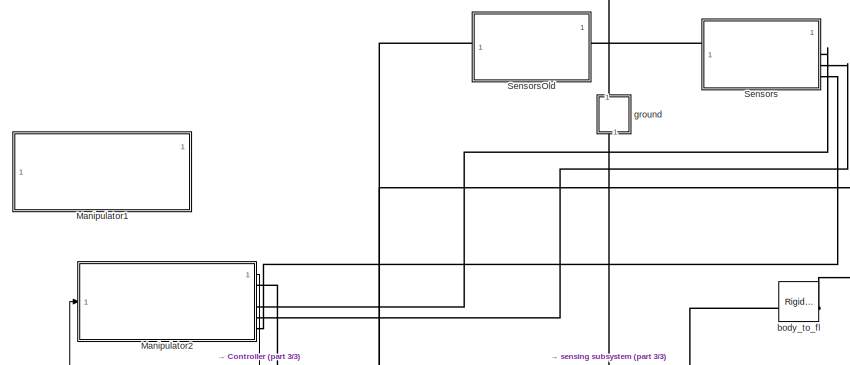
[diagram: root canvas - part 1/3, middle left region]
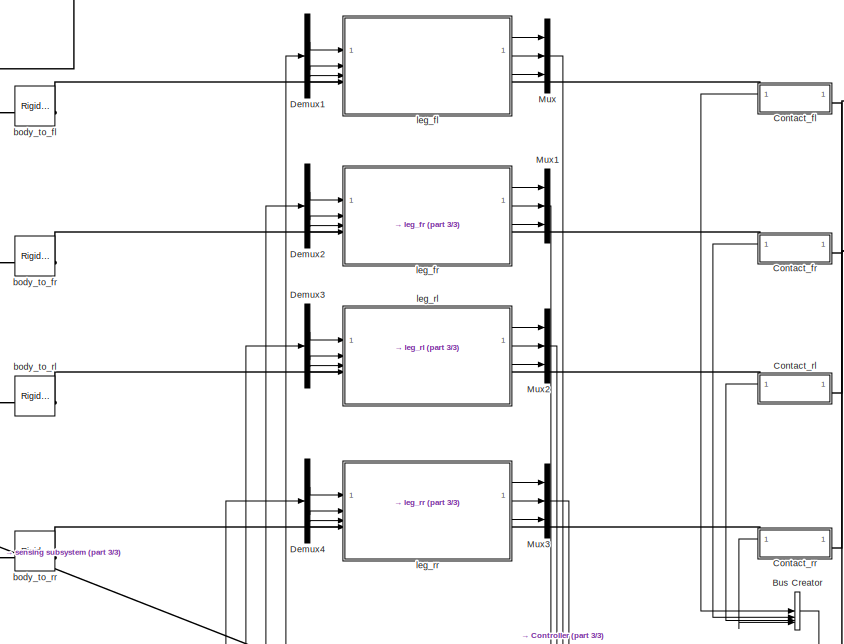
[diagram: root canvas - part 2/3, central region]
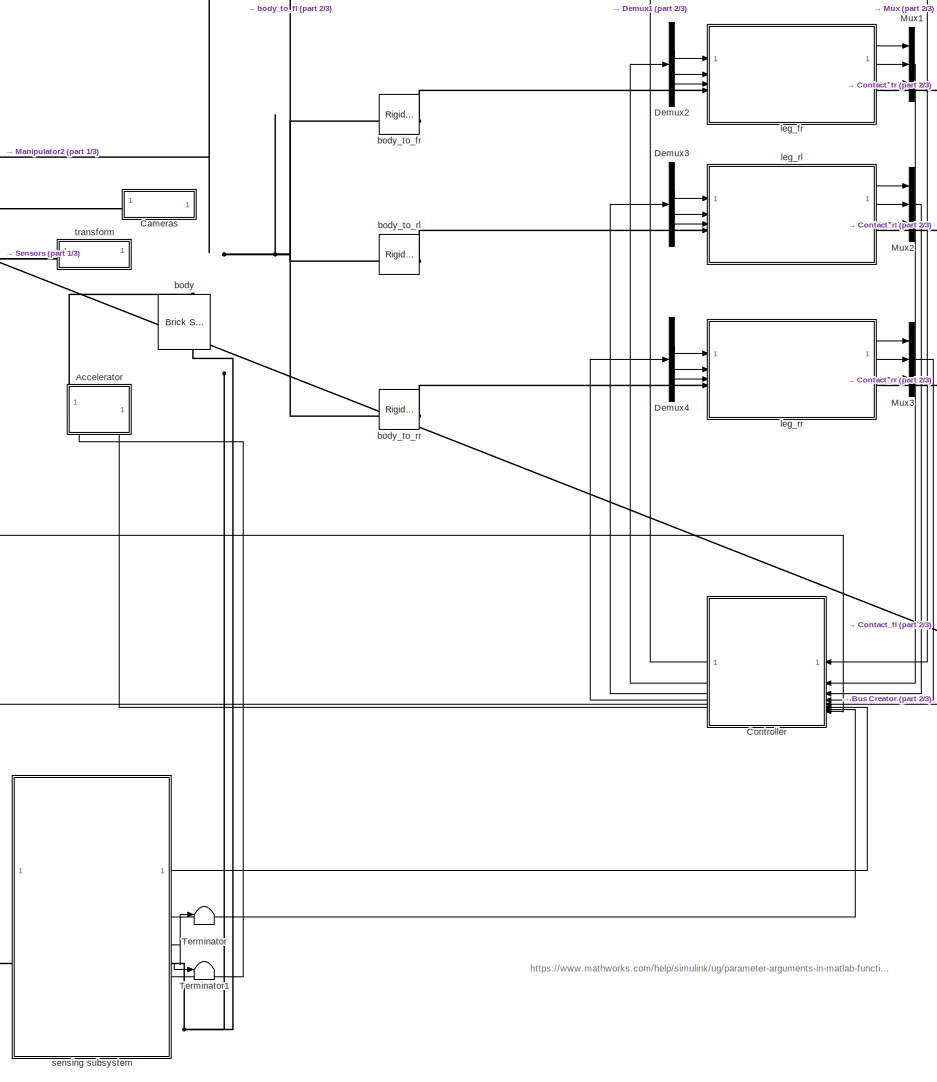
[diagram: root canvas - part 3/3, bottom center region]
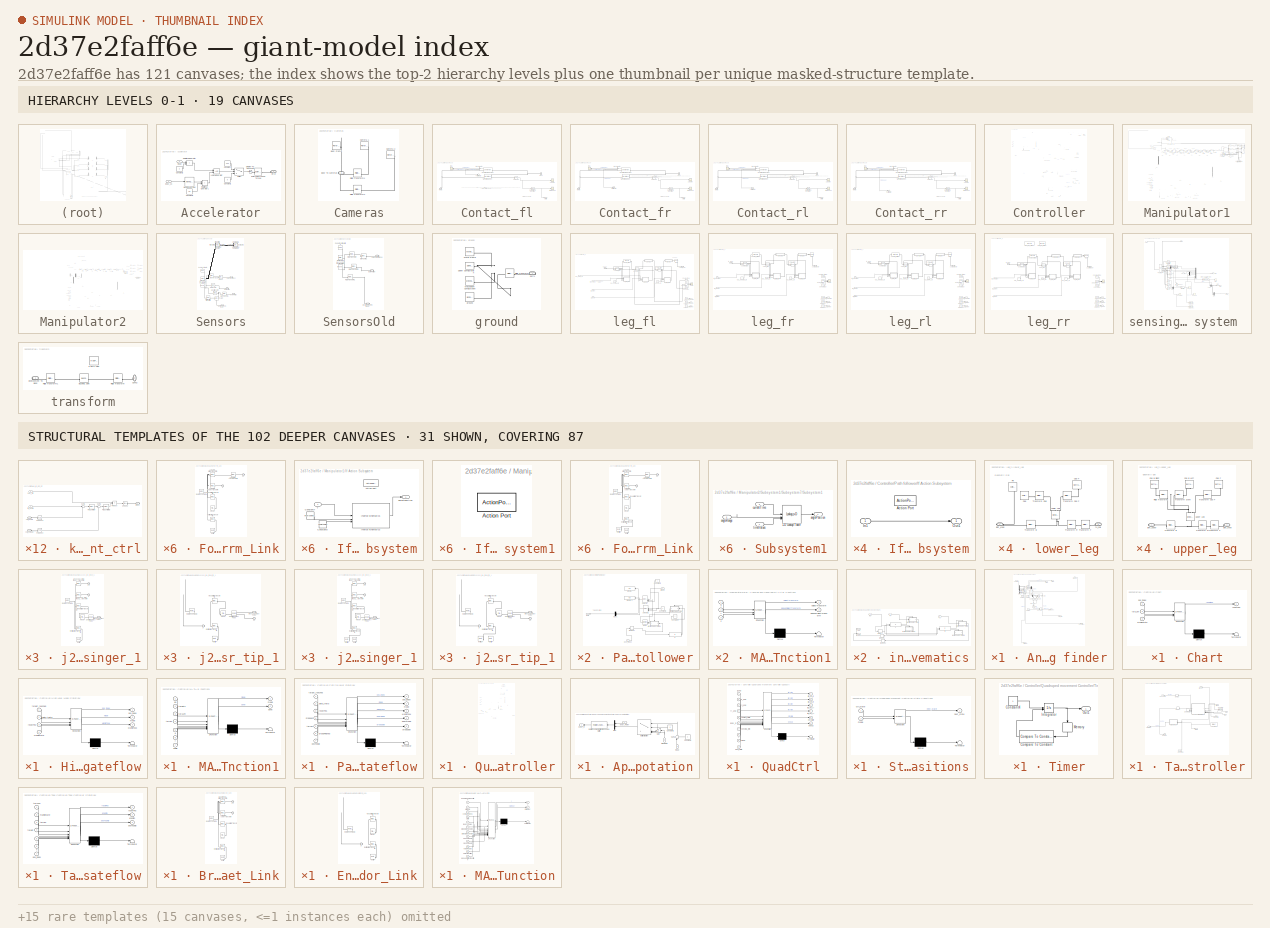
[diagram: thumbnail index - top-2 hierarchy levels (19 canvases) + 31 structural-template representatives of the remaining 102 canvases]
MODEL slx_2d37e2faff6e
KIND model
CONFIG AbsTol = auto
CONFIG EnableMultiTasking = off
CONFIG FixedStep = auto
CONFIG InitFcn = ManipulatorSetup\ninit_quad_new_leg_raibert_strategy_v2
CONFIG MaxStep = auto
CONFIG MinStep = auto
CONFIG RelTol = 1e-3
CONFIG SampleTimeConstraint = Unconstrained
CONFIG SolverName = ode15s
CONFIG StartTime = 0.0
CONFIG StopTime = 400
BLOCK [SubSystem] Accelerator
  NameLocation = right
  PortSchema = {"entries":[{"content":{"sides":[{"content":{"connectorIds":[]},"type":"ConnectorPlacement.EquallySpacedRectSide","uuid":"3b8f4fb7-757d-44b0-8c84-ca404449afa6"},{"content":{"connectorIds":[],"side":"RIGHT"},"type":"ConnectorPlacement.EquallySpacedRectSide","uuid":"4616ca68-8bb0-4699-a428-07415450d0e5"},{"content":{"connectorIds":["LConn1"],"side":"TOP"},"type":"ConnectorPlacement.EquallySpacedRect...<+392ch>
BLOCK [Constant] Accelerator/Constant
  Value = 100
BLOCK [Constant] Accelerator/Constant1
  Value = 0
BLOCK [Constant] Accelerator/Constant2
  Value = 2
BLOCK [Constant] Accelerator/Constant3
  Value = 0.5
BLOCK [Reference] Accelerator/External Force and Torque  REF=sm_lib/Forces and
Torques/External Force
and Torque
  SourceBlock = sm_lib/Forces and\nTorques/External Force\nand Torque
  SourceType = External Force\nand Torque
BLOCK [Logic] Accelerator/Logical Operator
  AllPortsSameDT = off
  OutDataTypeStr = boolean
BLOCK [Reference] Accelerator/Moving Average  REF=dspstat3/Moving
Average
  SourceBlock = dspstat3/Moving\nAverage
  SourceType = dsp.simulink.MovingAverage
BLOCK [RelationalOperator] Accelerator/Relational Operator
  InputSameDT = off
  Operator = <
  OutDataTypeStr = boolean
  RndMeth = Simplest
BLOCK [RelationalOperator] Accelerator/Relational Operator1
  InputSameDT = off
  Operator = <
  OutDataTypeStr = boolean
  RndMeth = Simplest
BLOCK [Reference] Accelerator/Simulink-PS Converter  REF=nesl_utility/Simulink-PS
Converter
  SourceBlock = nesl_utility/Simulink-PS\nConverter
  SourceType = Simulink-PS\nConverter
BLOCK [Switch] Accelerator/Switch
  Criteria = u2 > Threshold
  InputSameDT = off
  SaturateOnIntegerOverflow = off
BLOCK [Inport] Accelerator/body_vx
  NameLocation = top
BLOCK [PMIOPort] Accelerator/force
  Side = Left
BLOCK [Inport] Accelerator/mode
  NameLocation = top
  Port = 2
BLOCK [BusCreator] Bus Creator
  DisplayOption = bar
  InheritFromInputs = on
  Inputs = 4
BLOCK [SubSystem] Cameras
  NameLocation = top
BLOCK [Reference] Cameras/Body Frame  REF=sm_lib/Frames and
Transforms/Reference
Frame
  SourceBlock = sm_lib/Frames and\nTransforms/Reference\nFrame
  SourceType = Reference\nFrame
BLOCK [PMIOPort] Cameras/Body To cameras
  NameLocation = top
  Side = Right
BLOCK [Reference] Cameras/Camera 1  REF=sm_lib/Frames and
Transforms/Reference
Frame
  SourceBlock = sm_lib/Frames and\nTransforms/Reference\nFrame
  SourceType = Reference\nFrame
BLOCK [Reference] Cameras/Camera 2  REF=sm_lib/Frames and
Transforms/Reference
Frame
  SourceBlock = sm_lib/Frames and\nTransforms/Reference\nFrame
  SourceType = Reference\nFrame
BLOCK [Reference] Cameras/Rigid Transform1  REF=sm_lib/Frames and
Transforms/Rigid
Transform
  SourceBlock = sm_lib/Frames and\nTransforms/Rigid\nTransform
  SourceType = Rigid\nTransform
BLOCK [Reference] Cameras/Rigid Transform2  REF=sm_lib/Frames and
Transforms/Rigid
Transform
  SourceBlock = sm_lib/Frames and\nTransforms/Rigid\nTransform
  SourceType = Rigid\nTransform
BLOCK [SubSystem] Contact_fl
  NameLocation = top
BLOCK [BusSelector] Contact_fl/Bus Selector
  NameLocation = top
  OutputSignals = Normal Force,Frame Sep,Friction Force
BLOCK [Reference] Contact_fl/Compare To Constant  REF=simulink/Logic and Bit
Operations/Compare
To Constant
  SourceBlock = simulink/Logic and Bit\nOperations/Compare\nTo Constant
  SourceType = Compare To Constant
BLOCK [Reference] Contact_fl/PSConv4  REF=nesl_utility/PS-Simulink
Converter
  SourceBlock = nesl_utility/PS-Simulink\nConverter
  SourceType = PS-Simulink\nConverter
BLOCK [PMIOPort] Contact_fl/PlanB
  NameLocation = right
  Side = Left
BLOCK [PMIOPort] Contact_fl/SphF
  NameLocation = top
  Port = 2
  Side = Right
BLOCK [Reference] Contact_fl/Sphere to Plane Force1  REF=Contact_Forces_Lib/3D/Sphere to Plane Force
  NameLocation = top
  SourceBlock = Contact_Forces_Lib/3D/Sphere to Plane Force
  SourceProductName = Simscape Multibody Contact Forces Library
  SourceType = Sphere to Plane Force
BLOCK [Scope] Contact_fl/State Scope
  Floating = off
  NumInputPorts = 1
  ScopeSpecificationString = Simulink.scopes.TimeScopeBlockCfg('CurrentConfiguration', extmgr.ConfigurationSet(extmgr.Configuration('Core','General UI',true),extmgr.Configuration('Core','Source UI',true),extmgr.Configuration('Sources','WiredSimulink',true,'DataLoggingVariableName','ScopeData2'),extmgr.Configuration('Visuals','Time Domain',true,'SerializedDisplays',{struct('MinYLimReal','-0.125','MaxYLimReal','1.125','YLabelRe...<+1738ch>
BLOCK [Terminator] Contact_fl/Terminator
BLOCK [Reference] Contact_fl/Transform Sensor  REF=sm_lib/Frames and
Transforms/Transform
Sensor
  SourceBlock = sm_lib/Frames and\nTransforms/Transform\nSensor
  SourceType = Transform\nSensor
BLOCK [Scope] Contact_fl/ZScope
  Floating = off
  NumInputPorts = 1
  ScopeSpecificationString = Simulink.scopes.TimeScopeBlockCfg('CurrentConfiguration', extmgr.ConfigurationSet(extmgr.Configuration('Core','General UI',true),extmgr.Configuration('Core','Source UI',true),extmgr.Configuration('Sources','WiredSimulink',true,'DataLoggingVariableName','ScopeData1'),extmgr.Configuration('Visuals','Time Domain',true,'SerializedDisplays',{struct('MinYLimReal','0.21142','MaxYLimReal','0.26619','YLabe...<+1738ch>
BLOCK [Scope] Contact_fl/force
  Floating = off
  NameLocation = top
  NumInputPorts = 2
  ScopeSpecificationString = Simulink.scopes.TimeScopeBlockCfg('CurrentConfiguration', extmgr.ConfigurationSet(extmgr.Configuration('Core','General UI',true),extmgr.Configuration('Core','Source UI',true),extmgr.Configuration('Sources','WiredSimulink',true),extmgr.Configuration('Visuals','Time Domain',true,'SerializedDisplays',{struct('MinYLimReal','-483.20806','MaxYLimReal','1131.7449','YLabelReal','','MinYLimMag',' 0.00000',...<+2099ch>
BLOCK [Outport] Contact_fl/state
  VectorParamsAs1DForOutWhenUnconnected = off
BLOCK [SubSystem] Contact_fr
  NameLocation = top
BLOCK [BusSelector] Contact_fr/Bus Selector
  NameLocation = top
  OutputSignals = Normal Force,Frame Sep,Friction Force
BLOCK [Reference] Contact_fr/Compare To Constant  REF=simulink/Logic and Bit
Operations/Compare
To Constant
  SourceBlock = simulink/Logic and Bit\nOperations/Compare\nTo Constant
  SourceType = Compare To Constant
BLOCK [Reference] Contact_fr/PSConv4  REF=nesl_utility/PS-Simulink
Converter
  SourceBlock = nesl_utility/PS-Simulink\nConverter
  SourceType = PS-Simulink\nConverter
BLOCK [PMIOPort] Contact_fr/PlanB
  NameLocation = right
  Side = Left
BLOCK [PMIOPort] Contact_fr/SphF
  NameLocation = top
  Port = 2
  Side = Right
BLOCK [Reference] Contact_fr/Sphere to Plane Force1  REF=Contact_Forces_Lib/3D/Sphere to Plane Force
  NameLocation = top
  SourceBlock = Contact_Forces_Lib/3D/Sphere to Plane Force
  SourceProductName = Simscape Multibody Contact Forces Library
  SourceType = Sphere to Plane Force
BLOCK [Scope] Contact_fr/State Scope
  Floating = off
  NumInputPorts = 1
  ScopeSpecificationString = Simulink.scopes.TimeScopeBlockCfg('CurrentConfiguration', extmgr.ConfigurationSet(extmgr.Configuration('Core','General UI',true),extmgr.Configuration('Core','Source UI',true),extmgr.Configuration('Sources','WiredSimulink',true,'DataLoggingVariableName','ScopeData2'),extmgr.Configuration('Visuals','Time Domain',true,'SerializedDisplays',{struct('MinYLimReal','3.40363','MaxYLimReal','4.10196','YLabe...<+1745ch>
BLOCK [Terminator] Contact_fr/Terminator
BLOCK [Reference] Contact_fr/Transform Sensor  REF=sm_lib/Frames and
Transforms/Transform
Sensor
  SourceBlock = sm_lib/Frames and\nTransforms/Transform\nSensor
  SourceType = Transform\nSensor
BLOCK [Scope] Contact_fr/ZScope
  Floating = off
  NumInputPorts = 1
  ScopeSpecificationString = Simulink.scopes.TimeScopeBlockCfg('CurrentConfiguration', extmgr.ConfigurationSet(extmgr.Configuration('Core','General UI',true),extmgr.Configuration('Core','Source UI',true),extmgr.Configuration('Sources','WiredSimulink',true,'DataLoggingVariableName','ScopeData1'),extmgr.Configuration('Visuals','Time Domain',true,'SerializedDisplays',{struct('MinYLimReal','-0.07993','MaxYLimReal','0.50888','YLab...<+1755ch>
BLOCK [Scope] Contact_fr/force
  Floating = off
  NameLocation = top
  NumInputPorts = 2
  ScopeSpecificationString = Simulink.scopes.TimeScopeBlockCfg('CurrentConfiguration', extmgr.ConfigurationSet(extmgr.Configuration('Core','General UI',true),extmgr.Configuration('Core','Source UI',true),extmgr.Configuration('Sources','WiredSimulink',true),extmgr.Configuration('Visuals','Time Domain',true,'SerializedDisplays',{struct('MinYLimReal','-1765.00642','MaxYLimReal','8517.50545','YLabelReal','','MinYLimMag','  0.0000...<+1825ch>
BLOCK [Outport] Contact_fr/state
  VectorParamsAs1DForOutWhenUnconnected = off
BLOCK [SubSystem] Contact_rl
  NameLocation = top
BLOCK [BusSelector] Contact_rl/Bus Selector
  NameLocation = top
  OutputSignals = Normal Force,Frame Sep,Friction Force
BLOCK [Reference] Contact_rl/Compare To Constant  REF=simulink/Logic and Bit
Operations/Compare
To Constant
  SourceBlock = simulink/Logic and Bit\nOperations/Compare\nTo Constant
  SourceType = Compare To Constant
BLOCK [Reference] Contact_rl/PSConv4  REF=nesl_utility/PS-Simulink
Converter
  SourceBlock = nesl_utility/PS-Simulink\nConverter
  SourceType = PS-Simulink\nConverter
BLOCK [PMIOPort] Contact_rl/PlanB
  NameLocation = right
  Side = Left
BLOCK [PMIOPort] Contact_rl/SphF
  NameLocation = top
  Port = 2
  Side = Right
BLOCK [Reference] Contact_rl/Sphere to Plane Force1  REF=Contact_Forces_Lib/3D/Sphere to Plane Force
  NameLocation = top
  SourceBlock = Contact_Forces_Lib/3D/Sphere to Plane Force
  SourceProductName = Simscape Multibody Contact Forces Library
  SourceType = Sphere to Plane Force
BLOCK [Scope] Contact_rl/State Scope
  Floating = off
  NumInputPorts = 1
  ScopeSpecificationString = Simulink.scopes.TimeScopeBlockCfg('CurrentConfiguration', extmgr.ConfigurationSet(extmgr.Configuration('Core','General UI',true),extmgr.Configuration('Core','Source UI',true),extmgr.Configuration('Sources','WiredSimulink',true,'DataLoggingVariableName','ScopeData2'),extmgr.Configuration('Visuals','Time Domain',true,'SerializedDisplays',{struct('MinYLimReal','-0.125','MaxYLimReal','1.125','YLabelRe...<+1739ch>
BLOCK [Terminator] Contact_rl/Terminator
BLOCK [Reference] Contact_rl/Transform Sensor  REF=sm_lib/Frames and
Transforms/Transform
Sensor
  SourceBlock = sm_lib/Frames and\nTransforms/Transform\nSensor
  SourceType = Transform\nSensor
BLOCK [Scope] Contact_rl/ZScope
  Floating = off
  NumInputPorts = 1
  ScopeSpecificationString = Simulink.scopes.TimeScopeBlockCfg('CurrentConfiguration', extmgr.ConfigurationSet(extmgr.Configuration('Core','General UI',true),extmgr.Configuration('Core','Source UI',true),extmgr.Configuration('Sources','WiredSimulink',true,'DataLoggingVariableName','ScopeData1'),extmgr.Configuration('Visuals','Time Domain',true,'SerializedDisplays',{struct('MinYLimReal','0.2216','MaxYLimReal','0.24665','YLabel...<+1762ch>
BLOCK [Scope] Contact_rl/force
  Floating = off
  NameLocation = top
  NumInputPorts = 2
  ScopeSpecificationString = Simulink.scopes.TimeScopeBlockCfg('CurrentConfiguration', extmgr.ConfigurationSet(extmgr.Configuration('Core','General UI',true),extmgr.Configuration('Core','Source UI',true),extmgr.Configuration('Sources','WiredSimulink',true),extmgr.Configuration('Visuals','Time Domain',true,'SerializedDisplays',{struct('MinYLimReal','-385.95585','MaxYLimReal','1796.51268','YLabelReal','','MinYLimMag',' 0.00000'...<+1838ch>
BLOCK [Outport] Contact_rl/state
  VectorParamsAs1DForOutWhenUnconnected = off
BLOCK [SubSystem] Contact_rr
  NameLocation = top
BLOCK [BusSelector] Contact_rr/Bus Selector
  NameLocation = top
  OutputSignals = Normal Force,Frame Sep,Friction Force
BLOCK [Reference] Contact_rr/Compare To Constant  REF=simulink/Logic and Bit
Operations/Compare
To Constant
  SourceBlock = simulink/Logic and Bit\nOperations/Compare\nTo Constant
  SourceType = Compare To Constant
BLOCK [Reference] Contact_rr/PSConv4  REF=nesl_utility/PS-Simulink
Converter
  SourceBlock = nesl_utility/PS-Simulink\nConverter
  SourceType = PS-Simulink\nConverter
BLOCK [PMIOPort] Contact_rr/PlanB
  NameLocation = right
  Side = Left
BLOCK [PMIOPort] Contact_rr/SphF
  NameLocation = top
  Port = 2
  Side = Right
BLOCK [Reference] Contact_rr/Sphere to Plane Force1  REF=Contact_Forces_Lib/3D/Sphere to Plane Force
  NameLocation = top
  SourceBlock = Contact_Forces_Lib/3D/Sphere to Plane Force
  SourceProductName = Simscape Multibody Contact Forces Library
  SourceType = Sphere to Plane Force
BLOCK [Scope] Contact_rr/State Scope
  Floating = off
  NumInputPorts = 1
  ScopeSpecificationString = Simulink.scopes.TimeScopeBlockCfg('CurrentConfiguration', extmgr.ConfigurationSet(extmgr.Configuration('Core','General UI',true),extmgr.Configuration('Core','Source UI',true),extmgr.Configuration('Sources','WiredSimulink',true,'DataLoggingVariableName','ScopeData2'),extmgr.Configuration('Visuals','Time Domain',true,'SerializedDisplays',{struct('MinYLimReal','-0.125','MaxYLimReal','1.125','YLabelRe...<+1739ch>
BLOCK [Terminator] Contact_rr/Terminator
BLOCK [Reference] Contact_rr/Transform Sensor  REF=sm_lib/Frames and
Transforms/Transform
Sensor
  SourceBlock = sm_lib/Frames and\nTransforms/Transform\nSensor
  SourceType = Transform\nSensor
BLOCK [Scope] Contact_rr/ZScope
  Floating = off
  NumInputPorts = 1
  ScopeSpecificationString = Simulink.scopes.TimeScopeBlockCfg('CurrentConfiguration', extmgr.ConfigurationSet(extmgr.Configuration('Core','General UI',true),extmgr.Configuration('Core','Source UI',true),extmgr.Configuration('Sources','WiredSimulink',true,'DataLoggingVariableName','ScopeData1'),extmgr.Configuration('Visuals','Time Domain',true,'SerializedDisplays',{struct('MinYLimReal','-0.07993','MaxYLimReal','0.50888','YLab...<+1439ch>
BLOCK [Scope] Contact_rr/force
  Floating = off
  NameLocation = top
  NumInputPorts = 2
  ScopeSpecificationString = Simulink.scopes.TimeScopeBlockCfg('CurrentConfiguration', extmgr.ConfigurationSet(extmgr.Configuration('Core','General UI',true),extmgr.Configuration('Core','Source UI',true),extmgr.Configuration('Sources','WiredSimulink',true),extmgr.Configuration('Visuals','Time Domain',true,'SerializedDisplays',{struct('MinYLimReal','-1765.00642','MaxYLimReal','8517.50545','YLabelReal','','MinYLimMag','  0.0000...<+1825ch>
BLOCK [Outport] Contact_rr/state
  VectorParamsAs1DForOutWhenUnconnected = off
BLOCK [SubSystem] Controller
  NameLocation = top
BLOCK [Logic] Controller/AND
  AllPortsSameDT = off
  IconShape = distinctive
  OutDataTypeStr = boolean
BLOCK [SubSystem] Controller/Angle and distance finder
BLOCK [Trigonometry] Controller/Angle and distance finder/Atan2
  Operator = atan2
BLOCK [Constant] Controller/Angle and distance finder/Constant
  Value = 0.5
BLOCK [Constant] Controller/Angle and distance finder/Constant2
  Value = startx
BLOCK [Constant] Controller/Angle and distance finder/Constant3
  Value = starty
BLOCK [Demux] Controller/Angle and distance finder/Demux
  Outputs = 8
BLOCK [Demux] Controller/Angle and distance finder/Demux1
  Outputs = 2
BLOCK [RelationalOperator] Controller/Angle and distance finder/Less Than
  InputSameDT = off
  Operator = <
  OutDataTypeStr = boolean
  RndMeth = Simplest
BLOCK [Mux] Controller/Angle and distance finder/Mux
  DisplayOption = bar
  Inputs = 2
BLOCK [Inport] Controller/Angle and distance finder/Sensor Info
  Port = 2
BLOCK [Outport] Controller/Angle and distance finder/Speed of travel
  Port = 5
BLOCK [Sqrt] Controller/Angle and distance finder/Sqrt
  NameLocation = left
BLOCK [Math] Controller/Angle and distance finder/Square
  NameLocation = left
  Operator = square
BLOCK [Math] Controller/Angle and distance finder/Square1
  NameLocation = left
  Operator = square
BLOCK [Sum] Controller/Angle and distance finder/Sum1
  Inputs = |-+
  NameLocation = left
BLOCK [Sum] Controller/Angle and distance finder/Sum2
  Inputs = +-|
  NameLocation = left
BLOCK [Sum] Controller/Angle and distance finder/Sum3
  Inputs = |++
  NameLocation = left
BLOCK [Sum] Controller/Angle and distance finder/Sum4
  Inputs = |++
BLOCK [Sum] Controller/Angle and distance finder/Sum5
  Inputs = |++
BLOCK [Sum] Controller/Angle and distance finder/Sum7
  Inputs = |+++
BLOCK [Inport] Controller/Angle and distance finder/Target Pos
BLOCK [Terminator] Controller/Angle and distance finder/Terminator1
BLOCK [Terminator] Controller/Angle and distance finder/Terminator2
BLOCK [Outport] Controller/Angle and distance finder/current x
BLOCK [Outport] Controller/Angle and distance finder/current y
  Port = 2
BLOCK [Outport] Controller/Angle and distance finder/currentAng
  Port = 6
BLOCK [Outport] Controller/Angle and distance finder/delta_theta
  Port = 4
BLOCK [Outport] Controller/Angle and distance finder/target reached
  Port = 3
BLOCK [SubSystem] Controller/Chart
  Commented = on
  ErrorFcn = Stateflow.Translate.translate
  PermitHierarchicalResolution = ExplicitOnly
  SFBlockType = Chart
  TreatAsAtomicUnit = on
BLOCK [Demux] Controller/Chart/ Demux 
  Outputs = 1
BLOCK [S-Function] Controller/Chart/ SFunction 
  EnableBusSupport = on
  FunctionName = sf_sfun
  PortCounts = [3 2]
  SFcnIsStateOwnerBlock = off
  SFunctionDeploymentMode = off
  Tag = Stateflow S-Function 4
BLOCK [Terminator] Controller/Chart/ Terminator 
BLOCK [Inport] Controller/Chart/manipState
  Port = 3
BLOCK [Inport] Controller/Chart/pos_index
BLOCK [Outport] Controller/Chart/resetPos
BLOCK [Inport] Controller/Chart/tar1Len
  Port = 2
BLOCK [Constant] Controller/Constant1
  Commented = on
  Value = target
BLOCK [Constant] Controller/Constant5
  Value = 0.001
BLOCK [Constant] Controller/Constant6
  Value = tarLen
BLOCK [Delay] Controller/Delay
  DelayLength = 1
  InputPortMap = u0
BLOCK [SubSystem] Controller/High Level Mode Stateflow
  Commented = on
  ErrorFcn = Stateflow.Translate.translate
  PermitHierarchicalResolution = ExplicitOnly
  PortSchema = {"entries":[{"content":{"sides":[{"content":{"connectorIds":["In2","In3","In4","In1"]},"type":"ConnectorPlacement.EquallySpacedRectSide","uuid":"54635eaa-af22-4c07-946c-8b3764ca4079"},{"content":{"connectorIds":["Out1","Out2","Out3"],"side":"RIGHT"},"type":"ConnectorPlacement.EquallySpacedRectSide","uuid":"b8ca9e50-c21e-481d-aebe-d3447dd5b6ec"},{"content":{"connectorIds":[],"side":"TOP"},"type":"C...<+272ch>
  SFBlockType = Chart
  TreatAsAtomicUnit = on
BLOCK [Demux] Controller/High Level Mode Stateflow/ Demux 
  Outputs = 1
BLOCK [S-Function] Controller/High Level Mode Stateflow/ SFunction 
  EnableBusSupport = on
  FunctionName = sf_sfun
  PortCounts = [4 4]
  SFcnIsStateOwnerBlock = off
  SFunctionDeploymentMode = off
  Tag = Stateflow S-Function 3
BLOCK [Terminator] Controller/High Level Mode Stateflow/ Terminator 
BLOCK [Outport] Controller/High Level Mode Stateflow/ManipTask
  Port = 3
BLOCK [Inport] Controller/High Level Mode Stateflow/delta_theta
  Port = 2
BLOCK [Inport] Controller/High Level Mode Stateflow/manipState
  Port = 4
BLOCK [Outport] Controller/High Level Mode Stateflow/mode
  Port = 2
BLOCK [Outport] Controller/High Level Mode Stateflow/pos_index
BLOCK [Inport] Controller/High Level Mode Stateflow/resetPos
  Port = 3
BLOCK [Inport] Controller/High Level Mode Stateflow/target_reached
BLOCK [Inport] Controller/In1
  NameLocation = top
BLOCK [Inport] Controller/In2
  NameLocation = top
  Port = 2
BLOCK [Inport] Controller/In3
  NameLocation = top
  Port = 3
BLOCK [Inport] Controller/In4
  NameLocation = top
  Port = 4
BLOCK [Inport] Controller/In5
  NameLocation = top
  Port = 5
BLOCK [Inport] Controller/In6
  NameLocation = top
  Port = 6
BLOCK [Inport] Controller/In7
  NameLocation = top
  Port = 7
BLOCK [RelationalOperator] Controller/Less Than1
  InputSameDT = off
  Operator = <
  OutDataTypeStr = boolean
  RndMeth = Simplest
BLOCK [RelationalOperator] Controller/Less Than2
  InputSameDT = off
  Operator = <
  OutDataTypeStr = boolean
  RndMeth = Simplest
BLOCK [SubSystem] Controller/MATLAB Function1
  ErrorFcn = Stateflow.Translate.translate
  LibrarySourceBlock = simulink/User-Defined\nFunctions/MATLAB Function
  PermitHierarchicalResolution = ExplicitOnly
  SFBlockType = MATLAB Function
  TreatAsAtomicUnit = on
BLOCK [Demux] Controller/MATLAB Function1/ Demux 
  Outputs = 1
BLOCK [S-Function] Controller/MATLAB Function1/ SFunction 
  EnableBusSupport = on
  FunctionName = sf_sfun
  PortCounts = [7 3]
  SFcnIsStateOwnerBlock = off
  SFunctionDeploymentMode = off
  Tag = Stateflow S-Function 11
BLOCK [Terminator] Controller/MATLAB Function1/ Terminator 
BLOCK [Inport] Controller/MATLAB Function1/angle
  Port = 7
BLOCK [Outport] Controller/MATLAB Function1/done
  Port = 2
BLOCK [Inport] Controller/MATLAB Function1/go
BLOCK [Outport] Controller/MATLAB Function1/mode
BLOCK [Inport] Controller/MATLAB Function1/tar1Len
  Port = 3
BLOCK [Inport] Controller/MATLAB Function1/tarLen
  Port = 4
BLOCK [Inport] Controller/MATLAB Function1/targets
  Port = 2
BLOCK [Inport] Controller/MATLAB Function1/x
  Port = 5
BLOCK [Inport] Controller/MATLAB Function1/y
  Port = 6
BLOCK [Inport] Controller/ManipState
  NameLocation = top
  Port = 8
BLOCK [Memory] Controller/Memory1
BLOCK [Memory] Controller/Memory2
BLOCK [Memory] Controller/Memory3
BLOCK [Memory] Controller/Memory4
BLOCK [Memory] Controller/Memory5
BLOCK [Memory] Controller/Memory6
BLOCK [Outport] Controller/Mode
  NameLocation = left
  Port = 6
BLOCK [Outport] Controller/Out1
  NameLocation = top
  VectorParamsAs1DForOutWhenUnconnected = off
BLOCK [Outport] Controller/Out2
  NameLocation = top
  Port = 2
  VectorParamsAs1DForOutWhenUnconnected = off
BLOCK [Outport] Controller/Out3
  NameLocation = top
  Port = 3
  VectorParamsAs1DForOutWhenUnconnected = off
BLOCK [Outport] Controller/Out4
  NameLocation = top
  Port = 4
  VectorParamsAs1DForOutWhenUnconnected = off
BLOCK [SubSystem] Controller/Path follower
  Commented = on
  TreatAsAtomicUnit = on
BLOCK [SubSystem] Controller/Path follower stateflow
  ErrorFcn = Stateflow.Translate.translate
  PermitHierarchicalResolution = ExplicitOnly
  PortSchema = {"entries":[{"content":{"sides":[{"content":{"connectorIds":["In2","In3","In1"]},"type":"ConnectorPlacement.EquallySpacedRectSide","uuid":"54635eaa-af22-4c07-946c-8b3764ca4079"},{"content":{"connectorIds":["Out1","Out2","Out3","In4","In5","In6","In7","Out4","Out5"],"side":"RIGHT"},"type":"ConnectorPlacement.EquallySpacedRectSide","uuid":"b8ca9e50-c21e-481d-aebe-d3447dd5b6ec"},{"content":{"connecto...<+304ch>
  SFBlockType = Chart
  TreatAsAtomicUnit = on
BLOCK [Demux] Controller/Path follower stateflow/ Demux 
  Outputs = 1
BLOCK [S-Function] Controller/Path follower stateflow/ SFunction 
  EnableBusSupport = on
  FunctionName = sf_sfun
  PortCounts = [7 6]
  SFcnIsStateOwnerBlock = off
  SFunctionDeploymentMode = off
  Tag = Stateflow S-Function 13
BLOCK [Terminator] Controller/Path follower stateflow/ Terminator 
BLOCK [Outport] Controller/Path follower stateflow/ManipTask
  Port = 3
BLOCK [Outport] Controller/Path follower stateflow/bodyMode
  Port = 4
BLOCK [Inport] Controller/Path follower stateflow/broadFinished
  Port = 6
BLOCK [Outport] Controller/Path follower stateflow/broadside
  Port = 5
BLOCK [Inport] Controller/Path follower stateflow/delta_theta
  Port = 2
BLOCK [Outport] Controller/Path follower stateflow/mode
  Port = 2
BLOCK [Inport] Controller/Path follower stateflow/posToSkip
  Port = 7
BLOCK [Outport] Controller/Path follower stateflow/pos_index
BLOCK [Inport] Controller/Path follower stateflow/resetPos
  Port = 3
BLOCK [Inport] Controller/Path follower stateflow/stopped
  Port = 4
BLOCK [Inport] Controller/Path follower stateflow/tarLen
  Port = 5
BLOCK [Inport] Controller/Path follower stateflow/target_reached
BLOCK [Constant] Controller/Path follower/Constant2
BLOCK [Constant] Controller/Path follower/Constant3
  Value = 2
BLOCK [Constant] Controller/Path follower/Constant4
BLOCK [Display] Controller/Path follower/Display
  Decimation = 1
BLOCK [Display] Controller/Path follower/Display1
  Decimation = 1
BLOCK [If] Controller/Path follower/If
  IfExpression = u1 <= 0
BLOCK [SubSystem] Controller/Path follower/If Action Subsystem
  TreatAsAtomicUnit = on
BLOCK [ActionPort] Controller/Path follower/If Action Subsystem/Action Port
  ActionPortLabel = if(u1 <= 0)
BLOCK [Inport] Controller/Path follower/If Action Subsystem/In1
BLOCK [Outport] Controller/Path follower/If Action Subsystem/Out1
BLOCK [SubSystem] Controller/Path follower/If Action Subsystem1
  TreatAsAtomicUnit = on
BLOCK [ActionPort] Controller/Path follower/If Action Subsystem1/Action Port
  ActionPortLabel = else
BLOCK [Inport] Controller/Path follower/If Action Subsystem1/In1
BLOCK [Outport] Controller/Path follower/If Action Subsystem1/Out1
BLOCK [Memory] Controller/Path follower/Memory1
BLOCK [Merge] Controller/Path follower/Merge
BLOCK [Mux] Controller/Path follower/Mux1
  DisplayOption = bar
  Inputs = 2
BLOCK [Outport] Controller/Path follower/Out1
BLOCK [Selector] Controller/Path follower/Selector
  IndexOptions = Index vector (port),Index vector (port)
  Indices = [1 3],1
  InputPortWidth = 1
  NumberOfDimensions = 2
  OutputSizes = 1,1
BLOCK [Selector] Controller/Path follower/Selector1
  IndexOptions = Index vector (port),Index vector (port)
  Indices = [1 3],1
  InputPortWidth = 1
  NumberOfDimensions = 2
  OutputSizes = 1,1
BLOCK [Inport] Controller/Path follower/pos_index
BLOCK [Inport] Controller/Path follower/targets
  Port = 2
BLOCK [SubSystem] Controller/Quadruped movement Controller
BLOCK [SubSystem] Controller/Quadruped movement Controller/Apply Target Rotation
  NameLocation = top
BLOCK [Constant] Controller/Quadruped movement Controller/Apply Target Rotation/Constant2
  NameLocation = top
  Value = 0
BLOCK [Constant] Controller/Quadruped movement Controller/Apply Target Rotation/Constant4
  NameLocation = top
BLOCK [Gain] Controller/Quadruped movement Controller/Apply Target Rotation/Gain
  Gain = -1
  NameLocation = top
BLOCK [MultiPortSwitch] Controller/Quadruped movement Controller/Apply Target Rotation/Multiport Switch
  InputSameDT = off
  Inputs = 4
  NameLocation = top
  SaturateOnIntegerOverflow = off
BLOCK [Mux] Controller/Quadruped movement Controller/Apply Target Rotation/Mux
  DisplayOption = bar
  Inputs = 2
  NameLocation = top
BLOCK [Reference] Controller/Quadruped movement Controller/Apply Target Rotation/Rotation Angles to Direction Cosine Matrix  REF=sharedtransform/Rotation Angles to
Direction Cosine Matrix
  AttributesFormatString = Rotation Order: %<rotationOrder>
  LibrarySourceBlock = aerolibtransform2/Rotation Angles to\nDirection Cosine Matrix
  NameLocation = top
  SourceBlock = sharedtransform/Rotation Angles to\nDirection Cosine Matrix
  SourceType = Ang2DCM
BLOCK [Sum] Controller/Quadruped movement Controller/Apply Target Rotation/Sum1
  Inputs = |++
  NameLocation = right
BLOCK [Outport] Controller/Quadruped movement Controller/Apply Target Rotation/body_R
BLOCK [Inport] Controller/Quadruped movement Controller/Apply Target Rotation/body_RotXY
BLOCK [Inport] Controller/Quadruped movement Controller/Apply Target Rotation/mode
  NameLocation = right
  Port = 3
BLOCK [Inport] Controller/Quadruped movement Controller/Apply Target Rotation/targetRotZ
  NameLocation = right
  Port = 2
BLOCK [Constant] Controller/Quadruped movement Controller/Constant7
  NameLocation = top
  Value = deg2rad(10)
BLOCK [Inport] Controller/Quadruped movement Controller/In1
  NameLocation = top
  Port = 2
BLOCK [Inport] Controller/Quadruped movement Controller/In2
  NameLocation = top
  Port = 3
BLOCK [Inport] Controller/Quadruped movement Controller/In3
  NameLocation = top
  Port = 4
BLOCK [Inport] Controller/Quadruped movement Controller/In4
  NameLocation = top
  Port = 5
BLOCK [Inport] Controller/Quadruped movement Controller/In5
  NameLocation = top
  Port = 6
BLOCK [Inport] Controller/Quadruped movement Controller/In6
  NameLocation = top
BLOCK [Inport] Controller/Quadruped movement Controller/In7
  NameLocation = top
  Port = 7
BLOCK [Memory] Controller/Quadruped movement Controller/Memory
  NameLocation = left
BLOCK [Outport] Controller/Quadruped movement Controller/Out1
  NameLocation = top
  VectorParamsAs1DForOutWhenUnconnected = off
BLOCK [Outport] Controller/Quadruped movement Controller/Out2
  NameLocation = top
  Port = 2
  VectorParamsAs1DForOutWhenUnconnected = off
BLOCK [Outport] Controller/Quadruped movement Controller/Out3
  NameLocation = top
  Port = 3
  VectorParamsAs1DForOutWhenUnconnected = off
BLOCK [Outport] Controller/Quadruped movement Controller/Out4
  NameLocation = top
  Port = 4
  VectorParamsAs1DForOutWhenUnconnected = off
BLOCK [SubSystem] Controller/Quadruped movement Controller/QuadCtrl
  ErrorFcn = Stateflow.Translate.translate
  NameLocation = top
  PermitHierarchicalResolution = ExplicitOnly
  SFBlockType = MATLAB Function
  SystemSampleTime = 0.0025
  TreatAsAtomicUnit = on
BLOCK [Demux] Controller/Quadruped movement Controller/QuadCtrl/ Demux 
  Outputs = 1
BLOCK [S-Function] Controller/Quadruped movement Controller/QuadCtrl/ SFunction 
  EnableBusSupport = on
  FunctionName = sf_sfun
  Parameters = body,planner
  PortCounts = [10 7]
  SFcnIsStateOwnerBlock = off
  SFunctionDeploymentMode = off
  Tag = Stateflow S-Function 2
BLOCK [Terminator] Controller/Quadruped movement Controller/QuadCtrl/ Terminator 
BLOCK [Inport] Controller/Quadruped movement Controller/QuadCtrl/body_R
  Port = 6
BLOCK [Inport] Controller/Quadruped movement Controller/QuadCtrl/contact_state
  Port = 5
BLOCK [Outport] Controller/Quadruped movement Controller/QuadCtrl/ctrl_state
  Port = 5
  VectorParamsAs1DForOutWhenUnconnected = off
BLOCK [Outport] Controller/Quadruped movement Controller/QuadCtrl/debug
  Port = 6
  VectorParamsAs1DForOutWhenUnconnected = off
BLOCK [Inport] Controller/Quadruped movement Controller/QuadCtrl/fl_ang
BLOCK [Inport] Controller/Quadruped movement Controller/QuadCtrl/fr_ang
  Port = 2
BLOCK [Inport] Controller/Quadruped movement Controller/QuadCtrl/mode
  Port = 9
BLOCK [Inport] Controller/Quadruped movement Controller/QuadCtrl/next_state
  Port = 10
BLOCK [Inport] Controller/Quadruped movement Controller/QuadCtrl/rl_ang
  Port = 3
BLOCK [Inport] Controller/Quadruped movement Controller/QuadCtrl/rr_ang
  Port = 4
BLOCK [Inport] Controller/Quadruped movement Controller/QuadCtrl/sensing_info
  Port = 7
BLOCK [Inport] Controller/Quadruped movement Controller/QuadCtrl/t
  Port = 8
BLOCK [Outport] Controller/Quadruped movement Controller/QuadCtrl/tgt_ctrl_fl
  VectorParamsAs1DForOutWhenUnconnected = off
BLOCK [Outport] Controller/Quadruped movement Controller/QuadCtrl/tgt_ctrl_fr
  Port = 2
  VectorParamsAs1DForOutWhenUnconnected = off
BLOCK [Outport] Controller/Quadruped movement Controller/QuadCtrl/tgt_ctrl_rl
  Port = 3
  VectorParamsAs1DForOutWhenUnconnected = off
BLOCK [Outport] Controller/Quadruped movement Controller/QuadCtrl/tgt_ctrl_rr
  Port = 4
  VectorParamsAs1DForOutWhenUnconnected = off
BLOCK [Scope] Controller/Quadruped movement Controller/Scope
  Floating = off
  NumInputPorts = 2
  ScopeSpecificationString = Simulink.scopes.TimeScopeBlockCfg('CurrentConfiguration', extmgr.ConfigurationSet(extmgr.Configuration('Core','General UI',true),extmgr.Configuration('Core','Source UI',true),extmgr.Configuration('Sources','WiredSimulink',true,'DataLoggingVariableName','ScopeData1'),extmgr.Configuration('Visuals','Time Domain',true,'SerializedDisplays',{struct('MinYLimReal','-7.625','MaxYLimReal','8.625','YLabelRe...<+1401ch>
BLOCK [Scope] Controller/Quadruped movement Controller/Scope1
  Floating = off
  NameLocation = top
  NumInputPorts = 1
  ScopeSpecificationString = Simulink.scopes.TimeScopeBlockCfg('CurrentConfiguration', extmgr.ConfigurationSet(extmgr.Configuration('Core','General UI',true),extmgr.Configuration('Core','Source UI',true),extmgr.Configuration('Sources','WiredSimulink',true,'DataLoggingVariableName','ScopeData5'),extmgr.Configuration('Visuals','Time Domain',true,'SerializedDisplays',{struct('MinYLimReal','-37.5','MaxYLimReal','337.5','YLabelRea...<+1465ch>
BLOCK [Outport] Controller/Quadruped movement Controller/Sensor Info
  Port = 5
BLOCK [SubSystem] Controller/Quadruped movement Controller/State Transitions
  ErrorFcn = Stateflow.Translate.translate
  PermitHierarchicalResolution = ExplicitOnly
  SFBlockType = Chart
  TreatAsAtomicUnit = on
BLOCK [Demux] Controller/Quadruped movement Controller/State Transitions/ Demux 
  Outputs = 1
BLOCK [S-Function] Controller/Quadruped movement Controller/State Transitions/ SFunction 
  EnableBusSupport = on
  FunctionName = sf_sfun
  PortCounts = [2 2]
  SFcnIsStateOwnerBlock = off
  SFunctionDeploymentMode = off
  Tag = Stateflow S-Function 1
BLOCK [Terminator] Controller/Quadruped movement Controller/State Transitions/ Terminator 
BLOCK [Inport] Controller/Quadruped movement Controller/State Transitions/ctrl_state
BLOCK [Inport] Controller/Quadruped movement Controller/State Transitions/mode
  Port = 2
BLOCK [Outport] Controller/Quadruped movement Controller/State Transitions/next_state
BLOCK [Sum] Controller/Quadruped movement Controller/Sum
  Inputs = +-
BLOCK [SubSystem] Controller/Quadruped movement Controller/Timer
  NameLocation = top
BLOCK [Reference] Controller/Quadruped movement Controller/Timer/Compare To Constant  REF=simulink/Logic and Bit
Operations/Compare
To Constant
  NameLocation = top
  SourceBlock = simulink/Logic and Bit\nOperations/Compare\nTo Constant
  SourceType = Compare To Constant
BLOCK [Constant] Controller/Quadruped movement Controller/Timer/Constant4
BLOCK [Integrator] Controller/Quadruped movement Controller/Timer/Integrator
  ExternalReset = level
BLOCK [Memory] Controller/Quadruped movement Controller/Timer/Memory
  NameLocation = left
BLOCK [Outport] Controller/Quadruped movement Controller/Timer/Out1
  VectorParamsAs1DForOutWhenUnconnected = off
BLOCK [Scope] Controller/Quadruped movement Controller/TimerScope
  Floating = off
  NumInputPorts = 1
  ScopeSpecificationString = Simulink.scopes.TimeScopeBlockCfg('CurrentConfiguration', extmgr.ConfigurationSet(extmgr.Configuration('Core','General UI',true),extmgr.Configuration('Core','Source UI',true),extmgr.Configuration('Sources','WiredSimulink',true,'DataLoggingVariableName','ScopeData1'),extmgr.Configuration('Visuals','Time Domain',true,'SerializedDisplays',{struct('MinYLimReal','-0.25011','MaxYLimReal','2.25096','YLab...<+1443ch>
BLOCK [Inport] Controller/Quadruped movement Controller/mode
  Port = 8
BLOCK [Scope] Controller/Scope3
  Floating = off
  NumInputPorts = 3
  ScopeSpecificationString = Simulink.scopes.TimeScopeBlockCfg('CurrentConfiguration', extmgr.ConfigurationSet(extmgr.Configuration('Core','General UI',true),extmgr.Configuration('Core','Source UI',true),extmgr.Configuration('Sources','WiredSimulink',true,'DataLoggingVariableName','ScopeData1'),extmgr.Configuration('Visuals','Time Domain',true,'SerializedDisplays',{struct('MinYLimReal','-1.99932','MaxYLimReal','0.22547','YLab...<+1463ch>
BLOCK [Scope] Controller/Scope4
  Floating = off
  NumInputPorts = 2
  ScopeSpecificationString = Simulink.scopes.TimeScopeBlockCfg('CurrentConfiguration', extmgr.ConfigurationSet(extmgr.Configuration('Core','General UI',true),extmgr.Configuration('Core','Source UI',true),extmgr.Configuration('Sources','WiredSimulink',true,'DataLoggingVariableName','ScopeData1'),extmgr.Configuration('Visuals','Time Domain',true,'SerializedDisplays',{struct('MinYLimReal','-1.00000','MaxYLimReal','1.00000','YLab...<+1375ch>
BLOCK [Scope] Controller/Scope5
  Floating = off
  NumInputPorts = 3
  ScopeSpecificationString = Simulink.scopes.TimeScopeBlockCfg('CurrentConfiguration', extmgr.ConfigurationSet(extmgr.Configuration('Core','General UI',true),extmgr.Configuration('Core','Source UI',true),extmgr.Configuration('Sources','WiredSimulink',true,'DataLoggingVariableName','ScopeData1'),extmgr.Configuration('Visuals','Time Domain',true,'SerializedDisplays',{struct('MinYLimReal','-0.125','MaxYLimReal','1.125','YLabelRe...<+1391ch>
BLOCK [Outport] Controller/Start Manip Task
  NameLocation = top
  Port = 5
  VectorParamsAs1DForOutWhenUnconnected = off
BLOCK [Switch] Controller/Switch
  Criteria = u2 > Threshold
  InputSameDT = off
  SaturateOnIntegerOverflow = off
BLOCK [SubSystem] Controller/Task Controller
BLOCK [Constant] Controller/Task Controller/Constant1
  Value = target
BLOCK [Constant] Controller/Task Controller/Constant6
  Value = tar1Len
BLOCK [Inport] Controller/Task Controller/ManipState
  NameLocation = top
BLOCK [Memory] Controller/Task Controller/Memory1
BLOCK [Memory] Controller/Task Controller/Memory2
BLOCK [Stop] Controller/Task Controller/Stop Simulation
BLOCK [SubSystem] Controller/Task Controller/Target Selector
  TreatAsAtomicUnit = on
BLOCK [Constant] Controller/Task Controller/Target Selector/Constant2
BLOCK [Constant] Controller/Task Controller/Target Selector/Constant3
  Value = 2
BLOCK [Constant] Controller/Task Controller/Target Selector/Constant4
BLOCK [Display] Controller/Task Controller/Target Selector/Display
  Decimation = 1
BLOCK [Display] Controller/Task Controller/Target Selector/Display1
  Decimation = 1
BLOCK [If] Controller/Task Controller/Target Selector/If
  IfExpression = u1 <= 0
BLOCK [SubSystem] Controller/Task Controller/Target Selector/If Action Subsystem
  TreatAsAtomicUnit = on
BLOCK [ActionPort] Controller/Task Controller/Target Selector/If Action Subsystem/Action Port
  ActionPortLabel = if(u1 <= 0)
BLOCK [Inport] Controller/Task Controller/Target Selector/If Action Subsystem/In1
BLOCK [Outport] Controller/Task Controller/Target Selector/If Action Subsystem/Out1
BLOCK [SubSystem] Controller/Task Controller/Target Selector/If Action Subsystem1
  TreatAsAtomicUnit = on
BLOCK [ActionPort] Controller/Task Controller/Target Selector/If Action Subsystem1/Action Port
  ActionPortLabel = else
BLOCK [Inport] Controller/Task Controller/Target Selector/If Action Subsystem1/In1
BLOCK [Outport] Controller/Task Controller/Target Selector/If Action Subsystem1/Out1
BLOCK [Memory] Controller/Task Controller/Target Selector/Memory1
BLOCK [Merge] Controller/Task Controller/Target Selector/Merge
BLOCK [Mux] Controller/Task Controller/Target Selector/Mux1
  DisplayOption = bar
  Inputs = 2
BLOCK [Outport] Controller/Task Controller/Target Selector/Out1
BLOCK [Selector] Controller/Task Controller/Target Selector/Selector
  IndexOptions = Index vector (port),Index vector (port)
  Indices = [1 3],1
  InputPortWidth = 1
  NumberOfDimensions = 2
  OutputSizes = 1,1
BLOCK [Selector] Controller/Task Controller/Target Selector/Selector1
  IndexOptions = Index vector (port),Index vector (port)
  Indices = [1 3],1
  InputPortWidth = 1
  NumberOfDimensions = 2
  OutputSizes = 1,1
BLOCK [Inport] Controller/Task Controller/Target Selector/pos_index
BLOCK [Inport] Controller/Task Controller/Target Selector/targets
  Port = 2
BLOCK [Outport] Controller/Task Controller/TargetPos
BLOCK [SubSystem] Controller/Task Controller/Task Controller Stateflow
  ErrorFcn = Stateflow.Translate.translate
  PermitHierarchicalResolution = ExplicitOnly
  SFBlockType = Chart
  TreatAsAtomicUnit = on
BLOCK [Demux] Controller/Task Controller/Task Controller Stateflow/ Demux 
  Outputs = 1
BLOCK [S-Function] Controller/Task Controller/Task Controller Stateflow/ SFunction 
  EnableBusSupport = on
  FunctionName = sf_sfun
  PortCounts = [7 4]
  SFcnIsStateOwnerBlock = off
  SFunctionDeploymentMode = off
  Tag = Stateflow S-Function 12
BLOCK [Terminator] Controller/Task Controller/Task Controller Stateflow/ Terminator 
BLOCK [Outport] Controller/Task Controller/Task Controller Stateflow/endSim
  Port = 2
BLOCK [Inport] Controller/Task Controller/Task Controller Stateflow/manipState
  Port = 2
BLOCK [Outport] Controller/Task Controller/Task Controller Stateflow/posToSkip
  Port = 3
BLOCK [Inport] Controller/Task Controller/Task Controller Stateflow/pos_index
  Port = 7
BLOCK [Outport] Controller/Task Controller/Task Controller Stateflow/resetPos
BLOCK [Inport] Controller/Task Controller/Task Controller Stateflow/tar1Len
BLOCK [Inport] Controller/Task Controller/Task Controller Stateflow/tarLen
  Port = 3
BLOCK [Inport] Controller/Task Controller/Task Controller Stateflow/target
  Port = 4
BLOCK [Inport] Controller/Task Controller/Task Controller Stateflow/x
  Port = 6
BLOCK [Inport] Controller/Task Controller/Task Controller Stateflow/y
  Port = 5
BLOCK [Outport] Controller/Task Controller/posToskip
  Port = 4
BLOCK [Inport] Controller/Task Controller/pos_index
  Port = 2
BLOCK [Outport] Controller/Task Controller/resetPos
  Port = 2
BLOCK [Outport] Controller/Task Controller/tar1Len
  Port = 5
BLOCK [Inport] Controller/Task Controller/tarLen
  Port = 3
BLOCK [Outport] Controller/Task Controller/targets
  Port = 3
BLOCK [Inport] Controller/Task Controller/x
  Port = 4
BLOCK [Inport] Controller/Task Controller/y
  Port = 5
BLOCK [Demux] Demux1
BLOCK [Demux] Demux2
BLOCK [Demux] Demux3
BLOCK [Demux] Demux4
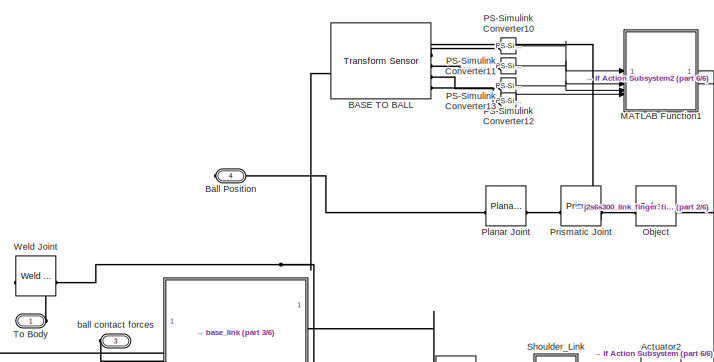
[diagram: Manipulator1 - part 1/6, top left region]
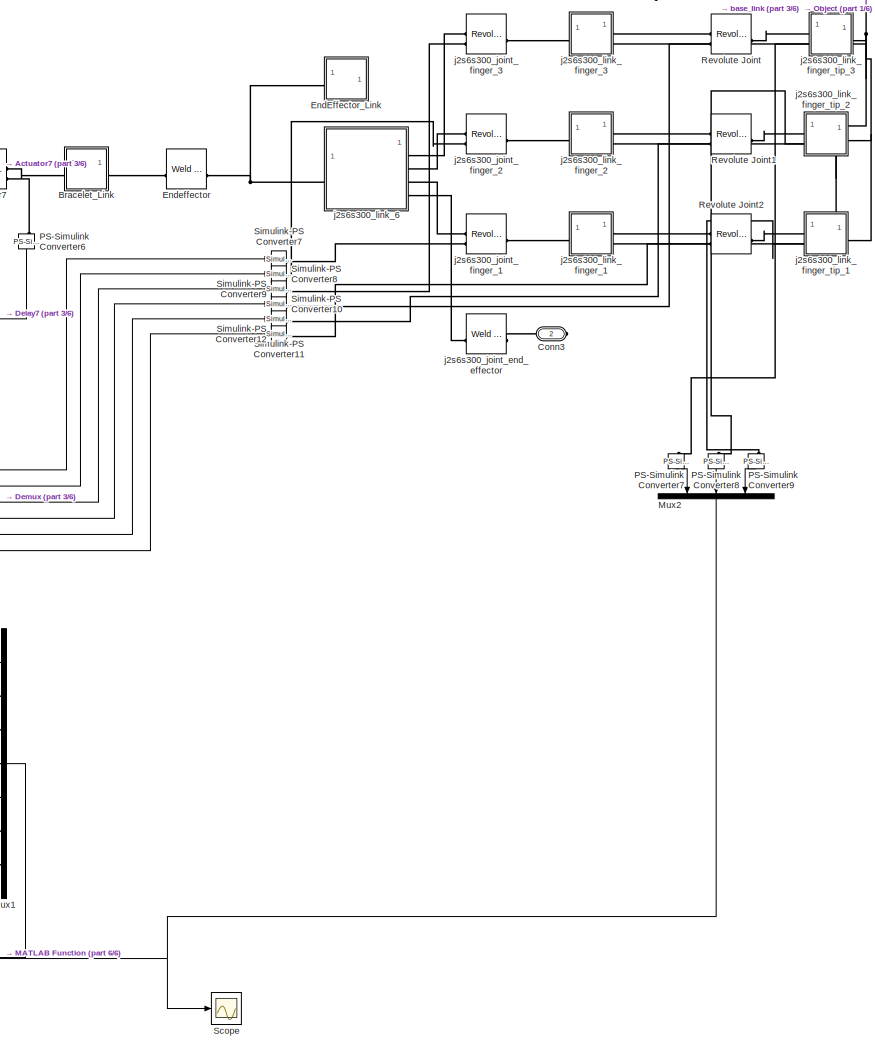
[diagram: Manipulator1 - part 2/6, middle right region]
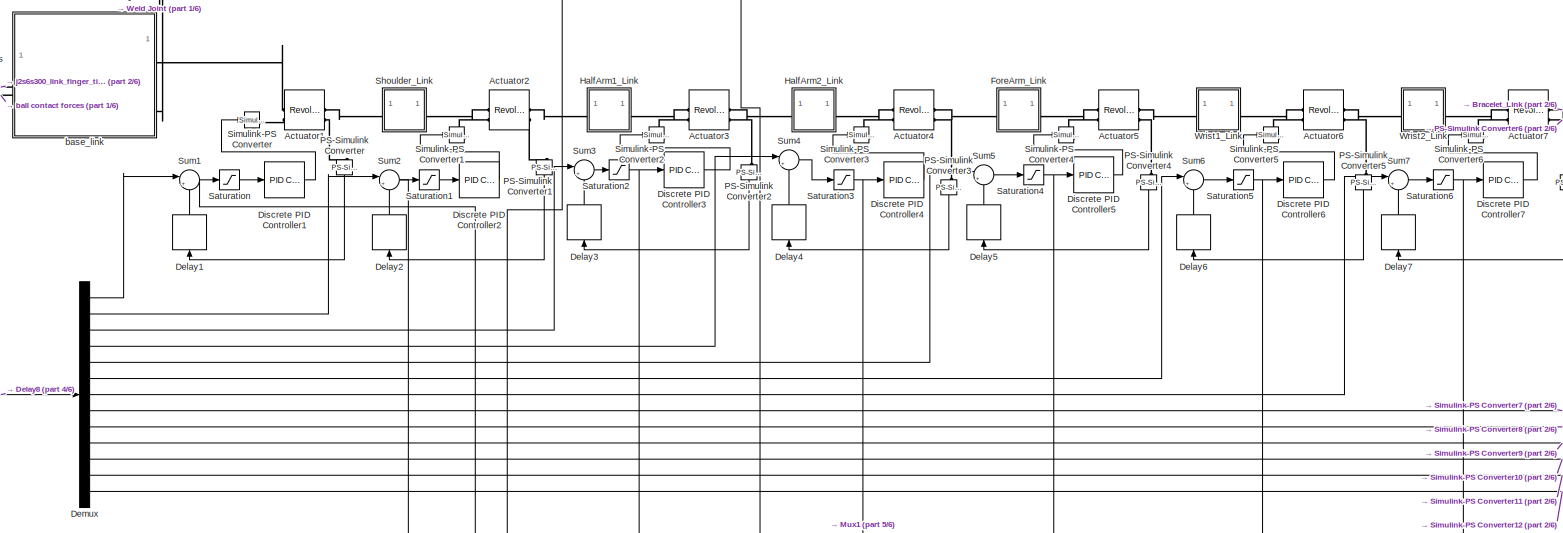
[diagram: Manipulator1 - part 3/6, central region]
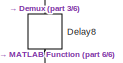
[diagram: Manipulator1 - part 4/6, middle left region]
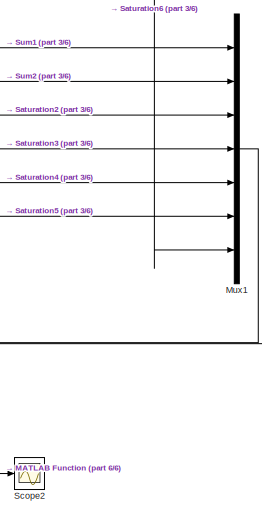
[diagram: Manipulator1 - part 5/6, middle right region]
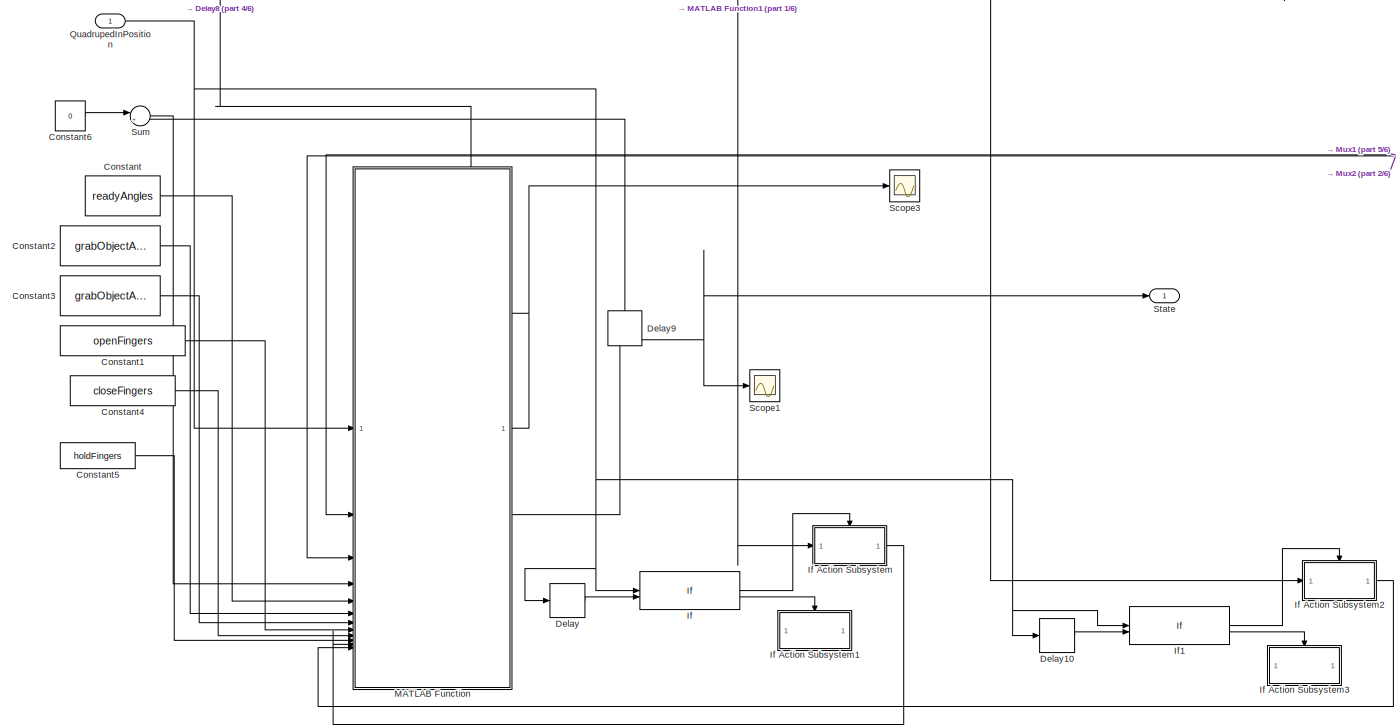
[diagram: Manipulator1 - part 6/6, bottom center region]
BLOCK [SubSystem] Manipulator1
  Commented = on
BLOCK [Reference] Manipulator1/Actuator1  REF=sm_lib/Joints/Revolute Joint
  SourceBlock = sm_lib/Joints/Revolute Joint
  SourceType = Revolute Joint
BLOCK [Reference] Manipulator1/Actuator2  REF=sm_lib/Joints/Revolute Joint
  SourceBlock = sm_lib/Joints/Revolute Joint
  SourceType = Revolute Joint
BLOCK [Reference] Manipulator1/Actuator3  REF=sm_lib/Joints/Revolute Joint
  SourceBlock = sm_lib/Joints/Revolute Joint
  SourceType = Revolute Joint
BLOCK [Reference] Manipulator1/Actuator4  REF=sm_lib/Joints/Revolute Joint
  SourceBlock = sm_lib/Joints/Revolute Joint
  SourceType = Revolute Joint
BLOCK [Reference] Manipulator1/Actuator5  REF=sm_lib/Joints/Revolute Joint
  SourceBlock = sm_lib/Joints/Revolute Joint
  SourceType = Revolute Joint
BLOCK [Reference] Manipulator1/Actuator6  REF=sm_lib/Joints/Revolute Joint
  SourceBlock = sm_lib/Joints/Revolute Joint
  SourceType = Revolute Joint
BLOCK [Reference] Manipulator1/Actuator7  REF=sm_lib/Joints/Revolute Joint
  SourceBlock = sm_lib/Joints/Revolute Joint
  SourceType = Revolute Joint
BLOCK [Reference] Manipulator1/BASE TO BALL  REF=sm_lib/Frames and
Transforms/Transform
Sensor
  SourceBlock = sm_lib/Frames and\nTransforms/Transform\nSensor
  SourceType = Transform\nSensor
BLOCK [PMIOPort] Manipulator1/Ball Position
  Port = 4
  Side = Right
BLOCK [SubSystem] Manipulator1/Bracelet_Link
BLOCK [Reference] Manipulator1/Bracelet_Link/Actuator7_AxisInvTransform  REF=sm_lib/Frames and
Transforms/Rigid
Transform
  SourceBlock = sm_lib/Frames and\nTransforms/Rigid\nTransform
  SourceType = Rigid\nTransform
BLOCK [Reference] Manipulator1/Bracelet_Link/Endeffector_OriginTransform  REF=sm_lib/Frames and
Transforms/Rigid
Transform
  SourceBlock = sm_lib/Frames and\nTransforms/Rigid\nTransform
  SourceType = Rigid\nTransform
BLOCK [PMIOPort] Manipulator1/Bracelet_Link/F
  Side = Left
BLOCK [PMIOPort] Manipulator1/Bracelet_Link/F1
  Port = 2
  Side = Right
BLOCK [Reference] Manipulator1/Bracelet_Link/Inertia  REF=sm_lib/Body Elements/Inertia
  SourceBlock = sm_lib/Body Elements/Inertia
  SourceType = Inertia
BLOCK [Reference] Manipulator1/Bracelet_Link/InertiaOriginTransform  REF=sm_lib/Frames and
Transforms/Rigid
Transform
  SourceBlock = sm_lib/Frames and\nTransforms/Rigid\nTransform
  SourceType = Rigid\nTransform
BLOCK [Reference] Manipulator1/Bracelet_Link/ReferenceFrame  REF=sm_lib/Frames and
Transforms/Reference
Frame
  SourceBlock = sm_lib/Frames and\nTransforms/Reference\nFrame
  SourceType = Reference\nFrame
BLOCK [Reference] Manipulator1/Bracelet_Link/Visual  REF=sm_lib/Body Elements/File Solid
  SourceBlock = sm_lib/Body Elements/File Solid
  SourceType = File Solid
BLOCK [Reference] Manipulator1/Bracelet_Link/VisualOriginTransform  REF=sm_lib/Frames and
Transforms/Rigid
Transform
  SourceBlock = sm_lib/Frames and\nTransforms/Rigid\nTransform
  SourceType = Rigid\nTransform
BLOCK [PMIOPort] Manipulator1/Conn3
  Port = 2
  Side = Right
BLOCK [Constant] Manipulator1/Constant
  SampleTime = -1
  Value = readyAngles
BLOCK [Constant] Manipulator1/Constant1
  SampleTime = -1
  Value = openFingers
BLOCK [Constant] Manipulator1/Constant2
  SampleTime = -1
  Value = grabObjectAngles2
BLOCK [Constant] Manipulator1/Constant3
  SampleTime = -1
  Value = grabObjectAngles
BLOCK [Constant] Manipulator1/Constant4
  Value = closeFingers
BLOCK [Constant] Manipulator1/Constant5
  Value = holdFingers
BLOCK [Constant] Manipulator1/Constant6
  Value = 0
BLOCK [Delay] Manipulator1/Delay
  DelayLength = 1
  InputPortMap = u0
BLOCK [Delay] Manipulator1/Delay1
  DelayLength = 1
  InitialCondition = 0
  InputPortMap = u0
  NameLocation = right
BLOCK [Delay] Manipulator1/Delay10
  DelayLength = 1
  InputPortMap = u0
BLOCK [Delay] Manipulator1/Delay2
  DelayLength = 1
  InitialCondition = 0
  InputPortMap = u0
  NameLocation = right
BLOCK [Delay] Manipulator1/Delay3
  DelayLength = 1
  InitialCondition = 0
  InputPortMap = u0
  NameLocation = right
BLOCK [Delay] Manipulator1/Delay4
  DelayLength = 1
  InitialCondition = 0
  InputPortMap = u0
  NameLocation = right
BLOCK [Delay] Manipulator1/Delay5
  DelayLength = 1
  InitialCondition = 0
  InputPortMap = u0
  NameLocation = right
BLOCK [Delay] Manipulator1/Delay6
  DelayLength = 1
  InitialCondition = 0
  InputPortMap = u0
  NameLocation = right
BLOCK [Delay] Manipulator1/Delay7
  DelayLength = 1
  InitialCondition = 0
  InputPortMap = u0
  NameLocation = right
BLOCK [Delay] Manipulator1/Delay8
  DelayLength = 1
  InitialCondition = 0
  InputPortMap = u0
  NameLocation = right
BLOCK [Delay] Manipulator1/Delay9
  DelayLength = 1
  InitialCondition = 0
  InputPortMap = u0
  NameLocation = right
BLOCK [Demux] Manipulator1/Demux
  Outputs = 13
BLOCK [Reference] Manipulator1/Discrete PID Controller1  REF=slpidlib/PID Controller
  SourceBlock = slpidlib/PID Controller
  SourceType = PID 1dof
BLOCK [Reference] Manipulator1/Discrete PID Controller2  REF=slpidlib/PID Controller
  SourceBlock = slpidlib/PID Controller
  SourceType = PID 1dof
BLOCK [Reference] Manipulator1/Discrete PID Controller3  REF=slpidlib/PID Controller
  SourceBlock = slpidlib/PID Controller
  SourceType = PID 1dof
BLOCK [Reference] Manipulator1/Discrete PID Controller4  REF=slpidlib/PID Controller
  SourceBlock = slpidlib/PID Controller
  SourceType = PID 1dof
BLOCK [Reference] Manipulator1/Discrete PID Controller5  REF=slpidlib/PID Controller
  SourceBlock = slpidlib/PID Controller
  SourceType = PID 1dof
BLOCK [Reference] Manipulator1/Discrete PID Controller6  REF=slpidlib/PID Controller
  SourceBlock = slpidlib/PID Controller
  SourceType = PID 1dof
BLOCK [Reference] Manipulator1/Discrete PID Controller7  REF=slpidlib/PID Controller
  SourceBlock = slpidlib/PID Controller
  SourceType = PID 1dof
BLOCK [SubSystem] Manipulator1/EndEffector_Link
BLOCK [PMIOPort] Manipulator1/EndEffector_Link/F
  Side = Left
BLOCK [Reference] Manipulator1/EndEffector_Link/Inertia  REF=sm_lib/Body Elements/Inertia
  SourceBlock = sm_lib/Body Elements/Inertia
  SourceType = Inertia
BLOCK [Reference] Manipulator1/EndEffector_Link/InertiaOriginTransform  REF=sm_lib/Frames and
Transforms/Rigid
Transform
  SourceBlock = sm_lib/Frames and\nTransforms/Rigid\nTransform
  SourceType = Rigid\nTransform
BLOCK [Reference] Manipulator1/EndEffector_Link/ReferenceFrame  REF=sm_lib/Frames and
Transforms/Reference
Frame
  SourceBlock = sm_lib/Frames and\nTransforms/Reference\nFrame
  SourceType = Reference\nFrame
BLOCK [Reference] Manipulator1/EndEffector_Link/Visual  REF=sm_lib/Body Elements/File Solid
  SourceBlock = sm_lib/Body Elements/File Solid
  SourceType = File Solid
BLOCK [Reference] Manipulator1/EndEffector_Link/VisualOriginTransform  REF=sm_lib/Frames and
Transforms/Rigid
Transform
  SourceBlock = sm_lib/Frames and\nTransforms/Rigid\nTransform
  SourceType = Rigid\nTransform
BLOCK [Reference] Manipulator1/Endeffector  REF=sm_lib/Joints/Weld Joint
  SourceBlock = sm_lib/Joints/Weld Joint
  SourceType = Weld Joint
BLOCK [SubSystem] Manipulator1/ForeArm_Link
BLOCK [Reference] Manipulator1/ForeArm_Link/Actuator4_AxisInvTransform  REF=sm_lib/Frames and
Transforms/Rigid
Transform
  SourceBlock = sm_lib/Frames and\nTransforms/Rigid\nTransform
  SourceType = Rigid\nTransform
BLOCK [Reference] Manipulator1/ForeArm_Link/Actuator5_AxisTransform  REF=sm_lib/Frames and
Transforms/Rigid
Transform
  SourceBlock = sm_lib/Frames and\nTransforms/Rigid\nTransform
  SourceType = Rigid\nTransform
BLOCK [Reference] Manipulator1/ForeArm_Link/Actuator5_OriginTransform  REF=sm_lib/Frames and
Transforms/Rigid
Transform
  SourceBlock = sm_lib/Frames and\nTransforms/Rigid\nTransform
  SourceType = Rigid\nTransform
BLOCK [PMIOPort] Manipulator1/ForeArm_Link/F
  Side = Left
BLOCK [PMIOPort] Manipulator1/ForeArm_Link/F1
  Port = 2
  Side = Right
BLOCK [Reference] Manipulator1/ForeArm_Link/Inertia  REF=sm_lib/Body Elements/Inertia
  SourceBlock = sm_lib/Body Elements/Inertia
  SourceType = Inertia
BLOCK [Reference] Manipulator1/ForeArm_Link/InertiaOriginTransform  REF=sm_lib/Frames and
Transforms/Rigid
Transform
  SourceBlock = sm_lib/Frames and\nTransforms/Rigid\nTransform
  SourceType = Rigid\nTransform
BLOCK [Reference] Manipulator1/ForeArm_Link/ReferenceFrame  REF=sm_lib/Frames and
Transforms/Reference
Frame
  SourceBlock = sm_lib/Frames and\nTransforms/Reference\nFrame
  SourceType = Reference\nFrame
BLOCK [Reference] Manipulator1/ForeArm_Link/Visual  REF=sm_lib/Body Elements/File Solid
  SourceBlock = sm_lib/Body Elements/File Solid
  SourceType = File Solid
BLOCK [Reference] Manipulator1/ForeArm_Link/VisualOriginTransform  REF=sm_lib/Frames and
Transforms/Rigid
Transform
  SourceBlock = sm_lib/Frames and\nTransforms/Rigid\nTransform
  SourceType = Rigid\nTransform
BLOCK [SubSystem] Manipulator1/HalfArm1_Link
BLOCK [Reference] Manipulator1/HalfArm1_Link/Actuator2_AxisInvTransform  REF=sm_lib/Frames and
Transforms/Rigid
Transform
  SourceBlock = sm_lib/Frames and\nTransforms/Rigid\nTransform
  SourceType = Rigid\nTransform
BLOCK [Reference] Manipulator1/HalfArm1_Link/Actuator3_AxisTransform  REF=sm_lib/Frames and
Transforms/Rigid
Transform
  SourceBlock = sm_lib/Frames and\nTransforms/Rigid\nTransform
  SourceType = Rigid\nTransform
BLOCK [Reference] Manipulator1/HalfArm1_Link/Actuator3_OriginTransform  REF=sm_lib/Frames and
Transforms/Rigid
Transform
  SourceBlock = sm_lib/Frames and\nTransforms/Rigid\nTransform
  SourceType = Rigid\nTransform
BLOCK [PMIOPort] Manipulator1/HalfArm1_Link/F
  Side = Left
BLOCK [PMIOPort] Manipulator1/HalfArm1_Link/F1
  Port = 2
  Side = Right
BLOCK [Reference] Manipulator1/HalfArm1_Link/Inertia  REF=sm_lib/Body Elements/Inertia
  SourceBlock = sm_lib/Body Elements/Inertia
  SourceType = Inertia
BLOCK [Reference] Manipulator1/HalfArm1_Link/InertiaOriginTransform  REF=sm_lib/Frames and
Transforms/Rigid
Transform
  SourceBlock = sm_lib/Frames and\nTransforms/Rigid\nTransform
  SourceType = Rigid\nTransform
BLOCK [Reference] Manipulator1/HalfArm1_Link/ReferenceFrame  REF=sm_lib/Frames and
Transforms/Reference
Frame
  SourceBlock = sm_lib/Frames and\nTransforms/Reference\nFrame
  SourceType = Reference\nFrame
BLOCK [Reference] Manipulator1/HalfArm1_Link/Visual  REF=sm_lib/Body Elements/File Solid
  SourceBlock = sm_lib/Body Elements/File Solid
  SourceType = File Solid
BLOCK [Reference] Manipulator1/HalfArm1_Link/VisualOriginTransform  REF=sm_lib/Frames and
Transforms/Rigid
Transform
  SourceBlock = sm_lib/Frames and\nTransforms/Rigid\nTransform
  SourceType = Rigid\nTransform
BLOCK [SubSystem] Manipulator1/HalfArm2_Link
BLOCK [Reference] Manipulator1/HalfArm2_Link/Actuator3_AxisInvTransform  REF=sm_lib/Frames and
Transforms/Rigid
Transform
  SourceBlock = sm_lib/Frames and\nTransforms/Rigid\nTransform
  SourceType = Rigid\nTransform
BLOCK [Reference] Manipulator1/HalfArm2_Link/Actuator4_AxisTransform  REF=sm_lib/Frames and
Transforms/Rigid
Transform
  SourceBlock = sm_lib/Frames and\nTransforms/Rigid\nTransform
  SourceType = Rigid\nTransform
BLOCK [Reference] Manipulator1/HalfArm2_Link/Actuator4_OriginTransform  REF=sm_lib/Frames and
Transforms/Rigid
Transform
  SourceBlock = sm_lib/Frames and\nTransforms/Rigid\nTransform
  SourceType = Rigid\nTransform
BLOCK [PMIOPort] Manipulator1/HalfArm2_Link/F
  Side = Left
BLOCK [PMIOPort] Manipulator1/HalfArm2_Link/F1
  Port = 2
  Side = Right
BLOCK [Reference] Manipulator1/HalfArm2_Link/Inertia  REF=sm_lib/Body Elements/Inertia
  SourceBlock = sm_lib/Body Elements/Inertia
  SourceType = Inertia
BLOCK [Reference] Manipulator1/HalfArm2_Link/InertiaOriginTransform  REF=sm_lib/Frames and
Transforms/Rigid
Transform
  SourceBlock = sm_lib/Frames and\nTransforms/Rigid\nTransform
  SourceType = Rigid\nTransform
BLOCK [Reference] Manipulator1/HalfArm2_Link/ReferenceFrame  REF=sm_lib/Frames and
Transforms/Reference
Frame
  SourceBlock = sm_lib/Frames and\nTransforms/Reference\nFrame
  SourceType = Reference\nFrame
BLOCK [Reference] Manipulator1/HalfArm2_Link/Visual  REF=sm_lib/Body Elements/File Solid
  SourceBlock = sm_lib/Body Elements/File Solid
  SourceType = File Solid
BLOCK [Reference] Manipulator1/HalfArm2_Link/VisualOriginTransform  REF=sm_lib/Frames and
Transforms/Rigid
Transform
  SourceBlock = sm_lib/Frames and\nTransforms/Rigid\nTransform
  SourceType = Rigid\nTransform
BLOCK [If] Manipulator1/If
  IfExpression = u1==1&u2==0
  NumInputs = 2
BLOCK [SubSystem] Manipulator1/If Action Subsystem
  TreatAsAtomicUnit = on
BLOCK [ActionPort] Manipulator1/If Action Subsystem/Action Port
  ActionPortLabel = if(u1==1&u2==0)
BLOCK [Constant] Manipulator1/If Action Subsystem/Constant7
  Value = inverseKinematicWeights
BLOCK [Constant] Manipulator1/If Action Subsystem/Constant8
  Value = homeAngles
BLOCK [Reference] Manipulator1/If Action Subsystem/Inverse Kinematics  REF=robotmaniplib/Inverse Kinematics
  SourceBlock = robotmaniplib/Inverse Kinematics
  SourceType = Inverse Kinematics
BLOCK [Inport] Manipulator1/If Action Subsystem/T
BLOCK [Outport] Manipulator1/If Action Subsystem/objectPosition
BLOCK [SubSystem] Manipulator1/If Action Subsystem1
  TreatAsAtomicUnit = on
BLOCK [ActionPort] Manipulator1/If Action Subsystem1/Action Port
  ActionPortLabel = else
BLOCK [SubSystem] Manipulator1/If Action Subsystem2
  TreatAsAtomicUnit = on
BLOCK [ActionPort] Manipulator1/If Action Subsystem2/Action Port
  ActionPortLabel = if(u1==1&u2==0)
BLOCK [Constant] Manipulator1/If Action Subsystem2/Constant7
  Value = inverseKinematicWeights
BLOCK [Constant] Manipulator1/If Action Subsystem2/Constant8
  Value = homeAngles
BLOCK [Reference] Manipulator1/If Action Subsystem2/Inverse Kinematics  REF=robotmaniplib/Inverse Kinematics
  SourceBlock = robotmaniplib/Inverse Kinematics
  SourceType = Inverse Kinematics
BLOCK [Inport] Manipulator1/If Action Subsystem2/T
BLOCK [Outport] Manipulator1/If Action Subsystem2/objectPosition
BLOCK [SubSystem] Manipulator1/If Action Subsystem3
  TreatAsAtomicUnit = on
BLOCK [ActionPort] Manipulator1/If Action Subsystem3/Action Port
  ActionPortLabel = else
BLOCK [If] Manipulator1/If1
  IfExpression = u1==1&u2==0
  NumInputs = 2
BLOCK [SubSystem] Manipulator1/MATLAB Function
  ErrorFcn = Stateflow.Translate.translate
  PermitHierarchicalResolution = ExplicitOnly
  SFBlockType = MATLAB Function
  TreatAsAtomicUnit = on
BLOCK [Demux] Manipulator1/MATLAB Function/ Demux 
  Outputs = 1
BLOCK [S-Function] Manipulator1/MATLAB Function/ SFunction 
  EnableBusSupport = on
  FunctionName = sf_sfun
  PortCounts = [12 3]
  SFcnIsStateOwnerBlock = off
  SFunctionDeploymentMode = off
  Tag = Stateflow S-Function 6
BLOCK [Terminator] Manipulator1/MATLAB Function/ Terminator 
BLOCK [Inport] Manipulator1/MATLAB Function/aboveObjectPosition
  Port = 12
BLOCK [Inport] Manipulator1/MATLAB Function/closeFingers
  Port = 9
BLOCK [Inport] Manipulator1/MATLAB Function/contactForces
  Port = 3
BLOCK [Inport] Manipulator1/MATLAB Function/errorVals
  Port = 2
BLOCK [Inport] Manipulator1/MATLAB Function/grabObjectAngles
  Port = 7
BLOCK [Inport] Manipulator1/MATLAB Function/grabObjectAngles2
  Port = 6
BLOCK [Inport] Manipulator1/MATLAB Function/holdFingers
  Port = 10
BLOCK [Inport] Manipulator1/MATLAB Function/objectPosition
  Port = 11
BLOCK [Inport] Manipulator1/MATLAB Function/openFingers
  Port = 8
BLOCK [Inport] Manipulator1/MATLAB Function/quadrupedInPosition
BLOCK [Inport] Manipulator1/MATLAB Function/readyAngles
  Port = 5
BLOCK [Inport] Manipulator1/MATLAB Function/state
  Port = 4
BLOCK [Outport] Manipulator1/MATLAB Function/stateOut
  Port = 2
BLOCK [Outport] Manipulator1/MATLAB Function/y
BLOCK [SubSystem] Manipulator1/MATLAB Function1
  ErrorFcn = Stateflow.Translate.translate
  LibrarySourceBlock = simulink/User-Defined\nFunctions/MATLAB Function
  PermitHierarchicalResolution = ExplicitOnly
  SFBlockType = MATLAB Function
  TreatAsAtomicUnit = on
BLOCK [Demux] Manipulator1/MATLAB Function1/ Demux 
  Outputs = 1
BLOCK [S-Function] Manipulator1/MATLAB Function1/ SFunction 
  EnableBusSupport = on
  FunctionName = sf_sfun
  PortCounts = [4 3]
  SFcnIsStateOwnerBlock = off
  SFunctionDeploymentMode = off
  Tag = Stateflow S-Function 7
BLOCK [Terminator] Manipulator1/MATLAB Function1/ Terminator 
BLOCK [Inport] Manipulator1/MATLAB Function1/R
BLOCK [Outport] Manipulator1/MATLAB Function1/aboveObjectTransform
  Port = 2
BLOCK [Outport] Manipulator1/MATLAB Function1/objectTransform
BLOCK [Inport] Manipulator1/MATLAB Function1/x
  Port = 2
BLOCK [Inport] Manipulator1/MATLAB Function1/y
  Port = 3
BLOCK [Inport] Manipulator1/MATLAB Function1/z
  Port = 4
BLOCK [Mux] Manipulator1/Mux1
  DisplayOption = bar
  Inputs = 7
BLOCK [Mux] Manipulator1/Mux2
  DisplayOption = bar
  Inputs = 3
BLOCK [Reference] Manipulator1/Object  REF=sm_lib/Body Elements/Spherical Solid
  SourceBlock = sm_lib/Body Elements/Spherical Solid
  SourceType = Spherical Solid
BLOCK [Reference] Manipulator1/PS-Simulink Converter  REF=nesl_utility/PS-Simulink
Converter
  NameLocation = left
  SourceBlock = nesl_utility/PS-Simulink\nConverter
  SourceType = PS-Simulink\nConverter
BLOCK [Reference] Manipulator1/PS-Simulink Converter1  REF=nesl_utility/PS-Simulink
Converter
  NameLocation = left
  SourceBlock = nesl_utility/PS-Simulink\nConverter
  SourceType = PS-Simulink\nConverter
BLOCK [Reference] Manipulator1/PS-Simulink Converter10  REF=nesl_utility/PS-Simulink
Converter
  SourceBlock = nesl_utility/PS-Simulink\nConverter
  SourceType = PS-Simulink\nConverter
BLOCK [Reference] Manipulator1/PS-Simulink Converter11  REF=nesl_utility/PS-Simulink
Converter
  SourceBlock = nesl_utility/PS-Simulink\nConverter
  SourceType = PS-Simulink\nConverter
BLOCK [Reference] Manipulator1/PS-Simulink Converter12  REF=nesl_utility/PS-Simulink
Converter
  SourceBlock = nesl_utility/PS-Simulink\nConverter
  SourceType = PS-Simulink\nConverter
BLOCK [Reference] Manipulator1/PS-Simulink Converter13  REF=nesl_utility/PS-Simulink
Converter
  SourceBlock = nesl_utility/PS-Simulink\nConverter
  SourceType = PS-Simulink\nConverter
BLOCK [Reference] Manipulator1/PS-Simulink Converter2  REF=nesl_utility/PS-Simulink
Converter
  NameLocation = left
  SourceBlock = nesl_utility/PS-Simulink\nConverter
  SourceType = PS-Simulink\nConverter
BLOCK [Reference] Manipulator1/PS-Simulink Converter3  REF=nesl_utility/PS-Simulink
Converter
  NameLocation = left
  SourceBlock = nesl_utility/PS-Simulink\nConverter
  SourceType = PS-Simulink\nConverter
BLOCK [Reference] Manipulator1/PS-Simulink Converter4  REF=nesl_utility/PS-Simulink
Converter
  NameLocation = left
  SourceBlock = nesl_utility/PS-Simulink\nConverter
  SourceType = PS-Simulink\nConverter
BLOCK [Reference] Manipulator1/PS-Simulink Converter5  REF=nesl_utility/PS-Simulink
Converter
  NameLocation = left
  SourceBlock = nesl_utility/PS-Simulink\nConverter
  SourceType = PS-Simulink\nConverter
BLOCK [Reference] Manipulator1/PS-Simulink Converter6  REF=nesl_utility/PS-Simulink
Converter
  NameLocation = left
  SourceBlock = nesl_utility/PS-Simulink\nConverter
  SourceType = PS-Simulink\nConverter
BLOCK [Reference] Manipulator1/PS-Simulink Converter7  REF=nesl_utility/PS-Simulink
Converter
  NameLocation = left
  SourceBlock = nesl_utility/PS-Simulink\nConverter
  SourceType = PS-Simulink\nConverter
BLOCK [Reference] Manipulator1/PS-Simulink Converter8  REF=nesl_utility/PS-Simulink
Converter
  NameLocation = right
  SourceBlock = nesl_utility/PS-Simulink\nConverter
  SourceType = PS-Simulink\nConverter
BLOCK [Reference] Manipulator1/PS-Simulink Converter9  REF=nesl_utility/PS-Simulink
Converter
  NameLocation = left
  SourceBlock = nesl_utility/PS-Simulink\nConverter
  SourceType = PS-Simulink\nConverter
BLOCK [Reference] Manipulator1/Planar Joint  REF=sm_lib/Joints/Planar Joint
  SourceBlock = sm_lib/Joints/Planar Joint
  SourceType = Planar Joint
BLOCK [Reference] Manipulator1/Prismatic Joint  REF=sm_lib/Joints/Prismatic
Joint
  SourceBlock = sm_lib/Joints/Prismatic\nJoint
  SourceType = Prismatic\nJoint
BLOCK [Inport] Manipulator1/QuadrupedInPosition
BLOCK [Reference] Manipulator1/Revolute Joint  REF=sm_lib/Joints/Revolute Joint
  SourceBlock = sm_lib/Joints/Revolute Joint
  SourceType = Revolute Joint
BLOCK [Reference] Manipulator1/Revolute Joint1  REF=sm_lib/Joints/Revolute Joint
  SourceBlock = sm_lib/Joints/Revolute Joint
  SourceType = Revolute Joint
BLOCK [Reference] Manipulator1/Revolute Joint2  REF=sm_lib/Joints/Revolute Joint
  SourceBlock = sm_lib/Joints/Revolute Joint
  SourceType = Revolute Joint
BLOCK [Saturate] Manipulator1/Saturation
BLOCK [Saturate] Manipulator1/Saturation1
BLOCK [Saturate] Manipulator1/Saturation2
BLOCK [Saturate] Manipulator1/Saturation3
BLOCK [Saturate] Manipulator1/Saturation4
BLOCK [Saturate] Manipulator1/Saturation5
BLOCK [Saturate] Manipulator1/Saturation6
BLOCK [Scope] Manipulator1/Scope
  Floating = off
  NumInputPorts = 1
  ScopeSpecificationString = Simulink.scopes.TimeScopeBlockCfg('CurrentConfiguration', extmgr.ConfigurationSet(extmgr.Configuration('Core','General UI',true),extmgr.Configuration('Core','Source UI',true),extmgr.Configuration('Sources','WiredSimulink',true),extmgr.Configuration('Visuals','Time Domain',true,'SerializedDisplays',{struct('MinYLimReal','-31.15334','MaxYLimReal','280.38008','YLabelReal','','MinYLimMag','0.00000','M...<+1446ch>
BLOCK [Scope] Manipulator1/Scope1
  Floating = off
  NumInputPorts = 1
  ScopeSpecificationString = Simulink.scopes.TimeScopeBlockCfg('CurrentConfiguration', extmgr.ConfigurationSet(extmgr.Configuration('Core','General UI',true),extmgr.Configuration('Core','Source UI',true),extmgr.Configuration('Sources','WiredSimulink',true,'DataLoggingVariableName','ScopeData1'),extmgr.Configuration('Visuals','Time Domain',true,'SerializedDisplays',{struct('MinYLimReal','0.93562','MaxYLimReal','3.06075','YLabe...<+1433ch>
BLOCK [Scope] Manipulator1/Scope2
  Floating = off
  NumInputPorts = 1
  ScopeSpecificationString = Simulink.scopes.TimeScopeBlockCfg('CurrentConfiguration', extmgr.ConfigurationSet(extmgr.Configuration('Core','General UI',true),extmgr.Configuration('Core','Source UI',true),extmgr.Configuration('Sources','WiredSimulink',true,'DataLoggingVariableName','ScopeData2'),extmgr.Configuration('Visuals','Time Domain',true,'SerializedDisplays',{struct('MinYLimReal','-0.36305','MaxYLimReal','0.34703','YLab...<+1490ch>
BLOCK [Scope] Manipulator1/Scope3
  Floating = off
  NumInputPorts = 1
  ScopeSpecificationString = Simulink.scopes.TimeScopeBlockCfg('CurrentConfiguration', extmgr.ConfigurationSet(extmgr.Configuration('Core','General UI',true),extmgr.Configuration('Core','Source UI',true),extmgr.Configuration('Sources','WiredSimulink',true,'DataLoggingVariableName','ScopeData3'),extmgr.Configuration('Visuals','Time Domain',true,'SerializedDisplays',{struct('MinYLimReal','-4.51002','MaxYLimReal','2.4828','YLabe...<+1664ch>
BLOCK [SubSystem] Manipulator1/Shoulder_Link
BLOCK [Reference] Manipulator1/Shoulder_Link/Actuator1_AxisInvTransform  REF=sm_lib/Frames and
Transforms/Rigid
Transform
  SourceBlock = sm_lib/Frames and\nTransforms/Rigid\nTransform
  SourceType = Rigid\nTransform
BLOCK [Reference] Manipulator1/Shoulder_Link/Actuator2_AxisTransform  REF=sm_lib/Frames and
Transforms/Rigid
Transform
  SourceBlock = sm_lib/Frames and\nTransforms/Rigid\nTransform
  SourceType = Rigid\nTransform
BLOCK [Reference] Manipulator1/Shoulder_Link/Actuator2_OriginTransform  REF=sm_lib/Frames and
Transforms/Rigid
Transform
  SourceBlock = sm_lib/Frames and\nTransforms/Rigid\nTransform
  SourceType = Rigid\nTransform
BLOCK [PMIOPort] Manipulator1/Shoulder_Link/F
  Side = Left
BLOCK [PMIOPort] Manipulator1/Shoulder_Link/F1
  Port = 2
  Side = Right
BLOCK [Reference] Manipulator1/Shoulder_Link/Inertia  REF=sm_lib/Body Elements/Inertia
  SourceBlock = sm_lib/Body Elements/Inertia
  SourceType = Inertia
BLOCK [Reference] Manipulator1/Shoulder_Link/InertiaOriginTransform  REF=sm_lib/Frames and
Transforms/Rigid
Transform
  SourceBlock = sm_lib/Frames and\nTransforms/Rigid\nTransform
  SourceType = Rigid\nTransform
BLOCK [Reference] Manipulator1/Shoulder_Link/ReferenceFrame  REF=sm_lib/Frames and
Transforms/Reference
Frame
  SourceBlock = sm_lib/Frames and\nTransforms/Reference\nFrame
  SourceType = Reference\nFrame
BLOCK [Reference] Manipulator1/Shoulder_Link/Visual  REF=sm_lib/Body Elements/File Solid
  SourceBlock = sm_lib/Body Elements/File Solid
  SourceType = File Solid
BLOCK [Reference] Manipulator1/Shoulder_Link/VisualOriginTransform  REF=sm_lib/Frames and
Transforms/Rigid
Transform
  SourceBlock = sm_lib/Frames and\nTransforms/Rigid\nTransform
  SourceType = Rigid\nTransform
BLOCK [Reference] Manipulator1/Simulink-PS Converter  REF=nesl_utility/Simulink-PS
Converter
  SourceBlock = nesl_utility/Simulink-PS\nConverter
  SourceType = Simulink-PS\nConverter
BLOCK [Reference] Manipulator1/Simulink-PS Converter1  REF=nesl_utility/Simulink-PS
Converter
  SourceBlock = nesl_utility/Simulink-PS\nConverter
  SourceType = Simulink-PS\nConverter
BLOCK [Reference] Manipulator1/Simulink-PS Converter10  REF=nesl_utility/Simulink-PS
Converter
  SourceBlock = nesl_utility/Simulink-PS\nConverter
  SourceType = Simulink-PS\nConverter
BLOCK [Reference] Manipulator1/Simulink-PS Converter11  REF=nesl_utility/Simulink-PS
Converter
  SourceBlock = nesl_utility/Simulink-PS\nConverter
  SourceType = Simulink-PS\nConverter
BLOCK [Reference] Manipulator1/Simulink-PS Converter12  REF=nesl_utility/Simulink-PS
Converter
  SourceBlock = nesl_utility/Simulink-PS\nConverter
  SourceType = Simulink-PS\nConverter
BLOCK [Reference] Manipulator1/Simulink-PS Converter2  REF=nesl_utility/Simulink-PS
Converter
  SourceBlock = nesl_utility/Simulink-PS\nConverter
  SourceType = Simulink-PS\nConverter
BLOCK [Reference] Manipulator1/Simulink-PS Converter3  REF=nesl_utility/Simulink-PS
Converter
  SourceBlock = nesl_utility/Simulink-PS\nConverter
  SourceType = Simulink-PS\nConverter
BLOCK [Reference] Manipulator1/Simulink-PS Converter4  REF=nesl_utility/Simulink-PS
Converter
  SourceBlock = nesl_utility/Simulink-PS\nConverter
  SourceType = Simulink-PS\nConverter
BLOCK [Reference] Manipulator1/Simulink-PS Converter5  REF=nesl_utility/Simulink-PS
Converter
  SourceBlock = nesl_utility/Simulink-PS\nConverter
  SourceType = Simulink-PS\nConverter
BLOCK [Reference] Manipulator1/Simulink-PS Converter6  REF=nesl_utility/Simulink-PS
Converter
  SourceBlock = nesl_utility/Simulink-PS\nConverter
  SourceType = Simulink-PS\nConverter
BLOCK [Reference] Manipulator1/Simulink-PS Converter7  REF=nesl_utility/Simulink-PS
Converter
  SourceBlock = nesl_utility/Simulink-PS\nConverter
  SourceType = Simulink-PS\nConverter
BLOCK [Reference] Manipulator1/Simulink-PS Converter8  REF=nesl_utility/Simulink-PS
Converter
  SourceBlock = nesl_utility/Simulink-PS\nConverter
  SourceType = Simulink-PS\nConverter
BLOCK [Reference] Manipulator1/Simulink-PS Converter9  REF=nesl_utility/Simulink-PS
Converter
  SourceBlock = nesl_utility/Simulink-PS\nConverter
  SourceType = Simulink-PS\nConverter
BLOCK [Outport] Manipulator1/State
BLOCK [Sum] Manipulator1/Sum
  Inputs = |++
BLOCK [Sum] Manipulator1/Sum1
  Inputs = |+-
BLOCK [Sum] Manipulator1/Sum2
  Inputs = |+-
BLOCK [Sum] Manipulator1/Sum3
  Inputs = |+-
BLOCK [Sum] Manipulator1/Sum4
  Inputs = |+-
BLOCK [Sum] Manipulator1/Sum5
  Inputs = |+-
BLOCK [Sum] Manipulator1/Sum6
  Inputs = |+-
BLOCK [Sum] Manipulator1/Sum7
  Inputs = |+-
BLOCK [PMIOPort] Manipulator1/To Body
  Side = Right
BLOCK [Reference] Manipulator1/Weld Joint  REF=sm_lib/Joints/Weld Joint
  SourceBlock = sm_lib/Joints/Weld Joint
  SourceType = Weld Joint
BLOCK [SubSystem] Manipulator1/Wrist1_Link
BLOCK [Reference] Manipulator1/Wrist1_Link/Actuator5_AxisInvTransform  REF=sm_lib/Frames and
Transforms/Rigid
Transform
  SourceBlock = sm_lib/Frames and\nTransforms/Rigid\nTransform
  SourceType = Rigid\nTransform
BLOCK [Reference] Manipulator1/Wrist1_Link/Actuator6_AxisTransform  REF=sm_lib/Frames and
Transforms/Rigid
Transform
  SourceBlock = sm_lib/Frames and\nTransforms/Rigid\nTransform
  SourceType = Rigid\nTransform
BLOCK [Reference] Manipulator1/Wrist1_Link/Actuator6_OriginTransform  REF=sm_lib/Frames and
Transforms/Rigid
Transform
  SourceBlock = sm_lib/Frames and\nTransforms/Rigid\nTransform
  SourceType = Rigid\nTransform
BLOCK [PMIOPort] Manipulator1/Wrist1_Link/F
  Side = Left
BLOCK [PMIOPort] Manipulator1/Wrist1_Link/F1
  Port = 2
  Side = Right
BLOCK [Reference] Manipulator1/Wrist1_Link/Inertia  REF=sm_lib/Body Elements/Inertia
  SourceBlock = sm_lib/Body Elements/Inertia
  SourceType = Inertia
BLOCK [Reference] Manipulator1/Wrist1_Link/InertiaOriginTransform  REF=sm_lib/Frames and
Transforms/Rigid
Transform
  SourceBlock = sm_lib/Frames and\nTransforms/Rigid\nTransform
  SourceType = Rigid\nTransform
BLOCK [Reference] Manipulator1/Wrist1_Link/ReferenceFrame  REF=sm_lib/Frames and
Transforms/Reference
Frame
  SourceBlock = sm_lib/Frames and\nTransforms/Reference\nFrame
  SourceType = Reference\nFrame
BLOCK [Reference] Manipulator1/Wrist1_Link/Visual  REF=sm_lib/Body Elements/File Solid
  SourceBlock = sm_lib/Body Elements/File Solid
  SourceType = File Solid
BLOCK [Reference] Manipulator1/Wrist1_Link/VisualOriginTransform  REF=sm_lib/Frames and
Transforms/Rigid
Transform
  SourceBlock = sm_lib/Frames and\nTransforms/Rigid\nTransform
  SourceType = Rigid\nTransform
BLOCK [SubSystem] Manipulator1/Wrist2_Link
BLOCK [Reference] Manipulator1/Wrist2_Link/Actuator6_AxisInvTransform  REF=sm_lib/Frames and
Transforms/Rigid
Transform
  SourceBlock = sm_lib/Frames and\nTransforms/Rigid\nTransform
  SourceType = Rigid\nTransform
BLOCK [Reference] Manipulator1/Wrist2_Link/Actuator7_AxisTransform  REF=sm_lib/Frames and
Transforms/Rigid
Transform
  SourceBlock = sm_lib/Frames and\nTransforms/Rigid\nTransform
  SourceType = Rigid\nTransform
BLOCK [Reference] Manipulator1/Wrist2_Link/Actuator7_OriginTransform  REF=sm_lib/Frames and
Transforms/Rigid
Transform
  SourceBlock = sm_lib/Frames and\nTransforms/Rigid\nTransform
  SourceType = Rigid\nTransform
BLOCK [PMIOPort] Manipulator1/Wrist2_Link/F
  Side = Left
BLOCK [PMIOPort] Manipulator1/Wrist2_Link/F1
  Port = 2
  Side = Right
BLOCK [Reference] Manipulator1/Wrist2_Link/Inertia  REF=sm_lib/Body Elements/Inertia
  SourceBlock = sm_lib/Body Elements/Inertia
  SourceType = Inertia
BLOCK [Reference] Manipulator1/Wrist2_Link/InertiaOriginTransform  REF=sm_lib/Frames and
Transforms/Rigid
Transform
  SourceBlock = sm_lib/Frames and\nTransforms/Rigid\nTransform
  SourceType = Rigid\nTransform
BLOCK [Reference] Manipulator1/Wrist2_Link/ReferenceFrame  REF=sm_lib/Frames and
Transforms/Reference
Frame
  SourceBlock = sm_lib/Frames and\nTransforms/Reference\nFrame
  SourceType = Reference\nFrame
BLOCK [Reference] Manipulator1/Wrist2_Link/Visual  REF=sm_lib/Body Elements/File Solid
  SourceBlock = sm_lib/Body Elements/File Solid
  SourceType = File Solid
BLOCK [Reference] Manipulator1/Wrist2_Link/VisualOriginTransform  REF=sm_lib/Frames and
Transforms/Rigid
Transform
  SourceBlock = sm_lib/Frames and\nTransforms/Rigid\nTransform
  SourceType = Rigid\nTransform
BLOCK [PMIOPort] Manipulator1/ball contact forces
  Port = 3
  Side = Right
BLOCK [SubSystem] Manipulator1/base_link
BLOCK [Reference] Manipulator1/base_link/Actuator1_AxisTransform  REF=sm_lib/Frames and
Transforms/Rigid
Transform
  SourceBlock = sm_lib/Frames and\nTransforms/Rigid\nTransform
  SourceType = Rigid\nTransform
BLOCK [Reference] Manipulator1/base_link/Actuator1_OriginTransform  REF=sm_lib/Frames and
Transforms/Rigid
Transform
  SourceBlock = sm_lib/Frames and\nTransforms/Rigid\nTransform
  SourceType = Rigid\nTransform
BLOCK [PMIOPort] Manipulator1/base_link/Ball Contact
  Port = 2
  Side = Right
BLOCK [PMIOPort] Manipulator1/base_link/F1
  Side = Right
BLOCK [PMIOPort] Manipulator1/base_link/Floor Contact
  Port = 4
  Side = Left
BLOCK [Reference] Manipulator1/base_link/Inertia  REF=sm_lib/Body Elements/Inertia
  SourceBlock = sm_lib/Body Elements/Inertia
  SourceType = Inertia
BLOCK [Reference] Manipulator1/base_link/InertiaOriginTransform  REF=sm_lib/Frames and
Transforms/Rigid
Transform
  SourceBlock = sm_lib/Frames and\nTransforms/Rigid\nTransform
  SourceType = Rigid\nTransform
BLOCK [Reference] Manipulator1/base_link/ReferenceFrame  REF=sm_lib/Frames and
Transforms/Reference
Frame
  SourceBlock = sm_lib/Frames and\nTransforms/Reference\nFrame
  SourceType = Reference\nFrame
BLOCK [Reference] Manipulator1/base_link/Spatial Contact Force1  REF=sm_lib/Forces and
Torques/Spatial
Contact Force
  SourceBlock = sm_lib/Forces and\nTorques/Spatial\nContact Force
  SourceType = Spatial\nContact Force
BLOCK [Reference] Manipulator1/base_link/Spatial Contact Force2  REF=sm_lib/Forces and
Torques/Spatial
Contact Force
  SourceBlock = sm_lib/Forces and\nTorques/Spatial\nContact Force
  SourceType = Spatial\nContact Force
BLOCK [PMIOPort] Manipulator1/base_link/To Body
  Port = 3
  Side = Right
BLOCK [Reference] Manipulator1/base_link/Visual  REF=sm_lib/Body Elements/File Solid
  SourceBlock = sm_lib/Body Elements/File Solid
  SourceType = File Solid
BLOCK [Reference] Manipulator1/base_link/VisualOriginTransform  REF=sm_lib/Frames and
Transforms/Rigid
Transform
  SourceBlock = sm_lib/Frames and\nTransforms/Rigid\nTransform
  SourceType = Rigid\nTransform
BLOCK [Reference] Manipulator1/j2s6s300_joint_end_effector  REF=sm_lib/Joints/Weld Joint
  SourceBlock = sm_lib/Joints/Weld Joint
  SourceType = Weld Joint
BLOCK [Reference] Manipulator1/j2s6s300_joint_finger_1  REF=sm_lib/Joints/Revolute Joint
  SourceBlock = sm_lib/Joints/Revolute Joint
  SourceType = Revolute Joint
BLOCK [Reference] Manipulator1/j2s6s300_joint_finger_2  REF=sm_lib/Joints/Revolute Joint
  SourceBlock = sm_lib/Joints/Revolute Joint
  SourceType = Revolute Joint
BLOCK [Reference] Manipulator1/j2s6s300_joint_finger_3  REF=sm_lib/Joints/Revolute Joint
  SourceBlock = sm_lib/Joints/Revolute Joint
  SourceType = Revolute Joint
BLOCK [SubSystem] Manipulator1/j2s6s300_link_6
BLOCK [PMIOPort] Manipulator1/j2s6s300_link_6/F
  Side = Left
BLOCK [PMIOPort] Manipulator1/j2s6s300_link_6/F1
  Port = 5
  Side = Right
BLOCK [PMIOPort] Manipulator1/j2s6s300_link_6/F2
  Port = 4
  Side = Right
BLOCK [PMIOPort] Manipulator1/j2s6s300_link_6/F3
  Port = 3
  Side = Right
BLOCK [PMIOPort] Manipulator1/j2s6s300_link_6/F4
  Port = 2
  Side = Right
BLOCK [Reference] Manipulator1/j2s6s300_link_6/Inertia  REF=sm_lib/Body Elements/Inertia
  SourceBlock = sm_lib/Body Elements/Inertia
  SourceType = Inertia
BLOCK [Reference] Manipulator1/j2s6s300_link_6/InertiaOriginTransform  REF=sm_lib/Frames and
Transforms/Rigid
Transform
  SourceBlock = sm_lib/Frames and\nTransforms/Rigid\nTransform
  SourceType = Rigid\nTransform
BLOCK [Reference] Manipulator1/j2s6s300_link_6/ReferenceFrame  REF=sm_lib/Frames and
Transforms/Reference
Frame
  SourceBlock = sm_lib/Frames and\nTransforms/Reference\nFrame
  SourceType = Reference\nFrame
BLOCK [Reference] Manipulator1/j2s6s300_link_6/Visual  REF=sm_lib/Body Elements/File Solid
  SourceBlock = sm_lib/Body Elements/File Solid
  SourceType = File Solid
BLOCK [Reference] Manipulator1/j2s6s300_link_6/Visual1  REF=sm_lib/Body Elements/File Solid
  SourceBlock = sm_lib/Body Elements/File Solid
  SourceType = File Solid
BLOCK [Reference] Manipulator1/j2s6s300_link_6/VisualOrigin1Transform  REF=sm_lib/Frames and
Transforms/Rigid
Transform
  SourceBlock = sm_lib/Frames and\nTransforms/Rigid\nTransform
  SourceType = Rigid\nTransform
BLOCK [Reference] Manipulator1/j2s6s300_link_6/VisualOriginTransform  REF=sm_lib/Frames and
Transforms/Rigid
Transform
  SourceBlock = sm_lib/Frames and\nTransforms/Rigid\nTransform
  SourceType = Rigid\nTransform
BLOCK [Reference] Manipulator1/j2s6s300_link_6/j2s6s300_joint_6_AxisInvTransform  REF=sm_lib/Frames and
Transforms/Rigid
Transform
  SourceBlock = sm_lib/Frames and\nTransforms/Rigid\nTransform
  SourceType = Rigid\nTransform
BLOCK [Reference] Manipulator1/j2s6s300_link_6/j2s6s300_joint_end_effector_OriginTransform  REF=sm_lib/Frames and
Transforms/Rigid
Transform
  SourceBlock = sm_lib/Frames and\nTransforms/Rigid\nTransform
  SourceType = Rigid\nTransform
BLOCK [Reference] Manipulator1/j2s6s300_link_6/j2s6s300_joint_finger_1_AxisTransform  REF=sm_lib/Frames and
Transforms/Rigid
Transform
  SourceBlock = sm_lib/Frames and\nTransforms/Rigid\nTransform
  SourceType = Rigid\nTransform
BLOCK [Reference] Manipulator1/j2s6s300_link_6/j2s6s300_joint_finger_1_OriginTransform  REF=sm_lib/Frames and
Transforms/Rigid
Transform
  SourceBlock = sm_lib/Frames and\nTransforms/Rigid\nTransform
  SourceType = Rigid\nTransform
BLOCK [Reference] Manipulator1/j2s6s300_link_6/j2s6s300_joint_finger_2_AxisTransform  REF=sm_lib/Frames and
Transforms/Rigid
Transform
  SourceBlock = sm_lib/Frames and\nTransforms/Rigid\nTransform
  SourceType = Rigid\nTransform
BLOCK [Reference] Manipulator1/j2s6s300_link_6/j2s6s300_joint_finger_2_OriginTransform  REF=sm_lib/Frames and
Transforms/Rigid
Transform
  SourceBlock = sm_lib/Frames and\nTransforms/Rigid\nTransform
  SourceType = Rigid\nTransform
BLOCK [Reference] Manipulator1/j2s6s300_link_6/j2s6s300_joint_finger_3_AxisTransform  REF=sm_lib/Frames and
Transforms/Rigid
Transform
  SourceBlock = sm_lib/Frames and\nTransforms/Rigid\nTransform
  SourceType = Rigid\nTransform
BLOCK [Reference] Manipulator1/j2s6s300_link_6/j2s6s300_joint_finger_3_OriginTransform  REF=sm_lib/Frames and
Transforms/Rigid
Transform
  SourceBlock = sm_lib/Frames and\nTransforms/Rigid\nTransform
  SourceType = Rigid\nTransform
BLOCK [SubSystem] Manipulator1/j2s6s300_link_finger_1
BLOCK [PMIOPort] Manipulator1/j2s6s300_link_finger_1/Block1 Contact Force
  Port = 3
  Side = Right
BLOCK [PMIOPort] Manipulator1/j2s6s300_link_finger_1/F
  Side = Left
BLOCK [PMIOPort] Manipulator1/j2s6s300_link_finger_1/F1
  Port = 2
  Side = Right
BLOCK [Reference] Manipulator1/j2s6s300_link_finger_1/Inertia  REF=sm_lib/Body Elements/Inertia
  SourceBlock = sm_lib/Body Elements/Inertia
  SourceType = Inertia
BLOCK [Reference] Manipulator1/j2s6s300_link_finger_1/InertiaOriginTransform  REF=sm_lib/Frames and
Transforms/Rigid
Transform
  SourceBlock = sm_lib/Frames and\nTransforms/Rigid\nTransform
  SourceType = Rigid\nTransform
BLOCK [Reference] Manipulator1/j2s6s300_link_finger_1/ReferenceFrame  REF=sm_lib/Frames and
Transforms/Reference
Frame
  SourceBlock = sm_lib/Frames and\nTransforms/Reference\nFrame
  SourceType = Reference\nFrame
BLOCK [Reference] Manipulator1/j2s6s300_link_finger_1/Spatial Contact Force  REF=sm_lib/Forces and
Torques/Spatial
Contact Force
  SourceBlock = sm_lib/Forces and\nTorques/Spatial\nContact Force
  SourceType = Spatial\nContact Force
BLOCK [Reference] Manipulator1/j2s6s300_link_finger_1/Visual  REF=sm_lib/Body Elements/File Solid
  SourceBlock = sm_lib/Body Elements/File Solid
  SourceType = File Solid
BLOCK [Reference] Manipulator1/j2s6s300_link_finger_1/VisualOriginTransform  REF=sm_lib/Frames and
Transforms/Rigid
Transform
  SourceBlock = sm_lib/Frames and\nTransforms/Rigid\nTransform
  SourceType = Rigid\nTransform
BLOCK [Reference] Manipulator1/j2s6s300_link_finger_1/j2s6s300_joint_finger_1_AxisInvTransform  REF=sm_lib/Frames and
Transforms/Rigid
Transform
  SourceBlock = sm_lib/Frames and\nTransforms/Rigid\nTransform
  SourceType = Rigid\nTransform
BLOCK [Reference] Manipulator1/j2s6s300_link_finger_1/j2s6s300_joint_finger_tip_1_OriginTransform  REF=sm_lib/Frames and
Transforms/Rigid
Transform
  SourceBlock = sm_lib/Frames and\nTransforms/Rigid\nTransform
  SourceType = Rigid\nTransform
BLOCK [SubSystem] Manipulator1/j2s6s300_link_finger_2
BLOCK [PMIOPort] Manipulator1/j2s6s300_link_finger_2/Block1 Contact Force
  Port = 3
  Side = Right
BLOCK [PMIOPort] Manipulator1/j2s6s300_link_finger_2/F
  Side = Left
BLOCK [PMIOPort] Manipulator1/j2s6s300_link_finger_2/F1
  Port = 2
  Side = Right
BLOCK [Reference] Manipulator1/j2s6s300_link_finger_2/Inertia  REF=sm_lib/Body Elements/Inertia
  SourceBlock = sm_lib/Body Elements/Inertia
  SourceType = Inertia
BLOCK [Reference] Manipulator1/j2s6s300_link_finger_2/InertiaOriginTransform  REF=sm_lib/Frames and
Transforms/Rigid
Transform
  SourceBlock = sm_lib/Frames and\nTransforms/Rigid\nTransform
  SourceType = Rigid\nTransform
BLOCK [Reference] Manipulator1/j2s6s300_link_finger_2/ReferenceFrame  REF=sm_lib/Frames and
Transforms/Reference
Frame
  SourceBlock = sm_lib/Frames and\nTransforms/Reference\nFrame
  SourceType = Reference\nFrame
BLOCK [Reference] Manipulator1/j2s6s300_link_finger_2/Spatial Contact Force  REF=sm_lib/Forces and
Torques/Spatial
Contact Force
  SourceBlock = sm_lib/Forces and\nTorques/Spatial\nContact Force
  SourceType = Spatial\nContact Force
BLOCK [Reference] Manipulator1/j2s6s300_link_finger_2/Visual  REF=sm_lib/Body Elements/File Solid
  SourceBlock = sm_lib/Body Elements/File Solid
  SourceType = File Solid
BLOCK [Reference] Manipulator1/j2s6s300_link_finger_2/VisualOriginTransform  REF=sm_lib/Frames and
Transforms/Rigid
Transform
  SourceBlock = sm_lib/Frames and\nTransforms/Rigid\nTransform
  SourceType = Rigid\nTransform
BLOCK [Reference] Manipulator1/j2s6s300_link_finger_2/j2s6s300_joint_finger_2_AxisInvTransform  REF=sm_lib/Frames and
Transforms/Rigid
Transform
  SourceBlock = sm_lib/Frames and\nTransforms/Rigid\nTransform
  SourceType = Rigid\nTransform
BLOCK [Reference] Manipulator1/j2s6s300_link_finger_2/j2s6s300_joint_finger_tip_2_OriginTransform  REF=sm_lib/Frames and
Transforms/Rigid
Transform
  SourceBlock = sm_lib/Frames and\nTransforms/Rigid\nTransform
  SourceType = Rigid\nTransform
BLOCK [SubSystem] Manipulator1/j2s6s300_link_finger_3
BLOCK [PMIOPort] Manipulator1/j2s6s300_link_finger_3/Block1 Contact Force
  Port = 3
  Side = Right
BLOCK [PMIOPort] Manipulator1/j2s6s300_link_finger_3/F
  Side = Left
BLOCK [PMIOPort] Manipulator1/j2s6s300_link_finger_3/F1
  Port = 2
  Side = Right
BLOCK [Reference] Manipulator1/j2s6s300_link_finger_3/Inertia  REF=sm_lib/Body Elements/Inertia
  SourceBlock = sm_lib/Body Elements/Inertia
  SourceType = Inertia
BLOCK [Reference] Manipulator1/j2s6s300_link_finger_3/InertiaOriginTransform  REF=sm_lib/Frames and
Transforms/Rigid
Transform
  SourceBlock = sm_lib/Frames and\nTransforms/Rigid\nTransform
  SourceType = Rigid\nTransform
BLOCK [Reference] Manipulator1/j2s6s300_link_finger_3/ReferenceFrame  REF=sm_lib/Frames and
Transforms/Reference
Frame
  SourceBlock = sm_lib/Frames and\nTransforms/Reference\nFrame
  SourceType = Reference\nFrame
BLOCK [Reference] Manipulator1/j2s6s300_link_finger_3/Spatial Contact Force  REF=sm_lib/Forces and
Torques/Spatial
Contact Force
  SourceBlock = sm_lib/Forces and\nTorques/Spatial\nContact Force
  SourceType = Spatial\nContact Force
BLOCK [Reference] Manipulator1/j2s6s300_link_finger_3/Visual  REF=sm_lib/Body Elements/File Solid
  SourceBlock = sm_lib/Body Elements/File Solid
  SourceType = File Solid
BLOCK [Reference] Manipulator1/j2s6s300_link_finger_3/VisualOriginTransform  REF=sm_lib/Frames and
Transforms/Rigid
Transform
  SourceBlock = sm_lib/Frames and\nTransforms/Rigid\nTransform
  SourceType = Rigid\nTransform
BLOCK [Reference] Manipulator1/j2s6s300_link_finger_3/j2s6s300_joint_finger_3_AxisInvTransform  REF=sm_lib/Frames and
Transforms/Rigid
Transform
  SourceBlock = sm_lib/Frames and\nTransforms/Rigid\nTransform
  SourceType = Rigid\nTransform
BLOCK [Reference] Manipulator1/j2s6s300_link_finger_3/j2s6s300_joint_finger_tip_3_OriginTransform  REF=sm_lib/Frames and
Transforms/Rigid
Transform
  SourceBlock = sm_lib/Frames and\nTransforms/Rigid\nTransform
  SourceType = Rigid\nTransform
BLOCK [SubSystem] Manipulator1/j2s6s300_link_finger_tip_1
BLOCK [PMIOPort] Manipulator1/j2s6s300_link_finger_tip_1/Block1 Contact Force
  Port = 2
  Side = Right
BLOCK [PMIOPort] Manipulator1/j2s6s300_link_finger_tip_1/F
  Side = Left
BLOCK [PMIOPort] Manipulator1/j2s6s300_link_finger_tip_1/F1
  Port = 3
  Side = Left
BLOCK [Reference] Manipulator1/j2s6s300_link_finger_tip_1/Inertia  REF=sm_lib/Body Elements/Inertia
  SourceBlock = sm_lib/Body Elements/Inertia
  SourceType = Inertia
BLOCK [Reference] Manipulator1/j2s6s300_link_finger_tip_1/InertiaOriginTransform  REF=sm_lib/Frames and
Transforms/Rigid
Transform
  SourceBlock = sm_lib/Frames and\nTransforms/Rigid\nTransform
  SourceType = Rigid\nTransform
BLOCK [Reference] Manipulator1/j2s6s300_link_finger_tip_1/ReferenceFrame  REF=sm_lib/Frames and
Transforms/Reference
Frame
  SourceBlock = sm_lib/Frames and\nTransforms/Reference\nFrame
  SourceType = Reference\nFrame
BLOCK [Reference] Manipulator1/j2s6s300_link_finger_tip_1/Spatial Contact Force  REF=sm_lib/Forces and
Torques/Spatial
Contact Force
  SourceBlock = sm_lib/Forces and\nTorques/Spatial\nContact Force
  SourceType = Spatial\nContact Force
BLOCK [Reference] Manipulator1/j2s6s300_link_finger_tip_1/Visual  REF=sm_lib/Body Elements/File Solid
  SourceBlock = sm_lib/Body Elements/File Solid
  SourceType = File Solid
BLOCK [Reference] Manipulator1/j2s6s300_link_finger_tip_1/VisualOriginTransform  REF=sm_lib/Frames and
Transforms/Rigid
Transform
  SourceBlock = sm_lib/Frames and\nTransforms/Rigid\nTransform
  SourceType = Rigid\nTransform
BLOCK [SubSystem] Manipulator1/j2s6s300_link_finger_tip_2
BLOCK [PMIOPort] Manipulator1/j2s6s300_link_finger_tip_2/Block1 Contact Force
  Port = 2
  Side = Right
BLOCK [PMIOPort] Manipulator1/j2s6s300_link_finger_tip_2/F
  Side = Left
BLOCK [PMIOPort] Manipulator1/j2s6s300_link_finger_tip_2/F1
  Port = 3
  Side = Left
BLOCK [Reference] Manipulator1/j2s6s300_link_finger_tip_2/Inertia  REF=sm_lib/Body Elements/Inertia
  SourceBlock = sm_lib/Body Elements/Inertia
  SourceType = Inertia
BLOCK [Reference] Manipulator1/j2s6s300_link_finger_tip_2/InertiaOriginTransform  REF=sm_lib/Frames and
Transforms/Rigid
Transform
  SourceBlock = sm_lib/Frames and\nTransforms/Rigid\nTransform
  SourceType = Rigid\nTransform
BLOCK [Reference] Manipulator1/j2s6s300_link_finger_tip_2/ReferenceFrame  REF=sm_lib/Frames and
Transforms/Reference
Frame
  SourceBlock = sm_lib/Frames and\nTransforms/Reference\nFrame
  SourceType = Reference\nFrame
BLOCK [Reference] Manipulator1/j2s6s300_link_finger_tip_2/Spatial Contact Force  REF=sm_lib/Forces and
Torques/Spatial
Contact Force
  SourceBlock = sm_lib/Forces and\nTorques/Spatial\nContact Force
  SourceType = Spatial\nContact Force
BLOCK [Reference] Manipulator1/j2s6s300_link_finger_tip_2/Visual  REF=sm_lib/Body Elements/File Solid
  SourceBlock = sm_lib/Body Elements/File Solid
  SourceType = File Solid
BLOCK [Reference] Manipulator1/j2s6s300_link_finger_tip_2/VisualOriginTransform  REF=sm_lib/Frames and
Transforms/Rigid
Transform
  SourceBlock = sm_lib/Frames and\nTransforms/Rigid\nTransform
  SourceType = Rigid\nTransform
BLOCK [SubSystem] Manipulator1/j2s6s300_link_finger_tip_3
BLOCK [PMIOPort] Manipulator1/j2s6s300_link_finger_tip_3/Block1 Contact Force
  Port = 2
  Side = Right
BLOCK [PMIOPort] Manipulator1/j2s6s300_link_finger_tip_3/F
  Side = Left
BLOCK [PMIOPort] Manipulator1/j2s6s300_link_finger_tip_3/F1
  Port = 3
  Side = Left
BLOCK [Reference] Manipulator1/j2s6s300_link_finger_tip_3/Inertia  REF=sm_lib/Body Elements/Inertia
  SourceBlock = sm_lib/Body Elements/Inertia
  SourceType = Inertia
BLOCK [Reference] Manipulator1/j2s6s300_link_finger_tip_3/InertiaOriginTransform  REF=sm_lib/Frames and
Transforms/Rigid
Transform
  SourceBlock = sm_lib/Frames and\nTransforms/Rigid\nTransform
  SourceType = Rigid\nTransform
BLOCK [Reference] Manipulator1/j2s6s300_link_finger_tip_3/ReferenceFrame  REF=sm_lib/Frames and
Transforms/Reference
Frame
  SourceBlock = sm_lib/Frames and\nTransforms/Reference\nFrame
  SourceType = Reference\nFrame
BLOCK [Reference] Manipulator1/j2s6s300_link_finger_tip_3/Spatial Contact Force  REF=sm_lib/Forces and
Torques/Spatial
Contact Force
  SourceBlock = sm_lib/Forces and\nTorques/Spatial\nContact Force
  SourceType = Spatial\nContact Force
BLOCK [Reference] Manipulator1/j2s6s300_link_finger_tip_3/Visual  REF=sm_lib/Body Elements/File Solid
  SourceBlock = sm_lib/Body Elements/File Solid
  SourceType = File Solid
BLOCK [Reference] Manipulator1/j2s6s300_link_finger_tip_3/VisualOriginTransform  REF=sm_lib/Frames and
Transforms/Rigid
Transform
  SourceBlock = sm_lib/Frames and\nTransforms/Rigid\nTransform
  SourceType = Rigid\nTransform
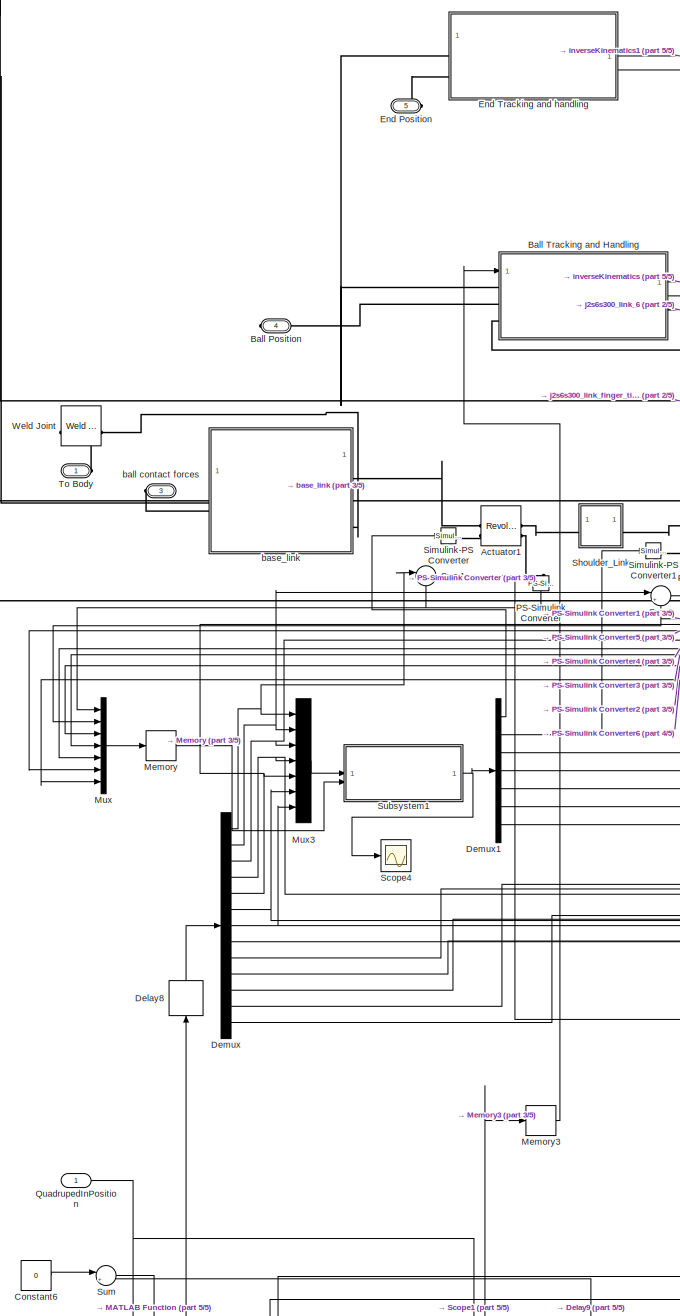
[diagram: Manipulator2 - part 1/5, central region]
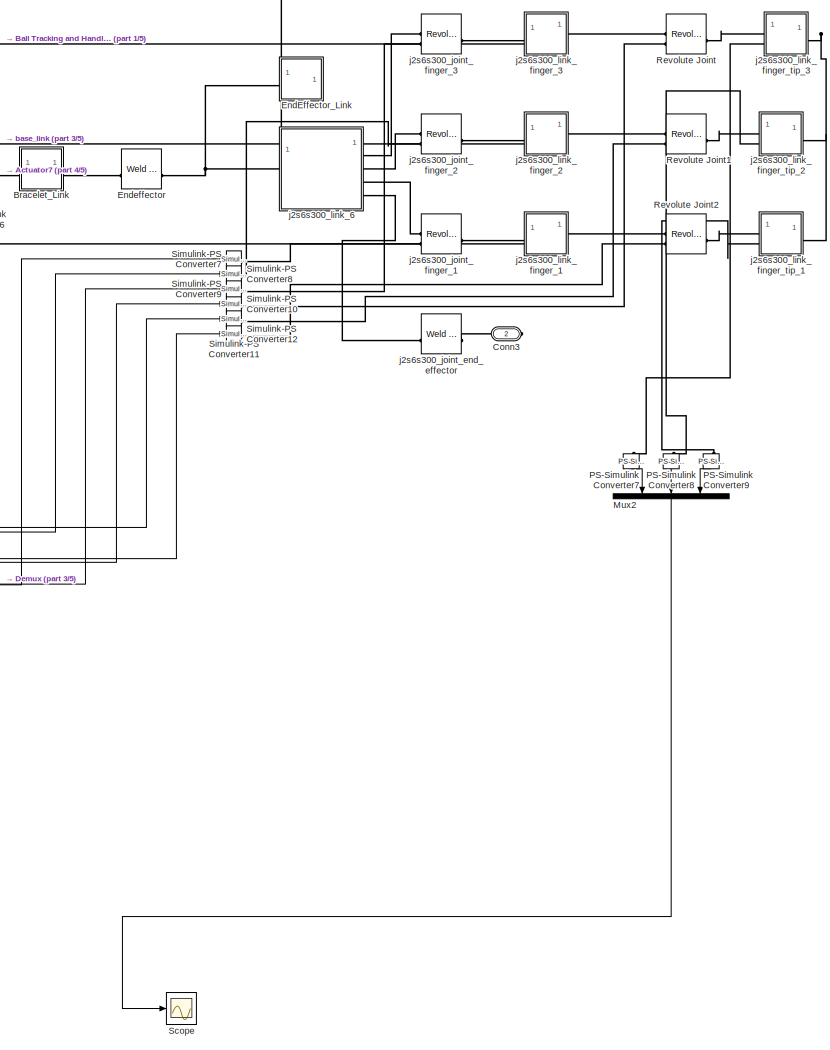
[diagram: Manipulator2 - part 2/5, middle right region]
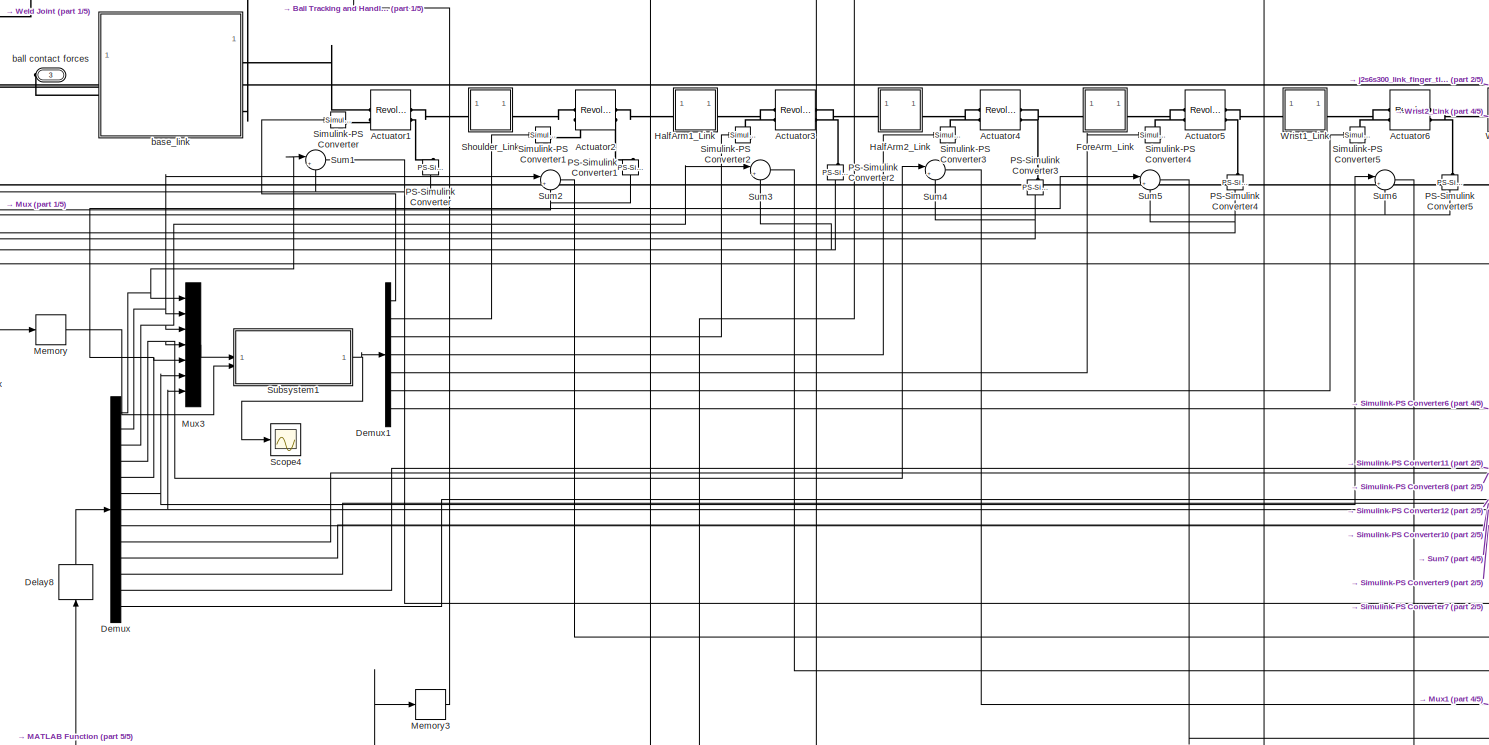
[diagram: Manipulator2 - part 3/5, central region]
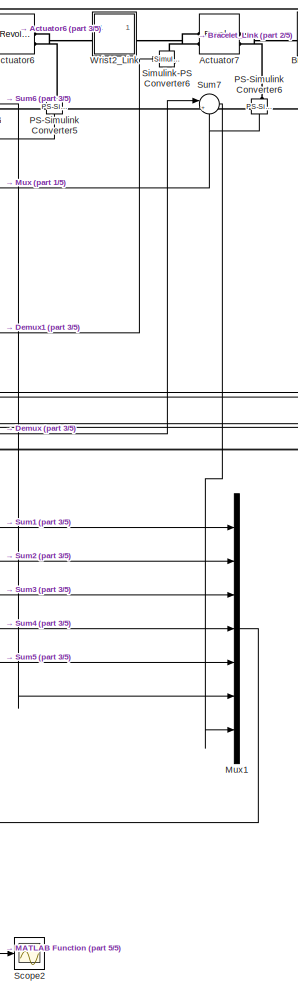
[diagram: Manipulator2 - part 4/5, middle right region]
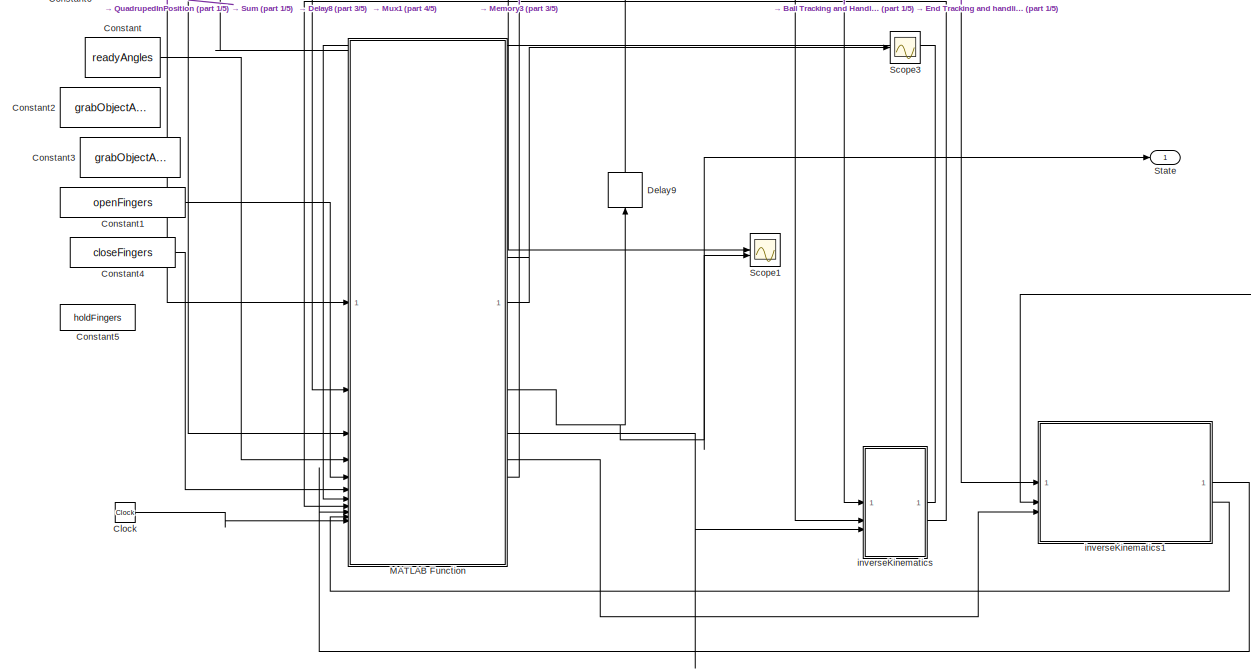
[diagram: Manipulator2 - part 5/5, bottom center region]
BLOCK [SubSystem] Manipulator2
BLOCK [Reference] Manipulator2/Actuator1  REF=sm_lib/Joints/Revolute Joint
  SourceBlock = sm_lib/Joints/Revolute Joint
  SourceType = Revolute Joint
BLOCK [Reference] Manipulator2/Actuator2  REF=sm_lib/Joints/Revolute Joint
  SourceBlock = sm_lib/Joints/Revolute Joint
  SourceType = Revolute Joint
BLOCK [Reference] Manipulator2/Actuator3  REF=sm_lib/Joints/Revolute Joint
  SourceBlock = sm_lib/Joints/Revolute Joint
  SourceType = Revolute Joint
BLOCK [Reference] Manipulator2/Actuator4  REF=sm_lib/Joints/Revolute Joint
  SourceBlock = sm_lib/Joints/Revolute Joint
  SourceType = Revolute Joint
BLOCK [Reference] Manipulator2/Actuator5  REF=sm_lib/Joints/Revolute Joint
  SourceBlock = sm_lib/Joints/Revolute Joint
  SourceType = Revolute Joint
BLOCK [Reference] Manipulator2/Actuator6  REF=sm_lib/Joints/Revolute Joint
  SourceBlock = sm_lib/Joints/Revolute Joint
  SourceType = Revolute Joint
BLOCK [Reference] Manipulator2/Actuator7  REF=sm_lib/Joints/Revolute Joint
  SourceBlock = sm_lib/Joints/Revolute Joint
  SourceType = Revolute Joint
BLOCK [PMIOPort] Manipulator2/Ball Position
  Port = 4
  Side = Right
BLOCK [SubSystem] Manipulator2/Ball Tracking and Handling
BLOCK [Reference] Manipulator2/Ball Tracking and Handling/BASE TO BALL  REF=sm_lib/Frames and
Transforms/Transform
Sensor
  SourceBlock = sm_lib/Frames and\nTransforms/Transform\nSensor
  SourceType = Transform\nSensor
BLOCK [PMIOPort] Manipulator2/Ball Tracking and Handling/Ball Position
  Port = 2
  Side = Left
BLOCK [PMIOPort] Manipulator2/Ball Tracking and Handling/Base
  Side = Left
BLOCK [PMIOPort] Manipulator2/Ball Tracking and Handling/Conn3
  Port = 3
  Side = Left
BLOCK [PMIOPort] Manipulator2/Ball Tracking and Handling/Conn4
  Port = 4
  Side = Right
BLOCK [SubSystem] Manipulator2/Ball Tracking and Handling/MATLAB Function1
  ErrorFcn = Stateflow.Translate.translate
  LibrarySourceBlock = simulink/User-Defined\nFunctions/MATLAB Function
  PermitHierarchicalResolution = ExplicitOnly
  SFBlockType = MATLAB Function
  TreatAsAtomicUnit = on
BLOCK [Demux] Manipulator2/Ball Tracking and Handling/MATLAB Function1/ Demux 
  Outputs = 1
BLOCK [S-Function] Manipulator2/Ball Tracking and Handling/MATLAB Function1/ SFunction 
  EnableBusSupport = on
  FunctionName = sf_sfun
  PortCounts = [3 3]
  SFcnIsStateOwnerBlock = off
  SFunctionDeploymentMode = off
  Tag = Stateflow S-Function 5
BLOCK [Terminator] Manipulator2/Ball Tracking and Handling/MATLAB Function1/ Terminator 
BLOCK [Outport] Manipulator2/Ball Tracking and Handling/MATLAB Function1/aboveObjectTransform
  Port = 2
BLOCK [Outport] Manipulator2/Ball Tracking and Handling/MATLAB Function1/objectTransform
BLOCK [Inport] Manipulator2/Ball Tracking and Handling/MATLAB Function1/x
BLOCK [Inport] Manipulator2/Ball Tracking and Handling/MATLAB Function1/y
  Port = 2
BLOCK [Inport] Manipulator2/Ball Tracking and Handling/MATLAB Function1/z
  Port = 3
BLOCK [Reference] Manipulator2/Ball Tracking and Handling/Object  REF=sm_lib/Body Elements/Spherical Solid
  SourceBlock = sm_lib/Body Elements/Spherical Solid
  SourceType = Spherical Solid
BLOCK [Reference] Manipulator2/Ball Tracking and Handling/PS-Simulink Converter11  REF=nesl_utility/PS-Simulink
Converter
  SourceBlock = nesl_utility/PS-Simulink\nConverter
  SourceType = PS-Simulink\nConverter
BLOCK [Reference] Manipulator2/Ball Tracking and Handling/PS-Simulink Converter12  REF=nesl_utility/PS-Simulink
Converter
  SourceBlock = nesl_utility/PS-Simulink\nConverter
  SourceType = PS-Simulink\nConverter
BLOCK [Reference] Manipulator2/Ball Tracking and Handling/PS-Simulink Converter13  REF=nesl_utility/PS-Simulink
Converter
  SourceBlock = nesl_utility/PS-Simulink\nConverter
  SourceType = PS-Simulink\nConverter
BLOCK [Reference] Manipulator2/Ball Tracking and Handling/Planar Joint  REF=sm_lib/Joints/Planar Joint
  SourceBlock = sm_lib/Joints/Planar Joint
  SourceType = Planar Joint
BLOCK [Reference] Manipulator2/Ball Tracking and Handling/Prismatic Joint  REF=sm_lib/Joints/Prismatic
Joint
  SourceBlock = sm_lib/Joints/Prismatic\nJoint
  SourceType = Prismatic\nJoint
BLOCK [SubSystem] Manipulator2/Ball Tracking and Handling/Subsystem
BLOCK [PMIOPort] Manipulator2/Ball Tracking and Handling/Subsystem/Conn1
  Side = Left
BLOCK [PMIOPort] Manipulator2/Ball Tracking and Handling/Subsystem/Conn2
  Port = 2
  Side = Left
BLOCK [PMIOPort] Manipulator2/Ball Tracking and Handling/Subsystem/Conn3
  Port = 3
  Side = Left
BLOCK [PMIOPort] Manipulator2/Ball Tracking and Handling/Subsystem/Conn4
  Port = 4
  Side = Right
BLOCK [PMIOPort] Manipulator2/Ball Tracking and Handling/Subsystem/Conn5
  Port = 5
  Side = Left
BLOCK [PMIOPort] Manipulator2/Ball Tracking and Handling/Subsystem/Conn6
  Port = 6
  Side = Right
BLOCK [PMIOPort] Manipulator2/Ball Tracking and Handling/Subsystem/Conn7
  Port = 7
  Side = Left
BLOCK [PMIOPort] Manipulator2/Ball Tracking and Handling/Subsystem/Conn8
  Port = 8
  Side = Right
BLOCK [PMIOPort] Manipulator2/Ball Tracking and Handling/Subsystem/Conn9
  Port = 9
  Side = Left
BLOCK [Reference] Manipulator2/Ball Tracking and Handling/Subsystem/PS Add  REF=fl_lib/Physical Signals/Functions/PS Add
  SourceBlock = fl_lib/Physical Signals/Functions/PS Add
  SourceType = PS Add
BLOCK [Reference] Manipulator2/Ball Tracking and Handling/Subsystem/PS Add1  REF=fl_lib/Physical Signals/Functions/PS Add
  SourceBlock = fl_lib/Physical Signals/Functions/PS Add
  SourceType = PS Add
BLOCK [Reference] Manipulator2/Ball Tracking and Handling/Subsystem/PS Add2  REF=fl_lib/Physical Signals/Functions/PS Add
  SourceBlock = fl_lib/Physical Signals/Functions/PS Add
  SourceType = PS Add
BLOCK [Reference] Manipulator2/Ball Tracking and Handling/Subsystem/PS Constant  REF=fl_lib/Physical Signals/Sources/PS Constant
  SourceBlock = fl_lib/Physical Signals/Sources/PS Constant
  SourceType = PS Constant
BLOCK [Reference] Manipulator2/Ball Tracking and Handling/Subsystem/PS Product  REF=fl_ps_legacy_lib/Legacy Physical
Signals/Functions/PS Product
  NameLocation = top
  SourceBlock = fl_ps_legacy_lib/Legacy Physical\nSignals/Functions/PS Product
  SourceType = PS Product
BLOCK [Reference] Manipulator2/Ball Tracking and Handling/Subsystem/PS Product1  REF=fl_ps_legacy_lib/Legacy Physical
Signals/Functions/PS Product
  NameLocation = top
  SourceBlock = fl_ps_legacy_lib/Legacy Physical\nSignals/Functions/PS Product
  SourceType = PS Product
BLOCK [Reference] Manipulator2/Ball Tracking and Handling/Subsystem/PS Product2  REF=fl_ps_legacy_lib/Legacy Physical
Signals/Functions/PS Product
  NameLocation = top
  SourceBlock = fl_ps_legacy_lib/Legacy Physical\nSignals/Functions/PS Product
  SourceType = PS Product
BLOCK [Reference] Manipulator2/Ball Tracking and Handling/Subsystem/PS Product3  REF=fl_ps_legacy_lib/Legacy Physical
Signals/Functions/PS Product
  NameLocation = top
  SourceBlock = fl_ps_legacy_lib/Legacy Physical\nSignals/Functions/PS Product
  SourceType = PS Product
BLOCK [Reference] Manipulator2/Ball Tracking and Handling/Subsystem/PS Product4  REF=fl_ps_legacy_lib/Legacy Physical
Signals/Functions/PS Product
  NameLocation = top
  SourceBlock = fl_ps_legacy_lib/Legacy Physical\nSignals/Functions/PS Product
  SourceType = PS Product
BLOCK [Reference] Manipulator2/Ball Tracking and Handling/Subsystem/PS Product5  REF=fl_ps_legacy_lib/Legacy Physical
Signals/Functions/PS Product
  NameLocation = top
  SourceBlock = fl_ps_legacy_lib/Legacy Physical\nSignals/Functions/PS Product
  SourceType = PS Product
BLOCK [Reference] Manipulator2/Ball Tracking and Handling/Subsystem/PS Subtract  REF=fl_lib/Physical Signals/Functions/PS Subtract
  SourceBlock = fl_lib/Physical Signals/Functions/PS Subtract
  SourceType = PS Subtract
BLOCK [Reference] Manipulator2/Ball Tracking and Handling/Subsystem/Simulink-PS Converter13  REF=nesl_utility/Simulink-PS
Converter
  SourceBlock = nesl_utility/Simulink-PS\nConverter
  SourceType = Simulink-PS\nConverter
BLOCK [Inport] Manipulator2/Ball Tracking and Handling/Subsystem/input0
BLOCK [Reference] Manipulator2/Ball Tracking and Handling/Transform Sensor  REF=sm_lib/Frames and
Transforms/Transform
Sensor
  SourceBlock = sm_lib/Frames and\nTransforms/Transform\nSensor
  SourceType = Transform\nSensor
BLOCK [Outport] Manipulator2/Ball Tracking and Handling/aboveObjectTransform
  Port = 2
BLOCK [Inport] Manipulator2/Ball Tracking and Handling/input0
BLOCK [Outport] Manipulator2/Ball Tracking and Handling/objectTransform
BLOCK [SubSystem] Manipulator2/Bracelet_Link
BLOCK [Reference] Manipulator2/Bracelet_Link/Actuator7_AxisInvTransform  REF=sm_lib/Frames and
Transforms/Rigid
Transform
  SourceBlock = sm_lib/Frames and\nTransforms/Rigid\nTransform
  SourceType = Rigid\nTransform
BLOCK [Reference] Manipulator2/Bracelet_Link/Endeffector_OriginTransform  REF=sm_lib/Frames and
Transforms/Rigid
Transform
  SourceBlock = sm_lib/Frames and\nTransforms/Rigid\nTransform
  SourceType = Rigid\nTransform
BLOCK [PMIOPort] Manipulator2/Bracelet_Link/F
  Side = Left
BLOCK [PMIOPort] Manipulator2/Bracelet_Link/F1
  Port = 2
  Side = Right
BLOCK [Reference] Manipulator2/Bracelet_Link/Inertia  REF=sm_lib/Body Elements/Inertia
  Commented = on
  SourceBlock = sm_lib/Body Elements/Inertia
  SourceType = Inertia
BLOCK [Reference] Manipulator2/Bracelet_Link/Inertia1  REF=sm_lib/Body Elements/Inertia
  SourceBlock = sm_lib/Body Elements/Inertia
  SourceType = Inertia
BLOCK [Reference] Manipulator2/Bracelet_Link/InertiaOriginTransform  REF=sm_lib/Frames and
Transforms/Rigid
Transform
  SourceBlock = sm_lib/Frames and\nTransforms/Rigid\nTransform
  SourceType = Rigid\nTransform
BLOCK [Reference] Manipulator2/Bracelet_Link/ReferenceFrame  REF=sm_lib/Frames and
Transforms/Reference
Frame
  SourceBlock = sm_lib/Frames and\nTransforms/Reference\nFrame
  SourceType = Reference\nFrame
BLOCK [Reference] Manipulator2/Bracelet_Link/Visual  REF=sm_lib/Body Elements/File Solid
  SourceBlock = sm_lib/Body Elements/File Solid
  SourceType = File Solid
BLOCK [Reference] Manipulator2/Bracelet_Link/VisualOriginTransform  REF=sm_lib/Frames and
Transforms/Rigid
Transform
  SourceBlock = sm_lib/Frames and\nTransforms/Rigid\nTransform
  SourceType = Rigid\nTransform
BLOCK [Clock] Manipulator2/Clock
BLOCK [PMIOPort] Manipulator2/Conn3
  Port = 2
  Side = Right
BLOCK [Constant] Manipulator2/Constant
  SampleTime = -1
  Value = readyAngles
BLOCK [Constant] Manipulator2/Constant1
  SampleTime = -1
  Value = openFingers
BLOCK [Constant] Manipulator2/Constant2
  SampleTime = -1
  Value = grabObjectAngles2
BLOCK [Constant] Manipulator2/Constant3
  SampleTime = -1
  Value = grabObjectAngles
BLOCK [Constant] Manipulator2/Constant4
  Value = closeFingers
BLOCK [Constant] Manipulator2/Constant5
  Value = holdFingers
BLOCK [Constant] Manipulator2/Constant6
  Value = 0
BLOCK [Delay] Manipulator2/Delay8
  DelayLength = 1
  InitialCondition = 0
  InputPortMap = u0
  NameLocation = right
BLOCK [Delay] Manipulator2/Delay9
  DelayLength = 1
  InitialCondition = 0
  InputPortMap = u0
  NameLocation = right
BLOCK [Demux] Manipulator2/Demux
  Outputs = 13
BLOCK [Demux] Manipulator2/Demux1
  Outputs = 7
BLOCK [PMIOPort] Manipulator2/End Position
  Port = 5
  Side = Right
BLOCK [SubSystem] Manipulator2/End Tracking and handling
BLOCK [Reference] Manipulator2/End Tracking and handling/BASE TO ENDPOS  REF=sm_lib/Frames and
Transforms/Transform
Sensor
  SourceBlock = sm_lib/Frames and\nTransforms/Transform\nSensor
  SourceType = Transform\nSensor
BLOCK [PMIOPort] Manipulator2/End Tracking and handling/Conn1
  Side = Left
BLOCK [Display] Manipulator2/End Tracking and handling/Display
  Decimation = 1
BLOCK [Display] Manipulator2/End Tracking and handling/Display1
  Decimation = 1
BLOCK [Display] Manipulator2/End Tracking and handling/Display2
  Decimation = 1
BLOCK [PMIOPort] Manipulator2/End Tracking and handling/End Position
  Port = 2
  Side = Left
BLOCK [SubSystem] Manipulator2/End Tracking and handling/MATLAB Function1
  ErrorFcn = Stateflow.Translate.translate
  LibrarySourceBlock = simulink/User-Defined\nFunctions/MATLAB Function
  PermitHierarchicalResolution = ExplicitOnly
  SFBlockType = MATLAB Function
  TreatAsAtomicUnit = on
BLOCK [Demux] Manipulator2/End Tracking and handling/MATLAB Function1/ Demux 
  Outputs = 1
BLOCK [S-Function] Manipulator2/End Tracking and handling/MATLAB Function1/ SFunction 
  EnableBusSupport = on
  FunctionName = sf_sfun
  PortCounts = [3 3]
  SFcnIsStateOwnerBlock = off
  SFunctionDeploymentMode = off
  Tag = Stateflow S-Function 8
BLOCK [Terminator] Manipulator2/End Tracking and handling/MATLAB Function1/ Terminator 
BLOCK [Outport] Manipulator2/End Tracking and handling/MATLAB Function1/aboveObjectTransform
  Port = 2
BLOCK [Outport] Manipulator2/End Tracking and handling/MATLAB Function1/objectTransform
BLOCK [Inport] Manipulator2/End Tracking and handling/MATLAB Function1/x
BLOCK [Inport] Manipulator2/End Tracking and handling/MATLAB Function1/y
  Port = 2
BLOCK [Inport] Manipulator2/End Tracking and handling/MATLAB Function1/z
  Port = 3
BLOCK [Reference] Manipulator2/End Tracking and handling/PS-Simulink Converter11  REF=nesl_utility/PS-Simulink
Converter
  SourceBlock = nesl_utility/PS-Simulink\nConverter
  SourceType = PS-Simulink\nConverter
BLOCK [Reference] Manipulator2/End Tracking and handling/PS-Simulink Converter12  REF=nesl_utility/PS-Simulink
Converter
  SourceBlock = nesl_utility/PS-Simulink\nConverter
  SourceType = PS-Simulink\nConverter
BLOCK [Reference] Manipulator2/End Tracking and handling/PS-Simulink Converter13  REF=nesl_utility/PS-Simulink
Converter
  SourceBlock = nesl_utility/PS-Simulink\nConverter
  SourceType = PS-Simulink\nConverter
BLOCK [Outport] Manipulator2/End Tracking and handling/aboveObjectTransform
  Port = 2
BLOCK [Outport] Manipulator2/End Tracking and handling/objectTransform
BLOCK [SubSystem] Manipulator2/EndEffector_Link
BLOCK [PMIOPort] Manipulator2/EndEffector_Link/F
  Side = Left
BLOCK [Reference] Manipulator2/EndEffector_Link/Inertia  REF=sm_lib/Body Elements/Inertia
  Commented = on
  SourceBlock = sm_lib/Body Elements/Inertia
  SourceType = Inertia
BLOCK [Reference] Manipulator2/EndEffector_Link/Inertia1  REF=sm_lib/Body Elements/Inertia
  SourceBlock = sm_lib/Body Elements/Inertia
  SourceType = Inertia
BLOCK [Reference] Manipulator2/EndEffector_Link/InertiaOriginTransform  REF=sm_lib/Frames and
Transforms/Rigid
Transform
  SourceBlock = sm_lib/Frames and\nTransforms/Rigid\nTransform
  SourceType = Rigid\nTransform
BLOCK [Reference] Manipulator2/EndEffector_Link/ReferenceFrame  REF=sm_lib/Frames and
Transforms/Reference
Frame
  SourceBlock = sm_lib/Frames and\nTransforms/Reference\nFrame
  SourceType = Reference\nFrame
BLOCK [Reference] Manipulator2/EndEffector_Link/Visual  REF=sm_lib/Body Elements/File Solid
  SourceBlock = sm_lib/Body Elements/File Solid
  SourceType = File Solid
BLOCK [Reference] Manipulator2/EndEffector_Link/VisualOriginTransform  REF=sm_lib/Frames and
Transforms/Rigid
Transform
  SourceBlock = sm_lib/Frames and\nTransforms/Rigid\nTransform
  SourceType = Rigid\nTransform
BLOCK [Reference] Manipulator2/Endeffector  REF=sm_lib/Joints/Weld Joint
  SourceBlock = sm_lib/Joints/Weld Joint
  SourceType = Weld Joint
BLOCK [SubSystem] Manipulator2/ForeArm_Link
BLOCK [Reference] Manipulator2/ForeArm_Link/Actuator4_AxisInvTransform  REF=sm_lib/Frames and
Transforms/Rigid
Transform
  SourceBlock = sm_lib/Frames and\nTransforms/Rigid\nTransform
  SourceType = Rigid\nTransform
BLOCK [Reference] Manipulator2/ForeArm_Link/Actuator5_AxisTransform  REF=sm_lib/Frames and
Transforms/Rigid
Transform
  SourceBlock = sm_lib/Frames and\nTransforms/Rigid\nTransform
  SourceType = Rigid\nTransform
BLOCK [Reference] Manipulator2/ForeArm_Link/Actuator5_OriginTransform  REF=sm_lib/Frames and
Transforms/Rigid
Transform
  SourceBlock = sm_lib/Frames and\nTransforms/Rigid\nTransform
  SourceType = Rigid\nTransform
BLOCK [PMIOPort] Manipulator2/ForeArm_Link/F
  Side = Left
BLOCK [PMIOPort] Manipulator2/ForeArm_Link/F1
  Port = 2
  Side = Right
BLOCK [Reference] Manipulator2/ForeArm_Link/Inertia  REF=sm_lib/Body Elements/Inertia
  Commented = on
  SourceBlock = sm_lib/Body Elements/Inertia
  SourceType = Inertia
BLOCK [Reference] Manipulator2/ForeArm_Link/Inertia1  REF=sm_lib/Body Elements/Inertia
  SourceBlock = sm_lib/Body Elements/Inertia
  SourceType = Inertia
BLOCK [Reference] Manipulator2/ForeArm_Link/InertiaOriginTransform  REF=sm_lib/Frames and
Transforms/Rigid
Transform
  SourceBlock = sm_lib/Frames and\nTransforms/Rigid\nTransform
  SourceType = Rigid\nTransform
BLOCK [Reference] Manipulator2/ForeArm_Link/ReferenceFrame  REF=sm_lib/Frames and
Transforms/Reference
Frame
  SourceBlock = sm_lib/Frames and\nTransforms/Reference\nFrame
  SourceType = Reference\nFrame
BLOCK [Reference] Manipulator2/ForeArm_Link/Visual  REF=sm_lib/Body Elements/File Solid
  SourceBlock = sm_lib/Body Elements/File Solid
  SourceType = File Solid
BLOCK [Reference] Manipulator2/ForeArm_Link/VisualOriginTransform  REF=sm_lib/Frames and
Transforms/Rigid
Transform
  SourceBlock = sm_lib/Frames and\nTransforms/Rigid\nTransform
  SourceType = Rigid\nTransform
BLOCK [SubSystem] Manipulator2/HalfArm1_Link
BLOCK [Reference] Manipulator2/HalfArm1_Link/Actuator2_AxisInvTransform  REF=sm_lib/Frames and
Transforms/Rigid
Transform
  SourceBlock = sm_lib/Frames and\nTransforms/Rigid\nTransform
  SourceType = Rigid\nTransform
BLOCK [Reference] Manipulator2/HalfArm1_Link/Actuator3_AxisTransform  REF=sm_lib/Frames and
Transforms/Rigid
Transform
  SourceBlock = sm_lib/Frames and\nTransforms/Rigid\nTransform
  SourceType = Rigid\nTransform
BLOCK [Reference] Manipulator2/HalfArm1_Link/Actuator3_OriginTransform  REF=sm_lib/Frames and
Transforms/Rigid
Transform
  SourceBlock = sm_lib/Frames and\nTransforms/Rigid\nTransform
  SourceType = Rigid\nTransform
BLOCK [PMIOPort] Manipulator2/HalfArm1_Link/F
  Side = Left
BLOCK [PMIOPort] Manipulator2/HalfArm1_Link/F1
  Port = 2
  Side = Right
BLOCK [Reference] Manipulator2/HalfArm1_Link/Inertia  REF=sm_lib/Body Elements/Inertia
  Commented = on
  SourceBlock = sm_lib/Body Elements/Inertia
  SourceType = Inertia
BLOCK [Reference] Manipulator2/HalfArm1_Link/Inertia1  REF=sm_lib/Body Elements/Inertia
  SourceBlock = sm_lib/Body Elements/Inertia
  SourceType = Inertia
BLOCK [Reference] Manipulator2/HalfArm1_Link/InertiaOriginTransform  REF=sm_lib/Frames and
Transforms/Rigid
Transform
  SourceBlock = sm_lib/Frames and\nTransforms/Rigid\nTransform
  SourceType = Rigid\nTransform
BLOCK [Reference] Manipulator2/HalfArm1_Link/ReferenceFrame  REF=sm_lib/Frames and
Transforms/Reference
Frame
  SourceBlock = sm_lib/Frames and\nTransforms/Reference\nFrame
  SourceType = Reference\nFrame
BLOCK [Reference] Manipulator2/HalfArm1_Link/Visual  REF=sm_lib/Body Elements/File Solid
  SourceBlock = sm_lib/Body Elements/File Solid
  SourceType = File Solid
BLOCK [Reference] Manipulator2/HalfArm1_Link/VisualOriginTransform  REF=sm_lib/Frames and
Transforms/Rigid
Transform
  SourceBlock = sm_lib/Frames and\nTransforms/Rigid\nTransform
  SourceType = Rigid\nTransform
BLOCK [SubSystem] Manipulator2/HalfArm2_Link
BLOCK [Reference] Manipulator2/HalfArm2_Link/Actuator3_AxisInvTransform  REF=sm_lib/Frames and
Transforms/Rigid
Transform
  SourceBlock = sm_lib/Frames and\nTransforms/Rigid\nTransform
  SourceType = Rigid\nTransform
BLOCK [Reference] Manipulator2/HalfArm2_Link/Actuator4_AxisTransform  REF=sm_lib/Frames and
Transforms/Rigid
Transform
  SourceBlock = sm_lib/Frames and\nTransforms/Rigid\nTransform
  SourceType = Rigid\nTransform
BLOCK [Reference] Manipulator2/HalfArm2_Link/Actuator4_OriginTransform  REF=sm_lib/Frames and
Transforms/Rigid
Transform
  SourceBlock = sm_lib/Frames and\nTransforms/Rigid\nTransform
  SourceType = Rigid\nTransform
BLOCK [PMIOPort] Manipulator2/HalfArm2_Link/F
  Side = Left
BLOCK [PMIOPort] Manipulator2/HalfArm2_Link/F1
  Port = 2
  Side = Right
BLOCK [Reference] Manipulator2/HalfArm2_Link/Inertia  REF=sm_lib/Body Elements/Inertia
  Commented = on
  SourceBlock = sm_lib/Body Elements/Inertia
  SourceType = Inertia
BLOCK [Reference] Manipulator2/HalfArm2_Link/Inertia1  REF=sm_lib/Body Elements/Inertia
  SourceBlock = sm_lib/Body Elements/Inertia
  SourceType = Inertia
BLOCK [Reference] Manipulator2/HalfArm2_Link/InertiaOriginTransform  REF=sm_lib/Frames and
Transforms/Rigid
Transform
  SourceBlock = sm_lib/Frames and\nTransforms/Rigid\nTransform
  SourceType = Rigid\nTransform
BLOCK [Reference] Manipulator2/HalfArm2_Link/ReferenceFrame  REF=sm_lib/Frames and
Transforms/Reference
Frame
  SourceBlock = sm_lib/Frames and\nTransforms/Reference\nFrame
  SourceType = Reference\nFrame
BLOCK [Reference] Manipulator2/HalfArm2_Link/Visual  REF=sm_lib/Body Elements/File Solid
  SourceBlock = sm_lib/Body Elements/File Solid
  SourceType = File Solid
BLOCK [Reference] Manipulator2/HalfArm2_Link/VisualOriginTransform  REF=sm_lib/Frames and
Transforms/Rigid
Transform
  SourceBlock = sm_lib/Frames and\nTransforms/Rigid\nTransform
  SourceType = Rigid\nTransform
BLOCK [SubSystem] Manipulator2/MATLAB Function
  ErrorFcn = Stateflow.Translate.translate
  PermitHierarchicalResolution = ExplicitOnly
  SFBlockType = MATLAB Function
  TreatAsAtomicUnit = on
BLOCK [Demux] Manipulator2/MATLAB Function/ Demux 
  Outputs = 1
BLOCK [S-Function] Manipulator2/MATLAB Function/ SFunction 
  EnableBusSupport = on
  FunctionName = sf_sfun
  PortCounts = [11 6]
  SFcnIsStateOwnerBlock = off
  SFunctionDeploymentMode = off
  Tag = Stateflow S-Function 9
BLOCK [Terminator] Manipulator2/MATLAB Function/ Terminator 
BLOCK [Inport] Manipulator2/MATLAB Function/aboveEndPos
  Port = 10
BLOCK [Inport] Manipulator2/MATLAB Function/aboveObjectPosition
  Port = 8
BLOCK [Outport] Manipulator2/MATLAB Function/ballGot
  Port = 5
BLOCK [Inport] Manipulator2/MATLAB Function/closeFingers
  Port = 6
BLOCK [Inport] Manipulator2/MATLAB Function/endPos
  Port = 9
BLOCK [Inport] Manipulator2/MATLAB Function/errorVals
  Port = 2
BLOCK [Outport] Manipulator2/MATLAB Function/getBallPos
  Port = 3
BLOCK [Outport] Manipulator2/MATLAB Function/getEndPos
  Port = 4
BLOCK [Inport] Manipulator2/MATLAB Function/objectPosition
  Port = 7
BLOCK [Inport] Manipulator2/MATLAB Function/openFingers
  Port = 5
BLOCK [Inport] Manipulator2/MATLAB Function/quadrupedInPosition
BLOCK [Inport] Manipulator2/MATLAB Function/readyAngles
  Port = 4
BLOCK [Inport] Manipulator2/MATLAB Function/state
  Port = 3
BLOCK [Outport] Manipulator2/MATLAB Function/stateOut
  Port = 2
BLOCK [Inport] Manipulator2/MATLAB Function/time
  Port = 11
BLOCK [Outport] Manipulator2/MATLAB Function/y
BLOCK [Memory] Manipulator2/Memory
BLOCK [Memory] Manipulator2/Memory3
BLOCK [Mux] Manipulator2/Mux
  DisplayOption = bar
  Inputs = 7
BLOCK [Mux] Manipulator2/Mux1
  DisplayOption = bar
  Inputs = 7
BLOCK [Mux] Manipulator2/Mux2
  DisplayOption = bar
  Inputs = 3
BLOCK [Mux] Manipulator2/Mux3
  DisplayOption = bar
  Inputs = 7
BLOCK [Reference] Manipulator2/PS-Simulink Converter  REF=nesl_utility/PS-Simulink
Converter
  NameLocation = left
  SourceBlock = nesl_utility/PS-Simulink\nConverter
  SourceType = PS-Simulink\nConverter
BLOCK [Reference] Manipulator2/PS-Simulink Converter1  REF=nesl_utility/PS-Simulink
Converter
  NameLocation = left
  SourceBlock = nesl_utility/PS-Simulink\nConverter
  SourceType = PS-Simulink\nConverter
BLOCK [Reference] Manipulator2/PS-Simulink Converter2  REF=nesl_utility/PS-Simulink
Converter
  NameLocation = left
  SourceBlock = nesl_utility/PS-Simulink\nConverter
  SourceType = PS-Simulink\nConverter
BLOCK [Reference] Manipulator2/PS-Simulink Converter3  REF=nesl_utility/PS-Simulink
Converter
  NameLocation = left
  SourceBlock = nesl_utility/PS-Simulink\nConverter
  SourceType = PS-Simulink\nConverter
BLOCK [Reference] Manipulator2/PS-Simulink Converter4  REF=nesl_utility/PS-Simulink
Converter
  NameLocation = left
  SourceBlock = nesl_utility/PS-Simulink\nConverter
  SourceType = PS-Simulink\nConverter
BLOCK [Reference] Manipulator2/PS-Simulink Converter5  REF=nesl_utility/PS-Simulink
Converter
  NameLocation = left
  SourceBlock = nesl_utility/PS-Simulink\nConverter
  SourceType = PS-Simulink\nConverter
BLOCK [Reference] Manipulator2/PS-Simulink Converter6  REF=nesl_utility/PS-Simulink
Converter
  NameLocation = left
  SourceBlock = nesl_utility/PS-Simulink\nConverter
  SourceType = PS-Simulink\nConverter
BLOCK [Reference] Manipulator2/PS-Simulink Converter7  REF=nesl_utility/PS-Simulink
Converter
  NameLocation = left
  SourceBlock = nesl_utility/PS-Simulink\nConverter
  SourceType = PS-Simulink\nConverter
BLOCK [Reference] Manipulator2/PS-Simulink Converter8  REF=nesl_utility/PS-Simulink
Converter
  NameLocation = right
  SourceBlock = nesl_utility/PS-Simulink\nConverter
  SourceType = PS-Simulink\nConverter
BLOCK [Reference] Manipulator2/PS-Simulink Converter9  REF=nesl_utility/PS-Simulink
Converter
  NameLocation = left
  SourceBlock = nesl_utility/PS-Simulink\nConverter
  SourceType = PS-Simulink\nConverter
BLOCK [Inport] Manipulator2/QuadrupedInPosition
BLOCK [Reference] Manipulator2/Revolute Joint  REF=sm_lib/Joints/Revolute Joint
  SourceBlock = sm_lib/Joints/Revolute Joint
  SourceType = Revolute Joint
BLOCK [Reference] Manipulator2/Revolute Joint1  REF=sm_lib/Joints/Revolute Joint
  SourceBlock = sm_lib/Joints/Revolute Joint
  SourceType = Revolute Joint
BLOCK [Reference] Manipulator2/Revolute Joint2  REF=sm_lib/Joints/Revolute Joint
  SourceBlock = sm_lib/Joints/Revolute Joint
  SourceType = Revolute Joint
BLOCK [Scope] Manipulator2/Scope
  Floating = off
  NumInputPorts = 1
  ScopeSpecificationString = Simulink.scopes.TimeScopeBlockCfg('CurrentConfiguration', extmgr.ConfigurationSet(extmgr.Configuration('Core','General UI',true),extmgr.Configuration('Core','Source UI',true),extmgr.Configuration('Sources','WiredSimulink',true),extmgr.Configuration('Visuals','Time Domain',true,'SerializedDisplays',{struct('MinYLimReal','-31.15334','MaxYLimReal','280.38008','YLabelReal','','MinYLimMag','0.00000','M...<+1553ch>
BLOCK [Scope] Manipulator2/Scope1
  Floating = off
  NumInputPorts = 2
  ScopeSpecificationString = Simulink.scopes.TimeScopeBlockCfg('CurrentConfiguration', extmgr.ConfigurationSet(extmgr.Configuration('Core','General UI',true),extmgr.Configuration('Core','Source UI',true),extmgr.Configuration('Sources','WiredSimulink',true,'DataLoggingVariableName','ScopeData1'),extmgr.Configuration('Visuals','Time Domain',true,'SerializedDisplays',{struct('MinYLimReal','-0.375','MaxYLimReal','4.00000','YLabel...<+1499ch>
BLOCK [Scope] Manipulator2/Scope2
  Floating = off
  NumInputPorts = 1
  ScopeSpecificationString = Simulink.scopes.TimeScopeBlockCfg('CurrentConfiguration', extmgr.ConfigurationSet(extmgr.Configuration('Core','General UI',true),extmgr.Configuration('Core','Source UI',true),extmgr.Configuration('Sources','WiredSimulink',true,'DataLoggingVariableName','ScopeData2'),extmgr.Configuration('Visuals','Time Domain',true,'SerializedDisplays',{struct('MinYLimReal','-0.36305','MaxYLimReal','0.34703','YLab...<+1490ch>
BLOCK [Scope] Manipulator2/Scope3
  Floating = off
  NumInputPorts = 1
  ScopeSpecificationString = Simulink.scopes.TimeScopeBlockCfg('CurrentConfiguration', extmgr.ConfigurationSet(extmgr.Configuration('Core','General UI',true),extmgr.Configuration('Core','Source UI',true),extmgr.Configuration('Sources','WiredSimulink',true,'DataLoggingVariableName','ScopeData3'),extmgr.Configuration('Visuals','Time Domain',true,'SerializedDisplays',{struct('MinYLimReal','-4.51002','MaxYLimReal','2.4828','YLabe...<+1664ch>
BLOCK [Scope] Manipulator2/Scope4
  Floating = off
  NumInputPorts = 1
  ScopeSpecificationString = Simulink.scopes.TimeScopeBlockCfg('CurrentConfiguration', extmgr.ConfigurationSet(extmgr.Configuration('Core','General UI',true),extmgr.Configuration('Core','Source UI',true),extmgr.Configuration('Sources','WiredSimulink',true,'DataLoggingVariableName','ScopeData2'),extmgr.Configuration('Visuals','Time Domain',true,'SerializedDisplays',{struct('MinYLimReal','-10.00000','MaxYLimReal','10.00000','YL...<+1511ch>
BLOCK [SubSystem] Manipulator2/Shoulder_Link
BLOCK [Reference] Manipulator2/Shoulder_Link/Actuator1_AxisInvTransform  REF=sm_lib/Frames and
Transforms/Rigid
Transform
  SourceBlock = sm_lib/Frames and\nTransforms/Rigid\nTransform
  SourceType = Rigid\nTransform
BLOCK [Reference] Manipulator2/Shoulder_Link/Actuator2_AxisTransform  REF=sm_lib/Frames and
Transforms/Rigid
Transform
  SourceBlock = sm_lib/Frames and\nTransforms/Rigid\nTransform
  SourceType = Rigid\nTransform
BLOCK [Reference] Manipulator2/Shoulder_Link/Actuator2_OriginTransform  REF=sm_lib/Frames and
Transforms/Rigid
Transform
  SourceBlock = sm_lib/Frames and\nTransforms/Rigid\nTransform
  SourceType = Rigid\nTransform
BLOCK [PMIOPort] Manipulator2/Shoulder_Link/F
  Side = Left
BLOCK [PMIOPort] Manipulator2/Shoulder_Link/F1
  Port = 2
  Side = Right
BLOCK [Reference] Manipulator2/Shoulder_Link/Inertia  REF=sm_lib/Body Elements/Inertia
  Commented = on
  SourceBlock = sm_lib/Body Elements/Inertia
  SourceType = Inertia
BLOCK [Reference] Manipulator2/Shoulder_Link/Inertia1  REF=sm_lib/Body Elements/Inertia
  SourceBlock = sm_lib/Body Elements/Inertia
  SourceType = Inertia
BLOCK [Reference] Manipulator2/Shoulder_Link/InertiaOriginTransform  REF=sm_lib/Frames and
Transforms/Rigid
Transform
  SourceBlock = sm_lib/Frames and\nTransforms/Rigid\nTransform
  SourceType = Rigid\nTransform
BLOCK [Reference] Manipulator2/Shoulder_Link/ReferenceFrame  REF=sm_lib/Frames and
Transforms/Reference
Frame
  SourceBlock = sm_lib/Frames and\nTransforms/Reference\nFrame
  SourceType = Reference\nFrame
BLOCK [Reference] Manipulator2/Shoulder_Link/Visual  REF=sm_lib/Body Elements/File Solid
  SourceBlock = sm_lib/Body Elements/File Solid
  SourceType = File Solid
BLOCK [Reference] Manipulator2/Shoulder_Link/VisualOriginTransform  REF=sm_lib/Frames and
Transforms/Rigid
Transform
  SourceBlock = sm_lib/Frames and\nTransforms/Rigid\nTransform
  SourceType = Rigid\nTransform
BLOCK [Reference] Manipulator2/Simulink-PS Converter  REF=nesl_utility/Simulink-PS
Converter
  SourceBlock = nesl_utility/Simulink-PS\nConverter
  SourceType = Simulink-PS\nConverter
BLOCK [Reference] Manipulator2/Simulink-PS Converter1  REF=nesl_utility/Simulink-PS
Converter
  SourceBlock = nesl_utility/Simulink-PS\nConverter
  SourceType = Simulink-PS\nConverter
BLOCK [Reference] Manipulator2/Simulink-PS Converter10  REF=nesl_utility/Simulink-PS
Converter
  SourceBlock = nesl_utility/Simulink-PS\nConverter
  SourceType = Simulink-PS\nConverter
BLOCK [Reference] Manipulator2/Simulink-PS Converter11  REF=nesl_utility/Simulink-PS
Converter
  SourceBlock = nesl_utility/Simulink-PS\nConverter
  SourceType = Simulink-PS\nConverter
BLOCK [Reference] Manipulator2/Simulink-PS Converter12  REF=nesl_utility/Simulink-PS
Converter
  SourceBlock = nesl_utility/Simulink-PS\nConverter
  SourceType = Simulink-PS\nConverter
BLOCK [Reference] Manipulator2/Simulink-PS Converter2  REF=nesl_utility/Simulink-PS
Converter
  SourceBlock = nesl_utility/Simulink-PS\nConverter
  SourceType = Simulink-PS\nConverter
BLOCK [Reference] Manipulator2/Simulink-PS Converter3  REF=nesl_utility/Simulink-PS
Converter
  SourceBlock = nesl_utility/Simulink-PS\nConverter
  SourceType = Simulink-PS\nConverter
BLOCK [Reference] Manipulator2/Simulink-PS Converter4  REF=nesl_utility/Simulink-PS
Converter
  SourceBlock = nesl_utility/Simulink-PS\nConverter
  SourceType = Simulink-PS\nConverter
BLOCK [Reference] Manipulator2/Simulink-PS Converter5  REF=nesl_utility/Simulink-PS
Converter
  SourceBlock = nesl_utility/Simulink-PS\nConverter
  SourceType = Simulink-PS\nConverter
BLOCK [Reference] Manipulator2/Simulink-PS Converter6  REF=nesl_utility/Simulink-PS
Converter
  SourceBlock = nesl_utility/Simulink-PS\nConverter
  SourceType = Simulink-PS\nConverter
BLOCK [Reference] Manipulator2/Simulink-PS Converter7  REF=nesl_utility/Simulink-PS
Converter
  SourceBlock = nesl_utility/Simulink-PS\nConverter
  SourceType = Simulink-PS\nConverter
BLOCK [Reference] Manipulator2/Simulink-PS Converter8  REF=nesl_utility/Simulink-PS
Converter
  SourceBlock = nesl_utility/Simulink-PS\nConverter
  SourceType = Simulink-PS\nConverter
BLOCK [Reference] Manipulator2/Simulink-PS Converter9  REF=nesl_utility/Simulink-PS
Converter
  SourceBlock = nesl_utility/Simulink-PS\nConverter
  SourceType = Simulink-PS\nConverter
BLOCK [Outport] Manipulator2/State
BLOCK [SubSystem] Manipulator2/Subsystem1
BLOCK [Outport] Manipulator2/Subsystem1/AngelPos
BLOCK [Clock] Manipulator2/Subsystem1/Clock
  Decimation = 100
BLOCK [Display] Manipulator2/Subsystem1/Display
  Decimation = 1
BLOCK [Display] Manipulator2/Subsystem1/Display1
  Decimation = 1
BLOCK [Display] Manipulator2/Subsystem1/Display2
  Decimation = 1
BLOCK [Display] Manipulator2/Subsystem1/Display3
  Decimation = 1
BLOCK [Display] Manipulator2/Subsystem1/Display4
  Decimation = 1
BLOCK [Display] Manipulator2/Subsystem1/Display5
  Decimation = 1
BLOCK [SubSystem] Manipulator2/Subsystem1/Manipulator interpolator
  ErrorFcn = Stateflow.Translate.translate
  PermitHierarchicalResolution = ExplicitOnly
  SFBlockType = MATLAB Function
  TreatAsAtomicUnit = on
BLOCK [Demux] Manipulator2/Subsystem1/Manipulator interpolator/ Demux 
  Outputs = 1
BLOCK [S-Function] Manipulator2/Subsystem1/Manipulator interpolator/ SFunction 
  EnableBusSupport = on
  FunctionName = sf_sfun
  PortCounts = [3 4]
  SFcnIsStateOwnerBlock = off
  SFunctionDeploymentMode = off
  Tag = Stateflow S-Function 10
BLOCK [Terminator] Manipulator2/Subsystem1/Manipulator interpolator/ Terminator 
BLOCK [Outport] Manipulator2/Subsystem1/Manipulator interpolator/angleRangeOut
BLOCK [Inport] Manipulator2/Subsystem1/Manipulator interpolator/currentAngles
  Port = 2
BLOCK [Outport] Manipulator2/Subsystem1/Manipulator interpolator/debug
  Port = 3
BLOCK [Inport] Manipulator2/Subsystem1/Manipulator interpolator/desiredAngles
BLOCK [Inport] Manipulator2/Subsystem1/Manipulator interpolator/time
  Port = 3
BLOCK [Outport] Manipulator2/Subsystem1/Manipulator interpolator/timeRangeOut
  Port = 2
BLOCK [SubSystem] Manipulator2/Subsystem1/Subsystem7
BLOCK [Outport] Manipulator2/Subsystem1/Subsystem7/Angle Pos
BLOCK [Demux] Manipulator2/Subsystem1/Subsystem7/Demux
  Outputs = 14
BLOCK [Demux] Manipulator2/Subsystem1/Subsystem7/Demux1
  Outputs = 14
BLOCK [Mux] Manipulator2/Subsystem1/Subsystem7/Mux
  DisplayOption = bar
  Inputs = 7
BLOCK [Mux] Manipulator2/Subsystem1/Subsystem7/Mux1
  DisplayOption = bar
  Inputs = 2
BLOCK [Mux] Manipulator2/Subsystem1/Subsystem7/Mux10
  DisplayOption = bar
  Inputs = 2
BLOCK [Mux] Manipulator2/Subsystem1/Subsystem7/Mux11
  DisplayOption = bar
  Inputs = 2
BLOCK [Mux] Manipulator2/Subsystem1/Subsystem7/Mux12
  DisplayOption = bar
  Inputs = 2
BLOCK [Mux] Manipulator2/Subsystem1/Subsystem7/Mux13
  DisplayOption = bar
  Inputs = 2
BLOCK [Mux] Manipulator2/Subsystem1/Subsystem7/Mux14
  DisplayOption = bar
  Inputs = 2
BLOCK [Mux] Manipulator2/Subsystem1/Subsystem7/Mux2
  DisplayOption = bar
  Inputs = 2
BLOCK [Mux] Manipulator2/Subsystem1/Subsystem7/Mux3
  DisplayOption = bar
  Inputs = 2
BLOCK [Mux] Manipulator2/Subsystem1/Subsystem7/Mux4
  DisplayOption = bar
  Inputs = 2
BLOCK [Mux] Manipulator2/Subsystem1/Subsystem7/Mux5
  DisplayOption = bar
  Inputs = 2
BLOCK [Mux] Manipulator2/Subsystem1/Subsystem7/Mux6
  DisplayOption = bar
  Inputs = 2
BLOCK [Mux] Manipulator2/Subsystem1/Subsystem7/Mux7
  DisplayOption = bar
  Inputs = 2
BLOCK [Mux] Manipulator2/Subsystem1/Subsystem7/Mux8
  DisplayOption = bar
  Inputs = 2
BLOCK [Mux] Manipulator2/Subsystem1/Subsystem7/Mux9
  DisplayOption = bar
  Inputs = 2
BLOCK [SubSystem] Manipulator2/Subsystem1/Subsystem7/Subsystem
BLOCK [Lookup_n-D] Manipulator2/Subsystem1/Subsystem7/Subsystem/1-D Lookup Table
  BreakpointsForDimension1 = [-5:5]
  BreakpointsForDimension1Source = Input port
  InputPortMap = u0,p221,p5
  InternalRulePriority = Speed
  NumberOfTableDimensions = 1
  RndMeth = Simplest
  Table = tanh([-5:5])
  TableSource = Input port
BLOCK [Display] Manipulator2/Subsystem1/Subsystem7/Subsystem/Display
  Decimation = 1
BLOCK [Outport] Manipulator2/Subsystem1/Subsystem7/Subsystem/anglePosition
BLOCK [Inport] Manipulator2/Subsystem1/Subsystem7/Subsystem/angleRange
  NameLocation = left
  Port = 2
BLOCK [Inport] Manipulator2/Subsystem1/Subsystem7/Subsystem/currentTime
  Port = 3
BLOCK [Inport] Manipulator2/Subsystem1/Subsystem7/Subsystem/timeValues
BLOCK [SubSystem] Manipulator2/Subsystem1/Subsystem7/Subsystem1
BLOCK [Lookup_n-D] Manipulator2/Subsystem1/Subsystem7/Subsystem1/1-D Lookup Table
  BreakpointsForDimension1 = [-5:5]
  BreakpointsForDimension1Source = Input port
  InputPortMap = u0,p221,p5
  InternalRulePriority = Speed
  NumberOfTableDimensions = 1
  RndMeth = Simplest
  Table = tanh([-5:5])
  TableSource = Input port
BLOCK [Outport] Manipulator2/Subsystem1/Subsystem7/Subsystem1/anglePosition
BLOCK [Inport] Manipulator2/Subsystem1/Subsystem7/Subsystem1/angleRange
  Port = 2
BLOCK [Inport] Manipulator2/Subsystem1/Subsystem7/Subsystem1/currentTime
  Port = 3
BLOCK [Inport] Manipulator2/Subsystem1/Subsystem7/Subsystem1/timeValues
BLOCK [SubSystem] Manipulator2/Subsystem1/Subsystem7/Subsystem2
BLOCK [Lookup_n-D] Manipulator2/Subsystem1/Subsystem7/Subsystem2/1-D Lookup Table
  BreakpointsForDimension1 = [-5:5]
  BreakpointsForDimension1Source = Input port
  InputPortMap = u0,p221,p5
  InternalRulePriority = Speed
  NumberOfTableDimensions = 1
  RndMeth = Simplest
  Table = tanh([-5:5])
  TableSource = Input port
BLOCK [Outport] Manipulator2/Subsystem1/Subsystem7/Subsystem2/anglePosition
BLOCK [Inport] Manipulator2/Subsystem1/Subsystem7/Subsystem2/angleRange
  Port = 2
BLOCK [Inport] Manipulator2/Subsystem1/Subsystem7/Subsystem2/currentTime
  Port = 3
BLOCK [Inport] Manipulator2/Subsystem1/Subsystem7/Subsystem2/timeValues
BLOCK [SubSystem] Manipulator2/Subsystem1/Subsystem7/Subsystem3
BLOCK [Lookup_n-D] Manipulator2/Subsystem1/Subsystem7/Subsystem3/1-D Lookup Table
  BreakpointsForDimension1 = [-5:5]
  BreakpointsForDimension1Source = Input port
  InputPortMap = u0,p221,p5
  InternalRulePriority = Speed
  NumberOfTableDimensions = 1
  RndMeth = Simplest
  Table = tanh([-5:5])
  TableSource = Input port
BLOCK [Outport] Manipulator2/Subsystem1/Subsystem7/Subsystem3/anglePosition
BLOCK [Inport] Manipulator2/Subsystem1/Subsystem7/Subsystem3/angleRange
  Port = 2
BLOCK [Inport] Manipulator2/Subsystem1/Subsystem7/Subsystem3/currentTime
  Port = 3
BLOCK [Inport] Manipulator2/Subsystem1/Subsystem7/Subsystem3/timeValues
BLOCK [SubSystem] Manipulator2/Subsystem1/Subsystem7/Subsystem4
BLOCK [Lookup_n-D] Manipulator2/Subsystem1/Subsystem7/Subsystem4/1-D Lookup Table
  BreakpointsForDimension1 = [-5:5]
  BreakpointsForDimension1Source = Input port
  InputPortMap = u0,p221,p5
  InternalRulePriority = Speed
  NumberOfTableDimensions = 1
  RndMeth = Simplest
  Table = tanh([-5:5])
  TableSource = Input port
BLOCK [Outport] Manipulator2/Subsystem1/Subsystem7/Subsystem4/anglePosition
BLOCK [Inport] Manipulator2/Subsystem1/Subsystem7/Subsystem4/angleRange
  Port = 2
BLOCK [Inport] Manipulator2/Subsystem1/Subsystem7/Subsystem4/currentTime
  Port = 3
BLOCK [Inport] Manipulator2/Subsystem1/Subsystem7/Subsystem4/timeValues
BLOCK [SubSystem] Manipulator2/Subsystem1/Subsystem7/Subsystem5
BLOCK [Lookup_n-D] Manipulator2/Subsystem1/Subsystem7/Subsystem5/1-D Lookup Table
  BreakpointsForDimension1 = [-5:5]
  BreakpointsForDimension1Source = Input port
  InputPortMap = u0,p221,p5
  InternalRulePriority = Speed
  NumberOfTableDimensions = 1
  RndMeth = Simplest
  Table = tanh([-5:5])
  TableSource = Input port
BLOCK [Outport] Manipulator2/Subsystem1/Subsystem7/Subsystem5/anglePosition
BLOCK [Inport] Manipulator2/Subsystem1/Subsystem7/Subsystem5/angleRange
  Port = 2
BLOCK [Inport] Manipulator2/Subsystem1/Subsystem7/Subsystem5/currentTime
  Port = 3
BLOCK [Inport] Manipulator2/Subsystem1/Subsystem7/Subsystem5/timeValues
BLOCK [SubSystem] Manipulator2/Subsystem1/Subsystem7/Subsystem6
BLOCK [Lookup_n-D] Manipulator2/Subsystem1/Subsystem7/Subsystem6/1-D Lookup Table
  BreakpointsForDimension1 = [-5:5]
  BreakpointsForDimension1Source = Input port
  InputPortMap = u0,p221,p5
  InternalRulePriority = Speed
  NumberOfTableDimensions = 1
  RndMeth = Simplest
  Table = tanh([-5:5])
  TableSource = Input port
BLOCK [Outport] Manipulator2/Subsystem1/Subsystem7/Subsystem6/anglePosition
BLOCK [Inport] Manipulator2/Subsystem1/Subsystem7/Subsystem6/angleRange
  Port = 2
BLOCK [Inport] Manipulator2/Subsystem1/Subsystem7/Subsystem6/currentTime
  Port = 3
BLOCK [Inport] Manipulator2/Subsystem1/Subsystem7/Subsystem6/timeValues
BLOCK [Inport] Manipulator2/Subsystem1/Subsystem7/angleRange
  Port = 3
BLOCK [Inport] Manipulator2/Subsystem1/Subsystem7/currentTime
  Port = 2
BLOCK [Inport] Manipulator2/Subsystem1/Subsystem7/timeValues
  PortDimensions = [1 14]
BLOCK [Inport] Manipulator2/Subsystem1/currentAngles
  Port = 2
BLOCK [Inport] Manipulator2/Subsystem1/desiredAngles
BLOCK [Sum] Manipulator2/Sum
  Inputs = |++
BLOCK [Sum] Manipulator2/Sum1
  Inputs = |+-
BLOCK [Sum] Manipulator2/Sum2
  Inputs = |+-
BLOCK [Sum] Manipulator2/Sum3
  Inputs = |+-
BLOCK [Sum] Manipulator2/Sum4
  Inputs = |+-
BLOCK [Sum] Manipulator2/Sum5
  Inputs = |+-
BLOCK [Sum] Manipulator2/Sum6
  Inputs = |+-
BLOCK [Sum] Manipulator2/Sum7
  Inputs = |+-
BLOCK [PMIOPort] Manipulator2/To Body
  Side = Right
BLOCK [Reference] Manipulator2/Weld Joint  REF=sm_lib/Joints/Weld Joint
  SourceBlock = sm_lib/Joints/Weld Joint
  SourceType = Weld Joint
BLOCK [SubSystem] Manipulator2/Wrist1_Link
BLOCK [Reference] Manipulator2/Wrist1_Link/Actuator5_AxisInvTransform  REF=sm_lib/Frames and
Transforms/Rigid
Transform
  SourceBlock = sm_lib/Frames and\nTransforms/Rigid\nTransform
  SourceType = Rigid\nTransform
BLOCK [Reference] Manipulator2/Wrist1_Link/Actuator6_AxisTransform  REF=sm_lib/Frames and
Transforms/Rigid
Transform
  SourceBlock = sm_lib/Frames and\nTransforms/Rigid\nTransform
  SourceType = Rigid\nTransform
BLOCK [Reference] Manipulator2/Wrist1_Link/Actuator6_OriginTransform  REF=sm_lib/Frames and
Transforms/Rigid
Transform
  SourceBlock = sm_lib/Frames and\nTransforms/Rigid\nTransform
  SourceType = Rigid\nTransform
BLOCK [PMIOPort] Manipulator2/Wrist1_Link/F
  Side = Left
BLOCK [PMIOPort] Manipulator2/Wrist1_Link/F1
  Port = 2
  Side = Right
BLOCK [Reference] Manipulator2/Wrist1_Link/Inertia  REF=sm_lib/Body Elements/Inertia
  Commented = on
  SourceBlock = sm_lib/Body Elements/Inertia
  SourceType = Inertia
BLOCK [Reference] Manipulator2/Wrist1_Link/Inertia1  REF=sm_lib/Body Elements/Inertia
  SourceBlock = sm_lib/Body Elements/Inertia
  SourceType = Inertia
BLOCK [Reference] Manipulator2/Wrist1_Link/InertiaOriginTransform  REF=sm_lib/Frames and
Transforms/Rigid
Transform
  SourceBlock = sm_lib/Frames and\nTransforms/Rigid\nTransform
  SourceType = Rigid\nTransform
BLOCK [Reference] Manipulator2/Wrist1_Link/ReferenceFrame  REF=sm_lib/Frames and
Transforms/Reference
Frame
  SourceBlock = sm_lib/Frames and\nTransforms/Reference\nFrame
  SourceType = Reference\nFrame
BLOCK [Reference] Manipulator2/Wrist1_Link/Visual  REF=sm_lib/Body Elements/File Solid
  SourceBlock = sm_lib/Body Elements/File Solid
  SourceType = File Solid
BLOCK [Reference] Manipulator2/Wrist1_Link/VisualOriginTransform  REF=sm_lib/Frames and
Transforms/Rigid
Transform
  SourceBlock = sm_lib/Frames and\nTransforms/Rigid\nTransform
  SourceType = Rigid\nTransform
BLOCK [SubSystem] Manipulator2/Wrist2_Link
BLOCK [Reference] Manipulator2/Wrist2_Link/Actuator6_AxisInvTransform  REF=sm_lib/Frames and
Transforms/Rigid
Transform
  SourceBlock = sm_lib/Frames and\nTransforms/Rigid\nTransform
  SourceType = Rigid\nTransform
BLOCK [Reference] Manipulator2/Wrist2_Link/Actuator7_AxisTransform  REF=sm_lib/Frames and
Transforms/Rigid
Transform
  SourceBlock = sm_lib/Frames and\nTransforms/Rigid\nTransform
  SourceType = Rigid\nTransform
BLOCK [Reference] Manipulator2/Wrist2_Link/Actuator7_OriginTransform  REF=sm_lib/Frames and
Transforms/Rigid
Transform
  SourceBlock = sm_lib/Frames and\nTransforms/Rigid\nTransform
  SourceType = Rigid\nTransform
BLOCK [PMIOPort] Manipulator2/Wrist2_Link/F
  Side = Left
BLOCK [PMIOPort] Manipulator2/Wrist2_Link/F1
  Port = 2
  Side = Right
BLOCK [Reference] Manipulator2/Wrist2_Link/Inertia  REF=sm_lib/Body Elements/Inertia
  Commented = on
  SourceBlock = sm_lib/Body Elements/Inertia
  SourceType = Inertia
BLOCK [Reference] Manipulator2/Wrist2_Link/Inertia1  REF=sm_lib/Body Elements/Inertia
  SourceBlock = sm_lib/Body Elements/Inertia
  SourceType = Inertia
BLOCK [Reference] Manipulator2/Wrist2_Link/InertiaOriginTransform  REF=sm_lib/Frames and
Transforms/Rigid
Transform
  SourceBlock = sm_lib/Frames and\nTransforms/Rigid\nTransform
  SourceType = Rigid\nTransform
BLOCK [Reference] Manipulator2/Wrist2_Link/ReferenceFrame  REF=sm_lib/Frames and
Transforms/Reference
Frame
  SourceBlock = sm_lib/Frames and\nTransforms/Reference\nFrame
  SourceType = Reference\nFrame
BLOCK [Reference] Manipulator2/Wrist2_Link/Visual  REF=sm_lib/Body Elements/File Solid
  SourceBlock = sm_lib/Body Elements/File Solid
  SourceType = File Solid
BLOCK [Reference] Manipulator2/Wrist2_Link/VisualOriginTransform  REF=sm_lib/Frames and
Transforms/Rigid
Transform
  SourceBlock = sm_lib/Frames and\nTransforms/Rigid\nTransform
  SourceType = Rigid\nTransform
BLOCK [PMIOPort] Manipulator2/ball contact forces
  Port = 3
  Side = Right
BLOCK [SubSystem] Manipulator2/base_link
BLOCK [Reference] Manipulator2/base_link/Actuator1_AxisTransform  REF=sm_lib/Frames and
Transforms/Rigid
Transform
  SourceBlock = sm_lib/Frames and\nTransforms/Rigid\nTransform
  SourceType = Rigid\nTransform
BLOCK [Reference] Manipulator2/base_link/Actuator1_OriginTransform  REF=sm_lib/Frames and
Transforms/Rigid
Transform
  SourceBlock = sm_lib/Frames and\nTransforms/Rigid\nTransform
  SourceType = Rigid\nTransform
BLOCK [PMIOPort] Manipulator2/base_link/Ball Contact
  Port = 2
  Side = Right
BLOCK [PMIOPort] Manipulator2/base_link/F1
  Side = Right
BLOCK [PMIOPort] Manipulator2/base_link/Floor Contact
  Port = 4
  Side = Left
BLOCK [Reference] Manipulator2/base_link/Inertia  REF=sm_lib/Body Elements/Inertia
  Commented = on
  SourceBlock = sm_lib/Body Elements/Inertia
  SourceType = Inertia
BLOCK [Reference] Manipulator2/base_link/Inertia1  REF=sm_lib/Body Elements/Inertia
  SourceBlock = sm_lib/Body Elements/Inertia
  SourceType = Inertia
BLOCK [Reference] Manipulator2/base_link/InertiaOriginTransform  REF=sm_lib/Frames and
Transforms/Rigid
Transform
  SourceBlock = sm_lib/Frames and\nTransforms/Rigid\nTransform
  SourceType = Rigid\nTransform
BLOCK [Reference] Manipulator2/base_link/ReferenceFrame  REF=sm_lib/Frames and
Transforms/Reference
Frame
  SourceBlock = sm_lib/Frames and\nTransforms/Reference\nFrame
  SourceType = Reference\nFrame
BLOCK [Reference] Manipulator2/base_link/Spatial Contact Force1  REF=sm_lib/Forces and
Torques/Spatial
Contact Force
  SourceBlock = sm_lib/Forces and\nTorques/Spatial\nContact Force
  SourceType = Spatial\nContact Force
BLOCK [Reference] Manipulator2/base_link/Spatial Contact Force2  REF=sm_lib/Forces and
Torques/Spatial
Contact Force
  SourceBlock = sm_lib/Forces and\nTorques/Spatial\nContact Force
  SourceType = Spatial\nContact Force
BLOCK [PMIOPort] Manipulator2/base_link/To Body
  Port = 3
  Side = Right
BLOCK [Reference] Manipulator2/base_link/Visual  REF=sm_lib/Body Elements/File Solid
  SourceBlock = sm_lib/Body Elements/File Solid
  SourceType = File Solid
BLOCK [Reference] Manipulator2/base_link/VisualOriginTransform  REF=sm_lib/Frames and
Transforms/Rigid
Transform
  SourceBlock = sm_lib/Frames and\nTransforms/Rigid\nTransform
  SourceType = Rigid\nTransform
BLOCK [SubSystem] Manipulator2/inverseKinematics
BLOCK [Delay] Manipulator2/inverseKinematics/Delay1
  DelayLength = 1
  InputPortMap = u0
BLOCK [If] Manipulator2/inverseKinematics/If
  IfExpression = u1==1&u2==0
  NumInputs = 2
BLOCK [SubSystem] Manipulator2/inverseKinematics/If Action Subsystem
  TreatAsAtomicUnit = on
BLOCK [ActionPort] Manipulator2/inverseKinematics/If Action Subsystem/Action Port
  ActionPortLabel = if(u1==1&u2==0)
BLOCK [Constant] Manipulator2/inverseKinematics/If Action Subsystem/Constant7
  Value = inverseKinematicWeights
BLOCK [Constant] Manipulator2/inverseKinematics/If Action Subsystem/Constant8
  Value = homeAngles
BLOCK [Reference] Manipulator2/inverseKinematics/If Action Subsystem/Inverse Kinematics  REF=robotmaniplib/Inverse Kinematics
  SourceBlock = robotmaniplib/Inverse Kinematics
  SourceType = Inverse Kinematics
BLOCK [Inport] Manipulator2/inverseKinematics/If Action Subsystem/T
BLOCK [Outport] Manipulator2/inverseKinematics/If Action Subsystem/objectPosition
BLOCK [SubSystem] Manipulator2/inverseKinematics/If Action Subsystem1
  TreatAsAtomicUnit = on
BLOCK [ActionPort] Manipulator2/inverseKinematics/If Action Subsystem1/Action Port
  ActionPortLabel = else
BLOCK [SubSystem] Manipulator2/inverseKinematics/If Action Subsystem2
  TreatAsAtomicUnit = on
BLOCK [ActionPort] Manipulator2/inverseKinematics/If Action Subsystem2/Action Port
  ActionPortLabel = if(u1==1&u2==0)
BLOCK [Constant] Manipulator2/inverseKinematics/If Action Subsystem2/Constant7
  Value = inverseKinematicWeights
BLOCK [Constant] Manipulator2/inverseKinematics/If Action Subsystem2/Constant8
  Value = homeAngles
BLOCK [Reference] Manipulator2/inverseKinematics/If Action Subsystem2/Inverse Kinematics  REF=robotmaniplib/Inverse Kinematics
  SourceBlock = robotmaniplib/Inverse Kinematics
  SourceType = Inverse Kinematics
BLOCK [Inport] Manipulator2/inverseKinematics/If Action Subsystem2/T
BLOCK [Outport] Manipulator2/inverseKinematics/If Action Subsystem2/objectPosition
BLOCK [SubSystem] Manipulator2/inverseKinematics/If Action Subsystem3
  TreatAsAtomicUnit = on
BLOCK [ActionPort] Manipulator2/inverseKinematics/If Action Subsystem3/Action Port
  ActionPortLabel = else
BLOCK [If] Manipulator2/inverseKinematics/If1
  IfExpression = u1==1&u2==0
  NumInputs = 2
BLOCK [Inport] Manipulator2/inverseKinematics/In3
  Port = 3
BLOCK [Memory] Manipulator2/inverseKinematics/Memory1
BLOCK [Memory] Manipulator2/inverseKinematics/Memory2
BLOCK [Outport] Manipulator2/inverseKinematics/Out2
BLOCK [Outport] Manipulator2/inverseKinematics/Out4
  Port = 2
BLOCK [Inport] Manipulator2/inverseKinematics/T
BLOCK [Inport] Manipulator2/inverseKinematics/T1
  Port = 2
BLOCK [SubSystem] Manipulator2/inverseKinematics1
BLOCK [Delay] Manipulator2/inverseKinematics1/Delay1
  DelayLength = 1
  InputPortMap = u0
BLOCK [If] Manipulator2/inverseKinematics1/If
  IfExpression = u1==1&u2==0
  NumInputs = 2
BLOCK [SubSystem] Manipulator2/inverseKinematics1/If Action Subsystem
  TreatAsAtomicUnit = on
BLOCK [ActionPort] Manipulator2/inverseKinematics1/If Action Subsystem/Action Port
  ActionPortLabel = if(u1==1&u2==0)
BLOCK [Constant] Manipulator2/inverseKinematics1/If Action Subsystem/Constant7
  Value = inverseKinematicWeights
BLOCK [Constant] Manipulator2/inverseKinematics1/If Action Subsystem/Constant8
  Value = homeAngles
BLOCK [Reference] Manipulator2/inverseKinematics1/If Action Subsystem/Inverse Kinematics  REF=robotmaniplib/Inverse Kinematics
  SourceBlock = robotmaniplib/Inverse Kinematics
  SourceType = Inverse Kinematics
BLOCK [Inport] Manipulator2/inverseKinematics1/If Action Subsystem/T
BLOCK [Outport] Manipulator2/inverseKinematics1/If Action Subsystem/objectPosition
BLOCK [SubSystem] Manipulator2/inverseKinematics1/If Action Subsystem1
  TreatAsAtomicUnit = on
BLOCK [ActionPort] Manipulator2/inverseKinematics1/If Action Subsystem1/Action Port
  ActionPortLabel = else
BLOCK [SubSystem] Manipulator2/inverseKinematics1/If Action Subsystem2
  TreatAsAtomicUnit = on
BLOCK [ActionPort] Manipulator2/inverseKinematics1/If Action Subsystem2/Action Port
  ActionPortLabel = if(u1==1&u2==0)
BLOCK [Constant] Manipulator2/inverseKinematics1/If Action Subsystem2/Constant7
  Value = inverseKinematicWeights
BLOCK [Constant] Manipulator2/inverseKinematics1/If Action Subsystem2/Constant8
  Value = homeAngles
BLOCK [Reference] Manipulator2/inverseKinematics1/If Action Subsystem2/Inverse Kinematics  REF=robotmaniplib/Inverse Kinematics
  SourceBlock = robotmaniplib/Inverse Kinematics
  SourceType = Inverse Kinematics
BLOCK [Inport] Manipulator2/inverseKinematics1/If Action Subsystem2/T
BLOCK [Outport] Manipulator2/inverseKinematics1/If Action Subsystem2/objectPosition
BLOCK [SubSystem] Manipulator2/inverseKinematics1/If Action Subsystem3
  TreatAsAtomicUnit = on
BLOCK [ActionPort] Manipulator2/inverseKinematics1/If Action Subsystem3/Action Port
  ActionPortLabel = else
BLOCK [If] Manipulator2/inverseKinematics1/If1
  IfExpression = u1==1&u2==0
  NumInputs = 2
BLOCK [Memory] Manipulator2/inverseKinematics1/Memory1
BLOCK [Memory] Manipulator2/inverseKinematics1/Memory2
BLOCK [Inport] Manipulator2/inverseKinematics1/T
BLOCK [Inport] Manipulator2/inverseKinematics1/T1
  Port = 2
BLOCK [Outport] Manipulator2/inverseKinematics1/aboveEndPos
  Port = 2
BLOCK [Outport] Manipulator2/inverseKinematics1/endPos
BLOCK [Inport] Manipulator2/inverseKinematics1/getEndPos
  Port = 3
BLOCK [Reference] Manipulator2/j2s6s300_joint_end_effector  REF=sm_lib/Joints/Weld Joint
  SourceBlock = sm_lib/Joints/Weld Joint
  SourceType = Weld Joint
BLOCK [Reference] Manipulator2/j2s6s300_joint_finger_1  REF=sm_lib/Joints/Revolute Joint
  SourceBlock = sm_lib/Joints/Revolute Joint
  SourceType = Revolute Joint
BLOCK [Reference] Manipulator2/j2s6s300_joint_finger_2  REF=sm_lib/Joints/Revolute Joint
  SourceBlock = sm_lib/Joints/Revolute Joint
  SourceType = Revolute Joint
BLOCK [Reference] Manipulator2/j2s6s300_joint_finger_3  REF=sm_lib/Joints/Revolute Joint
  SourceBlock = sm_lib/Joints/Revolute Joint
  SourceType = Revolute Joint
BLOCK [SubSystem] Manipulator2/j2s6s300_link_6
  PortSchema = {"entries":[{"content":{"sides":[{"content":{"connectorIds":["LConn1"]},"type":"ConnectorPlacement.EquallySpacedRectSide","uuid":"a0fae4b8-f949-4408-8ee2-cc86bdb1eb12"},{"content":{"connectorIds":["RConn1","RConn2","RConn3","RConn4"],"side":"RIGHT"},"type":"ConnectorPlacement.EquallySpacedRectSide","uuid":"ca51dbf6-a0e7-48f0-bcd0-b9e56b3169a4"},{"content":{"connectorIds":["LConn2"],"side":"TOP"},"...<+280ch>
BLOCK [PMIOPort] Manipulator2/j2s6s300_link_6/F
  Side = Left
BLOCK [PMIOPort] Manipulator2/j2s6s300_link_6/F1
  Port = 6
  Side = Right
BLOCK [PMIOPort] Manipulator2/j2s6s300_link_6/F2
  Port = 5
  Side = Right
BLOCK [PMIOPort] Manipulator2/j2s6s300_link_6/F3
  Port = 4
  Side = Right
BLOCK [PMIOPort] Manipulator2/j2s6s300_link_6/F4
  Port = 3
  Side = Right
BLOCK [PMIOPort] Manipulator2/j2s6s300_link_6/F5
  Port = 2
  Side = Left
BLOCK [Reference] Manipulator2/j2s6s300_link_6/Inertia  REF=sm_lib/Body Elements/Inertia
  Commented = on
  SourceBlock = sm_lib/Body Elements/Inertia
  SourceType = Inertia
BLOCK [Reference] Manipulator2/j2s6s300_link_6/Inertia1  REF=sm_lib/Body Elements/Inertia
  SourceBlock = sm_lib/Body Elements/Inertia
  SourceType = Inertia
BLOCK [Reference] Manipulator2/j2s6s300_link_6/InertiaOriginTransform  REF=sm_lib/Frames and
Transforms/Rigid
Transform
  SourceBlock = sm_lib/Frames and\nTransforms/Rigid\nTransform
  SourceType = Rigid\nTransform
BLOCK [Reference] Manipulator2/j2s6s300_link_6/ReferenceFrame  REF=sm_lib/Frames and
Transforms/Reference
Frame
  SourceBlock = sm_lib/Frames and\nTransforms/Reference\nFrame
  SourceType = Reference\nFrame
BLOCK [Reference] Manipulator2/j2s6s300_link_6/Rigid Transform  REF=sm_lib/Frames and
Transforms/Rigid
Transform
  SourceBlock = sm_lib/Frames and\nTransforms/Rigid\nTransform
  SourceType = Rigid\nTransform
BLOCK [Reference] Manipulator2/j2s6s300_link_6/Visual  REF=sm_lib/Body Elements/File Solid
  SourceBlock = sm_lib/Body Elements/File Solid
  SourceType = File Solid
BLOCK [Reference] Manipulator2/j2s6s300_link_6/Visual1  REF=sm_lib/Body Elements/File Solid
  SourceBlock = sm_lib/Body Elements/File Solid
  SourceType = File Solid
BLOCK [Reference] Manipulator2/j2s6s300_link_6/VisualOrigin1Transform  REF=sm_lib/Frames and
Transforms/Rigid
Transform
  SourceBlock = sm_lib/Frames and\nTransforms/Rigid\nTransform
  SourceType = Rigid\nTransform
BLOCK [Reference] Manipulator2/j2s6s300_link_6/VisualOriginTransform  REF=sm_lib/Frames and
Transforms/Rigid
Transform
  SourceBlock = sm_lib/Frames and\nTransforms/Rigid\nTransform
  SourceType = Rigid\nTransform
BLOCK [Reference] Manipulator2/j2s6s300_link_6/j2s6s300_joint_6_AxisInvTransform  REF=sm_lib/Frames and
Transforms/Rigid
Transform
  SourceBlock = sm_lib/Frames and\nTransforms/Rigid\nTransform
  SourceType = Rigid\nTransform
BLOCK [Reference] Manipulator2/j2s6s300_link_6/j2s6s300_joint_end_effector_OriginTransform  REF=sm_lib/Frames and
Transforms/Rigid
Transform
  SourceBlock = sm_lib/Frames and\nTransforms/Rigid\nTransform
  SourceType = Rigid\nTransform
BLOCK [Reference] Manipulator2/j2s6s300_link_6/j2s6s300_joint_finger_1_AxisTransform  REF=sm_lib/Frames and
Transforms/Rigid
Transform
  SourceBlock = sm_lib/Frames and\nTransforms/Rigid\nTransform
  SourceType = Rigid\nTransform
BLOCK [Reference] Manipulator2/j2s6s300_link_6/j2s6s300_joint_finger_1_OriginTransform  REF=sm_lib/Frames and
Transforms/Rigid
Transform
  SourceBlock = sm_lib/Frames and\nTransforms/Rigid\nTransform
  SourceType = Rigid\nTransform
BLOCK [Reference] Manipulator2/j2s6s300_link_6/j2s6s300_joint_finger_2_AxisTransform  REF=sm_lib/Frames and
Transforms/Rigid
Transform
  SourceBlock = sm_lib/Frames and\nTransforms/Rigid\nTransform
  SourceType = Rigid\nTransform
BLOCK [Reference] Manipulator2/j2s6s300_link_6/j2s6s300_joint_finger_2_OriginTransform  REF=sm_lib/Frames and
Transforms/Rigid
Transform
  SourceBlock = sm_lib/Frames and\nTransforms/Rigid\nTransform
  SourceType = Rigid\nTransform
BLOCK [Reference] Manipulator2/j2s6s300_link_6/j2s6s300_joint_finger_3_AxisTransform  REF=sm_lib/Frames and
Transforms/Rigid
Transform
  SourceBlock = sm_lib/Frames and\nTransforms/Rigid\nTransform
  SourceType = Rigid\nTransform
BLOCK [Reference] Manipulator2/j2s6s300_link_6/j2s6s300_joint_finger_3_OriginTransform  REF=sm_lib/Frames and
Transforms/Rigid
Transform
  SourceBlock = sm_lib/Frames and\nTransforms/Rigid\nTransform
  SourceType = Rigid\nTransform
BLOCK [SubSystem] Manipulator2/j2s6s300_link_finger_1
BLOCK [PMIOPort] Manipulator2/j2s6s300_link_finger_1/Block1 Contact Force
  Port = 3
  Side = Right
BLOCK [PMIOPort] Manipulator2/j2s6s300_link_finger_1/F
  Side = Left
BLOCK [PMIOPort] Manipulator2/j2s6s300_link_finger_1/F1
  Port = 2
  Side = Right
BLOCK [Reference] Manipulator2/j2s6s300_link_finger_1/Inertia  REF=sm_lib/Body Elements/Inertia
  Commented = on
  SourceBlock = sm_lib/Body Elements/Inertia
  SourceType = Inertia
BLOCK [Reference] Manipulator2/j2s6s300_link_finger_1/Inertia1  REF=sm_lib/Body Elements/Inertia
  SourceBlock = sm_lib/Body Elements/Inertia
  SourceType = Inertia
BLOCK [Reference] Manipulator2/j2s6s300_link_finger_1/InertiaOriginTransform  REF=sm_lib/Frames and
Transforms/Rigid
Transform
  SourceBlock = sm_lib/Frames and\nTransforms/Rigid\nTransform
  SourceType = Rigid\nTransform
BLOCK [Reference] Manipulator2/j2s6s300_link_finger_1/ReferenceFrame  REF=sm_lib/Frames and
Transforms/Reference
Frame
  SourceBlock = sm_lib/Frames and\nTransforms/Reference\nFrame
  SourceType = Reference\nFrame
BLOCK [Reference] Manipulator2/j2s6s300_link_finger_1/Spatial Contact Force  REF=sm_lib/Forces and
Torques/Spatial
Contact Force
  Commented = on
  SourceBlock = sm_lib/Forces and\nTorques/Spatial\nContact Force
  SourceType = Spatial\nContact Force
BLOCK [Reference] Manipulator2/j2s6s300_link_finger_1/Visual  REF=sm_lib/Body Elements/File Solid
  SourceBlock = sm_lib/Body Elements/File Solid
  SourceType = File Solid
BLOCK [Reference] Manipulator2/j2s6s300_link_finger_1/VisualOriginTransform  REF=sm_lib/Frames and
Transforms/Rigid
Transform
  SourceBlock = sm_lib/Frames and\nTransforms/Rigid\nTransform
  SourceType = Rigid\nTransform
BLOCK [Reference] Manipulator2/j2s6s300_link_finger_1/j2s6s300_joint_finger_1_AxisInvTransform  REF=sm_lib/Frames and
Transforms/Rigid
Transform
  SourceBlock = sm_lib/Frames and\nTransforms/Rigid\nTransform
  SourceType = Rigid\nTransform
BLOCK [Reference] Manipulator2/j2s6s300_link_finger_1/j2s6s300_joint_finger_tip_1_OriginTransform  REF=sm_lib/Frames and
Transforms/Rigid
Transform
  SourceBlock = sm_lib/Frames and\nTransforms/Rigid\nTransform
  SourceType = Rigid\nTransform
BLOCK [SubSystem] Manipulator2/j2s6s300_link_finger_2
BLOCK [PMIOPort] Manipulator2/j2s6s300_link_finger_2/Block1 Contact Force
  Port = 3
  Side = Right
BLOCK [PMIOPort] Manipulator2/j2s6s300_link_finger_2/F
  Side = Left
BLOCK [PMIOPort] Manipulator2/j2s6s300_link_finger_2/F1
  Port = 2
  Side = Right
BLOCK [Reference] Manipulator2/j2s6s300_link_finger_2/Inertia  REF=sm_lib/Body Elements/Inertia
  Commented = on
  SourceBlock = sm_lib/Body Elements/Inertia
  SourceType = Inertia
BLOCK [Reference] Manipulator2/j2s6s300_link_finger_2/Inertia1  REF=sm_lib/Body Elements/Inertia
  SourceBlock = sm_lib/Body Elements/Inertia
  SourceType = Inertia
BLOCK [Reference] Manipulator2/j2s6s300_link_finger_2/InertiaOriginTransform  REF=sm_lib/Frames and
Transforms/Rigid
Transform
  SourceBlock = sm_lib/Frames and\nTransforms/Rigid\nTransform
  SourceType = Rigid\nTransform
BLOCK [Reference] Manipulator2/j2s6s300_link_finger_2/ReferenceFrame  REF=sm_lib/Frames and
Transforms/Reference
Frame
  SourceBlock = sm_lib/Frames and\nTransforms/Reference\nFrame
  SourceType = Reference\nFrame
BLOCK [Reference] Manipulator2/j2s6s300_link_finger_2/Spatial Contact Force  REF=sm_lib/Forces and
Torques/Spatial
Contact Force
  Commented = on
  SourceBlock = sm_lib/Forces and\nTorques/Spatial\nContact Force
  SourceType = Spatial\nContact Force
BLOCK [Reference] Manipulator2/j2s6s300_link_finger_2/Visual  REF=sm_lib/Body Elements/File Solid
  SourceBlock = sm_lib/Body Elements/File Solid
  SourceType = File Solid
BLOCK [Reference] Manipulator2/j2s6s300_link_finger_2/VisualOriginTransform  REF=sm_lib/Frames and
Transforms/Rigid
Transform
  SourceBlock = sm_lib/Frames and\nTransforms/Rigid\nTransform
  SourceType = Rigid\nTransform
BLOCK [Reference] Manipulator2/j2s6s300_link_finger_2/j2s6s300_joint_finger_2_AxisInvTransform  REF=sm_lib/Frames and
Transforms/Rigid
Transform
  SourceBlock = sm_lib/Frames and\nTransforms/Rigid\nTransform
  SourceType = Rigid\nTransform
BLOCK [Reference] Manipulator2/j2s6s300_link_finger_2/j2s6s300_joint_finger_tip_2_OriginTransform  REF=sm_lib/Frames and
Transforms/Rigid
Transform
  SourceBlock = sm_lib/Frames and\nTransforms/Rigid\nTransform
  SourceType = Rigid\nTransform
BLOCK [SubSystem] Manipulator2/j2s6s300_link_finger_3
BLOCK [PMIOPort] Manipulator2/j2s6s300_link_finger_3/Block1 Contact Force
  Port = 3
  Side = Right
BLOCK [PMIOPort] Manipulator2/j2s6s300_link_finger_3/F
  Side = Left
BLOCK [PMIOPort] Manipulator2/j2s6s300_link_finger_3/F1
  Port = 2
  Side = Right
BLOCK [Reference] Manipulator2/j2s6s300_link_finger_3/Inertia  REF=sm_lib/Body Elements/Inertia
  Commented = on
  SourceBlock = sm_lib/Body Elements/Inertia
  SourceType = Inertia
BLOCK [Reference] Manipulator2/j2s6s300_link_finger_3/Inertia1  REF=sm_lib/Body Elements/Inertia
  SourceBlock = sm_lib/Body Elements/Inertia
  SourceType = Inertia
BLOCK [Reference] Manipulator2/j2s6s300_link_finger_3/InertiaOriginTransform  REF=sm_lib/Frames and
Transforms/Rigid
Transform
  SourceBlock = sm_lib/Frames and\nTransforms/Rigid\nTransform
  SourceType = Rigid\nTransform
BLOCK [Reference] Manipulator2/j2s6s300_link_finger_3/ReferenceFrame  REF=sm_lib/Frames and
Transforms/Reference
Frame
  SourceBlock = sm_lib/Frames and\nTransforms/Reference\nFrame
  SourceType = Reference\nFrame
BLOCK [Reference] Manipulator2/j2s6s300_link_finger_3/Spatial Contact Force  REF=sm_lib/Forces and
Torques/Spatial
Contact Force
  Commented = on
  SourceBlock = sm_lib/Forces and\nTorques/Spatial\nContact Force
  SourceType = Spatial\nContact Force
BLOCK [Reference] Manipulator2/j2s6s300_link_finger_3/Visual  REF=sm_lib/Body Elements/File Solid
  SourceBlock = sm_lib/Body Elements/File Solid
  SourceType = File Solid
BLOCK [Reference] Manipulator2/j2s6s300_link_finger_3/VisualOriginTransform  REF=sm_lib/Frames and
Transforms/Rigid
Transform
  SourceBlock = sm_lib/Frames and\nTransforms/Rigid\nTransform
  SourceType = Rigid\nTransform
BLOCK [Reference] Manipulator2/j2s6s300_link_finger_3/j2s6s300_joint_finger_3_AxisInvTransform  REF=sm_lib/Frames and
Transforms/Rigid
Transform
  SourceBlock = sm_lib/Frames and\nTransforms/Rigid\nTransform
  SourceType = Rigid\nTransform
BLOCK [Reference] Manipulator2/j2s6s300_link_finger_3/j2s6s300_joint_finger_tip_3_OriginTransform  REF=sm_lib/Frames and
Transforms/Rigid
Transform
  SourceBlock = sm_lib/Frames and\nTransforms/Rigid\nTransform
  SourceType = Rigid\nTransform
BLOCK [SubSystem] Manipulator2/j2s6s300_link_finger_tip_1
BLOCK [PMIOPort] Manipulator2/j2s6s300_link_finger_tip_1/Block1 Contact Force
  Port = 2
  Side = Right
BLOCK [PMIOPort] Manipulator2/j2s6s300_link_finger_tip_1/F
  Side = Left
BLOCK [PMIOPort] Manipulator2/j2s6s300_link_finger_tip_1/F1
  Port = 3
  Side = Left
BLOCK [Reference] Manipulator2/j2s6s300_link_finger_tip_1/Inertia  REF=sm_lib/Body Elements/Inertia
  Commented = on
  SourceBlock = sm_lib/Body Elements/Inertia
  SourceType = Inertia
BLOCK [Reference] Manipulator2/j2s6s300_link_finger_tip_1/Inertia1  REF=sm_lib/Body Elements/Inertia
  SourceBlock = sm_lib/Body Elements/Inertia
  SourceType = Inertia
BLOCK [Reference] Manipulator2/j2s6s300_link_finger_tip_1/InertiaOriginTransform  REF=sm_lib/Frames and
Transforms/Rigid
Transform
  SourceBlock = sm_lib/Frames and\nTransforms/Rigid\nTransform
  SourceType = Rigid\nTransform
BLOCK [Reference] Manipulator2/j2s6s300_link_finger_tip_1/ReferenceFrame  REF=sm_lib/Frames and
Transforms/Reference
Frame
  SourceBlock = sm_lib/Frames and\nTransforms/Reference\nFrame
  SourceType = Reference\nFrame
BLOCK [Reference] Manipulator2/j2s6s300_link_finger_tip_1/Spatial Contact Force  REF=sm_lib/Forces and
Torques/Spatial
Contact Force
  Commented = on
  SourceBlock = sm_lib/Forces and\nTorques/Spatial\nContact Force
  SourceType = Spatial\nContact Force
BLOCK [Reference] Manipulator2/j2s6s300_link_finger_tip_1/Visual  REF=sm_lib/Body Elements/File Solid
  SourceBlock = sm_lib/Body Elements/File Solid
  SourceType = File Solid
BLOCK [Reference] Manipulator2/j2s6s300_link_finger_tip_1/VisualOriginTransform  REF=sm_lib/Frames and
Transforms/Rigid
Transform
  SourceBlock = sm_lib/Frames and\nTransforms/Rigid\nTransform
  SourceType = Rigid\nTransform
BLOCK [SubSystem] Manipulator2/j2s6s300_link_finger_tip_2
BLOCK [PMIOPort] Manipulator2/j2s6s300_link_finger_tip_2/Block1 Contact Force
  Port = 2
  Side = Right
BLOCK [PMIOPort] Manipulator2/j2s6s300_link_finger_tip_2/F
  Side = Left
BLOCK [PMIOPort] Manipulator2/j2s6s300_link_finger_tip_2/F1
  Port = 3
  Side = Left
BLOCK [Reference] Manipulator2/j2s6s300_link_finger_tip_2/Inertia  REF=sm_lib/Body Elements/Inertia
  Commented = on
  SourceBlock = sm_lib/Body Elements/Inertia
  SourceType = Inertia
BLOCK [Reference] Manipulator2/j2s6s300_link_finger_tip_2/Inertia1  REF=sm_lib/Body Elements/Inertia
  SourceBlock = sm_lib/Body Elements/Inertia
  SourceType = Inertia
BLOCK [Reference] Manipulator2/j2s6s300_link_finger_tip_2/InertiaOriginTransform  REF=sm_lib/Frames and
Transforms/Rigid
Transform
  SourceBlock = sm_lib/Frames and\nTransforms/Rigid\nTransform
  SourceType = Rigid\nTransform
BLOCK [Reference] Manipulator2/j2s6s300_link_finger_tip_2/ReferenceFrame  REF=sm_lib/Frames and
Transforms/Reference
Frame
  SourceBlock = sm_lib/Frames and\nTransforms/Reference\nFrame
  SourceType = Reference\nFrame
BLOCK [Reference] Manipulator2/j2s6s300_link_finger_tip_2/Spatial Contact Force  REF=sm_lib/Forces and
Torques/Spatial
Contact Force
  Commented = on
  SourceBlock = sm_lib/Forces and\nTorques/Spatial\nContact Force
  SourceType = Spatial\nContact Force
BLOCK [Reference] Manipulator2/j2s6s300_link_finger_tip_2/Visual  REF=sm_lib/Body Elements/File Solid
  SourceBlock = sm_lib/Body Elements/File Solid
  SourceType = File Solid
BLOCK [Reference] Manipulator2/j2s6s300_link_finger_tip_2/VisualOriginTransform  REF=sm_lib/Frames and
Transforms/Rigid
Transform
  SourceBlock = sm_lib/Frames and\nTransforms/Rigid\nTransform
  SourceType = Rigid\nTransform
BLOCK [SubSystem] Manipulator2/j2s6s300_link_finger_tip_3
BLOCK [PMIOPort] Manipulator2/j2s6s300_link_finger_tip_3/Block1 Contact Force
  Port = 2
  Side = Right
BLOCK [PMIOPort] Manipulator2/j2s6s300_link_finger_tip_3/F
  Side = Left
BLOCK [PMIOPort] Manipulator2/j2s6s300_link_finger_tip_3/F1
  Port = 3
  Side = Left
BLOCK [Reference] Manipulator2/j2s6s300_link_finger_tip_3/Inertia  REF=sm_lib/Body Elements/Inertia
  Commented = on
  SourceBlock = sm_lib/Body Elements/Inertia
  SourceType = Inertia
BLOCK [Reference] Manipulator2/j2s6s300_link_finger_tip_3/Inertia1  REF=sm_lib/Body Elements/Inertia
  SourceBlock = sm_lib/Body Elements/Inertia
  SourceType = Inertia
BLOCK [Reference] Manipulator2/j2s6s300_link_finger_tip_3/InertiaOriginTransform  REF=sm_lib/Frames and
Transforms/Rigid
Transform
  SourceBlock = sm_lib/Frames and\nTransforms/Rigid\nTransform
  SourceType = Rigid\nTransform
BLOCK [Reference] Manipulator2/j2s6s300_link_finger_tip_3/ReferenceFrame  REF=sm_lib/Frames and
Transforms/Reference
Frame
  SourceBlock = sm_lib/Frames and\nTransforms/Reference\nFrame
  SourceType = Reference\nFrame
BLOCK [Reference] Manipulator2/j2s6s300_link_finger_tip_3/Spatial Contact Force  REF=sm_lib/Forces and
Torques/Spatial
Contact Force
  Commented = on
  SourceBlock = sm_lib/Forces and\nTorques/Spatial\nContact Force
  SourceType = Spatial\nContact Force
BLOCK [Reference] Manipulator2/j2s6s300_link_finger_tip_3/Visual  REF=sm_lib/Body Elements/File Solid
  SourceBlock = sm_lib/Body Elements/File Solid
  SourceType = File Solid
BLOCK [Reference] Manipulator2/j2s6s300_link_finger_tip_3/VisualOriginTransform  REF=sm_lib/Frames and
Transforms/Rigid
Transform
  SourceBlock = sm_lib/Frames and\nTransforms/Rigid\nTransform
  SourceType = Rigid\nTransform
BLOCK [Mux] Mux
  DisplayOption = bar
  Inputs = 3
BLOCK [Mux] Mux1
  DisplayOption = bar
  Inputs = 3
BLOCK [Mux] Mux2
  DisplayOption = bar
  Inputs = 3
BLOCK [Mux] Mux3
  DisplayOption = bar
  Inputs = 3
BLOCK [SubSystem] Sensors
BLOCK [PMIOPort] Sensors/Ball Position
  Port = 3
  Side = Right
BLOCK [Reference] Sensors/Ball Transform  REF=sm_lib/Frames and
Transforms/Rigid
Transform
  SourceBlock = sm_lib/Frames and\nTransforms/Rigid\nTransform
  SourceType = Rigid\nTransform
BLOCK [Reference] Sensors/Drop-off transform  REF=sm_lib/Frames and
Transforms/Rigid
Transform
  SourceBlock = sm_lib/Frames and\nTransforms/Rigid\nTransform
  SourceType = Rigid\nTransform
BLOCK [PMIOPort] Sensors/Environment To Body
  Side = Right
BLOCK [Reference] Sensors/Ground  REF=sm_lib/Body Elements/Brick Solid
  SourceBlock = sm_lib/Body Elements/Brick Solid
  SourceType = Brick Solid
BLOCK [Reference] Sensors/Ground Transform  REF=sm_lib/Frames and
Transforms/Rigid
Transform
  SourceBlock = sm_lib/Frames and\nTransforms/Rigid\nTransform
  SourceType = Rigid\nTransform
BLOCK [Reference] Sensors/Mechanism Configuration  REF=sm_lib/Utilities/Mechanism
Configuration
  SourceBlock = sm_lib/Utilities/Mechanism\nConfiguration
  SourceType = Mechanism\nConfiguration
BLOCK [Reference] Sensors/Podium  REF=sm_lib/Body Elements/Brick Solid
  SourceBlock = sm_lib/Body Elements/Brick Solid
  SourceType = Brick Solid
BLOCK [Reference] Sensors/Rigid Transform4  REF=sm_lib/Frames and
Transforms/Rigid
Transform
  SourceBlock = sm_lib/Frames and\nTransforms/Rigid\nTransform
  SourceType = Rigid\nTransform
BLOCK [Reference] Sensors/Solver Configuration  REF=nesl_utility/Solver
Configuration
  SourceBlock = nesl_utility/Solver\nConfiguration
  SourceType = Solver\nConfiguration
BLOCK [Reference] Sensors/Start Position Transform  REF=sm_lib/Frames and
Transforms/Rigid
Transform
  SourceBlock = sm_lib/Frames and\nTransforms/Rigid\nTransform
  SourceType = Rigid\nTransform
BLOCK [Reference] Sensors/World Frame  REF=sm_lib/Frames and
Transforms/World Frame
  SourceBlock = sm_lib/Frames and\nTransforms/World Frame
  SourceType = World Frame
BLOCK [PMIOPort] Sensors/ball contact forces
  Port = 2
  Side = Right
BLOCK [PMIOPort] Sensors/end Position
  Port = 4
  Side = Right
BLOCK [Reference] Sensors/obstacle1  REF=sm_lib/Body Elements/Brick Solid
  SourceBlock = sm_lib/Body Elements/Brick Solid
  SourceType = Brick Solid
BLOCK [Reference] Sensors/obstacle10  REF=sm_lib/Body Elements/Brick Solid
  SourceBlock = sm_lib/Body Elements/Brick Solid
  SourceType = Brick Solid
BLOCK [Reference] Sensors/obstacle11  REF=sm_lib/Body Elements/Brick Solid
  SourceBlock = sm_lib/Body Elements/Brick Solid
  SourceType = Brick Solid
BLOCK [Reference] Sensors/obstacle12  REF=sm_lib/Body Elements/Brick Solid
  SourceBlock = sm_lib/Body Elements/Brick Solid
  SourceType = Brick Solid
BLOCK [Reference] Sensors/obstacle2  REF=sm_lib/Body Elements/Brick Solid
  SourceBlock = sm_lib/Body Elements/Brick Solid
  SourceType = Brick Solid
BLOCK [Reference] Sensors/obstacle3  REF=sm_lib/Body Elements/Brick Solid
  SourceBlock = sm_lib/Body Elements/Brick Solid
  SourceType = Brick Solid
BLOCK [Reference] Sensors/obstacle4  REF=sm_lib/Body Elements/Brick Solid
  SourceBlock = sm_lib/Body Elements/Brick Solid
  SourceType = Brick Solid
BLOCK [Reference] Sensors/obstacle5  REF=sm_lib/Body Elements/Brick Solid
  SourceBlock = sm_lib/Body Elements/Brick Solid
  SourceType = Brick Solid
BLOCK [Reference] Sensors/obstacle6  REF=sm_lib/Body Elements/Brick Solid
  SourceBlock = sm_lib/Body Elements/Brick Solid
  SourceType = Brick Solid
BLOCK [Reference] Sensors/obstacle7  REF=sm_lib/Body Elements/Brick Solid
  SourceBlock = sm_lib/Body Elements/Brick Solid
  SourceType = Brick Solid
BLOCK [Reference] Sensors/obstacle8  REF=sm_lib/Body Elements/Brick Solid
  SourceBlock = sm_lib/Body Elements/Brick Solid
  SourceType = Brick Solid
BLOCK [Reference] Sensors/obstacle9  REF=sm_lib/Body Elements/Brick Solid
  SourceBlock = sm_lib/Body Elements/Brick Solid
  SourceType = Brick Solid
BLOCK [Reference] Sensors/transform1  REF=sm_lib/Frames and
Transforms/Rigid
Transform
  SourceBlock = sm_lib/Frames and\nTransforms/Rigid\nTransform
  SourceType = Rigid\nTransform
BLOCK [Reference] Sensors/transform10  REF=sm_lib/Frames and
Transforms/Rigid
Transform
  SourceBlock = sm_lib/Frames and\nTransforms/Rigid\nTransform
  SourceType = Rigid\nTransform
BLOCK [Reference] Sensors/transform11  REF=sm_lib/Frames and
Transforms/Rigid
Transform
  SourceBlock = sm_lib/Frames and\nTransforms/Rigid\nTransform
  SourceType = Rigid\nTransform
BLOCK [Reference] Sensors/transform12  REF=sm_lib/Frames and
Transforms/Rigid
Transform
  SourceBlock = sm_lib/Frames and\nTransforms/Rigid\nTransform
  SourceType = Rigid\nTransform
BLOCK [Reference] Sensors/transform2  REF=sm_lib/Frames and
Transforms/Rigid
Transform
  SourceBlock = sm_lib/Frames and\nTransforms/Rigid\nTransform
  SourceType = Rigid\nTransform
BLOCK [Reference] Sensors/transform3  REF=sm_lib/Frames and
Transforms/Rigid
Transform
  SourceBlock = sm_lib/Frames and\nTransforms/Rigid\nTransform
  SourceType = Rigid\nTransform
BLOCK [Reference] Sensors/transform4  REF=sm_lib/Frames and
Transforms/Rigid
Transform
  SourceBlock = sm_lib/Frames and\nTransforms/Rigid\nTransform
  SourceType = Rigid\nTransform
BLOCK [Reference] Sensors/transform5  REF=sm_lib/Frames and
Transforms/Rigid
Transform
  SourceBlock = sm_lib/Frames and\nTransforms/Rigid\nTransform
  SourceType = Rigid\nTransform
BLOCK [Reference] Sensors/transform6  REF=sm_lib/Frames and
Transforms/Rigid
Transform
  SourceBlock = sm_lib/Frames and\nTransforms/Rigid\nTransform
  SourceType = Rigid\nTransform
BLOCK [Reference] Sensors/transform7  REF=sm_lib/Frames and
Transforms/Rigid
Transform
  SourceBlock = sm_lib/Frames and\nTransforms/Rigid\nTransform
  SourceType = Rigid\nTransform
BLOCK [Reference] Sensors/transform8  REF=sm_lib/Frames and
Transforms/Rigid
Transform
  SourceBlock = sm_lib/Frames and\nTransforms/Rigid\nTransform
  SourceType = Rigid\nTransform
BLOCK [Reference] Sensors/transform9  REF=sm_lib/Frames and
Transforms/Rigid
Transform
  SourceBlock = sm_lib/Frames and\nTransforms/Rigid\nTransform
  SourceType = Rigid\nTransform
BLOCK [SubSystem] SensorsOld
  Commented = on
BLOCK [PMIOPort] SensorsOld/Ball Position
  Port = 2
  Side = Right
BLOCK [Reference] SensorsOld/Brick Solid1  REF=sm_lib/Body Elements/Brick Solid
  SourceBlock = sm_lib/Body Elements/Brick Solid
  SourceType = Brick Solid
BLOCK [PMIOPort] SensorsOld/Environment To Body
  Side = Right
BLOCK [Reference] SensorsOld/Mechanism Configuration  REF=sm_lib/Utilities/Mechanism
Configuration
  SourceBlock = sm_lib/Utilities/Mechanism\nConfiguration
  SourceType = Mechanism\nConfiguration
BLOCK [Reference] SensorsOld/Rigid Transform  REF=sm_lib/Frames and
Transforms/Rigid
Transform
  SourceBlock = sm_lib/Frames and\nTransforms/Rigid\nTransform
  SourceType = Rigid\nTransform
BLOCK [Reference] SensorsOld/Rigid Transform1  REF=sm_lib/Frames and
Transforms/Rigid
Transform
  SourceBlock = sm_lib/Frames and\nTransforms/Rigid\nTransform
  SourceType = Rigid\nTransform
BLOCK [Reference] SensorsOld/Rigid Transform2  REF=sm_lib/Frames and
Transforms/Rigid
Transform
  SourceBlock = sm_lib/Frames and\nTransforms/Rigid\nTransform
  SourceType = Rigid\nTransform
BLOCK [Reference] SensorsOld/Solver Configuration  REF=nesl_utility/Solver
Configuration
  SourceBlock = nesl_utility/Solver\nConfiguration
  SourceType = Solver\nConfiguration
BLOCK [Reference] SensorsOld/World Frame  REF=sm_lib/Frames and
Transforms/World Frame
  SourceBlock = sm_lib/Frames and\nTransforms/World Frame
  SourceType = World Frame
BLOCK [PMIOPort] SensorsOld/ball contact forces
  Port = 3
  Side = Right
BLOCK [Terminator] Terminator
BLOCK [Terminator] Terminator1
BLOCK [Reference] body  REF=sm_lib/Body Elements/Brick Solid
  NameLocation = left
  SourceBlock = sm_lib/Body Elements/Brick Solid
  SourceType = Brick Solid
BLOCK [Reference] body_to_fl  REF=sm_lib/Frames and
Transforms/Rigid
Transform
  SourceBlock = sm_lib/Frames and\nTransforms/Rigid\nTransform
  SourceType = Rigid\nTransform
BLOCK [Reference] body_to_fr  REF=sm_lib/Frames and
Transforms/Rigid
Transform
  SourceBlock = sm_lib/Frames and\nTransforms/Rigid\nTransform
  SourceType = Rigid\nTransform
BLOCK [Reference] body_to_rl  REF=sm_lib/Frames and
Transforms/Rigid
Transform
  SourceBlock = sm_lib/Frames and\nTransforms/Rigid\nTransform
  SourceType = Rigid\nTransform
BLOCK [Reference] body_to_rr  REF=sm_lib/Frames and
Transforms/Rigid
Transform
  SourceBlock = sm_lib/Frames and\nTransforms/Rigid\nTransform
  SourceType = Rigid\nTransform
BLOCK [SubSystem] ground
  Commented = on
  NameLocation = left
BLOCK [Reference] ground/Mechanism Configuration  REF=sm_lib/Utilities/Mechanism
Configuration
  SourceBlock = sm_lib/Utilities/Mechanism\nConfiguration
  SourceType = Mechanism\nConfiguration
BLOCK [Reference] ground/Rigid Transform  REF=sm_lib/Frames and
Transforms/Rigid
Transform
  SourceBlock = sm_lib/Frames and\nTransforms/Rigid\nTransform
  SourceType = Rigid\nTransform
BLOCK [Reference] ground/Solver Configuration  REF=nesl_utility/Solver
Configuration
  SourceBlock = nesl_utility/Solver\nConfiguration
  SourceType = Solver\nConfiguration
BLOCK [Reference] ground/World Frame  REF=sm_lib/Frames and
Transforms/World Frame
  SourceBlock = sm_lib/Frames and\nTransforms/World Frame
  SourceType = World Frame
BLOCK [Reference] ground/ground  REF=sm_lib/Body Elements/Brick Solid
  SourceBlock = sm_lib/Body Elements/Brick Solid
  SourceType = Brick Solid
BLOCK [PMIOPort] ground/port1
  Side = Right
BLOCK [SubSystem] leg_fl
BLOCK [Reference] leg_fl/Ball  REF=Parts_Lib/Sphere
  SourceBlock = Parts_Lib/Sphere
  SourceType = Sphere with Markings
  Tag = CustomStyle
BLOCK [Reference] leg_fl/PSConv  REF=nesl_utility/PS-Simulink
Converter
  Commented = on
  SourceBlock = nesl_utility/PS-Simulink\nConverter
  SourceType = PS-Simulink\nConverter
BLOCK [Reference] leg_fl/PSConv1  REF=nesl_utility/PS-Simulink
Converter
  Commented = on
  SourceBlock = nesl_utility/PS-Simulink\nConverter
  SourceType = PS-Simulink\nConverter
BLOCK [Reference] leg_fl/PSConv2  REF=nesl_utility/PS-Simulink
Converter
  Commented = on
  SourceBlock = nesl_utility/PS-Simulink\nConverter
  SourceType = PS-Simulink\nConverter
BLOCK [Scope] leg_fl/Scope
  Floating = off
  NumInputPorts = 3
  ScopeSpecificationString = Simulink.scopes.TimeScopeBlockCfg('CurrentConfiguration', extmgr.ConfigurationSet(extmgr.Configuration('Core','General UI',true),extmgr.Configuration('Core','Source UI',true),extmgr.Configuration('Sources','WiredSimulink',true,'DataLoggingVariableName','ScopeData2'),extmgr.Configuration('Visuals','Time Domain',true,'SerializedDisplays',{struct('MinYLimReal','-25.76979','MaxYLimReal','15.90437','YL...<+1506ch>
BLOCK [PMIOPort] leg_fl/contact_point
  NameLocation = top
  Port = 2
  Side = Right
BLOCK [Outport] leg_fl/curr_knee
  Port = 3
  VectorParamsAs1DForOutWhenUnconnected = off
BLOCK [Outport] leg_fl/curr_shoulder
  VectorParamsAs1DForOutWhenUnconnected = off
BLOCK [Outport] leg_fl/curr_upper 
  Port = 2
  VectorParamsAs1DForOutWhenUnconnected = off
BLOCK [Constant] leg_fl/has_knee_ctrl 
BLOCK [Constant] leg_fl/has_shoulder_ctrl
BLOCK [Inport] leg_fl/has_upper_ctrl
  Port = 4
BLOCK [SubSystem] leg_fl/k_joint_ctrl
BLOCK [Reference] leg_fl/k_joint_ctrl/PID Controller  REF=slpidlib/PID Controller
  SourceBlock = slpidlib/PID Controller
  SourceType = PID 1dof
BLOCK [Reference] leg_fl/k_joint_ctrl/PID Controller3  REF=slpidlib/PID Controller
  SourceBlock = slpidlib/PID Controller
  SourceType = PID 1dof
BLOCK [Reference] leg_fl/k_joint_ctrl/PSConv3  REF=nesl_utility/PS-Simulink
Converter
  SourceBlock = nesl_utility/PS-Simulink\nConverter
  SourceType = PS-Simulink\nConverter
BLOCK [Reference] leg_fl/k_joint_ctrl/PSConv4  REF=nesl_utility/PS-Simulink
Converter
  SourceBlock = nesl_utility/PS-Simulink\nConverter
  SourceType = PS-Simulink\nConverter
BLOCK [Product] leg_fl/k_joint_ctrl/Product
BLOCK [Reference] leg_fl/k_joint_ctrl/SPConv  REF=nesl_utility/Simulink-PS
Converter
  SourceBlock = nesl_utility/Simulink-PS\nConverter
  SourceType = Simulink-PS\nConverter
BLOCK [Sum] leg_fl/k_joint_ctrl/Sum1
  Inputs = |+-
BLOCK [Sum] leg_fl/k_joint_ctrl/Sum6
  Inputs = |+-
BLOCK [PMIOPort] leg_fl/k_joint_ctrl/curr_angle
  Side = Left
BLOCK [PMIOPort] leg_fl/k_joint_ctrl/curr_omega
  Port = 2
  Side = Left
BLOCK [Inport] leg_fl/k_joint_ctrl/has_ctrl
  Port = 2
BLOCK [Inport] leg_fl/k_joint_ctrl/tgt_angle
BLOCK [PMIOPort] leg_fl/k_joint_ctrl/torque
  Port = 3
  Side = Right
BLOCK [Reference] leg_fl/knee_joint  REF=sm_lib/Joints/Revolute Joint
  SourceBlock = sm_lib/Joints/Revolute Joint
  SourceType = Revolute Joint
BLOCK [Reference] leg_fl/knee_torque  REF=nesl_utility/PS-Simulink
Converter
  SourceBlock = nesl_utility/PS-Simulink\nConverter
  SourceType = PS-Simulink\nConverter
BLOCK [SubSystem] leg_fl/lower_leg
  NameLocation = top
BLOCK [Reference] leg_fl/lower_leg/Cap F  REF=sm_lib/Body Elements/Extruded Solid
  NameLocation = left
  SourceBlock = sm_lib/Body Elements/Extruded Solid
  SourceType = Extruded Solid
BLOCK [Reference] leg_fl/lower_leg/Lower Leg  REF=sm_lib/Body Elements/Brick Solid
  NameLocation = left
  SourceBlock = sm_lib/Body Elements/Brick Solid
  SourceType = Brick Solid
BLOCK [Reference] leg_fl/lower_leg/Peg  REF=sm_lib/Body Elements/Cylindrical Solid
  SourceBlock = sm_lib/Body Elements/Cylindrical Solid
  SourceType = Cylindrical Solid
BLOCK [Reference] leg_fl/lower_leg/Pin  REF=sm_lib/Body Elements/Cylindrical Solid
  NameLocation = left
  SourceBlock = sm_lib/Body Elements/Cylindrical Solid
  SourceType = Cylindrical Solid
BLOCK [Reference] leg_fl/lower_leg/Transform B  REF=sm_lib/Frames and
Transforms/Rigid
Transform
  NameLocation = top
  SourceBlock = sm_lib/Frames and\nTransforms/Rigid\nTransform
  SourceType = Rigid\nTransform
BLOCK [Reference] leg_fl/lower_leg/Transform Cap F  REF=sm_lib/Frames and
Transforms/Rigid
Transform
  SourceBlock = sm_lib/Frames and\nTransforms/Rigid\nTransform
  SourceType = Rigid\nTransform
BLOCK [Reference] leg_fl/lower_leg/Transform F  REF=sm_lib/Frames and
Transforms/Rigid
Transform
  NameLocation = top
  SourceBlock = sm_lib/Frames and\nTransforms/Rigid\nTransform
  SourceType = Rigid\nTransform
BLOCK [Reference] leg_fl/lower_leg/Transform Peg  REF=sm_lib/Frames and
Transforms/Rigid
Transform
  SourceBlock = sm_lib/Frames and\nTransforms/Rigid\nTransform
  SourceType = Rigid\nTransform
BLOCK [Reference] leg_fl/lower_leg/Transform R  REF=sm_lib/Frames and
Transforms/Rigid
Transform
  NameLocation = top
  SourceBlock = sm_lib/Frames and\nTransforms/Rigid\nTransform
  SourceType = Rigid\nTransform
BLOCK [PMIOPort] leg_fl/lower_leg/joint_knee
  NameLocation = top
  Side = Right
BLOCK [PMIOPort] leg_fl/lower_leg/to_ball
  NameLocation = top
  Port = 2
  Side = Left
BLOCK [SubSystem] leg_fl/s_joint_ctrl 
BLOCK [Reference] leg_fl/s_joint_ctrl /PID Controller  REF=slpidlib/PID Controller
  SourceBlock = slpidlib/PID Controller
  SourceType = PID 1dof
BLOCK [Reference] leg_fl/s_joint_ctrl /PID Controller3  REF=slpidlib/PID Controller
  SourceBlock = slpidlib/PID Controller
  SourceType = PID 1dof
BLOCK [Reference] leg_fl/s_joint_ctrl /PSConv3  REF=nesl_utility/PS-Simulink
Converter
  SourceBlock = nesl_utility/PS-Simulink\nConverter
  SourceType = PS-Simulink\nConverter
BLOCK [Reference] leg_fl/s_joint_ctrl /PSConv4  REF=nesl_utility/PS-Simulink
Converter
  SourceBlock = nesl_utility/PS-Simulink\nConverter
  SourceType = PS-Simulink\nConverter
BLOCK [Product] leg_fl/s_joint_ctrl /Product
BLOCK [Reference] leg_fl/s_joint_ctrl /SPConv  REF=nesl_utility/Simulink-PS
Converter
  SourceBlock = nesl_utility/Simulink-PS\nConverter
  SourceType = Simulink-PS\nConverter
BLOCK [Sum] leg_fl/s_joint_ctrl /Sum1
  Inputs = |+-
BLOCK [Sum] leg_fl/s_joint_ctrl /Sum6
  Inputs = |+-
BLOCK [PMIOPort] leg_fl/s_joint_ctrl /curr_angle
  Side = Left
BLOCK [PMIOPort] leg_fl/s_joint_ctrl /curr_omega
  Port = 2
  Side = Left
BLOCK [Inport] leg_fl/s_joint_ctrl /has_ctrl
  Port = 2
BLOCK [Inport] leg_fl/s_joint_ctrl /tgt_angle
BLOCK [PMIOPort] leg_fl/s_joint_ctrl /torque
  Port = 3
  Side = Right
BLOCK [Reference] leg_fl/shoulder_joint  REF=sm_lib/Joints/Revolute Joint
  SourceBlock = sm_lib/Joints/Revolute Joint
  SourceType = Revolute Joint
BLOCK [Reference] leg_fl/shoulder_original  REF=sm_lib/Body Elements/Brick Solid
  SourceBlock = sm_lib/Body Elements/Brick Solid
  SourceType = Brick Solid
BLOCK [Reference] leg_fl/shoulder_torque  REF=nesl_utility/PS-Simulink
Converter
  SourceBlock = nesl_utility/PS-Simulink\nConverter
  SourceType = PS-Simulink\nConverter
BLOCK [Inport] leg_fl/tgt_knee
  Port = 3
BLOCK [Inport] leg_fl/tgt_shoulder
BLOCK [Inport] leg_fl/tgt_upper
  Port = 2
BLOCK [PMIOPort] leg_fl/to_body
  Side = Left
BLOCK [SubSystem] leg_fl/u_joint_ctrl 
BLOCK [Reference] leg_fl/u_joint_ctrl /PID Controller  REF=slpidlib/PID Controller
  SourceBlock = slpidlib/PID Controller
  SourceType = PID 1dof
BLOCK [Reference] leg_fl/u_joint_ctrl /PID Controller3  REF=slpidlib/PID Controller
  SourceBlock = slpidlib/PID Controller
  SourceType = PID 1dof
BLOCK [Reference] leg_fl/u_joint_ctrl /PSConv3  REF=nesl_utility/PS-Simulink
Converter
  SourceBlock = nesl_utility/PS-Simulink\nConverter
  SourceType = PS-Simulink\nConverter
BLOCK [Reference] leg_fl/u_joint_ctrl /PSConv4  REF=nesl_utility/PS-Simulink
Converter
  SourceBlock = nesl_utility/PS-Simulink\nConverter
  SourceType = PS-Simulink\nConverter
BLOCK [Product] leg_fl/u_joint_ctrl /Product
BLOCK [Reference] leg_fl/u_joint_ctrl /SPConv  REF=nesl_utility/Simulink-PS
Converter
  SourceBlock = nesl_utility/Simulink-PS\nConverter
  SourceType = Simulink-PS\nConverter
BLOCK [Sum] leg_fl/u_joint_ctrl /Sum1
  Inputs = |+-
BLOCK [Sum] leg_fl/u_joint_ctrl /Sum6
  Inputs = |+-
BLOCK [PMIOPort] leg_fl/u_joint_ctrl /curr_angle
  Side = Left
BLOCK [PMIOPort] leg_fl/u_joint_ctrl /curr_omega
  Port = 2
  Side = Left
BLOCK [Inport] leg_fl/u_joint_ctrl /has_ctrl
  Port = 2
BLOCK [Inport] leg_fl/u_joint_ctrl /tgt_angle
BLOCK [PMIOPort] leg_fl/u_joint_ctrl /torque
  Port = 3
  Side = Right
BLOCK [Reference] leg_fl/upper_joint  REF=sm_lib/Joints/Revolute Joint
  SourceBlock = sm_lib/Joints/Revolute Joint
  SourceType = Revolute Joint
BLOCK [SubSystem] leg_fl/upper_leg
  NameLocation = top
BLOCK [Reference] leg_fl/upper_leg/Cap B Left  REF=sm_lib/Body Elements/Extruded Solid
  NameLocation = right
  SourceBlock = sm_lib/Body Elements/Extruded Solid
  SourceType = Extruded Solid
BLOCK [Reference] leg_fl/upper_leg/Cap B Right  REF=sm_lib/Body Elements/Extruded Solid
  NameLocation = right
  SourceBlock = sm_lib/Body Elements/Extruded Solid
  SourceType = Extruded Solid
BLOCK [Reference] leg_fl/upper_leg/Cap F  REF=sm_lib/Body Elements/Extruded Solid
  NameLocation = left
  SourceBlock = sm_lib/Body Elements/Extruded Solid
  SourceType = Extruded Solid
BLOCK [Reference] leg_fl/upper_leg/Rigid Transform  REF=sm_lib/Frames and
Transforms/Rigid
Transform
  SourceBlock = sm_lib/Frames and\nTransforms/Rigid\nTransform
  SourceType = Rigid\nTransform
BLOCK [Reference] leg_fl/upper_leg/Transform B  REF=sm_lib/Frames and
Transforms/Rigid
Transform
  NameLocation = top
  SourceBlock = sm_lib/Frames and\nTransforms/Rigid\nTransform
  SourceType = Rigid\nTransform
BLOCK [Reference] leg_fl/upper_leg/Transform Cap F  REF=sm_lib/Frames and
Transforms/Rigid
Transform
  SourceBlock = sm_lib/Frames and\nTransforms/Rigid\nTransform
  SourceType = Rigid\nTransform
BLOCK [Reference] leg_fl/upper_leg/Transform F  REF=sm_lib/Frames and
Transforms/Rigid
Transform
  NameLocation = top
  SourceBlock = sm_lib/Frames and\nTransforms/Rigid\nTransform
  SourceType = Rigid\nTransform
BLOCK [Reference] leg_fl/upper_leg/Transform R  REF=sm_lib/Frames and
Transforms/Rigid
Transform
  NameLocation = top
  SourceBlock = sm_lib/Frames and\nTransforms/Rigid\nTransform
  SourceType = Rigid\nTransform
BLOCK [Reference] leg_fl/upper_leg/Transform Stem   REF=sm_lib/Frames and
Transforms/Rigid
Transform
  SourceBlock = sm_lib/Frames and\nTransforms/Rigid\nTransform
  SourceType = Rigid\nTransform
BLOCK [Reference] leg_fl/upper_leg/Upper Leg  REF=sm_lib/Body Elements/Brick Solid
  NameLocation = left
  SourceBlock = sm_lib/Body Elements/Brick Solid
  SourceType = Brick Solid
BLOCK [PMIOPort] leg_fl/upper_leg/joint_knee
  NameLocation = top
  Port = 2
  Side = Left
BLOCK [PMIOPort] leg_fl/upper_leg/joint_upper
  NameLocation = top
  Side = Right
BLOCK [Reference] leg_fl/upper_torque  REF=nesl_utility/PS-Simulink
Converter
  SourceBlock = nesl_utility/PS-Simulink\nConverter
  SourceType = PS-Simulink\nConverter
BLOCK [SubSystem] leg_fr
BLOCK [Reference] leg_fr/Ball  REF=Parts_Lib/Sphere
  SourceBlock = Parts_Lib/Sphere
  SourceType = Sphere with Markings
  Tag = CustomStyle
BLOCK [Reference] leg_fr/PSConv  REF=nesl_utility/PS-Simulink
Converter
  Commented = on
  SourceBlock = nesl_utility/PS-Simulink\nConverter
  SourceType = PS-Simulink\nConverter
BLOCK [Reference] leg_fr/PSConv1  REF=nesl_utility/PS-Simulink
Converter
  Commented = on
  SourceBlock = nesl_utility/PS-Simulink\nConverter
  SourceType = PS-Simulink\nConverter
BLOCK [Reference] leg_fr/PSConv2  REF=nesl_utility/PS-Simulink
Converter
  Commented = on
  SourceBlock = nesl_utility/PS-Simulink\nConverter
  SourceType = PS-Simulink\nConverter
BLOCK [Scope] leg_fr/Scope
  Commented = on
  Floating = off
  NumInputPorts = 3
  ScopeSpecificationString = Simulink.scopes.TimeScopeBlockCfg('CurrentConfiguration', extmgr.ConfigurationSet(extmgr.Configuration('Core','General UI',true),extmgr.Configuration('Core','Source UI',true),extmgr.Configuration('Sources','WiredSimulink',true,'DataLoggingVariableName','ScopeData2'),extmgr.Configuration('Visuals','Time Domain',true,'SerializedDisplays',{struct('MinYLimReal','-73.89619','MaxYLimReal','50.32102','YL...<+1480ch>  <repeated x3 — deduplicated; at blocks: Scope>
BLOCK [PMIOPort] leg_fr/contact_point
  NameLocation = top
  Port = 2
  Side = Right
BLOCK [Outport] leg_fr/curr_knee
  Port = 3
  VectorParamsAs1DForOutWhenUnconnected = off
BLOCK [Outport] leg_fr/curr_shoulder
  VectorParamsAs1DForOutWhenUnconnected = off
BLOCK [Outport] leg_fr/curr_upper 
  Port = 2
  VectorParamsAs1DForOutWhenUnconnected = off
BLOCK [Constant] leg_fr/has_knee_ctrl 
BLOCK [Constant] leg_fr/has_shoulder_ctrl
BLOCK [Inport] leg_fr/has_upper_ctrl
  Port = 4
BLOCK [SubSystem] leg_fr/k_joint_ctrl
BLOCK [Reference] leg_fr/k_joint_ctrl/PID Controller  REF=slpidlib/PID Controller
  SourceBlock = slpidlib/PID Controller
  SourceType = PID 1dof
BLOCK [Reference] leg_fr/k_joint_ctrl/PID Controller3  REF=slpidlib/PID Controller
  SourceBlock = slpidlib/PID Controller
  SourceType = PID 1dof
BLOCK [Reference] leg_fr/k_joint_ctrl/PSConv3  REF=nesl_utility/PS-Simulink
Converter
  SourceBlock = nesl_utility/PS-Simulink\nConverter
  SourceType = PS-Simulink\nConverter
BLOCK [Reference] leg_fr/k_joint_ctrl/PSConv4  REF=nesl_utility/PS-Simulink
Converter
  SourceBlock = nesl_utility/PS-Simulink\nConverter
  SourceType = PS-Simulink\nConverter
BLOCK [Product] leg_fr/k_joint_ctrl/Product
BLOCK [Reference] leg_fr/k_joint_ctrl/SPConv  REF=nesl_utility/Simulink-PS
Converter
  SourceBlock = nesl_utility/Simulink-PS\nConverter
  SourceType = Simulink-PS\nConverter
BLOCK [Sum] leg_fr/k_joint_ctrl/Sum1
  Inputs = |+-
BLOCK [Sum] leg_fr/k_joint_ctrl/Sum6
  Inputs = |+-
BLOCK [PMIOPort] leg_fr/k_joint_ctrl/curr_angle
  Side = Left
BLOCK [PMIOPort] leg_fr/k_joint_ctrl/curr_omega
  Port = 2
  Side = Left
BLOCK [Inport] leg_fr/k_joint_ctrl/has_ctrl
  Port = 2
BLOCK [Inport] leg_fr/k_joint_ctrl/tgt_angle
BLOCK [PMIOPort] leg_fr/k_joint_ctrl/torque
  Port = 3
  Side = Right
BLOCK [Reference] leg_fr/knee_joint  REF=sm_lib/Joints/Revolute Joint
  SourceBlock = sm_lib/Joints/Revolute Joint
  SourceType = Revolute Joint
BLOCK [Reference] leg_fr/knee_torque  REF=nesl_utility/PS-Simulink
Converter
  Commented = on
  SourceBlock = nesl_utility/PS-Simulink\nConverter
  SourceType = PS-Simulink\nConverter
BLOCK [SubSystem] leg_fr/lower_leg
  NameLocation = top
BLOCK [Reference] leg_fr/lower_leg/Cap F  REF=sm_lib/Body Elements/Extruded Solid
  NameLocation = left
  SourceBlock = sm_lib/Body Elements/Extruded Solid
  SourceType = Extruded Solid
BLOCK [Reference] leg_fr/lower_leg/Lower Leg  REF=sm_lib/Body Elements/Brick Solid
  NameLocation = left
  SourceBlock = sm_lib/Body Elements/Brick Solid
  SourceType = Brick Solid
BLOCK [Reference] leg_fr/lower_leg/Peg  REF=sm_lib/Body Elements/Cylindrical Solid
  SourceBlock = sm_lib/Body Elements/Cylindrical Solid
  SourceType = Cylindrical Solid
BLOCK [Reference] leg_fr/lower_leg/Pin  REF=sm_lib/Body Elements/Cylindrical Solid
  NameLocation = left
  SourceBlock = sm_lib/Body Elements/Cylindrical Solid
  SourceType = Cylindrical Solid
BLOCK [Reference] leg_fr/lower_leg/Transform B  REF=sm_lib/Frames and
Transforms/Rigid
Transform
  NameLocation = top
  SourceBlock = sm_lib/Frames and\nTransforms/Rigid\nTransform
  SourceType = Rigid\nTransform
BLOCK [Reference] leg_fr/lower_leg/Transform Cap F  REF=sm_lib/Frames and
Transforms/Rigid
Transform
  SourceBlock = sm_lib/Frames and\nTransforms/Rigid\nTransform
  SourceType = Rigid\nTransform
BLOCK [Reference] leg_fr/lower_leg/Transform F  REF=sm_lib/Frames and
Transforms/Rigid
Transform
  NameLocation = top
  SourceBlock = sm_lib/Frames and\nTransforms/Rigid\nTransform
  SourceType = Rigid\nTransform
BLOCK [Reference] leg_fr/lower_leg/Transform Peg  REF=sm_lib/Frames and
Transforms/Rigid
Transform
  SourceBlock = sm_lib/Frames and\nTransforms/Rigid\nTransform
  SourceType = Rigid\nTransform
BLOCK [Reference] leg_fr/lower_leg/Transform R  REF=sm_lib/Frames and
Transforms/Rigid
Transform
  NameLocation = top
  SourceBlock = sm_lib/Frames and\nTransforms/Rigid\nTransform
  SourceType = Rigid\nTransform
BLOCK [PMIOPort] leg_fr/lower_leg/joint_knee
  NameLocation = top
  Side = Right
BLOCK [PMIOPort] leg_fr/lower_leg/to_ball
  NameLocation = top
  Port = 2
  Side = Left
BLOCK [SubSystem] leg_fr/s_joint_ctrl 
BLOCK [Reference] leg_fr/s_joint_ctrl /PID Controller  REF=slpidlib/PID Controller
  SourceBlock = slpidlib/PID Controller
  SourceType = PID 1dof
BLOCK [Reference] leg_fr/s_joint_ctrl /PID Controller3  REF=slpidlib/PID Controller
  SourceBlock = slpidlib/PID Controller
  SourceType = PID 1dof
BLOCK [Reference] leg_fr/s_joint_ctrl /PSConv3  REF=nesl_utility/PS-Simulink
Converter
  SourceBlock = nesl_utility/PS-Simulink\nConverter
  SourceType = PS-Simulink\nConverter
BLOCK [Reference] leg_fr/s_joint_ctrl /PSConv4  REF=nesl_utility/PS-Simulink
Converter
  SourceBlock = nesl_utility/PS-Simulink\nConverter
  SourceType = PS-Simulink\nConverter
BLOCK [Product] leg_fr/s_joint_ctrl /Product
BLOCK [Reference] leg_fr/s_joint_ctrl /SPConv  REF=nesl_utility/Simulink-PS
Converter
  SourceBlock = nesl_utility/Simulink-PS\nConverter
  SourceType = Simulink-PS\nConverter
BLOCK [Sum] leg_fr/s_joint_ctrl /Sum1
  Inputs = |+-
BLOCK [Sum] leg_fr/s_joint_ctrl /Sum6
  Inputs = |+-
BLOCK [PMIOPort] leg_fr/s_joint_ctrl /curr_angle
  Side = Left
BLOCK [PMIOPort] leg_fr/s_joint_ctrl /curr_omega
  Port = 2
  Side = Left
BLOCK [Inport] leg_fr/s_joint_ctrl /has_ctrl
  Port = 2
BLOCK [Inport] leg_fr/s_joint_ctrl /tgt_angle
BLOCK [PMIOPort] leg_fr/s_joint_ctrl /torque
  Port = 3
  Side = Right
BLOCK [Reference] leg_fr/shoulder_joint  REF=sm_lib/Joints/Revolute Joint
  SourceBlock = sm_lib/Joints/Revolute Joint
  SourceType = Revolute Joint
BLOCK [Reference] leg_fr/shoulder_original  REF=sm_lib/Body Elements/Brick Solid
  SourceBlock = sm_lib/Body Elements/Brick Solid
  SourceType = Brick Solid
BLOCK [Reference] leg_fr/shoulder_torque  REF=nesl_utility/PS-Simulink
Converter
  Commented = on
  SourceBlock = nesl_utility/PS-Simulink\nConverter
  SourceType = PS-Simulink\nConverter
BLOCK [Inport] leg_fr/tgt_knee
  Port = 3
BLOCK [Inport] leg_fr/tgt_shoulder
BLOCK [Inport] leg_fr/tgt_upper
  Port = 2
BLOCK [PMIOPort] leg_fr/to_body
  Side = Left
BLOCK [SubSystem] leg_fr/u_joint_ctrl 
BLOCK [Reference] leg_fr/u_joint_ctrl /PID Controller  REF=slpidlib/PID Controller
  SourceBlock = slpidlib/PID Controller
  SourceType = PID 1dof
BLOCK [Reference] leg_fr/u_joint_ctrl /PID Controller3  REF=slpidlib/PID Controller
  SourceBlock = slpidlib/PID Controller
  SourceType = PID 1dof
BLOCK [Reference] leg_fr/u_joint_ctrl /PSConv3  REF=nesl_utility/PS-Simulink
Converter
  SourceBlock = nesl_utility/PS-Simulink\nConverter
  SourceType = PS-Simulink\nConverter
BLOCK [Reference] leg_fr/u_joint_ctrl /PSConv4  REF=nesl_utility/PS-Simulink
Converter
  SourceBlock = nesl_utility/PS-Simulink\nConverter
  SourceType = PS-Simulink\nConverter
BLOCK [Product] leg_fr/u_joint_ctrl /Product
BLOCK [Reference] leg_fr/u_joint_ctrl /SPConv  REF=nesl_utility/Simulink-PS
Converter
  SourceBlock = nesl_utility/Simulink-PS\nConverter
  SourceType = Simulink-PS\nConverter
BLOCK [Sum] leg_fr/u_joint_ctrl /Sum1
  Inputs = |+-
BLOCK [Sum] leg_fr/u_joint_ctrl /Sum6
  Inputs = |+-
BLOCK [PMIOPort] leg_fr/u_joint_ctrl /curr_angle
  Side = Left
BLOCK [PMIOPort] leg_fr/u_joint_ctrl /curr_omega
  Port = 2
  Side = Left
BLOCK [Inport] leg_fr/u_joint_ctrl /has_ctrl
  Port = 2
BLOCK [Inport] leg_fr/u_joint_ctrl /tgt_angle
BLOCK [PMIOPort] leg_fr/u_joint_ctrl /torque
  Port = 3
  Side = Right
BLOCK [Reference] leg_fr/upper_joint  REF=sm_lib/Joints/Revolute Joint
  SourceBlock = sm_lib/Joints/Revolute Joint
  SourceType = Revolute Joint
BLOCK [SubSystem] leg_fr/upper_leg
  NameLocation = top
BLOCK [Reference] leg_fr/upper_leg/Cap B Left  REF=sm_lib/Body Elements/Extruded Solid
  NameLocation = right
  SourceBlock = sm_lib/Body Elements/Extruded Solid
  SourceType = Extruded Solid
BLOCK [Reference] leg_fr/upper_leg/Cap B Right  REF=sm_lib/Body Elements/Extruded Solid
  NameLocation = right
  SourceBlock = sm_lib/Body Elements/Extruded Solid
  SourceType = Extruded Solid
BLOCK [Reference] leg_fr/upper_leg/Cap F  REF=sm_lib/Body Elements/Extruded Solid
  NameLocation = left
  SourceBlock = sm_lib/Body Elements/Extruded Solid
  SourceType = Extruded Solid
BLOCK [Reference] leg_fr/upper_leg/Rigid Transform  REF=sm_lib/Frames and
Transforms/Rigid
Transform
  SourceBlock = sm_lib/Frames and\nTransforms/Rigid\nTransform
  SourceType = Rigid\nTransform
BLOCK [Reference] leg_fr/upper_leg/Transform B  REF=sm_lib/Frames and
Transforms/Rigid
Transform
  NameLocation = top
  SourceBlock = sm_lib/Frames and\nTransforms/Rigid\nTransform
  SourceType = Rigid\nTransform
BLOCK [Reference] leg_fr/upper_leg/Transform Cap F  REF=sm_lib/Frames and
Transforms/Rigid
Transform
  SourceBlock = sm_lib/Frames and\nTransforms/Rigid\nTransform
  SourceType = Rigid\nTransform
BLOCK [Reference] leg_fr/upper_leg/Transform F  REF=sm_lib/Frames and
Transforms/Rigid
Transform
  NameLocation = top
  SourceBlock = sm_lib/Frames and\nTransforms/Rigid\nTransform
  SourceType = Rigid\nTransform
BLOCK [Reference] leg_fr/upper_leg/Transform R  REF=sm_lib/Frames and
Transforms/Rigid
Transform
  NameLocation = top
  SourceBlock = sm_lib/Frames and\nTransforms/Rigid\nTransform
  SourceType = Rigid\nTransform
BLOCK [Reference] leg_fr/upper_leg/Transform Stem   REF=sm_lib/Frames and
Transforms/Rigid
Transform
  SourceBlock = sm_lib/Frames and\nTransforms/Rigid\nTransform
  SourceType = Rigid\nTransform
BLOCK [Reference] leg_fr/upper_leg/Upper Leg  REF=sm_lib/Body Elements/Brick Solid
  NameLocation = left
  SourceBlock = sm_lib/Body Elements/Brick Solid
  SourceType = Brick Solid
BLOCK [PMIOPort] leg_fr/upper_leg/joint_knee
  NameLocation = top
  Port = 2
  Side = Left
BLOCK [PMIOPort] leg_fr/upper_leg/joint_upper
  NameLocation = top
  Side = Right
BLOCK [Reference] leg_fr/upper_torque  REF=nesl_utility/PS-Simulink
Converter
  Commented = on
  SourceBlock = nesl_utility/PS-Simulink\nConverter
  SourceType = PS-Simulink\nConverter
BLOCK [SubSystem] leg_rl
BLOCK [Reference] leg_rl/Ball  REF=Parts_Lib/Sphere
  SourceBlock = Parts_Lib/Sphere
  SourceType = Sphere with Markings
  Tag = CustomStyle
BLOCK [Reference] leg_rl/PSConv  REF=nesl_utility/PS-Simulink
Converter
  Commented = on
  SourceBlock = nesl_utility/PS-Simulink\nConverter
  SourceType = PS-Simulink\nConverter
BLOCK [Reference] leg_rl/PSConv1  REF=nesl_utility/PS-Simulink
Converter
  Commented = on
  SourceBlock = nesl_utility/PS-Simulink\nConverter
  SourceType = PS-Simulink\nConverter
BLOCK [Reference] leg_rl/PSConv2  REF=nesl_utility/PS-Simulink
Converter
  Commented = on
  SourceBlock = nesl_utility/PS-Simulink\nConverter
  SourceType = PS-Simulink\nConverter
BLOCK [Scope] leg_rl/Scope
  Commented = on
  Floating = off
  NumInputPorts = 3
BLOCK [PMIOPort] leg_rl/contact_point
  NameLocation = top
  Port = 2
  Side = Right
BLOCK [Outport] leg_rl/curr_knee
  Port = 3
  VectorParamsAs1DForOutWhenUnconnected = off
BLOCK [Outport] leg_rl/curr_shoulder
  VectorParamsAs1DForOutWhenUnconnected = off
BLOCK [Outport] leg_rl/curr_upper 
  Port = 2
  VectorParamsAs1DForOutWhenUnconnected = off
BLOCK [Constant] leg_rl/has_knee_ctrl 
BLOCK [Constant] leg_rl/has_shoulder_ctrl
BLOCK [Inport] leg_rl/has_upper_ctrl
  Port = 4
BLOCK [SubSystem] leg_rl/k_joint_ctrl
BLOCK [Reference] leg_rl/k_joint_ctrl/PID Controller  REF=slpidlib/PID Controller
  SourceBlock = slpidlib/PID Controller
  SourceType = PID 1dof
BLOCK [Reference] leg_rl/k_joint_ctrl/PID Controller3  REF=slpidlib/PID Controller
  SourceBlock = slpidlib/PID Controller
  SourceType = PID 1dof
BLOCK [Reference] leg_rl/k_joint_ctrl/PSConv3  REF=nesl_utility/PS-Simulink
Converter
  SourceBlock = nesl_utility/PS-Simulink\nConverter
  SourceType = PS-Simulink\nConverter
BLOCK [Reference] leg_rl/k_joint_ctrl/PSConv4  REF=nesl_utility/PS-Simulink
Converter
  SourceBlock = nesl_utility/PS-Simulink\nConverter
  SourceType = PS-Simulink\nConverter
BLOCK [Product] leg_rl/k_joint_ctrl/Product
BLOCK [Reference] leg_rl/k_joint_ctrl/SPConv  REF=nesl_utility/Simulink-PS
Converter
  SourceBlock = nesl_utility/Simulink-PS\nConverter
  SourceType = Simulink-PS\nConverter
BLOCK [Sum] leg_rl/k_joint_ctrl/Sum1
  Inputs = |+-
BLOCK [Sum] leg_rl/k_joint_ctrl/Sum6
  Inputs = |+-
BLOCK [PMIOPort] leg_rl/k_joint_ctrl/curr_angle
  Side = Left
BLOCK [PMIOPort] leg_rl/k_joint_ctrl/curr_omega
  Port = 2
  Side = Left
BLOCK [Inport] leg_rl/k_joint_ctrl/has_ctrl
  Port = 2
BLOCK [Inport] leg_rl/k_joint_ctrl/tgt_angle
BLOCK [PMIOPort] leg_rl/k_joint_ctrl/torque
  Port = 3
  Side = Right
BLOCK [Reference] leg_rl/knee_joint  REF=sm_lib/Joints/Revolute Joint
  SourceBlock = sm_lib/Joints/Revolute Joint
  SourceType = Revolute Joint
BLOCK [Reference] leg_rl/knee_torque  REF=nesl_utility/PS-Simulink
Converter
  Commented = on
  SourceBlock = nesl_utility/PS-Simulink\nConverter
  SourceType = PS-Simulink\nConverter
BLOCK [SubSystem] leg_rl/lower_leg
  NameLocation = top
BLOCK [Reference] leg_rl/lower_leg/Cap F  REF=sm_lib/Body Elements/Extruded Solid
  NameLocation = left
  SourceBlock = sm_lib/Body Elements/Extruded Solid
  SourceType = Extruded Solid
BLOCK [Reference] leg_rl/lower_leg/Lower Leg  REF=sm_lib/Body Elements/Brick Solid
  NameLocation = left
  SourceBlock = sm_lib/Body Elements/Brick Solid
  SourceType = Brick Solid
BLOCK [Reference] leg_rl/lower_leg/Peg  REF=sm_lib/Body Elements/Cylindrical Solid
  SourceBlock = sm_lib/Body Elements/Cylindrical Solid
  SourceType = Cylindrical Solid
BLOCK [Reference] leg_rl/lower_leg/Pin  REF=sm_lib/Body Elements/Cylindrical Solid
  NameLocation = left
  SourceBlock = sm_lib/Body Elements/Cylindrical Solid
  SourceType = Cylindrical Solid
BLOCK [Reference] leg_rl/lower_leg/Transform B  REF=sm_lib/Frames and
Transforms/Rigid
Transform
  NameLocation = top
  SourceBlock = sm_lib/Frames and\nTransforms/Rigid\nTransform
  SourceType = Rigid\nTransform
BLOCK [Reference] leg_rl/lower_leg/Transform Cap F  REF=sm_lib/Frames and
Transforms/Rigid
Transform
  SourceBlock = sm_lib/Frames and\nTransforms/Rigid\nTransform
  SourceType = Rigid\nTransform
BLOCK [Reference] leg_rl/lower_leg/Transform F  REF=sm_lib/Frames and
Transforms/Rigid
Transform
  NameLocation = top
  SourceBlock = sm_lib/Frames and\nTransforms/Rigid\nTransform
  SourceType = Rigid\nTransform
BLOCK [Reference] leg_rl/lower_leg/Transform Peg  REF=sm_lib/Frames and
Transforms/Rigid
Transform
  SourceBlock = sm_lib/Frames and\nTransforms/Rigid\nTransform
  SourceType = Rigid\nTransform
BLOCK [Reference] leg_rl/lower_leg/Transform R  REF=sm_lib/Frames and
Transforms/Rigid
Transform
  NameLocation = top
  SourceBlock = sm_lib/Frames and\nTransforms/Rigid\nTransform
  SourceType = Rigid\nTransform
BLOCK [PMIOPort] leg_rl/lower_leg/joint_knee
  NameLocation = top
  Side = Right
BLOCK [PMIOPort] leg_rl/lower_leg/to_ball
  NameLocation = top
  Port = 2
  Side = Left
BLOCK [SubSystem] leg_rl/s_joint_ctrl 
BLOCK [Reference] leg_rl/s_joint_ctrl /PID Controller  REF=slpidlib/PID Controller
  SourceBlock = slpidlib/PID Controller
  SourceType = PID 1dof
BLOCK [Reference] leg_rl/s_joint_ctrl /PID Controller3  REF=slpidlib/PID Controller
  SourceBlock = slpidlib/PID Controller
  SourceType = PID 1dof
BLOCK [Reference] leg_rl/s_joint_ctrl /PSConv3  REF=nesl_utility/PS-Simulink
Converter
  SourceBlock = nesl_utility/PS-Simulink\nConverter
  SourceType = PS-Simulink\nConverter
BLOCK [Reference] leg_rl/s_joint_ctrl /PSConv4  REF=nesl_utility/PS-Simulink
Converter
  SourceBlock = nesl_utility/PS-Simulink\nConverter
  SourceType = PS-Simulink\nConverter
BLOCK [Product] leg_rl/s_joint_ctrl /Product
BLOCK [Reference] leg_rl/s_joint_ctrl /SPConv  REF=nesl_utility/Simulink-PS
Converter
  SourceBlock = nesl_utility/Simulink-PS\nConverter
  SourceType = Simulink-PS\nConverter
BLOCK [Sum] leg_rl/s_joint_ctrl /Sum1
  Inputs = |+-
BLOCK [Sum] leg_rl/s_joint_ctrl /Sum6
  Inputs = |+-
BLOCK [PMIOPort] leg_rl/s_joint_ctrl /curr_angle
  Side = Left
BLOCK [PMIOPort] leg_rl/s_joint_ctrl /curr_omega
  Port = 2
  Side = Left
BLOCK [Inport] leg_rl/s_joint_ctrl /has_ctrl
  Port = 2
BLOCK [Inport] leg_rl/s_joint_ctrl /tgt_angle
BLOCK [PMIOPort] leg_rl/s_joint_ctrl /torque
  Port = 3
  Side = Right
BLOCK [Reference] leg_rl/shoulder_joint  REF=sm_lib/Joints/Revolute Joint
  SourceBlock = sm_lib/Joints/Revolute Joint
  SourceType = Revolute Joint
BLOCK [Reference] leg_rl/shoulder_original  REF=sm_lib/Body Elements/Brick Solid
  SourceBlock = sm_lib/Body Elements/Brick Solid
  SourceType = Brick Solid
BLOCK [Reference] leg_rl/shoulder_torque  REF=nesl_utility/PS-Simulink
Converter
  Commented = on
  SourceBlock = nesl_utility/PS-Simulink\nConverter
  SourceType = PS-Simulink\nConverter
BLOCK [Inport] leg_rl/tgt_knee
  Port = 3
BLOCK [Inport] leg_rl/tgt_shoulder
BLOCK [Inport] leg_rl/tgt_upper
  Port = 2
BLOCK [PMIOPort] leg_rl/to_body
  Side = Left
BLOCK [SubSystem] leg_rl/u_joint_ctrl 
BLOCK [Reference] leg_rl/u_joint_ctrl /PID Controller  REF=slpidlib/PID Controller
  SourceBlock = slpidlib/PID Controller
  SourceType = PID 1dof
BLOCK [Reference] leg_rl/u_joint_ctrl /PID Controller3  REF=slpidlib/PID Controller
  SourceBlock = slpidlib/PID Controller
  SourceType = PID 1dof
BLOCK [Reference] leg_rl/u_joint_ctrl /PSConv3  REF=nesl_utility/PS-Simulink
Converter
  SourceBlock = nesl_utility/PS-Simulink\nConverter
  SourceType = PS-Simulink\nConverter
BLOCK [Reference] leg_rl/u_joint_ctrl /PSConv4  REF=nesl_utility/PS-Simulink
Converter
  SourceBlock = nesl_utility/PS-Simulink\nConverter
  SourceType = PS-Simulink\nConverter
BLOCK [Product] leg_rl/u_joint_ctrl /Product
BLOCK [Reference] leg_rl/u_joint_ctrl /SPConv  REF=nesl_utility/Simulink-PS
Converter
  SourceBlock = nesl_utility/Simulink-PS\nConverter
  SourceType = Simulink-PS\nConverter
BLOCK [Sum] leg_rl/u_joint_ctrl /Sum1
  Inputs = |+-
BLOCK [Sum] leg_rl/u_joint_ctrl /Sum6
  Inputs = |+-
BLOCK [PMIOPort] leg_rl/u_joint_ctrl /curr_angle
  Side = Left
BLOCK [PMIOPort] leg_rl/u_joint_ctrl /curr_omega
  Port = 2
  Side = Left
BLOCK [Inport] leg_rl/u_joint_ctrl /has_ctrl
  Port = 2
BLOCK [Inport] leg_rl/u_joint_ctrl /tgt_angle
BLOCK [PMIOPort] leg_rl/u_joint_ctrl /torque
  Port = 3
  Side = Right
BLOCK [Reference] leg_rl/upper_joint  REF=sm_lib/Joints/Revolute Joint
  SourceBlock = sm_lib/Joints/Revolute Joint
  SourceType = Revolute Joint
BLOCK [SubSystem] leg_rl/upper_leg
  NameLocation = top
BLOCK [Reference] leg_rl/upper_leg/Cap B Left  REF=sm_lib/Body Elements/Extruded Solid
  NameLocation = right
  SourceBlock = sm_lib/Body Elements/Extruded Solid
  SourceType = Extruded Solid
BLOCK [Reference] leg_rl/upper_leg/Cap B Right  REF=sm_lib/Body Elements/Extruded Solid
  NameLocation = right
  SourceBlock = sm_lib/Body Elements/Extruded Solid
  SourceType = Extruded Solid
BLOCK [Reference] leg_rl/upper_leg/Cap F  REF=sm_lib/Body Elements/Extruded Solid
  NameLocation = left
  SourceBlock = sm_lib/Body Elements/Extruded Solid
  SourceType = Extruded Solid
BLOCK [Reference] leg_rl/upper_leg/Rigid Transform  REF=sm_lib/Frames and
Transforms/Rigid
Transform
  SourceBlock = sm_lib/Frames and\nTransforms/Rigid\nTransform
  SourceType = Rigid\nTransform
BLOCK [Reference] leg_rl/upper_leg/Transform B  REF=sm_lib/Frames and
Transforms/Rigid
Transform
  NameLocation = top
  SourceBlock = sm_lib/Frames and\nTransforms/Rigid\nTransform
  SourceType = Rigid\nTransform
BLOCK [Reference] leg_rl/upper_leg/Transform Cap F  REF=sm_lib/Frames and
Transforms/Rigid
Transform
  SourceBlock = sm_lib/Frames and\nTransforms/Rigid\nTransform
  SourceType = Rigid\nTransform
BLOCK [Reference] leg_rl/upper_leg/Transform F  REF=sm_lib/Frames and
Transforms/Rigid
Transform
  NameLocation = top
  SourceBlock = sm_lib/Frames and\nTransforms/Rigid\nTransform
  SourceType = Rigid\nTransform
BLOCK [Reference] leg_rl/upper_leg/Transform R  REF=sm_lib/Frames and
Transforms/Rigid
Transform
  NameLocation = top
  SourceBlock = sm_lib/Frames and\nTransforms/Rigid\nTransform
  SourceType = Rigid\nTransform
BLOCK [Reference] leg_rl/upper_leg/Transform Stem   REF=sm_lib/Frames and
Transforms/Rigid
Transform
  SourceBlock = sm_lib/Frames and\nTransforms/Rigid\nTransform
  SourceType = Rigid\nTransform
BLOCK [Reference] leg_rl/upper_leg/Upper Leg  REF=sm_lib/Body Elements/Brick Solid
  NameLocation = left
  SourceBlock = sm_lib/Body Elements/Brick Solid
  SourceType = Brick Solid
BLOCK [PMIOPort] leg_rl/upper_leg/joint_knee
  NameLocation = top
  Port = 2
  Side = Left
BLOCK [PMIOPort] leg_rl/upper_leg/joint_upper
  NameLocation = top
  Side = Right
BLOCK [Reference] leg_rl/upper_torque  REF=nesl_utility/PS-Simulink
Converter
  Commented = on
  SourceBlock = nesl_utility/PS-Simulink\nConverter
  SourceType = PS-Simulink\nConverter
BLOCK [SubSystem] leg_rr
BLOCK [Reference] leg_rr/Ball  REF=Parts_Lib/Sphere
  SourceBlock = Parts_Lib/Sphere
  SourceType = Sphere with Markings
  Tag = CustomStyle
BLOCK [Reference] leg_rr/PSConv  REF=nesl_utility/PS-Simulink
Converter
  Commented = on
  SourceBlock = nesl_utility/PS-Simulink\nConverter
  SourceType = PS-Simulink\nConverter
BLOCK [Reference] leg_rr/PSConv1  REF=nesl_utility/PS-Simulink
Converter
  Commented = on
  SourceBlock = nesl_utility/PS-Simulink\nConverter
  SourceType = PS-Simulink\nConverter
BLOCK [Reference] leg_rr/PSConv2  REF=nesl_utility/PS-Simulink
Converter
  Commented = on
  SourceBlock = nesl_utility/PS-Simulink\nConverter
  SourceType = PS-Simulink\nConverter
BLOCK [Scope] leg_rr/Scope
  Commented = on
  Floating = off
  NumInputPorts = 3
BLOCK [PMIOPort] leg_rr/contact_point
  NameLocation = top
  Port = 2
  Side = Right
BLOCK [Outport] leg_rr/curr_knee
  Port = 3
  VectorParamsAs1DForOutWhenUnconnected = off
BLOCK [Outport] leg_rr/curr_shoulder
  VectorParamsAs1DForOutWhenUnconnected = off
BLOCK [Outport] leg_rr/curr_upper 
  Port = 2
  VectorParamsAs1DForOutWhenUnconnected = off
BLOCK [Constant] leg_rr/has_knee_ctrl 
BLOCK [Constant] leg_rr/has_shoulder_ctrl
BLOCK [Inport] leg_rr/has_upper_ctrl
  Port = 4
BLOCK [SubSystem] leg_rr/k_joint_ctrl
BLOCK [Reference] leg_rr/k_joint_ctrl/PID Controller  REF=slpidlib/PID Controller
  SourceBlock = slpidlib/PID Controller
  SourceType = PID 1dof
BLOCK [Reference] leg_rr/k_joint_ctrl/PID Controller3  REF=slpidlib/PID Controller
  SourceBlock = slpidlib/PID Controller
  SourceType = PID 1dof
BLOCK [Reference] leg_rr/k_joint_ctrl/PSConv3  REF=nesl_utility/PS-Simulink
Converter
  SourceBlock = nesl_utility/PS-Simulink\nConverter
  SourceType = PS-Simulink\nConverter
BLOCK [Reference] leg_rr/k_joint_ctrl/PSConv4  REF=nesl_utility/PS-Simulink
Converter
  SourceBlock = nesl_utility/PS-Simulink\nConverter
  SourceType = PS-Simulink\nConverter
BLOCK [Product] leg_rr/k_joint_ctrl/Product
BLOCK [Reference] leg_rr/k_joint_ctrl/SPConv  REF=nesl_utility/Simulink-PS
Converter
  SourceBlock = nesl_utility/Simulink-PS\nConverter
  SourceType = Simulink-PS\nConverter
BLOCK [Sum] leg_rr/k_joint_ctrl/Sum1
  Inputs = |+-
BLOCK [Sum] leg_rr/k_joint_ctrl/Sum6
  Inputs = |+-
BLOCK [PMIOPort] leg_rr/k_joint_ctrl/curr_angle
  Side = Left
BLOCK [PMIOPort] leg_rr/k_joint_ctrl/curr_omega
  Port = 2
  Side = Left
BLOCK [Inport] leg_rr/k_joint_ctrl/has_ctrl
  Port = 2
BLOCK [Inport] leg_rr/k_joint_ctrl/tgt_angle
BLOCK [PMIOPort] leg_rr/k_joint_ctrl/torque
  Port = 3
  Side = Right
BLOCK [Reference] leg_rr/knee_joint  REF=sm_lib/Joints/Revolute Joint
  SourceBlock = sm_lib/Joints/Revolute Joint
  SourceType = Revolute Joint
BLOCK [Reference] leg_rr/knee_torque  REF=nesl_utility/PS-Simulink
Converter
  Commented = on
  SourceBlock = nesl_utility/PS-Simulink\nConverter
  SourceType = PS-Simulink\nConverter
BLOCK [SubSystem] leg_rr/lower_leg
  NameLocation = top
BLOCK [Reference] leg_rr/lower_leg/Cap F  REF=sm_lib/Body Elements/Extruded Solid
  NameLocation = left
  SourceBlock = sm_lib/Body Elements/Extruded Solid
  SourceType = Extruded Solid
BLOCK [Reference] leg_rr/lower_leg/Lower Leg  REF=sm_lib/Body Elements/Brick Solid
  NameLocation = left
  SourceBlock = sm_lib/Body Elements/Brick Solid
  SourceType = Brick Solid
BLOCK [Reference] leg_rr/lower_leg/Peg  REF=sm_lib/Body Elements/Cylindrical Solid
  SourceBlock = sm_lib/Body Elements/Cylindrical Solid
  SourceType = Cylindrical Solid
BLOCK [Reference] leg_rr/lower_leg/Pin  REF=sm_lib/Body Elements/Cylindrical Solid
  NameLocation = left
  SourceBlock = sm_lib/Body Elements/Cylindrical Solid
  SourceType = Cylindrical Solid
BLOCK [Reference] leg_rr/lower_leg/Transform B  REF=sm_lib/Frames and
Transforms/Rigid
Transform
  NameLocation = top
  SourceBlock = sm_lib/Frames and\nTransforms/Rigid\nTransform
  SourceType = Rigid\nTransform
BLOCK [Reference] leg_rr/lower_leg/Transform Cap F  REF=sm_lib/Frames and
Transforms/Rigid
Transform
  SourceBlock = sm_lib/Frames and\nTransforms/Rigid\nTransform
  SourceType = Rigid\nTransform
BLOCK [Reference] leg_rr/lower_leg/Transform F  REF=sm_lib/Frames and
Transforms/Rigid
Transform
  NameLocation = top
  SourceBlock = sm_lib/Frames and\nTransforms/Rigid\nTransform
  SourceType = Rigid\nTransform
BLOCK [Reference] leg_rr/lower_leg/Transform Peg  REF=sm_lib/Frames and
Transforms/Rigid
Transform
  SourceBlock = sm_lib/Frames and\nTransforms/Rigid\nTransform
  SourceType = Rigid\nTransform
BLOCK [Reference] leg_rr/lower_leg/Transform R  REF=sm_lib/Frames and
Transforms/Rigid
Transform
  NameLocation = top
  SourceBlock = sm_lib/Frames and\nTransforms/Rigid\nTransform
  SourceType = Rigid\nTransform
BLOCK [PMIOPort] leg_rr/lower_leg/joint_knee
  NameLocation = top
  Side = Right
BLOCK [PMIOPort] leg_rr/lower_leg/to_ball
  NameLocation = top
  Port = 2
  Side = Left
BLOCK [Reference] leg_rr/lower_leg_original  REF=sm_lib/Body Elements/Brick Solid
  SourceBlock = sm_lib/Body Elements/Brick Solid
  SourceType = Brick Solid
BLOCK [SubSystem] leg_rr/s_joint_ctrl 
BLOCK [Reference] leg_rr/s_joint_ctrl /PID Controller  REF=slpidlib/PID Controller
  SourceBlock = slpidlib/PID Controller
  SourceType = PID 1dof
BLOCK [Reference] leg_rr/s_joint_ctrl /PID Controller3  REF=slpidlib/PID Controller
  SourceBlock = slpidlib/PID Controller
  SourceType = PID 1dof
BLOCK [Reference] leg_rr/s_joint_ctrl /PSConv3  REF=nesl_utility/PS-Simulink
Converter
  SourceBlock = nesl_utility/PS-Simulink\nConverter
  SourceType = PS-Simulink\nConverter
BLOCK [Reference] leg_rr/s_joint_ctrl /PSConv4  REF=nesl_utility/PS-Simulink
Converter
  SourceBlock = nesl_utility/PS-Simulink\nConverter
  SourceType = PS-Simulink\nConverter
BLOCK [Product] leg_rr/s_joint_ctrl /Product
BLOCK [Reference] leg_rr/s_joint_ctrl /SPConv  REF=nesl_utility/Simulink-PS
Converter
  SourceBlock = nesl_utility/Simulink-PS\nConverter
  SourceType = Simulink-PS\nConverter
BLOCK [Sum] leg_rr/s_joint_ctrl /Sum1
  Inputs = |+-
BLOCK [Sum] leg_rr/s_joint_ctrl /Sum6
  Inputs = |+-
BLOCK [PMIOPort] leg_rr/s_joint_ctrl /curr_angle
  Side = Left
BLOCK [PMIOPort] leg_rr/s_joint_ctrl /curr_omega
  Port = 2
  Side = Left
BLOCK [Inport] leg_rr/s_joint_ctrl /has_ctrl
  Port = 2
BLOCK [Inport] leg_rr/s_joint_ctrl /tgt_angle
BLOCK [PMIOPort] leg_rr/s_joint_ctrl /torque
  Port = 3
  Side = Right
BLOCK [Reference] leg_rr/shoulder_joint  REF=sm_lib/Joints/Revolute Joint
  SourceBlock = sm_lib/Joints/Revolute Joint
  SourceType = Revolute Joint
BLOCK [Reference] leg_rr/shoulder_original  REF=sm_lib/Body Elements/Brick Solid
  SourceBlock = sm_lib/Body Elements/Brick Solid
  SourceType = Brick Solid
BLOCK [Reference] leg_rr/shoulder_torque  REF=nesl_utility/PS-Simulink
Converter
  Commented = on
  SourceBlock = nesl_utility/PS-Simulink\nConverter
  SourceType = PS-Simulink\nConverter
BLOCK [Inport] leg_rr/tgt_knee
  Port = 3
BLOCK [Inport] leg_rr/tgt_shoulder
BLOCK [Inport] leg_rr/tgt_upper
  Port = 2
BLOCK [PMIOPort] leg_rr/to_body
  Side = Left
BLOCK [SubSystem] leg_rr/u_joint_ctrl 
BLOCK [Reference] leg_rr/u_joint_ctrl /PID Controller  REF=slpidlib/PID Controller
  SourceBlock = slpidlib/PID Controller
  SourceType = PID 1dof
BLOCK [Reference] leg_rr/u_joint_ctrl /PID Controller3  REF=slpidlib/PID Controller
  SourceBlock = slpidlib/PID Controller
  SourceType = PID 1dof
BLOCK [Reference] leg_rr/u_joint_ctrl /PSConv3  REF=nesl_utility/PS-Simulink
Converter
  SourceBlock = nesl_utility/PS-Simulink\nConverter
  SourceType = PS-Simulink\nConverter
BLOCK [Reference] leg_rr/u_joint_ctrl /PSConv4  REF=nesl_utility/PS-Simulink
Converter
  SourceBlock = nesl_utility/PS-Simulink\nConverter
  SourceType = PS-Simulink\nConverter
BLOCK [Product] leg_rr/u_joint_ctrl /Product
BLOCK [Reference] leg_rr/u_joint_ctrl /SPConv  REF=nesl_utility/Simulink-PS
Converter
  SourceBlock = nesl_utility/Simulink-PS\nConverter
  SourceType = Simulink-PS\nConverter
BLOCK [Sum] leg_rr/u_joint_ctrl /Sum1
  Inputs = |+-
BLOCK [Sum] leg_rr/u_joint_ctrl /Sum6
  Inputs = |+-
BLOCK [PMIOPort] leg_rr/u_joint_ctrl /curr_angle
  Side = Left
BLOCK [PMIOPort] leg_rr/u_joint_ctrl /curr_omega
  Port = 2
  Side = Left
BLOCK [Inport] leg_rr/u_joint_ctrl /has_ctrl
  Port = 2
BLOCK [Inport] leg_rr/u_joint_ctrl /tgt_angle
BLOCK [PMIOPort] leg_rr/u_joint_ctrl /torque
  Port = 3
  Side = Right
BLOCK [Reference] leg_rr/upper_joint  REF=sm_lib/Joints/Revolute Joint
  SourceBlock = sm_lib/Joints/Revolute Joint
  SourceType = Revolute Joint
BLOCK [SubSystem] leg_rr/upper_leg
  NameLocation = top
BLOCK [Reference] leg_rr/upper_leg/Cap B Left  REF=sm_lib/Body Elements/Extruded Solid
  NameLocation = right
  SourceBlock = sm_lib/Body Elements/Extruded Solid
  SourceType = Extruded Solid
BLOCK [Reference] leg_rr/upper_leg/Cap B Right  REF=sm_lib/Body Elements/Extruded Solid
  NameLocation = right
  SourceBlock = sm_lib/Body Elements/Extruded Solid
  SourceType = Extruded Solid
BLOCK [Reference] leg_rr/upper_leg/Cap F  REF=sm_lib/Body Elements/Extruded Solid
  NameLocation = left
  SourceBlock = sm_lib/Body Elements/Extruded Solid
  SourceType = Extruded Solid
BLOCK [Reference] leg_rr/upper_leg/Rigid Transform  REF=sm_lib/Frames and
Transforms/Rigid
Transform
  SourceBlock = sm_lib/Frames and\nTransforms/Rigid\nTransform
  SourceType = Rigid\nTransform
BLOCK [Reference] leg_rr/upper_leg/Transform B  REF=sm_lib/Frames and
Transforms/Rigid
Transform
  NameLocation = top
  SourceBlock = sm_lib/Frames and\nTransforms/Rigid\nTransform
  SourceType = Rigid\nTransform
BLOCK [Reference] leg_rr/upper_leg/Transform Cap F  REF=sm_lib/Frames and
Transforms/Rigid
Transform
  SourceBlock = sm_lib/Frames and\nTransforms/Rigid\nTransform
  SourceType = Rigid\nTransform
BLOCK [Reference] leg_rr/upper_leg/Transform F  REF=sm_lib/Frames and
Transforms/Rigid
Transform
  NameLocation = top
  SourceBlock = sm_lib/Frames and\nTransforms/Rigid\nTransform
  SourceType = Rigid\nTransform
BLOCK [Reference] leg_rr/upper_leg/Transform R  REF=sm_lib/Frames and
Transforms/Rigid
Transform
  NameLocation = top
  SourceBlock = sm_lib/Frames and\nTransforms/Rigid\nTransform
  SourceType = Rigid\nTransform
BLOCK [Reference] leg_rr/upper_leg/Transform Stem   REF=sm_lib/Frames and
Transforms/Rigid
Transform
  SourceBlock = sm_lib/Frames and\nTransforms/Rigid\nTransform
  SourceType = Rigid\nTransform
BLOCK [Reference] leg_rr/upper_leg/Upper Leg  REF=sm_lib/Body Elements/Brick Solid
  NameLocation = left
  SourceBlock = sm_lib/Body Elements/Brick Solid
  SourceType = Brick Solid
BLOCK [PMIOPort] leg_rr/upper_leg/joint_knee
  NameLocation = top
  Port = 2
  Side = Left
BLOCK [PMIOPort] leg_rr/upper_leg/joint_upper
  NameLocation = top
  Side = Right
BLOCK [Reference] leg_rr/upper_leg_original  REF=sm_lib/Body Elements/Brick Solid
  SourceBlock = sm_lib/Body Elements/Brick Solid
  SourceType = Brick Solid
BLOCK [Reference] leg_rr/upper_torque  REF=nesl_utility/PS-Simulink
Converter
  Commented = on
  SourceBlock = nesl_utility/PS-Simulink\nConverter
  SourceType = PS-Simulink\nConverter
BLOCK [SubSystem] sensing subsystem 
BLOCK [Reference] sensing subsystem /Body Transform Sensor  REF=sm_lib/Frames and
Transforms/Transform
Sensor
  SourceBlock = sm_lib/Frames and\nTransforms/Transform\nSensor
  SourceType = Transform\nSensor
BLOCK [PMIOPort] sensing subsystem /Conn1
  Side = Left
BLOCK [PMIOPort] sensing subsystem /Conn2
  Port = 2
  Side = Right
BLOCK [Demux] sensing subsystem /Demux
  Outputs = 3
BLOCK [Demux] sensing subsystem /Demux2
  Outputs = 3
BLOCK [Demux] sensing subsystem /Demux5
  Outputs = 3
BLOCK [Reference] sensing subsystem /Direction Cosine Matrix to Rotation Angles  REF=sharedtransform/Direction Cosine Matrix
to Rotation Angles
  AttributesFormatString = Rotation Order: %<rotationOrder>
  SourceBlock = sharedtransform/Direction Cosine Matrix\nto Rotation Angles
  SourceType = DCM2Ang
BLOCK [Product] sensing subsystem /Matrix Multiply
  Multiplication = Matrix(*)
BLOCK [Mux] sensing subsystem /Mux
  DisplayOption = bar
  Inputs = 3
BLOCK [Mux] sensing subsystem /Mux1
  DisplayOption = bar
  Inputs = 2
BLOCK [Mux] sensing subsystem /Mux4
  DisplayOption = bar
  Inputs = 8
BLOCK [Outport] sensing subsystem /Out3
  Port = 3
  VectorParamsAs1DForOutWhenUnconnected = off
BLOCK [Outport] sensing subsystem /Out4
  Port = 4
  VectorParamsAs1DForOutWhenUnconnected = off
BLOCK [Reference] sensing subsystem /PS-Simulink Converter1  REF=nesl_utility/PS-Simulink
Converter
  SourceBlock = nesl_utility/PS-Simulink\nConverter
  SourceType = PS-Simulink\nConverter
BLOCK [Reference] sensing subsystem /PS-Simulink Converter6  REF=nesl_utility/PS-Simulink
Converter
  SourceBlock = nesl_utility/PS-Simulink\nConverter
  SourceType = PS-Simulink\nConverter
BLOCK [Product] sensing subsystem /Product
BLOCK [Terminator] sensing subsystem /Terminator
BLOCK [Terminator] sensing subsystem /Terminator1
BLOCK [ToWorkspace] sensing subsystem /To Workspace
  FixptAsFi = on
  MaxDataPoints = inf
  SampleTime = -1
  VariableName = body_vel
BLOCK [ToWorkspace] sensing subsystem /To Workspace1
  FixptAsFi = on
  MaxDataPoints = inf
  SampleTime = -1
  VariableName = body_height
BLOCK [Math] sensing subsystem /Transpose
  NameLocation = left
  Operator = transpose
  SignedPower = on
BLOCK [Outport] sensing subsystem /body_R
  NameLocation = top
  VectorParamsAs1DForOutWhenUnconnected = off
BLOCK [Scope] sensing subsystem /body_height 
  Floating = off
  NumInputPorts = 1
  ScopeSpecificationString = Simulink.scopes.TimeScopeBlockCfg('CurrentConfiguration', extmgr.ConfigurationSet(extmgr.Configuration('Core','General UI',true),extmgr.Configuration('Core','Source UI',true),extmgr.Configuration('Sources','WiredSimulink',true,'DataLoggingVariableName','ScopeData6'),extmgr.Configuration('Visuals','Time Domain',true,'SerializedDisplays',{struct('MinYLimReal','0.14238','MaxYLimReal','0.50624','YLabe...<+1487ch>
BLOCK [Reference] sensing subsystem /body_rotation  REF=nesl_utility/PS-Simulink
Converter
  SourceBlock = nesl_utility/PS-Simulink\nConverter
  SourceType = PS-Simulink\nConverter
BLOCK [Scope] sensing subsystem /body_vel
  Floating = off
  NumInputPorts = 1
  ScopeSpecificationString = Simulink.scopes.TimeScopeBlockCfg('CurrentConfiguration', extmgr.ConfigurationSet(extmgr.Configuration('Core','General UI',true),extmgr.Configuration('Core','Source UI',true),extmgr.Configuration('Sources','WiredSimulink',true,'DataLoggingVariableName','ScopeData2'),extmgr.Configuration('Visuals','Time Domain',true,'SerializedDisplays',{struct('MinYLimReal','-0.66827','MaxYLimReal','0.81073','YLab...<+1467ch>
BLOCK [Scope] sensing subsystem /body_vel1
  Floating = off
  NumInputPorts = 1
  ScopeSpecificationString = Simulink.scopes.TimeScopeBlockCfg('CurrentConfiguration', extmgr.ConfigurationSet(extmgr.Configuration('Core','General UI',true),extmgr.Configuration('Core','Source UI',true),extmgr.Configuration('Sources','WiredSimulink',true,'DataLoggingVariableName','ScopeData3'),extmgr.Configuration('Visuals','Time Domain',true,'SerializedDisplays',{struct('MinYLimReal','-37114.87267','MaxYLimReal','27031.0491...<+1499ch>
BLOCK [Outport] sensing subsystem /body_vx
  Port = 5
BLOCK [Scope] sensing subsystem /rotation 
  Floating = off
  NumInputPorts = 1
  ScopeSpecificationString = Simulink.scopes.TimeScopeBlockCfg('CurrentConfiguration', extmgr.ConfigurationSet(extmgr.Configuration('Core','General UI',true),extmgr.Configuration('Core','Source UI',true),extmgr.Configuration('Sources','WiredSimulink',true,'DataLoggingVariableName','ScopeData4'),extmgr.Configuration('Visuals','Time Domain',true,'SerializedDisplays',{struct('MinYLimReal','-2.56045','MaxYLimReal','2.77399','YLab...<+1548ch>
BLOCK [Outport] sensing subsystem /sensing_combie
  NameLocation = top
  Port = 2
  VectorParamsAs1DForOutWhenUnconnected = off
BLOCK [Reference] sensing subsystem /world_vx  REF=nesl_utility/PS-Simulink
Converter
  SourceBlock = nesl_utility/PS-Simulink\nConverter
  SourceType = PS-Simulink\nConverter
BLOCK [Reference] sensing subsystem /world_vy  REF=nesl_utility/PS-Simulink
Converter
  SourceBlock = nesl_utility/PS-Simulink\nConverter
  SourceType = PS-Simulink\nConverter
BLOCK [Reference] sensing subsystem /world_vz  REF=nesl_utility/PS-Simulink
Converter
  SourceBlock = nesl_utility/PS-Simulink\nConverter
  SourceType = PS-Simulink\nConverter
BLOCK [Reference] sensing subsystem /world_x  REF=nesl_utility/PS-Simulink
Converter
  SourceBlock = nesl_utility/PS-Simulink\nConverter
  SourceType = PS-Simulink\nConverter
BLOCK [Reference] sensing subsystem /world_y  REF=nesl_utility/PS-Simulink
Converter
  SourceBlock = nesl_utility/PS-Simulink\nConverter
  SourceType = PS-Simulink\nConverter
BLOCK [Reference] sensing subsystem /world_z  REF=nesl_utility/PS-Simulink
Converter
  SourceBlock = nesl_utility/PS-Simulink\nConverter
  SourceType = PS-Simulink\nConverter
BLOCK [SubSystem] transform
  NameLocation = top
BLOCK [Reference] transform/6-DOF Joint  REF=sm_lib/Joints/6-DOF Joint
  SourceBlock = sm_lib/Joints/6-DOF Joint
  SourceType = 6-DOF Joint
BLOCK [Reference] transform/Bushing Joint  REF=sm_lib/Joints/Bushing Joint
  SourceBlock = sm_lib/Joints/Bushing Joint
  SourceType = Bushing Joint
BLOCK [PMIOPort] transform/Conn2
  NameLocation = top
  Port = 2
  Side = Left
BLOCK [PMIOPort] transform/Environment To Body
  NameLocation = top
  Side = Right
BLOCK [Reference] transform/Rigid Transform  REF=sm_lib/Frames and
Transforms/Rigid
Transform
  SourceBlock = sm_lib/Frames and\nTransforms/Rigid\nTransform
  SourceType = Rigid\nTransform
BLOCK [Reference] transform/Rigid Transform1  REF=sm_lib/Frames and
Transforms/Rigid
Transform
  SourceBlock = sm_lib/Frames and\nTransforms/Rigid\nTransform
  SourceType = Rigid\nTransform
ANNOTATION (root): https://www.mathworks.com/help/simulink/ug/parameter-arguments-in-matlab-function-block-functions.html
ANNOTATION Contact_fl: state 4 166.31ms
ANNOTATION Contact_fl: 这是一个蛋疼的处理，因为地面现在厚度是0.4，为了和碰撞的block要求匹配，所以碰撞是相对于这个地面的中心来算的。而检测高度的时候就要把这个厚度减掉 但是Transform sensor要检测的是球和地面的高度差
ANNOTATION Contact_fr: state 4 166.31ms
ANNOTATION Contact_fr: 这是一个蛋疼的处理，因为地面现在厚度是0.4，为了和碰撞的block要求匹配，所以碰撞是相对于这个地面的中心来算的。而检测高度的时候就要把这个厚度减掉 但是Transform sensor要检测的是球和地面的高度差
ANNOTATION Contact_rl: 这是一个蛋疼的处理，因为地面现在厚度是0.4，为了和碰撞的block要求匹配，所以碰撞是相对于这个地面的中心来算的。而检测高度的时候就要把这个厚度减掉 但是Transform sensor要检测的是球和地面的高度差
ANNOTATION Contact_rr: state 4 166.31ms
ANNOTATION Contact_rr: 这是一个蛋疼的处理，因为地面现在厚度是0.4，为了和碰撞的block要求匹配，所以碰撞是相对于这个地面的中心来算的。而检测高度的时候就要把这个厚度减掉 但是Transform sensor要检测的是球和地面的高度差
ANNOTATION Controller/Path follower: Target Position
ANNOTATION Controller/Quadruped movement Controller: state transition detection
ANNOTATION Controller/Task Controller/Target Selector: Target Position
ANNOTATION leg_fl: 0.1796kg
ANNOTATION leg_fl: shoulder knee upper
ANNOTATION leg_fl/lower_leg: Geometry Only
ANNOTATION leg_fl/upper_leg: Geometry Only
ANNOTATION leg_fr/lower_leg: Geometry Only
ANNOTATION leg_fr/upper_leg: Geometry Only
ANNOTATION leg_rl/lower_leg: Geometry Only
ANNOTATION leg_rl/upper_leg: Geometry Only
ANNOTATION leg_rr/lower_leg: Geometry Only
ANNOTATION leg_rr/upper_leg: Geometry Only
LINE Accelerator/Constant1:1 -> Accelerator/Switch:3
LINE Accelerator/Constant2:1 -> Accelerator/Relational Operator:2
LINE Accelerator/Constant3:1 -> Accelerator/Relational Operator1:2
LINE Accelerator/Constant:1 -> Accelerator/Switch:1
LINE Accelerator/Logical Operator:1 -> Accelerator/Switch:2
LINE Accelerator/Moving Average:1 -> Accelerator/Relational Operator1:1
LINE Accelerator/Relational Operator1:1 -> Accelerator/Logical Operator:2
LINE Accelerator/Relational Operator:1 -> Accelerator/Logical Operator:1
LINE Accelerator/Switch:1 -> Accelerator/Simulink-PS Converter:1
LINE Accelerator/body_vx:1 -> Accelerator/Moving Average:1
LINE Accelerator/mode:1 -> Accelerator/Relational Operator:1
LINE Bus Creator:1 -> Controller:5
LINE Contact_fl/Bus Selector:1 -> Contact_fl/force:1
LINE Contact_fl/Bus Selector:2 -> Contact_fl/Terminator:1
LINE Contact_fl/Bus Selector:3 -> Contact_fl/force:2
NET Contact_fl/Compare To Constant:1 -> Contact_fl/State Scope:1, Contact_fl/state:1
NET Contact_fl/PSConv4:1 -> Contact_fl/Compare To Constant:1, Contact_fl/ZScope:1
LINE Contact_fl/Sphere to Plane Force1:1 -> Contact_fl/Bus Selector:1
LINE Contact_fl:1 -> Bus Creator:1
LINE Contact_fr/Bus Selector:1 -> Contact_fr/force:1
LINE Contact_fr/Bus Selector:2 -> Contact_fr/Terminator:1
LINE Contact_fr/Bus Selector:3 -> Contact_fr/force:2
NET Contact_fr/Compare To Constant:1 -> Contact_fr/State Scope:1, Contact_fr/state:1
NET Contact_fr/PSConv4:1 -> Contact_fr/Compare To Constant:1, Contact_fr/ZScope:1
LINE Contact_fr/Sphere to Plane Force1:1 -> Contact_fr/Bus Selector:1
LINE Contact_fr:1 -> Bus Creator:2
LINE Contact_rl/Bus Selector:1 -> Contact_rl/force:1
LINE Contact_rl/Bus Selector:2 -> Contact_rl/Terminator:1
LINE Contact_rl/Bus Selector:3 -> Contact_rl/force:2
NET Contact_rl/Compare To Constant:1 -> Contact_rl/State Scope:1, Contact_rl/state:1
NET Contact_rl/PSConv4:1 -> Contact_rl/Compare To Constant:1, Contact_rl/ZScope:1
LINE Contact_rl/Sphere to Plane Force1:1 -> Contact_rl/Bus Selector:1
LINE Contact_rl:1 -> Bus Creator:3
LINE Contact_rr/Bus Selector:1 -> Contact_rr/force:1
LINE Contact_rr/Bus Selector:2 -> Contact_rr/Terminator:1
LINE Contact_rr/Bus Selector:3 -> Contact_rr/force:2
NET Contact_rr/Compare To Constant:1 -> Contact_rr/State Scope:1, Contact_rr/state:1
NET Contact_rr/PSConv4:1 -> Contact_rr/Compare To Constant:1, Contact_rr/ZScope:1
LINE Contact_rr/Sphere to Plane Force1:1 -> Contact_rr/Bus Selector:1
LINE Contact_rr:1 -> Bus Creator:4
NET Controller/AND:1 -> Controller/Path follower stateflow:4, Controller/Scope5:2
LINE Controller/Angle and distance finder/Atan2:1 -> Controller/Angle and distance finder/Sum2:1
LINE Controller/Angle and distance finder/Constant2:1 -> Controller/Angle and distance finder/Sum4:2
LINE Controller/Angle and distance finder/Constant3:1 -> Controller/Angle and distance finder/Sum5:2
LINE Controller/Angle and distance finder/Constant:1 -> Controller/Angle and distance finder/Less Than:2
NET Controller/Angle and distance finder/Demux1:1 -> Controller/Angle and distance finder/Atan2:2, Controller/Angle and distance finder/Square1:1
NET Controller/Angle and distance finder/Demux1:2 -> Controller/Angle and distance finder/Atan2:1, Controller/Angle and distance finder/Square:1
NET Controller/Angle and distance finder/Demux:1 -> Controller/Angle and distance finder/Sum2:2, Controller/Angle and distance finder/currentAng:1
LINE Controller/Angle and distance finder/Demux:2 -> Controller/Angle and distance finder/Sum4:1
LINE Controller/Angle and distance finder/Demux:3 -> Controller/Angle and distance finder/Terminator2:1
LINE Controller/Angle and distance finder/Demux:4 -> Controller/Angle and distance finder/Sum7:1
LINE Controller/Angle and distance finder/Demux:5 -> Controller/Angle and distance finder/Sum7:2
LINE Controller/Angle and distance finder/Demux:6 -> Controller/Angle and distance finder/Sum7:3
LINE Controller/Angle and distance finder/Demux:7 -> Controller/Angle and distance finder/Terminator1:1
LINE Controller/Angle and distance finder/Demux:8 -> Controller/Angle and distance finder/Sum5:1
LINE Controller/Angle and distance finder/Less Than:1 -> Controller/Angle and distance finder/target reached:1
LINE Controller/Angle and distance finder/Mux:1 -> Controller/Angle and distance finder/Sum1:1
LINE Controller/Angle and distance finder/Sensor Info:1 -> Controller/Angle and distance finder/Demux:1
LINE Controller/Angle and distance finder/Sqrt:1 -> Controller/Angle and distance finder/Less Than:1
LINE Controller/Angle and distance finder/Square1:1 -> Controller/Angle and distance finder/Sum3:2
LINE Controller/Angle and distance finder/Square:1 -> Controller/Angle and distance finder/Sum3:1
LINE Controller/Angle and distance finder/Sum1:1 -> Controller/Angle and distance finder/Demux1:1
LINE Controller/Angle and distance finder/Sum2:1 -> Controller/Angle and distance finder/delta_theta:1
LINE Controller/Angle and distance finder/Sum3:1 -> Controller/Angle and distance finder/Sqrt:1
NET Controller/Angle and distance finder/Sum4:1 -> Controller/Angle and distance finder/Mux:1, Controller/Angle and distance finder/current x:1
NET Controller/Angle and distance finder/Sum5:1 -> Controller/Angle and distance finder/Mux:2, Controller/Angle and distance finder/current y:1
LINE Controller/Angle and distance finder/Sum7:1 -> Controller/Angle and distance finder/Speed of travel:1
LINE Controller/Angle and distance finder/Target Pos:1 -> Controller/Angle and distance finder/Sum1:2
NET Controller/Angle and distance finder:1 -> Controller/MATLAB Function1:5, Controller/Task Controller:4
NET Controller/Angle and distance finder:2 -> Controller/MATLAB Function1:6, Controller/Task Controller:5
LINE Controller/Angle and distance finder:3 -> Controller/Path follower stateflow:1
LINE Controller/Angle and distance finder:4 -> Controller/Path follower stateflow:2
NET Controller/Angle and distance finder:5 -> Controller/Delay:1, Controller/Less Than1:1
LINE Controller/Angle and distance finder:6 -> Controller/MATLAB Function1:7
LINE Controller/Constant1:1 -> Controller/Path follower:2
NET Controller/Constant5:1 -> Controller/Less Than1:2, Controller/Less Than2:2
NET Controller/Constant6:1 -> Controller/MATLAB Function1:4, Controller/Path follower stateflow:5, Controller/Task Controller:3
LINE Controller/Delay:1 -> Controller/Less Than2:1
LINE Controller/In1:1 -> Controller/Quadruped movement Controller:2
LINE Controller/In2:1 -> Controller/Quadruped movement Controller:3
LINE Controller/In3:1 -> Controller/Quadruped movement Controller:4
LINE Controller/In4:1 -> Controller/Quadruped movement Controller:5
LINE Controller/In5:1 -> Controller/Quadruped movement Controller:6
LINE Controller/In6:1 -> Controller/Quadruped movement Controller:1
LINE Controller/In7:1 -> Controller/Quadruped movement Controller:7
NET Controller/Less Than1:1 -> Controller/AND:1, Controller/Scope5:1
NET Controller/Less Than2:1 -> Controller/AND:2, Controller/Scope5:3
LINE Controller/MATLAB Function1:1 -> Controller/Switch:1
LINE Controller/MATLAB Function1:2 -> Controller/Memory5:1
LINE Controller/ManipState:1 -> Controller/Memory2:1
LINE Controller/Memory1:1 -> Controller/Path follower stateflow:3
LINE Controller/Memory2:1 -> Controller/Task Controller:1
LINE Controller/Memory3:1 -> Controller/Start Manip Task:1
NET Controller/Memory4:1 -> Controller/Mode:1, Controller/Quadruped movement Controller:8
LINE Controller/Memory5:1 -> Controller/Path follower stateflow:6
NET Controller/Memory6:1 -> Controller/MATLAB Function1:1, Controller/Switch:2
LINE Controller/Path follower stateflow:1 -> Controller/Task Controller:2
LINE Controller/Path follower stateflow:2 -> Controller/Switch:3
LINE Controller/Path follower stateflow:3 -> Controller/Memory3:1
LINE Controller/Path follower stateflow:5 -> Controller/Memory6:1
LINE Controller/Path follower/Constant2:1 -> Controller/Path follower/Selector:3
LINE Controller/Path follower/Constant3:1 -> Controller/Path follower/Selector1:3
LINE Controller/Path follower/Constant4:1 -> Controller/Path follower/If Action Subsystem:1
LINE Controller/Path follower/If Action Subsystem/In1:1 -> Controller/Path follower/If Action Subsystem/Out1:1
LINE Controller/Path follower/If Action Subsystem1/In1:1 -> Controller/Path follower/If Action Subsystem1/Out1:1
LINE Controller/Path follower/If Action Subsystem1:1 -> Controller/Path follower/Merge:2
LINE Controller/Path follower/If Action Subsystem:1 -> Controller/Path follower/Merge:1
LINE Controller/Path follower/If:1 -> Controller/Path follower/If Action Subsystem:ifaction
LINE Controller/Path follower/If:2 -> Controller/Path follower/If Action Subsystem1:ifaction
NET Controller/Path follower/Memory1:1 -> Controller/Path follower/If Action Subsystem1:1, Controller/Path follower/If:1
NET Controller/Path follower/Merge:1 -> Controller/Path follower/Selector1:2, Controller/Path follower/Selector:2
LINE Controller/Path follower/Mux1:1 -> Controller/Path follower/Out1:1
NET Controller/Path follower/Selector1:1 -> Controller/Path follower/Display1:1, Controller/Path follower/Mux1:2
NET Controller/Path follower/Selector:1 -> Controller/Path follower/Display:1, Controller/Path follower/Mux1:1
LINE Controller/Path follower/pos_index:1 -> Controller/Path follower/Memory1:1
NET Controller/Path follower/targets:1 -> Controller/Path follower/Selector1:1, Controller/Path follower/Selector:1
NET Controller/Quadruped movement Controller/Apply Target Rotation/Constant2:1 -> Controller/Quadruped movement Controller/Apply Target Rotation/Multiport Switch:2, Controller/Quadruped movement Controller/Apply Target Rotation/Multiport Switch:3
LINE Controller/Quadruped movement Controller/Apply Target Rotation/Constant4:1 -> Controller/Quadruped movement Controller/Apply Target Rotation/Sum1:2
LINE Controller/Quadruped movement Controller/Apply Target Rotation/Gain:1 -> Controller/Quadruped movement Controller/Apply Target Rotation/Multiport Switch:4
LINE Controller/Quadruped movement Controller/Apply Target Rotation/Multiport Switch:1 -> Controller/Quadruped movement Controller/Apply Target Rotation/Mux:2
LINE Controller/Quadruped movement Controller/Apply Target Rotation/Mux:1 -> Controller/Quadruped movement Controller/Apply Target Rotation/Rotation Angles to Direction Cosine Matrix:1
LINE Controller/Quadruped movement Controller/Apply Target Rotation/Rotation Angles to Direction Cosine Matrix:1 -> Controller/Quadruped movement Controller/Apply Target Rotation/body_R:1
LINE Controller/Quadruped movement Controller/Apply Target Rotation/Sum1:1 -> Controller/Quadruped movement Controller/Apply Target Rotation/Multiport Switch:1
LINE Controller/Quadruped movement Controller/Apply Target Rotation/body_RotXY:1 -> Controller/Quadruped movement Controller/Apply Target Rotation/Mux:1
LINE Controller/Quadruped movement Controller/Apply Target Rotation/mode:1 -> Controller/Quadruped movement Controller/Apply Target Rotation/Sum1:1
NET Controller/Quadruped movement Controller/Apply Target Rotation/targetRotZ:1 -> Controller/Quadruped movement Controller/Apply Target Rotation/Gain:1, Controller/Quadruped movement Controller/Apply Target Rotation/Multiport Switch:5
LINE Controller/Quadruped movement Controller/Apply Target Rotation:1 -> Controller/Quadruped movement Controller/QuadCtrl:6
LINE Controller/Quadruped movement Controller/Constant7:1 -> Controller/Quadruped movement Controller/Apply Target Rotation:2
LINE Controller/Quadruped movement Controller/In1:1 -> Controller/Quadruped movement Controller/QuadCtrl:1
LINE Controller/Quadruped movement Controller/In2:1 -> Controller/Quadruped movement Controller/QuadCtrl:2
LINE Controller/Quadruped movement Controller/In3:1 -> Controller/Quadruped movement Controller/QuadCtrl:3
LINE Controller/Quadruped movement Controller/In4:1 -> Controller/Quadruped movement Controller/QuadCtrl:4
LINE Controller/Quadruped movement Controller/In5:1 -> Controller/Quadruped movement Controller/QuadCtrl:5
LINE Controller/Quadruped movement Controller/In6:1 -> Controller/Quadruped movement Controller/Apply Target Rotation:1
NET Controller/Quadruped movement Controller/In7:1 -> Controller/Quadruped movement Controller/QuadCtrl:7, Controller/Quadruped movement Controller/Sensor Info:1
NET Controller/Quadruped movement Controller/Memory:1 -> Controller/Quadruped movement Controller/State Transitions:1, Controller/Quadruped movement Controller/Sum:2
LINE Controller/Quadruped movement Controller/QuadCtrl:1 -> Controller/Quadruped movement Controller/Out1:1
LINE Controller/Quadruped movement Controller/QuadCtrl:2 -> Controller/Quadruped movement Controller/Out2:1
LINE Controller/Quadruped movement Controller/QuadCtrl:3 -> Controller/Quadruped movement Controller/Out3:1
LINE Controller/Quadruped movement Controller/QuadCtrl:4 -> Controller/Quadruped movement Controller/Out4:1
NET Controller/Quadruped movement Controller/QuadCtrl:5 -> Controller/Quadruped movement Controller/Memory:1, Controller/Quadruped movement Controller/Scope:1, Controller/Quadruped movement Controller/Sum:1
LINE Controller/Quadruped movement Controller/QuadCtrl:6 -> Controller/Quadruped movement Controller/Scope1:1
LINE Controller/Quadruped movement Controller/State Transitions:1 -> Controller/Quadruped movement Controller/QuadCtrl:10
LINE Controller/Quadruped movement Controller/Sum:1 -> Controller/Quadruped movement Controller/Scope:2
LINE Controller/Quadruped movement Controller/Timer/Compare To Constant:1 -> Controller/Quadruped movement Controller/Timer/Integrator:2
LINE Controller/Quadruped movement Controller/Timer/Constant4:1 -> Controller/Quadruped movement Controller/Timer/Integrator:1
NET Controller/Quadruped movement Controller/Timer/Integrator:1 -> Controller/Quadruped movement Controller/Timer/Memory:1, Controller/Quadruped movement Controller/Timer/Out1:1
LINE Controller/Quadruped movement Controller/Timer/Memory:1 -> Controller/Quadruped movement Controller/Timer/Compare To Constant:1
NET Controller/Quadruped movement Controller/Timer:1 -> Controller/Quadruped movement Controller/QuadCtrl:8, Controller/Quadruped movement Controller/TimerScope:1
NET Controller/Quadruped movement Controller/mode:1 -> Controller/Quadruped movement Controller/Apply Target Rotation:3, Controller/Quadruped movement Controller/QuadCtrl:9, Controller/Quadruped movement Controller/State Transitions:2
LINE Controller/Quadruped movement Controller:1 -> Controller/Out1:1
LINE Controller/Quadruped movement Controller:2 -> Controller/Out2:1
LINE Controller/Quadruped movement Controller:3 -> Controller/Out3:1
LINE Controller/Quadruped movement Controller:4 -> Controller/Out4:1
LINE Controller/Quadruped movement Controller:5 -> Controller/Angle and distance finder:2
LINE Controller/Switch:1 -> Controller/Memory4:1
NET Controller/Task Controller/Constant1:1 -> Controller/Task Controller/Target Selector:2, Controller/Task Controller/Task Controller Stateflow:4, Controller/Task Controller/targets:1
NET Controller/Task Controller/Constant6:1 -> Controller/Task Controller/Task Controller Stateflow:1, Controller/Task Controller/tar1Len:1
LINE Controller/Task Controller/ManipState:1 -> Controller/Task Controller/Task Controller Stateflow:2
LINE Controller/Task Controller/Memory1:1 -> Controller/Task Controller/resetPos:1
LINE Controller/Task Controller/Memory2:1 -> Controller/Task Controller/posToskip:1
LINE Controller/Task Controller/Target Selector/Constant2:1 -> Controller/Task Controller/Target Selector/Selector:3
LINE Controller/Task Controller/Target Selector/Constant3:1 -> Controller/Task Controller/Target Selector/Selector1:3
LINE Controller/Task Controller/Target Selector/Constant4:1 -> Controller/Task Controller/Target Selector/If Action Subsystem:1
LINE Controller/Task Controller/Target Selector/If Action Subsystem/In1:1 -> Controller/Task Controller/Target Selector/If Action Subsystem/Out1:1
LINE Controller/Task Controller/Target Selector/If Action Subsystem1/In1:1 -> Controller/Task Controller/Target Selector/If Action Subsystem1/Out1:1
LINE Controller/Task Controller/Target Selector/If Action Subsystem1:1 -> Controller/Task Controller/Target Selector/Merge:2
LINE Controller/Task Controller/Target Selector/If Action Subsystem:1 -> Controller/Task Controller/Target Selector/Merge:1
LINE Controller/Task Controller/Target Selector/If:1 -> Controller/Task Controller/Target Selector/If Action Subsystem:ifaction
LINE Controller/Task Controller/Target Selector/If:2 -> Controller/Task Controller/Target Selector/If Action Subsystem1:ifaction
NET Controller/Task Controller/Target Selector/Memory1:1 -> Controller/Task Controller/Target Selector/If Action Subsystem1:1, Controller/Task Controller/Target Selector/If:1
NET Controller/Task Controller/Target Selector/Merge:1 -> Controller/Task Controller/Target Selector/Selector1:2, Controller/Task Controller/Target Selector/Selector:2
LINE Controller/Task Controller/Target Selector/Mux1:1 -> Controller/Task Controller/Target Selector/Out1:1
NET Controller/Task Controller/Target Selector/Selector1:1 -> Controller/Task Controller/Target Selector/Display1:1, Controller/Task Controller/Target Selector/Mux1:2
NET Controller/Task Controller/Target Selector/Selector:1 -> Controller/Task Controller/Target Selector/Display:1, Controller/Task Controller/Target Selector/Mux1:1
LINE Controller/Task Controller/Target Selector/pos_index:1 -> Controller/Task Controller/Target Selector/Memory1:1
NET Controller/Task Controller/Target Selector/targets:1 -> Controller/Task Controller/Target Selector/Selector1:1, Controller/Task Controller/Target Selector/Selector:1
LINE Controller/Task Controller/Target Selector:1 -> Controller/Task Controller/TargetPos:1
LINE Controller/Task Controller/Task Controller Stateflow:1 -> Controller/Task Controller/Memory1:1
LINE Controller/Task Controller/Task Controller Stateflow:2 -> Controller/Task Controller/Stop Simulation:1
LINE Controller/Task Controller/Task Controller Stateflow:3 -> Controller/Task Controller/Memory2:1
NET Controller/Task Controller/pos_index:1 -> Controller/Task Controller/Target Selector:1, Controller/Task Controller/Task Controller Stateflow:7
LINE Controller/Task Controller/tarLen:1 -> Controller/Task Controller/Task Controller Stateflow:3
LINE Controller/Task Controller/x:1 -> Controller/Task Controller/Task Controller Stateflow:6
LINE Controller/Task Controller/y:1 -> Controller/Task Controller/Task Controller Stateflow:5
LINE Controller/Task Controller:1 -> Controller/Angle and distance finder:1
LINE Controller/Task Controller:2 -> Controller/Memory1:1
LINE Controller/Task Controller:3 -> Controller/MATLAB Function1:2
LINE Controller/Task Controller:4 -> Controller/Path follower stateflow:7
LINE Controller/Task Controller:5 -> Controller/MATLAB Function1:3
LINE Controller:1 -> Demux1:1
LINE Controller:2 -> Demux2:1
LINE Controller:3 -> Demux3:1
LINE Controller:4 -> Demux4:1
LINE Controller:5 -> Manipulator2:1
LINE Controller:6 -> Accelerator:2
LINE Demux1:1 -> leg_fl:1
LINE Demux1:2 -> leg_fl:2
LINE Demux1:3 -> leg_fl:3
LINE Demux1:4 -> leg_fl:4
LINE Demux2:1 -> leg_fr:1
LINE Demux2:2 -> leg_fr:2
LINE Demux2:3 -> leg_fr:3
LINE Demux2:4 -> leg_fr:4
LINE Demux3:1 -> leg_rl:1
LINE Demux3:2 -> leg_rl:2
LINE Demux3:3 -> leg_rl:3
LINE Demux3:4 -> leg_rl:4
LINE Demux4:1 -> leg_rr:1
LINE Demux4:2 -> leg_rr:2
LINE Demux4:3 -> leg_rr:3
LINE Demux4:4 -> leg_rr:4
LINE Manipulator1/Constant1:1 -> Manipulator1/MATLAB Function:8
LINE Manipulator1/Constant2:1 -> Manipulator1/MATLAB Function:6
LINE Manipulator1/Constant3:1 -> Manipulator1/MATLAB Function:7
LINE Manipulator1/Constant4:1 -> Manipulator1/MATLAB Function:9
LINE Manipulator1/Constant5:1 -> Manipulator1/MATLAB Function:10
LINE Manipulator1/Constant6:1 -> Manipulator1/Sum:1
LINE Manipulator1/Constant:1 -> Manipulator1/MATLAB Function:5
LINE Manipulator1/Delay10:1 -> Manipulator1/If1:2
LINE Manipulator1/Delay1:1 -> Manipulator1/Sum1:2
LINE Manipulator1/Delay2:1 -> Manipulator1/Sum2:2
LINE Manipulator1/Delay3:1 -> Manipulator1/Sum3:2
LINE Manipulator1/Delay4:1 -> Manipulator1/Sum4:2
LINE Manipulator1/Delay5:1 -> Manipulator1/Sum5:2
LINE Manipulator1/Delay6:1 -> Manipulator1/Sum6:2
LINE Manipulator1/Delay7:1 -> Manipulator1/Sum7:2
LINE Manipulator1/Delay8:1 -> Manipulator1/Demux:1
LINE Manipulator1/Delay9:1 -> Manipulator1/Sum:2
LINE Manipulator1/Delay:1 -> Manipulator1/If:2
LINE Manipulator1/Demux:1 -> Manipulator1/Sum1:1
LINE Manipulator1/Demux:10 -> Manipulator1/Simulink-PS Converter9:1
LINE Manipulator1/Demux:11 -> Manipulator1/Simulink-PS Converter10:1
LINE Manipulator1/Demux:12 -> Manipulator1/Simulink-PS Converter11:1
LINE Manipulator1/Demux:13 -> Manipulator1/Simulink-PS Converter12:1
LINE Manipulator1/Demux:2 -> Manipulator1/Sum2:1
LINE Manipulator1/Demux:3 -> Manipulator1/Sum3:1
LINE Manipulator1/Demux:4 -> Manipulator1/Sum4:1
LINE Manipulator1/Demux:5 -> Manipulator1/Sum5:1
LINE Manipulator1/Demux:6 -> Manipulator1/Sum6:1
LINE Manipulator1/Demux:7 -> Manipulator1/Sum7:1
LINE Manipulator1/Demux:8 -> Manipulator1/Simulink-PS Converter7:1
LINE Manipulator1/Demux:9 -> Manipulator1/Simulink-PS Converter8:1
LINE Manipulator1/Discrete PID Controller1:1 -> Manipulator1/Simulink-PS Converter:1
LINE Manipulator1/Discrete PID Controller2:1 -> Manipulator1/Simulink-PS Converter1:1
LINE Manipulator1/Discrete PID Controller3:1 -> Manipulator1/Simulink-PS Converter2:1
LINE Manipulator1/Discrete PID Controller4:1 -> Manipulator1/Simulink-PS Converter3:1
LINE Manipulator1/Discrete PID Controller5:1 -> Manipulator1/Simulink-PS Converter4:1
LINE Manipulator1/Discrete PID Controller6:1 -> Manipulator1/Simulink-PS Converter5:1
LINE Manipulator1/Discrete PID Controller7:1 -> Manipulator1/Simulink-PS Converter6:1
LINE Manipulator1/If Action Subsystem/Constant7:1 -> Manipulator1/If Action Subsystem/Inverse Kinematics:2
LINE Manipulator1/If Action Subsystem/Constant8:1 -> Manipulator1/If Action Subsystem/Inverse Kinematics:3
LINE Manipulator1/If Action Subsystem/Inverse Kinematics:1 -> Manipulator1/If Action Subsystem/objectPosition:1
LINE Manipulator1/If Action Subsystem/T:1 -> Manipulator1/If Action Subsystem/Inverse Kinematics:1
LINE Manipulator1/If Action Subsystem2/Constant7:1 -> Manipulator1/If Action Subsystem2/Inverse Kinematics:2
LINE Manipulator1/If Action Subsystem2/Constant8:1 -> Manipulator1/If Action Subsystem2/Inverse Kinematics:3
LINE Manipulator1/If Action Subsystem2/Inverse Kinematics:1 -> Manipulator1/If Action Subsystem2/objectPosition:1
LINE Manipulator1/If Action Subsystem2/T:1 -> Manipulator1/If Action Subsystem2/Inverse Kinematics:1
LINE Manipulator1/If Action Subsystem2:1 -> Manipulator1/MATLAB Function:12
LINE Manipulator1/If Action Subsystem:1 -> Manipulator1/MATLAB Function:11
LINE Manipulator1/If1:1 -> Manipulator1/If Action Subsystem2:ifaction
LINE Manipulator1/If1:2 -> Manipulator1/If Action Subsystem3:ifaction
LINE Manipulator1/If:1 -> Manipulator1/If Action Subsystem:ifaction
LINE Manipulator1/If:2 -> Manipulator1/If Action Subsystem1:ifaction
LINE Manipulator1/MATLAB Function1:1 -> Manipulator1/If Action Subsystem:1
LINE Manipulator1/MATLAB Function1:2 -> Manipulator1/If Action Subsystem2:1
NET Manipulator1/MATLAB Function:1 -> Manipulator1/Delay8:1, Manipulator1/Scope3:1
NET Manipulator1/MATLAB Function:2 -> Manipulator1/Delay9:1, Manipulator1/Scope1:1, Manipulator1/State:1
NET Manipulator1/Mux1:1 -> Manipulator1/MATLAB Function:2, Manipulator1/Scope2:1
NET Manipulator1/Mux2:1 -> Manipulator1/MATLAB Function:3, Manipulator1/Scope:1
LINE Manipulator1/PS-Simulink Converter10:1 -> Manipulator1/MATLAB Function1:1
LINE Manipulator1/PS-Simulink Converter11:1 -> Manipulator1/MATLAB Function1:2
LINE Manipulator1/PS-Simulink Converter12:1 -> Manipulator1/MATLAB Function1:3
LINE Manipulator1/PS-Simulink Converter13:1 -> Manipulator1/MATLAB Function1:4
LINE Manipulator1/PS-Simulink Converter1:1 -> Manipulator1/Delay2:1
LINE Manipulator1/PS-Simulink Converter2:1 -> Manipulator1/Delay3:1
LINE Manipulator1/PS-Simulink Converter3:1 -> Manipulator1/Delay4:1
LINE Manipulator1/PS-Simulink Converter4:1 -> Manipulator1/Delay5:1
LINE Manipulator1/PS-Simulink Converter5:1 -> Manipulator1/Delay6:1
LINE Manipulator1/PS-Simulink Converter6:1 -> Manipulator1/Delay7:1
LINE Manipulator1/PS-Simulink Converter7:1 -> Manipulator1/Mux2:1
LINE Manipulator1/PS-Simulink Converter8:1 -> Manipulator1/Mux2:2
LINE Manipulator1/PS-Simulink Converter9:1 -> Manipulator1/Mux2:3
LINE Manipulator1/PS-Simulink Converter:1 -> Manipulator1/Delay1:1
NET Manipulator1/QuadrupedInPosition:1 -> Manipulator1/Delay10:1, Manipulator1/Delay:1, Manipulator1/If1:1, Manipulator1/If:1, Manipulator1/MATLAB Function:1
LINE Manipulator1/Saturation1:1 -> Manipulator1/Discrete PID Controller2:1
NET Manipulator1/Saturation2:1 -> Manipulator1/Discrete PID Controller3:1, Manipulator1/Mux1:3
NET Manipulator1/Saturation3:1 -> Manipulator1/Discrete PID Controller4:1, Manipulator1/Mux1:4
NET Manipulator1/Saturation4:1 -> Manipulator1/Discrete PID Controller5:1, Manipulator1/Mux1:5
NET Manipulator1/Saturation5:1 -> Manipulator1/Discrete PID Controller6:1, Manipulator1/Mux1:6
NET Manipulator1/Saturation6:1 -> Manipulator1/Discrete PID Controller7:1, Manipulator1/Mux1:7
LINE Manipulator1/Saturation:1 -> Manipulator1/Discrete PID Controller1:1
NET Manipulator1/Sum1:1 -> Manipulator1/Mux1:1, Manipulator1/Saturation:1
NET Manipulator1/Sum2:1 -> Manipulator1/Mux1:2, Manipulator1/Saturation1:1
LINE Manipulator1/Sum3:1 -> Manipulator1/Saturation2:1
LINE Manipulator1/Sum4:1 -> Manipulator1/Saturation3:1
LINE Manipulator1/Sum5:1 -> Manipulator1/Saturation4:1
LINE Manipulator1/Sum6:1 -> Manipulator1/Saturation5:1
LINE Manipulator1/Sum7:1 -> Manipulator1/Saturation6:1
LINE Manipulator1/Sum:1 -> Manipulator1/MATLAB Function:4
LINE Manipulator2/Ball Tracking and Handling/MATLAB Function1:1 -> Manipulator2/Ball Tracking and Handling/objectTransform:1
LINE Manipulator2/Ball Tracking and Handling/MATLAB Function1:2 -> Manipulator2/Ball Tracking and Handling/aboveObjectTransform:1
LINE Manipulator2/Ball Tracking and Handling/PS-Simulink Converter11:1 -> Manipulator2/Ball Tracking and Handling/MATLAB Function1:1
LINE Manipulator2/Ball Tracking and Handling/PS-Simulink Converter12:1 -> Manipulator2/Ball Tracking and Handling/MATLAB Function1:2
LINE Manipulator2/Ball Tracking and Handling/PS-Simulink Converter13:1 -> Manipulator2/Ball Tracking and Handling/MATLAB Function1:3
LINE Manipulator2/Ball Tracking and Handling/Subsystem/input0:1 -> Manipulator2/Ball Tracking and Handling/Subsystem/Simulink-PS Converter13:1
LINE Manipulator2/Ball Tracking and Handling/input0:1 -> Manipulator2/Ball Tracking and Handling/Subsystem:1
LINE Manipulator2/Ball Tracking and Handling:1 -> Manipulator2/inverseKinematics:1
LINE Manipulator2/Ball Tracking and Handling:2 -> Manipulator2/inverseKinematics:2
LINE Manipulator2/Clock:1 -> Manipulator2/MATLAB Function:11
LINE Manipulator2/Constant1:1 -> Manipulator2/MATLAB Function:5
LINE Manipulator2/Constant4:1 -> Manipulator2/MATLAB Function:6
LINE Manipulator2/Constant6:1 -> Manipulator2/Sum:1
LINE Manipulator2/Constant:1 -> Manipulator2/MATLAB Function:4
LINE Manipulator2/Delay8:1 -> Manipulator2/Demux:1
LINE Manipulator2/Delay9:1 -> Manipulator2/Sum:2
LINE Manipulator2/Demux1:1 -> Manipulator2/Simulink-PS Converter:1
LINE Manipulator2/Demux1:2 -> Manipulator2/Simulink-PS Converter1:1
LINE Manipulator2/Demux1:3 -> Manipulator2/Simulink-PS Converter2:1
LINE Manipulator2/Demux1:4 -> Manipulator2/Simulink-PS Converter3:1
LINE Manipulator2/Demux1:5 -> Manipulator2/Simulink-PS Converter4:1
LINE Manipulator2/Demux1:6 -> Manipulator2/Simulink-PS Converter5:1
LINE Manipulator2/Demux1:7 -> Manipulator2/Simulink-PS Converter6:1
NET Manipulator2/Demux:1 -> Manipulator2/Mux3:1, Manipulator2/Sum1:1
LINE Manipulator2/Demux:10 -> Manipulator2/Simulink-PS Converter9:1
LINE Manipulator2/Demux:11 -> Manipulator2/Simulink-PS Converter10:1
LINE Manipulator2/Demux:12 -> Manipulator2/Simulink-PS Converter11:1
LINE Manipulator2/Demux:13 -> Manipulator2/Simulink-PS Converter12:1
NET Manipulator2/Demux:2 -> Manipulator2/Mux3:2, Manipulator2/Sum2:1
NET Manipulator2/Demux:3 -> Manipulator2/Mux3:3, Manipulator2/Sum3:1
NET Manipulator2/Demux:4 -> Manipulator2/Mux3:4, Manipulator2/Sum4:1
NET Manipulator2/Demux:5 -> Manipulator2/Mux3:5, Manipulator2/Sum5:1
NET Manipulator2/Demux:6 -> Manipulator2/Mux3:6, Manipulator2/Sum6:1
NET Manipulator2/Demux:7 -> Manipulator2/Mux3:7, Manipulator2/Sum7:1
LINE Manipulator2/Demux:8 -> Manipulator2/Simulink-PS Converter7:1
LINE Manipulator2/Demux:9 -> Manipulator2/Simulink-PS Converter8:1
LINE Manipulator2/End Tracking and handling/MATLAB Function1:1 -> Manipulator2/End Tracking and handling/objectTransform:1
LINE Manipulator2/End Tracking and handling/MATLAB Function1:2 -> Manipulator2/End Tracking and handling/aboveObjectTransform:1
NET Manipulator2/End Tracking and handling/PS-Simulink Converter11:1 -> Manipulator2/End Tracking and handling/Display:1, Manipulator2/End Tracking and handling/MATLAB Function1:1
NET Manipulator2/End Tracking and handling/PS-Simulink Converter12:1 -> Manipulator2/End Tracking and handling/Display1:1, Manipulator2/End Tracking and handling/MATLAB Function1:2
NET Manipulator2/End Tracking and handling/PS-Simulink Converter13:1 -> Manipulator2/End Tracking and handling/Display2:1, Manipulator2/End Tracking and handling/MATLAB Function1:3
LINE Manipulator2/End Tracking and handling:1 -> Manipulator2/inverseKinematics1:1
LINE Manipulator2/End Tracking and handling:2 -> Manipulator2/inverseKinematics1:2
NET Manipulator2/MATLAB Function:1 -> Manipulator2/Delay8:1, Manipulator2/Scope3:1
NET Manipulator2/MATLAB Function:2 -> Manipulator2/Delay9:1, Manipulator2/Scope1:2, Manipulator2/State:1
LINE Manipulator2/MATLAB Function:3 -> Manipulator2/inverseKinematics:3
LINE Manipulator2/MATLAB Function:4 -> Manipulator2/inverseKinematics1:3
LINE Manipulator2/MATLAB Function:5 -> Manipulator2/Memory3:1
LINE Manipulator2/Memory3:1 -> Manipulator2/Ball Tracking and Handling:1
LINE Manipulator2/Memory:1 -> Manipulator2/Subsystem1:2
NET Manipulator2/Mux1:1 -> Manipulator2/MATLAB Function:2, Manipulator2/Scope2:1
LINE Manipulator2/Mux2:1 -> Manipulator2/Scope:1
LINE Manipulator2/Mux3:1 -> Manipulator2/Subsystem1:1
LINE Manipulator2/Mux:1 -> Manipulator2/Memory:1
NET Manipulator2/PS-Simulink Converter1:1 -> Manipulator2/Mux:2, Manipulator2/Sum2:2
NET Manipulator2/PS-Simulink Converter2:1 -> Manipulator2/Mux:3, Manipulator2/Sum3:2
NET Manipulator2/PS-Simulink Converter3:1 -> Manipulator2/Mux:4, Manipulator2/Sum4:2
NET Manipulator2/PS-Simulink Converter4:1 -> Manipulator2/Mux:5, Manipulator2/Sum5:2
NET Manipulator2/PS-Simulink Converter5:1 -> Manipulator2/Mux:6, Manipulator2/Sum6:2
NET Manipulator2/PS-Simulink Converter6:1 -> Manipulator2/Mux:7, Manipulator2/Sum7:2
LINE Manipulator2/PS-Simulink Converter7:1 -> Manipulator2/Mux2:1
LINE Manipulator2/PS-Simulink Converter8:1 -> Manipulator2/Mux2:2
LINE Manipulator2/PS-Simulink Converter9:1 -> Manipulator2/Mux2:3
NET Manipulator2/PS-Simulink Converter:1 -> Manipulator2/Mux:1, Manipulator2/Sum1:2
NET Manipulator2/QuadrupedInPosition:1 -> Manipulator2/MATLAB Function:1, Manipulator2/Scope1:1
NET Manipulator2/Subsystem1/Clock:1 -> Manipulator2/Subsystem1/Display4:1, Manipulator2/Subsystem1/Manipulator interpolator:3, Manipulator2/Subsystem1/Subsystem7:2
NET Manipulator2/Subsystem1/Manipulator interpolator:1 -> Manipulator2/Subsystem1/Display:1, Manipulator2/Subsystem1/Subsystem7:3
NET Manipulator2/Subsystem1/Manipulator interpolator:2 -> Manipulator2/Subsystem1/Display3:1, Manipulator2/Subsystem1/Subsystem7:1
LINE Manipulator2/Subsystem1/Manipulator interpolator:3 -> Manipulator2/Subsystem1/Display5:1
LINE Manipulator2/Subsystem1/Subsystem7/Demux1:1 -> Manipulator2/Subsystem1/Subsystem7/Mux8:1
LINE Manipulator2/Subsystem1/Subsystem7/Demux1:10 -> Manipulator2/Subsystem1/Subsystem7/Mux10:2
LINE Manipulator2/Subsystem1/Subsystem7/Demux1:11 -> Manipulator2/Subsystem1/Subsystem7/Mux11:2
LINE Manipulator2/Subsystem1/Subsystem7/Demux1:12 -> Manipulator2/Subsystem1/Subsystem7/Mux12:2
LINE Manipulator2/Subsystem1/Subsystem7/Demux1:13 -> Manipulator2/Subsystem1/Subsystem7/Mux13:2
LINE Manipulator2/Subsystem1/Subsystem7/Demux1:14 -> Manipulator2/Subsystem1/Subsystem7/Mux14:2
LINE Manipulator2/Subsystem1/Subsystem7/Demux1:2 -> Manipulator2/Subsystem1/Subsystem7/Mux9:1
LINE Manipulator2/Subsystem1/Subsystem7/Demux1:3 -> Manipulator2/Subsystem1/Subsystem7/Mux10:1
LINE Manipulator2/Subsystem1/Subsystem7/Demux1:4 -> Manipulator2/Subsystem1/Subsystem7/Mux11:1
LINE Manipulator2/Subsystem1/Subsystem7/Demux1:5 -> Manipulator2/Subsystem1/Subsystem7/Mux12:1
LINE Manipulator2/Subsystem1/Subsystem7/Demux1:6 -> Manipulator2/Subsystem1/Subsystem7/Mux13:1
LINE Manipulator2/Subsystem1/Subsystem7/Demux1:7 -> Manipulator2/Subsystem1/Subsystem7/Mux14:1
LINE Manipulator2/Subsystem1/Subsystem7/Demux1:8 -> Manipulator2/Subsystem1/Subsystem7/Mux8:2
LINE Manipulator2/Subsystem1/Subsystem7/Demux1:9 -> Manipulator2/Subsystem1/Subsystem7/Mux9:2
LINE Manipulator2/Subsystem1/Subsystem7/Demux:1 -> Manipulator2/Subsystem1/Subsystem7/Mux1:1
LINE Manipulator2/Subsystem1/Subsystem7/Demux:10 -> Manipulator2/Subsystem1/Subsystem7/Mux3:2
LINE Manipulator2/Subsystem1/Subsystem7/Demux:11 -> Manipulator2/Subsystem1/Subsystem7/Mux4:2
LINE Manipulator2/Subsystem1/Subsystem7/Demux:12 -> Manipulator2/Subsystem1/Subsystem7/Mux5:2
LINE Manipulator2/Subsystem1/Subsystem7/Demux:13 -> Manipulator2/Subsystem1/Subsystem7/Mux6:2
LINE Manipulator2/Subsystem1/Subsystem7/Demux:14 -> Manipulator2/Subsystem1/Subsystem7/Mux7:2
LINE Manipulator2/Subsystem1/Subsystem7/Demux:2 -> Manipulator2/Subsystem1/Subsystem7/Mux2:1
LINE Manipulator2/Subsystem1/Subsystem7/Demux:3 -> Manipulator2/Subsystem1/Subsystem7/Mux3:1
LINE Manipulator2/Subsystem1/Subsystem7/Demux:4 -> Manipulator2/Subsystem1/Subsystem7/Mux4:1
LINE Manipulator2/Subsystem1/Subsystem7/Demux:5 -> Manipulator2/Subsystem1/Subsystem7/Mux5:1
LINE Manipulator2/Subsystem1/Subsystem7/Demux:6 -> Manipulator2/Subsystem1/Subsystem7/Mux6:1
LINE Manipulator2/Subsystem1/Subsystem7/Demux:7 -> Manipulator2/Subsystem1/Subsystem7/Mux7:1
LINE Manipulator2/Subsystem1/Subsystem7/Demux:8 -> Manipulator2/Subsystem1/Subsystem7/Mux1:2
LINE Manipulator2/Subsystem1/Subsystem7/Demux:9 -> Manipulator2/Subsystem1/Subsystem7/Mux2:2
LINE Manipulator2/Subsystem1/Subsystem7/Mux10:1 -> Manipulator2/Subsystem1/Subsystem7/Subsystem2:1
LINE Manipulator2/Subsystem1/Subsystem7/Mux11:1 -> Manipulator2/Subsystem1/Subsystem7/Subsystem3:1
LINE Manipulator2/Subsystem1/Subsystem7/Mux12:1 -> Manipulator2/Subsystem1/Subsystem7/Subsystem4:1
LINE Manipulator2/Subsystem1/Subsystem7/Mux13:1 -> Manipulator2/Subsystem1/Subsystem7/Subsystem5:1
LINE Manipulator2/Subsystem1/Subsystem7/Mux14:1 -> Manipulator2/Subsystem1/Subsystem7/Subsystem6:1
LINE Manipulator2/Subsystem1/Subsystem7/Mux1:1 -> Manipulator2/Subsystem1/Subsystem7/Subsystem:2
LINE Manipulator2/Subsystem1/Subsystem7/Mux2:1 -> Manipulator2/Subsystem1/Subsystem7/Subsystem1:2
LINE Manipulator2/Subsystem1/Subsystem7/Mux3:1 -> Manipulator2/Subsystem1/Subsystem7/Subsystem2:2
LINE Manipulator2/Subsystem1/Subsystem7/Mux4:1 -> Manipulator2/Subsystem1/Subsystem7/Subsystem3:2
LINE Manipulator2/Subsystem1/Subsystem7/Mux5:1 -> Manipulator2/Subsystem1/Subsystem7/Subsystem4:2
LINE Manipulator2/Subsystem1/Subsystem7/Mux6:1 -> Manipulator2/Subsystem1/Subsystem7/Subsystem5:2
LINE Manipulator2/Subsystem1/Subsystem7/Mux7:1 -> Manipulator2/Subsystem1/Subsystem7/Subsystem6:2
LINE Manipulator2/Subsystem1/Subsystem7/Mux8:1 -> Manipulator2/Subsystem1/Subsystem7/Subsystem:1
LINE Manipulator2/Subsystem1/Subsystem7/Mux9:1 -> Manipulator2/Subsystem1/Subsystem7/Subsystem1:1
LINE Manipulator2/Subsystem1/Subsystem7/Mux:1 -> Manipulator2/Subsystem1/Subsystem7/Angle Pos:1
LINE Manipulator2/Subsystem1/Subsystem7/Subsystem/1-D Lookup Table:1 -> Manipulator2/Subsystem1/Subsystem7/Subsystem/anglePosition:1
NET Manipulator2/Subsystem1/Subsystem7/Subsystem/angleRange:1 -> Manipulator2/Subsystem1/Subsystem7/Subsystem/1-D Lookup Table:2, Manipulator2/Subsystem1/Subsystem7/Subsystem/Display:1
LINE Manipulator2/Subsystem1/Subsystem7/Subsystem/currentTime:1 -> Manipulator2/Subsystem1/Subsystem7/Subsystem/1-D Lookup Table:1
LINE Manipulator2/Subsystem1/Subsystem7/Subsystem/timeValues:1 -> Manipulator2/Subsystem1/Subsystem7/Subsystem/1-D Lookup Table:3
LINE Manipulator2/Subsystem1/Subsystem7/Subsystem1/1-D Lookup Table:1 -> Manipulator2/Subsystem1/Subsystem7/Subsystem1/anglePosition:1
LINE Manipulator2/Subsystem1/Subsystem7/Subsystem1/angleRange:1 -> Manipulator2/Subsystem1/Subsystem7/Subsystem1/1-D Lookup Table:2
LINE Manipulator2/Subsystem1/Subsystem7/Subsystem1/currentTime:1 -> Manipulator2/Subsystem1/Subsystem7/Subsystem1/1-D Lookup Table:1
LINE Manipulator2/Subsystem1/Subsystem7/Subsystem1/timeValues:1 -> Manipulator2/Subsystem1/Subsystem7/Subsystem1/1-D Lookup Table:3
LINE Manipulator2/Subsystem1/Subsystem7/Subsystem1:1 -> Manipulator2/Subsystem1/Subsystem7/Mux:2
LINE Manipulator2/Subsystem1/Subsystem7/Subsystem2/1-D Lookup Table:1 -> Manipulator2/Subsystem1/Subsystem7/Subsystem2/anglePosition:1
LINE Manipulator2/Subsystem1/Subsystem7/Subsystem2/angleRange:1 -> Manipulator2/Subsystem1/Subsystem7/Subsystem2/1-D Lookup Table:2
LINE Manipulator2/Subsystem1/Subsystem7/Subsystem2/currentTime:1 -> Manipulator2/Subsystem1/Subsystem7/Subsystem2/1-D Lookup Table:1
LINE Manipulator2/Subsystem1/Subsystem7/Subsystem2/timeValues:1 -> Manipulator2/Subsystem1/Subsystem7/Subsystem2/1-D Lookup Table:3
LINE Manipulator2/Subsystem1/Subsystem7/Subsystem2:1 -> Manipulator2/Subsystem1/Subsystem7/Mux:3
LINE Manipulator2/Subsystem1/Subsystem7/Subsystem3/1-D Lookup Table:1 -> Manipulator2/Subsystem1/Subsystem7/Subsystem3/anglePosition:1
LINE Manipulator2/Subsystem1/Subsystem7/Subsystem3/angleRange:1 -> Manipulator2/Subsystem1/Subsystem7/Subsystem3/1-D Lookup Table:2
LINE Manipulator2/Subsystem1/Subsystem7/Subsystem3/currentTime:1 -> Manipulator2/Subsystem1/Subsystem7/Subsystem3/1-D Lookup Table:1
LINE Manipulator2/Subsystem1/Subsystem7/Subsystem3/timeValues:1 -> Manipulator2/Subsystem1/Subsystem7/Subsystem3/1-D Lookup Table:3
LINE Manipulator2/Subsystem1/Subsystem7/Subsystem3:1 -> Manipulator2/Subsystem1/Subsystem7/Mux:4
LINE Manipulator2/Subsystem1/Subsystem7/Subsystem4/1-D Lookup Table:1 -> Manipulator2/Subsystem1/Subsystem7/Subsystem4/anglePosition:1
LINE Manipulator2/Subsystem1/Subsystem7/Subsystem4/angleRange:1 -> Manipulator2/Subsystem1/Subsystem7/Subsystem4/1-D Lookup Table:2
LINE Manipulator2/Subsystem1/Subsystem7/Subsystem4/currentTime:1 -> Manipulator2/Subsystem1/Subsystem7/Subsystem4/1-D Lookup Table:1
LINE Manipulator2/Subsystem1/Subsystem7/Subsystem4/timeValues:1 -> Manipulator2/Subsystem1/Subsystem7/Subsystem4/1-D Lookup Table:3
LINE Manipulator2/Subsystem1/Subsystem7/Subsystem4:1 -> Manipulator2/Subsystem1/Subsystem7/Mux:5
LINE Manipulator2/Subsystem1/Subsystem7/Subsystem5/1-D Lookup Table:1 -> Manipulator2/Subsystem1/Subsystem7/Subsystem5/anglePosition:1
LINE Manipulator2/Subsystem1/Subsystem7/Subsystem5/angleRange:1 -> Manipulator2/Subsystem1/Subsystem7/Subsystem5/1-D Lookup Table:2
LINE Manipulator2/Subsystem1/Subsystem7/Subsystem5/currentTime:1 -> Manipulator2/Subsystem1/Subsystem7/Subsystem5/1-D Lookup Table:1
LINE Manipulator2/Subsystem1/Subsystem7/Subsystem5/timeValues:1 -> Manipulator2/Subsystem1/Subsystem7/Subsystem5/1-D Lookup Table:3
LINE Manipulator2/Subsystem1/Subsystem7/Subsystem5:1 -> Manipulator2/Subsystem1/Subsystem7/Mux:6
LINE Manipulator2/Subsystem1/Subsystem7/Subsystem6/1-D Lookup Table:1 -> Manipulator2/Subsystem1/Subsystem7/Subsystem6/anglePosition:1
LINE Manipulator2/Subsystem1/Subsystem7/Subsystem6/angleRange:1 -> Manipulator2/Subsystem1/Subsystem7/Subsystem6/1-D Lookup Table:2
LINE Manipulator2/Subsystem1/Subsystem7/Subsystem6/currentTime:1 -> Manipulator2/Subsystem1/Subsystem7/Subsystem6/1-D Lookup Table:1
LINE Manipulator2/Subsystem1/Subsystem7/Subsystem6/timeValues:1 -> Manipulator2/Subsystem1/Subsystem7/Subsystem6/1-D Lookup Table:3
LINE Manipulator2/Subsystem1/Subsystem7/Subsystem6:1 -> Manipulator2/Subsystem1/Subsystem7/Mux:7
LINE Manipulator2/Subsystem1/Subsystem7/Subsystem:1 -> Manipulator2/Subsystem1/Subsystem7/Mux:1
LINE Manipulator2/Subsystem1/Subsystem7/angleRange:1 -> Manipulator2/Subsystem1/Subsystem7/Demux:1
NET Manipulator2/Subsystem1/Subsystem7/currentTime:1 -> Manipulator2/Subsystem1/Subsystem7/Subsystem1:3, Manipulator2/Subsystem1/Subsystem7/Subsystem2:3, Manipulator2/Subsystem1/Subsystem7/Subsystem3:3, Manipulator2/Subsystem1/Subsystem7/Subsystem4:3, Manipulator2/Subsystem1/Subsystem7/Subsystem5:3, Manipulator2/Subsystem1/Subsystem7/Subsystem6:3, Manipulator2/Subsystem1/Subsystem7/Subsystem:3
LINE Manipulator2/Subsystem1/Subsystem7/timeValues:1 -> Manipulator2/Subsystem1/Subsystem7/Demux1:1
LINE Manipulator2/Subsystem1/Subsystem7:1 -> Manipulator2/Subsystem1/AngelPos:1
NET Manipulator2/Subsystem1/currentAngles:1 -> Manipulator2/Subsystem1/Display2:1, Manipulator2/Subsystem1/Manipulator interpolator:2
NET Manipulator2/Subsystem1/desiredAngles:1 -> Manipulator2/Subsystem1/Display1:1, Manipulator2/Subsystem1/Manipulator interpolator:1
NET Manipulator2/Subsystem1:1 -> Manipulator2/Demux1:1, Manipulator2/Scope4:1
LINE Manipulator2/Sum1:1 -> Manipulator2/Mux1:1
LINE Manipulator2/Sum2:1 -> Manipulator2/Mux1:2
LINE Manipulator2/Sum3:1 -> Manipulator2/Mux1:3
LINE Manipulator2/Sum4:1 -> Manipulator2/Mux1:4
LINE Manipulator2/Sum5:1 -> Manipulator2/Mux1:5
LINE Manipulator2/Sum6:1 -> Manipulator2/Mux1:6
LINE Manipulator2/Sum7:1 -> Manipulator2/Mux1:7
LINE Manipulator2/Sum:1 -> Manipulator2/MATLAB Function:3
NET Manipulator2/inverseKinematics/Delay1:1 -> Manipulator2/inverseKinematics/If1:2, Manipulator2/inverseKinematics/If:2
LINE Manipulator2/inverseKinematics/If Action Subsystem/Constant7:1 -> Manipulator2/inverseKinematics/If Action Subsystem/Inverse Kinematics:2
LINE Manipulator2/inverseKinematics/If Action Subsystem/Constant8:1 -> Manipulator2/inverseKinematics/If Action Subsystem/Inverse Kinematics:3
LINE Manipulator2/inverseKinematics/If Action Subsystem/Inverse Kinematics:1 -> Manipulator2/inverseKinematics/If Action Subsystem/objectPosition:1
LINE Manipulator2/inverseKinematics/If Action Subsystem/T:1 -> Manipulator2/inverseKinematics/If Action Subsystem/Inverse Kinematics:1
LINE Manipulator2/inverseKinematics/If Action Subsystem2/Constant7:1 -> Manipulator2/inverseKinematics/If Action Subsystem2/Inverse Kinematics:2
LINE Manipulator2/inverseKinematics/If Action Subsystem2/Constant8:1 -> Manipulator2/inverseKinematics/If Action Subsystem2/Inverse Kinematics:3
LINE Manipulator2/inverseKinematics/If Action Subsystem2/Inverse Kinematics:1 -> Manipulator2/inverseKinematics/If Action Subsystem2/objectPosition:1
LINE Manipulator2/inverseKinematics/If Action Subsystem2/T:1 -> Manipulator2/inverseKinematics/If Action Subsystem2/Inverse Kinematics:1
LINE Manipulator2/inverseKinematics/If Action Subsystem2:1 -> Manipulator2/inverseKinematics/Memory2:1
LINE Manipulator2/inverseKinematics/If Action Subsystem:1 -> Manipulator2/inverseKinematics/Memory1:1
LINE Manipulator2/inverseKinematics/If1:1 -> Manipulator2/inverseKinematics/If Action Subsystem2:ifaction
LINE Manipulator2/inverseKinematics/If1:2 -> Manipulator2/inverseKinematics/If Action Subsystem3:ifaction
LINE Manipulator2/inverseKinematics/If:1 -> Manipulator2/inverseKinematics/If Action Subsystem:ifaction
LINE Manipulator2/inverseKinematics/If:2 -> Manipulator2/inverseKinematics/If Action Subsystem1:ifaction
NET Manipulator2/inverseKinematics/In3:1 -> Manipulator2/inverseKinematics/Delay1:1, Manipulator2/inverseKinematics/If1:1, Manipulator2/inverseKinematics/If:1
LINE Manipulator2/inverseKinematics/Memory1:1 -> Manipulator2/inverseKinematics/Out2:1
LINE Manipulator2/inverseKinematics/Memory2:1 -> Manipulator2/inverseKinematics/Out4:1
LINE Manipulator2/inverseKinematics/T1:1 -> Manipulator2/inverseKinematics/If Action Subsystem2:1
LINE Manipulator2/inverseKinematics/T:1 -> Manipulator2/inverseKinematics/If Action Subsystem:1
NET Manipulator2/inverseKinematics1/Delay1:1 -> Manipulator2/inverseKinematics1/If1:2, Manipulator2/inverseKinematics1/If:2
LINE Manipulator2/inverseKinematics1/If Action Subsystem/Constant7:1 -> Manipulator2/inverseKinematics1/If Action Subsystem/Inverse Kinematics:2
LINE Manipulator2/inverseKinematics1/If Action Subsystem/Constant8:1 -> Manipulator2/inverseKinematics1/If Action Subsystem/Inverse Kinematics:3
LINE Manipulator2/inverseKinematics1/If Action Subsystem/Inverse Kinematics:1 -> Manipulator2/inverseKinematics1/If Action Subsystem/objectPosition:1
LINE Manipulator2/inverseKinematics1/If Action Subsystem/T:1 -> Manipulator2/inverseKinematics1/If Action Subsystem/Inverse Kinematics:1
LINE Manipulator2/inverseKinematics1/If Action Subsystem2/Constant7:1 -> Manipulator2/inverseKinematics1/If Action Subsystem2/Inverse Kinematics:2
LINE Manipulator2/inverseKinematics1/If Action Subsystem2/Constant8:1 -> Manipulator2/inverseKinematics1/If Action Subsystem2/Inverse Kinematics:3
LINE Manipulator2/inverseKinematics1/If Action Subsystem2/Inverse Kinematics:1 -> Manipulator2/inverseKinematics1/If Action Subsystem2/objectPosition:1
LINE Manipulator2/inverseKinematics1/If Action Subsystem2/T:1 -> Manipulator2/inverseKinematics1/If Action Subsystem2/Inverse Kinematics:1
LINE Manipulator2/inverseKinematics1/If Action Subsystem2:1 -> Manipulator2/inverseKinematics1/Memory2:1
LINE Manipulator2/inverseKinematics1/If Action Subsystem:1 -> Manipulator2/inverseKinematics1/Memory1:1
LINE Manipulator2/inverseKinematics1/If1:1 -> Manipulator2/inverseKinematics1/If Action Subsystem2:ifaction
LINE Manipulator2/inverseKinematics1/If1:2 -> Manipulator2/inverseKinematics1/If Action Subsystem3:ifaction
LINE Manipulator2/inverseKinematics1/If:1 -> Manipulator2/inverseKinematics1/If Action Subsystem:ifaction
LINE Manipulator2/inverseKinematics1/If:2 -> Manipulator2/inverseKinematics1/If Action Subsystem1:ifaction
LINE Manipulator2/inverseKinematics1/Memory1:1 -> Manipulator2/inverseKinematics1/endPos:1
LINE Manipulator2/inverseKinematics1/Memory2:1 -> Manipulator2/inverseKinematics1/aboveEndPos:1
LINE Manipulator2/inverseKinematics1/T1:1 -> Manipulator2/inverseKinematics1/If Action Subsystem2:1
LINE Manipulator2/inverseKinematics1/T:1 -> Manipulator2/inverseKinematics1/If Action Subsystem:1
NET Manipulator2/inverseKinematics1/getEndPos:1 -> Manipulator2/inverseKinematics1/Delay1:1, Manipulator2/inverseKinematics1/If1:1, Manipulator2/inverseKinematics1/If:1
LINE Manipulator2/inverseKinematics1:1 -> Manipulator2/MATLAB Function:9
LINE Manipulator2/inverseKinematics1:2 -> Manipulator2/MATLAB Function:10
LINE Manipulator2/inverseKinematics:1 -> Manipulator2/MATLAB Function:7
LINE Manipulator2/inverseKinematics:2 -> Manipulator2/MATLAB Function:8
LINE Manipulator2:1 -> Controller:8
LINE Mux1:1 -> Controller:2
LINE Mux2:1 -> Controller:3
LINE Mux3:1 -> Controller:4
LINE Mux:1 -> Controller:1
LINE leg_fl/PSConv1:1 -> leg_fl/curr_upper :1
LINE leg_fl/PSConv2:1 -> leg_fl/curr_knee:1
LINE leg_fl/PSConv:1 -> leg_fl/curr_shoulder:1
LINE leg_fl/has_knee_ctrl :1 -> leg_fl/k_joint_ctrl:2
LINE leg_fl/has_shoulder_ctrl:1 -> leg_fl/s_joint_ctrl :2
LINE leg_fl/has_upper_ctrl:1 -> leg_fl/u_joint_ctrl :2
LINE leg_fl/k_joint_ctrl/PID Controller3:1 -> leg_fl/k_joint_ctrl/Product:2
LINE leg_fl/k_joint_ctrl/PID Controller:1 -> leg_fl/k_joint_ctrl/Sum6:1
LINE leg_fl/k_joint_ctrl/PSConv3:1 -> leg_fl/k_joint_ctrl/Sum1:2
LINE leg_fl/k_joint_ctrl/PSConv4:1 -> leg_fl/k_joint_ctrl/Sum6:2
LINE leg_fl/k_joint_ctrl/Product:1 -> leg_fl/k_joint_ctrl/SPConv:1
LINE leg_fl/k_joint_ctrl/Sum1:1 -> leg_fl/k_joint_ctrl/PID Controller:1
LINE leg_fl/k_joint_ctrl/Sum6:1 -> leg_fl/k_joint_ctrl/PID Controller3:1
LINE leg_fl/k_joint_ctrl/has_ctrl:1 -> leg_fl/k_joint_ctrl/Product:1
LINE leg_fl/k_joint_ctrl/tgt_angle:1 -> leg_fl/k_joint_ctrl/Sum1:1
LINE leg_fl/knee_torque:1 -> leg_fl/Scope:3
LINE leg_fl/s_joint_ctrl /PID Controller3:1 -> leg_fl/s_joint_ctrl /Product:2
LINE leg_fl/s_joint_ctrl /PID Controller:1 -> leg_fl/s_joint_ctrl /Sum6:1
LINE leg_fl/s_joint_ctrl /PSConv3:1 -> leg_fl/s_joint_ctrl /Sum1:2
LINE leg_fl/s_joint_ctrl /PSConv4:1 -> leg_fl/s_joint_ctrl /Sum6:2
LINE leg_fl/s_joint_ctrl /Product:1 -> leg_fl/s_joint_ctrl /SPConv:1
LINE leg_fl/s_joint_ctrl /Sum1:1 -> leg_fl/s_joint_ctrl /PID Controller:1
LINE leg_fl/s_joint_ctrl /Sum6:1 -> leg_fl/s_joint_ctrl /PID Controller3:1
LINE leg_fl/s_joint_ctrl /has_ctrl:1 -> leg_fl/s_joint_ctrl /Product:1
LINE leg_fl/s_joint_ctrl /tgt_angle:1 -> leg_fl/s_joint_ctrl /Sum1:1
LINE leg_fl/shoulder_torque:1 -> leg_fl/Scope:1
LINE leg_fl/tgt_knee:1 -> leg_fl/k_joint_ctrl:1
LINE leg_fl/tgt_shoulder:1 -> leg_fl/s_joint_ctrl :1
LINE leg_fl/tgt_upper:1 -> leg_fl/u_joint_ctrl :1
LINE leg_fl/u_joint_ctrl /PID Controller3:1 -> leg_fl/u_joint_ctrl /Product:2
LINE leg_fl/u_joint_ctrl /PID Controller:1 -> leg_fl/u_joint_ctrl /Sum6:1
LINE leg_fl/u_joint_ctrl /PSConv3:1 -> leg_fl/u_joint_ctrl /Sum1:2
LINE leg_fl/u_joint_ctrl /PSConv4:1 -> leg_fl/u_joint_ctrl /Sum6:2
LINE leg_fl/u_joint_ctrl /Product:1 -> leg_fl/u_joint_ctrl /SPConv:1
LINE leg_fl/u_joint_ctrl /Sum1:1 -> leg_fl/u_joint_ctrl /PID Controller:1
LINE leg_fl/u_joint_ctrl /Sum6:1 -> leg_fl/u_joint_ctrl /PID Controller3:1
LINE leg_fl/u_joint_ctrl /has_ctrl:1 -> leg_fl/u_joint_ctrl /Product:1
LINE leg_fl/u_joint_ctrl /tgt_angle:1 -> leg_fl/u_joint_ctrl /Sum1:1
LINE leg_fl/upper_torque:1 -> leg_fl/Scope:2
LINE leg_fl:1 -> Mux:1
LINE leg_fl:2 -> Mux:2
LINE leg_fl:3 -> Mux:3
LINE leg_fr/PSConv1:1 -> leg_fr/curr_upper :1
LINE leg_fr/PSConv2:1 -> leg_fr/curr_knee:1
LINE leg_fr/PSConv:1 -> leg_fr/curr_shoulder:1
LINE leg_fr/has_knee_ctrl :1 -> leg_fr/k_joint_ctrl:2
LINE leg_fr/has_shoulder_ctrl:1 -> leg_fr/s_joint_ctrl :2
LINE leg_fr/has_upper_ctrl:1 -> leg_fr/u_joint_ctrl :2
LINE leg_fr/k_joint_ctrl/PID Controller3:1 -> leg_fr/k_joint_ctrl/Product:2
LINE leg_fr/k_joint_ctrl/PID Controller:1 -> leg_fr/k_joint_ctrl/Sum6:1
LINE leg_fr/k_joint_ctrl/PSConv3:1 -> leg_fr/k_joint_ctrl/Sum1:2
LINE leg_fr/k_joint_ctrl/PSConv4:1 -> leg_fr/k_joint_ctrl/Sum6:2
LINE leg_fr/k_joint_ctrl/Product:1 -> leg_fr/k_joint_ctrl/SPConv:1
LINE leg_fr/k_joint_ctrl/Sum1:1 -> leg_fr/k_joint_ctrl/PID Controller:1
LINE leg_fr/k_joint_ctrl/Sum6:1 -> leg_fr/k_joint_ctrl/PID Controller3:1
LINE leg_fr/k_joint_ctrl/has_ctrl:1 -> leg_fr/k_joint_ctrl/Product:1
LINE leg_fr/k_joint_ctrl/tgt_angle:1 -> leg_fr/k_joint_ctrl/Sum1:1
LINE leg_fr/knee_torque:1 -> leg_fr/Scope:3
LINE leg_fr/s_joint_ctrl /PID Controller3:1 -> leg_fr/s_joint_ctrl /Product:2
LINE leg_fr/s_joint_ctrl /PID Controller:1 -> leg_fr/s_joint_ctrl /Sum6:1
LINE leg_fr/s_joint_ctrl /PSConv3:1 -> leg_fr/s_joint_ctrl /Sum1:2
LINE leg_fr/s_joint_ctrl /PSConv4:1 -> leg_fr/s_joint_ctrl /Sum6:2
LINE leg_fr/s_joint_ctrl /Product:1 -> leg_fr/s_joint_ctrl /SPConv:1
LINE leg_fr/s_joint_ctrl /Sum1:1 -> leg_fr/s_joint_ctrl /PID Controller:1
LINE leg_fr/s_joint_ctrl /Sum6:1 -> leg_fr/s_joint_ctrl /PID Controller3:1
LINE leg_fr/s_joint_ctrl /has_ctrl:1 -> leg_fr/s_joint_ctrl /Product:1
LINE leg_fr/s_joint_ctrl /tgt_angle:1 -> leg_fr/s_joint_ctrl /Sum1:1
LINE leg_fr/shoulder_torque:1 -> leg_fr/Scope:1
LINE leg_fr/tgt_knee:1 -> leg_fr/k_joint_ctrl:1
LINE leg_fr/tgt_shoulder:1 -> leg_fr/s_joint_ctrl :1
LINE leg_fr/tgt_upper:1 -> leg_fr/u_joint_ctrl :1
LINE leg_fr/u_joint_ctrl /PID Controller3:1 -> leg_fr/u_joint_ctrl /Product:2
LINE leg_fr/u_joint_ctrl /PID Controller:1 -> leg_fr/u_joint_ctrl /Sum6:1
LINE leg_fr/u_joint_ctrl /PSConv3:1 -> leg_fr/u_joint_ctrl /Sum1:2
LINE leg_fr/u_joint_ctrl /PSConv4:1 -> leg_fr/u_joint_ctrl /Sum6:2
LINE leg_fr/u_joint_ctrl /Product:1 -> leg_fr/u_joint_ctrl /SPConv:1
LINE leg_fr/u_joint_ctrl /Sum1:1 -> leg_fr/u_joint_ctrl /PID Controller:1
LINE leg_fr/u_joint_ctrl /Sum6:1 -> leg_fr/u_joint_ctrl /PID Controller3:1
LINE leg_fr/u_joint_ctrl /has_ctrl:1 -> leg_fr/u_joint_ctrl /Product:1
LINE leg_fr/u_joint_ctrl /tgt_angle:1 -> leg_fr/u_joint_ctrl /Sum1:1
LINE leg_fr/upper_torque:1 -> leg_fr/Scope:2
LINE leg_fr:1 -> Mux1:1
LINE leg_fr:2 -> Mux1:2
LINE leg_fr:3 -> Mux1:3
LINE leg_rl/PSConv1:1 -> leg_rl/curr_upper :1
LINE leg_rl/PSConv2:1 -> leg_rl/curr_knee:1
LINE leg_rl/PSConv:1 -> leg_rl/curr_shoulder:1
LINE leg_rl/has_knee_ctrl :1 -> leg_rl/k_joint_ctrl:2
LINE leg_rl/has_shoulder_ctrl:1 -> leg_rl/s_joint_ctrl :2
LINE leg_rl/has_upper_ctrl:1 -> leg_rl/u_joint_ctrl :2
LINE leg_rl/k_joint_ctrl/PID Controller3:1 -> leg_rl/k_joint_ctrl/Product:2
LINE leg_rl/k_joint_ctrl/PID Controller:1 -> leg_rl/k_joint_ctrl/Sum6:1
LINE leg_rl/k_joint_ctrl/PSConv3:1 -> leg_rl/k_joint_ctrl/Sum1:2
LINE leg_rl/k_joint_ctrl/PSConv4:1 -> leg_rl/k_joint_ctrl/Sum6:2
LINE leg_rl/k_joint_ctrl/Product:1 -> leg_rl/k_joint_ctrl/SPConv:1
LINE leg_rl/k_joint_ctrl/Sum1:1 -> leg_rl/k_joint_ctrl/PID Controller:1
LINE leg_rl/k_joint_ctrl/Sum6:1 -> leg_rl/k_joint_ctrl/PID Controller3:1
LINE leg_rl/k_joint_ctrl/has_ctrl:1 -> leg_rl/k_joint_ctrl/Product:1
LINE leg_rl/k_joint_ctrl/tgt_angle:1 -> leg_rl/k_joint_ctrl/Sum1:1
LINE leg_rl/knee_torque:1 -> leg_rl/Scope:3
LINE leg_rl/s_joint_ctrl /PID Controller3:1 -> leg_rl/s_joint_ctrl /Product:2
LINE leg_rl/s_joint_ctrl /PID Controller:1 -> leg_rl/s_joint_ctrl /Sum6:1
LINE leg_rl/s_joint_ctrl /PSConv3:1 -> leg_rl/s_joint_ctrl /Sum1:2
LINE leg_rl/s_joint_ctrl /PSConv4:1 -> leg_rl/s_joint_ctrl /Sum6:2
LINE leg_rl/s_joint_ctrl /Product:1 -> leg_rl/s_joint_ctrl /SPConv:1
LINE leg_rl/s_joint_ctrl /Sum1:1 -> leg_rl/s_joint_ctrl /PID Controller:1
LINE leg_rl/s_joint_ctrl /Sum6:1 -> leg_rl/s_joint_ctrl /PID Controller3:1
LINE leg_rl/s_joint_ctrl /has_ctrl:1 -> leg_rl/s_joint_ctrl /Product:1
LINE leg_rl/s_joint_ctrl /tgt_angle:1 -> leg_rl/s_joint_ctrl /Sum1:1
LINE leg_rl/shoulder_torque:1 -> leg_rl/Scope:1
LINE leg_rl/tgt_knee:1 -> leg_rl/k_joint_ctrl:1
LINE leg_rl/tgt_shoulder:1 -> leg_rl/s_joint_ctrl :1
LINE leg_rl/tgt_upper:1 -> leg_rl/u_joint_ctrl :1
LINE leg_rl/u_joint_ctrl /PID Controller3:1 -> leg_rl/u_joint_ctrl /Product:2
LINE leg_rl/u_joint_ctrl /PID Controller:1 -> leg_rl/u_joint_ctrl /Sum6:1
LINE leg_rl/u_joint_ctrl /PSConv3:1 -> leg_rl/u_joint_ctrl /Sum1:2
LINE leg_rl/u_joint_ctrl /PSConv4:1 -> leg_rl/u_joint_ctrl /Sum6:2
LINE leg_rl/u_joint_ctrl /Product:1 -> leg_rl/u_joint_ctrl /SPConv:1
LINE leg_rl/u_joint_ctrl /Sum1:1 -> leg_rl/u_joint_ctrl /PID Controller:1
LINE leg_rl/u_joint_ctrl /Sum6:1 -> leg_rl/u_joint_ctrl /PID Controller3:1
LINE leg_rl/u_joint_ctrl /has_ctrl:1 -> leg_rl/u_joint_ctrl /Product:1
LINE leg_rl/u_joint_ctrl /tgt_angle:1 -> leg_rl/u_joint_ctrl /Sum1:1
LINE leg_rl/upper_torque:1 -> leg_rl/Scope:2
LINE leg_rl:1 -> Mux2:1
LINE leg_rl:2 -> Mux2:2
LINE leg_rl:3 -> Mux2:3
LINE leg_rr/PSConv1:1 -> leg_rr/curr_upper :1
LINE leg_rr/PSConv2:1 -> leg_rr/curr_knee:1
LINE leg_rr/PSConv:1 -> leg_rr/curr_shoulder:1
LINE leg_rr/has_knee_ctrl :1 -> leg_rr/k_joint_ctrl:2
LINE leg_rr/has_shoulder_ctrl:1 -> leg_rr/s_joint_ctrl :2
LINE leg_rr/has_upper_ctrl:1 -> leg_rr/u_joint_ctrl :2
LINE leg_rr/k_joint_ctrl/PID Controller3:1 -> leg_rr/k_joint_ctrl/Product:2
LINE leg_rr/k_joint_ctrl/PID Controller:1 -> leg_rr/k_joint_ctrl/Sum6:1
LINE leg_rr/k_joint_ctrl/PSConv3:1 -> leg_rr/k_joint_ctrl/Sum1:2
LINE leg_rr/k_joint_ctrl/PSConv4:1 -> leg_rr/k_joint_ctrl/Sum6:2
LINE leg_rr/k_joint_ctrl/Product:1 -> leg_rr/k_joint_ctrl/SPConv:1
LINE leg_rr/k_joint_ctrl/Sum1:1 -> leg_rr/k_joint_ctrl/PID Controller:1
LINE leg_rr/k_joint_ctrl/Sum6:1 -> leg_rr/k_joint_ctrl/PID Controller3:1
LINE leg_rr/k_joint_ctrl/has_ctrl:1 -> leg_rr/k_joint_ctrl/Product:1
LINE leg_rr/k_joint_ctrl/tgt_angle:1 -> leg_rr/k_joint_ctrl/Sum1:1
LINE leg_rr/knee_torque:1 -> leg_rr/Scope:3
LINE leg_rr/s_joint_ctrl /PID Controller3:1 -> leg_rr/s_joint_ctrl /Product:2
LINE leg_rr/s_joint_ctrl /PID Controller:1 -> leg_rr/s_joint_ctrl /Sum6:1
LINE leg_rr/s_joint_ctrl /PSConv3:1 -> leg_rr/s_joint_ctrl /Sum1:2
LINE leg_rr/s_joint_ctrl /PSConv4:1 -> leg_rr/s_joint_ctrl /Sum6:2
LINE leg_rr/s_joint_ctrl /Product:1 -> leg_rr/s_joint_ctrl /SPConv:1
LINE leg_rr/s_joint_ctrl /Sum1:1 -> leg_rr/s_joint_ctrl /PID Controller:1
LINE leg_rr/s_joint_ctrl /Sum6:1 -> leg_rr/s_joint_ctrl /PID Controller3:1
LINE leg_rr/s_joint_ctrl /has_ctrl:1 -> leg_rr/s_joint_ctrl /Product:1
LINE leg_rr/s_joint_ctrl /tgt_angle:1 -> leg_rr/s_joint_ctrl /Sum1:1
LINE leg_rr/shoulder_torque:1 -> leg_rr/Scope:1
LINE leg_rr/tgt_knee:1 -> leg_rr/k_joint_ctrl:1
LINE leg_rr/tgt_shoulder:1 -> leg_rr/s_joint_ctrl :1
LINE leg_rr/tgt_upper:1 -> leg_rr/u_joint_ctrl :1
LINE leg_rr/u_joint_ctrl /PID Controller3:1 -> leg_rr/u_joint_ctrl /Product:2
LINE leg_rr/u_joint_ctrl /PID Controller:1 -> leg_rr/u_joint_ctrl /Sum6:1
LINE leg_rr/u_joint_ctrl /PSConv3:1 -> leg_rr/u_joint_ctrl /Sum1:2
LINE leg_rr/u_joint_ctrl /PSConv4:1 -> leg_rr/u_joint_ctrl /Sum6:2
LINE leg_rr/u_joint_ctrl /Product:1 -> leg_rr/u_joint_ctrl /SPConv:1
LINE leg_rr/u_joint_ctrl /Sum1:1 -> leg_rr/u_joint_ctrl /PID Controller:1
LINE leg_rr/u_joint_ctrl /Sum6:1 -> leg_rr/u_joint_ctrl /PID Controller3:1
LINE leg_rr/u_joint_ctrl /has_ctrl:1 -> leg_rr/u_joint_ctrl /Product:1
LINE leg_rr/u_joint_ctrl /tgt_angle:1 -> leg_rr/u_joint_ctrl /Sum1:1
LINE leg_rr/upper_torque:1 -> leg_rr/Scope:2
LINE leg_rr:1 -> Mux3:1
LINE leg_rr:2 -> Mux3:2
LINE leg_rr:3 -> Mux3:3
NET sensing subsystem /Demux2:1 -> sensing subsystem /Mux4:4, sensing subsystem /body_vx:1
LINE sensing subsystem /Demux2:2 -> sensing subsystem /Mux4:5
LINE sensing subsystem /Demux2:3 -> sensing subsystem /Mux4:6
NET sensing subsystem /Demux5:1 -> sensing subsystem /Mux1:1, sensing subsystem /Out3:1
NET sensing subsystem /Demux5:2 -> sensing subsystem /Mux1:2, sensing subsystem /Out4:1
LINE sensing subsystem /Demux5:3 -> sensing subsystem /Mux4:7
LINE sensing subsystem /Demux:1 -> sensing subsystem /Terminator:1
LINE sensing subsystem /Demux:2 -> sensing subsystem /Terminator1:1
LINE sensing subsystem /Demux:3 -> sensing subsystem /Product:2
NET sensing subsystem /Direction Cosine Matrix to Rotation Angles:1 -> sensing subsystem /Demux5:1, sensing subsystem /rotation :1
NET sensing subsystem /Matrix Multiply:1 -> sensing subsystem /Demux2:1, sensing subsystem /To Workspace:1, sensing subsystem /body_vel1:1, sensing subsystem /body_vel:1
LINE sensing subsystem /Mux1:1 -> sensing subsystem /body_R:1
LINE sensing subsystem /Mux4:1 -> sensing subsystem /sensing_combie:1
LINE sensing subsystem /Mux:1 -> sensing subsystem /Matrix Multiply:2
LINE sensing subsystem /PS-Simulink Converter1:1 -> sensing subsystem /Demux:1
LINE sensing subsystem /PS-Simulink Converter6:1 -> sensing subsystem /Product:1
LINE sensing subsystem /Product:1 -> sensing subsystem /Mux4:1
LINE sensing subsystem /Transpose:1 -> sensing subsystem /Matrix Multiply:1
NET sensing subsystem /body_rotation:1 -> sensing subsystem /Direction Cosine Matrix to Rotation Angles:1, sensing subsystem /Transpose:1
LINE sensing subsystem /world_vx:1 -> sensing subsystem /Mux:1
LINE sensing subsystem /world_vy:1 -> sensing subsystem /Mux:2
LINE sensing subsystem /world_vz:1 -> sensing subsystem /Mux:3
LINE sensing subsystem /world_x:1 -> sensing subsystem /Mux4:2
LINE sensing subsystem /world_y:1 -> sensing subsystem /Mux4:8
NET sensing subsystem /world_z:1 -> sensing subsystem /Mux4:3, sensing subsystem /To Workspace1:1, sensing subsystem /body_height :1
LINE sensing subsystem :1 -> Controller:6
LINE sensing subsystem :2 -> Controller:7
LINE sensing subsystem :3 -> Terminator:1
LINE sensing subsystem :4 -> Terminator1:1
LINE sensing subsystem :5 -> Accelerator:1
PLINE Accelerator/External Force and Torque:LConn1 -- Accelerator/Simulink-PS Converter:RConn1
PLINE Accelerator/External Force and Torque:RConn1 -- Accelerator/force:RConn1
PLINE Accelerator:LConn1 -- body:LConn1
PNET net1: Cameras/Body Frame:RConn1 -- Cameras/Body To cameras:RConn1 -- Cameras/Rigid Transform1:LConn1 -- Cameras/Rigid Transform2:LConn1
PLINE Cameras/Camera 1:RConn1 -- Cameras/Rigid Transform1:RConn1
PLINE Cameras/Camera 2:RConn1 -- Cameras/Rigid Transform2:RConn1
PNET net2: Cameras:RConn1 -- Manipulator2:RConn1 -- body:RConn1 -- body_to_fl:LConn1 -- body_to_fr:LConn1 -- body_to_rl:LConn1 -- body_to_rr:LConn1 -- sensing subsystem :RConn1 -- transform:LConn1
PLINE Contact_fl/PSConv4:LConn1 -- Contact_fl/Transform Sensor:RConn2
PNET net3: Contact_fl/PlanB:RConn1 -- Contact_fl/Sphere to Plane Force1:RConn1 -- Contact_fl/Transform Sensor:LConn1
PNET net4: Contact_fl/SphF:RConn1 -- Contact_fl/Sphere to Plane Force1:LConn1 -- Contact_fl/Transform Sensor:RConn1
PNET net5: Contact_fl:LConn1 -- Contact_fr:LConn1 -- Contact_rl:LConn1 -- Contact_rr:LConn1 -- Sensors:RConn1 -- sensing subsystem :LConn1 -- transform:RConn1
PLINE Contact_fl:RConn1 -- leg_fl:RConn1
PLINE Contact_fr/PSConv4:LConn1 -- Contact_fr/Transform Sensor:RConn2
PNET net6: Contact_fr/PlanB:RConn1 -- Contact_fr/Sphere to Plane Force1:RConn1 -- Contact_fr/Transform Sensor:LConn1
PNET net7: Contact_fr/SphF:RConn1 -- Contact_fr/Sphere to Plane Force1:LConn1 -- Contact_fr/Transform Sensor:RConn1
PLINE Contact_fr:RConn1 -- leg_fr:RConn1
PLINE Contact_rl/PSConv4:LConn1 -- Contact_rl/Transform Sensor:RConn2
PNET net8: Contact_rl/PlanB:RConn1 -- Contact_rl/Sphere to Plane Force1:RConn1 -- Contact_rl/Transform Sensor:LConn1
PNET net9: Contact_rl/SphF:RConn1 -- Contact_rl/Sphere to Plane Force1:LConn1 -- Contact_rl/Transform Sensor:RConn1
PLINE Contact_rl:RConn1 -- leg_rl:RConn1
PLINE Contact_rr/PSConv4:LConn1 -- Contact_rr/Transform Sensor:RConn2
PNET net10: Contact_rr/PlanB:RConn1 -- Contact_rr/Sphere to Plane Force1:RConn1 -- Contact_rr/Transform Sensor:LConn1
PNET net11: Contact_rr/SphF:RConn1 -- Contact_rr/Sphere to Plane Force1:LConn1 -- Contact_rr/Transform Sensor:RConn1
PLINE Contact_rr:RConn1 -- leg_rr:RConn1
PLINE Manipulator1/Actuator1:LConn1 -- Manipulator1/base_link:RConn1
PLINE Manipulator1/Actuator1:LConn2 -- Manipulator1/Simulink-PS Converter:RConn1
PLINE Manipulator1/Actuator1:RConn1 -- Manipulator1/Shoulder_Link:LConn1
PLINE Manipulator1/Actuator1:RConn2 -- Manipulator1/PS-Simulink Converter:LConn1
PLINE Manipulator1/Actuator2:LConn1 -- Manipulator1/Shoulder_Link:RConn1
PLINE Manipulator1/Actuator2:LConn2 -- Manipulator1/Simulink-PS Converter1:RConn1
PLINE Manipulator1/Actuator2:RConn1 -- Manipulator1/HalfArm1_Link:LConn1
PLINE Manipulator1/Actuator2:RConn2 -- Manipulator1/PS-Simulink Converter1:LConn1
PLINE Manipulator1/Actuator3:LConn1 -- Manipulator1/HalfArm1_Link:RConn1
PLINE Manipulator1/Actuator3:LConn2 -- Manipulator1/Simulink-PS Converter2:RConn1
PLINE Manipulator1/Actuator3:RConn1 -- Manipulator1/HalfArm2_Link:LConn1
PLINE Manipulator1/Actuator3:RConn2 -- Manipulator1/PS-Simulink Converter2:LConn1
PLINE Manipulator1/Actuator4:LConn1 -- Manipulator1/HalfArm2_Link:RConn1
PLINE Manipulator1/Actuator4:LConn2 -- Manipulator1/Simulink-PS Converter3:RConn1
PLINE Manipulator1/Actuator4:RConn1 -- Manipulator1/ForeArm_Link:LConn1
PLINE Manipulator1/Actuator4:RConn2 -- Manipulator1/PS-Simulink Converter3:LConn1
PLINE Manipulator1/Actuator5:LConn1 -- Manipulator1/ForeArm_Link:RConn1
PLINE Manipulator1/Actuator5:LConn2 -- Manipulator1/Simulink-PS Converter4:RConn1
PLINE Manipulator1/Actuator5:RConn1 -- Manipulator1/Wrist1_Link:LConn1
PLINE Manipulator1/Actuator5:RConn2 -- Manipulator1/PS-Simulink Converter4:LConn1
PLINE Manipulator1/Actuator6:LConn1 -- Manipulator1/Wrist1_Link:RConn1
PLINE Manipulator1/Actuator6:LConn2 -- Manipulator1/Simulink-PS Converter5:RConn1
PLINE Manipulator1/Actuator6:RConn1 -- Manipulator1/Wrist2_Link:LConn1
PLINE Manipulator1/Actuator6:RConn2 -- Manipulator1/PS-Simulink Converter5:LConn1
PLINE Manipulator1/Actuator7:LConn1 -- Manipulator1/Wrist2_Link:RConn1
PLINE Manipulator1/Actuator7:LConn2 -- Manipulator1/Simulink-PS Converter6:RConn1
PLINE Manipulator1/Actuator7:RConn1 -- Manipulator1/Bracelet_Link:LConn1
PLINE Manipulator1/Actuator7:RConn2 -- Manipulator1/PS-Simulink Converter6:LConn1
PNET net12: Manipulator1/BASE TO BALL:LConn1 -- Manipulator1/Weld Joint:RConn1 -- Manipulator1/base_link:RConn3
PNET net13: Manipulator1/BASE TO BALL:RConn1 -- Manipulator1/Object:RConn1 -- Manipulator1/Prismatic Joint:RConn1
PLINE Manipulator1/BASE TO BALL:RConn2 -- Manipulator1/PS-Simulink Converter10:LConn1
PLINE Manipulator1/BASE TO BALL:RConn3 -- Manipulator1/PS-Simulink Converter11:LConn1
PLINE Manipulator1/BASE TO BALL:RConn4 -- Manipulator1/PS-Simulink Converter12:LConn1
PLINE Manipulator1/BASE TO BALL:RConn5 -- Manipulator1/PS-Simulink Converter13:LConn1
PLINE Manipulator1/Ball Position:RConn1 -- Manipulator1/Planar Joint:LConn1
PNET net14: Manipulator1/Bracelet_Link/Actuator7_AxisInvTransform:LConn1 -- Manipulator1/Bracelet_Link/Endeffector_OriginTransform:LConn1 -- Manipulator1/Bracelet_Link/InertiaOriginTransform:LConn1 -- Manipulator1/Bracelet_Link/ReferenceFrame:RConn1 -- Manipulator1/Bracelet_Link/VisualOriginTransform:LConn1
PLINE Manipulator1/Bracelet_Link/Actuator7_AxisInvTransform:RConn1 -- Manipulator1/Bracelet_Link/F:RConn1
PLINE Manipulator1/Bracelet_Link/Endeffector_OriginTransform:RConn1 -- Manipulator1/Bracelet_Link/F1:RConn1
PLINE Manipulator1/Bracelet_Link/Inertia:RConn1 -- Manipulator1/Bracelet_Link/InertiaOriginTransform:RConn1
PLINE Manipulator1/Bracelet_Link/Visual:RConn1 -- Manipulator1/Bracelet_Link/VisualOriginTransform:RConn1
PLINE Manipulator1/Bracelet_Link:RConn1 -- Manipulator1/Endeffector:LConn1
PLINE Manipulator1/Conn3:RConn1 -- Manipulator1/j2s6s300_joint_end_effector:RConn1
PNET net15: Manipulator1/EndEffector_Link/F:RConn1 -- Manipulator1/EndEffector_Link/InertiaOriginTransform:LConn1 -- Manipulator1/EndEffector_Link/ReferenceFrame:RConn1 -- Manipulator1/EndEffector_Link/VisualOriginTransform:LConn1
PLINE Manipulator1/EndEffector_Link/Inertia:RConn1 -- Manipulator1/EndEffector_Link/InertiaOriginTransform:RConn1
PLINE Manipulator1/EndEffector_Link/Visual:RConn1 -- Manipulator1/EndEffector_Link/VisualOriginTransform:RConn1
PNET net16: Manipulator1/EndEffector_Link:LConn1 -- Manipulator1/Endeffector:RConn1 -- Manipulator1/j2s6s300_link_6:LConn1
PNET net17: Manipulator1/ForeArm_Link/Actuator4_AxisInvTransform:LConn1 -- Manipulator1/ForeArm_Link/Actuator5_OriginTransform:LConn1 -- Manipulator1/ForeArm_Link/InertiaOriginTransform:LConn1 -- Manipulator1/ForeArm_Link/ReferenceFrame:RConn1 -- Manipulator1/ForeArm_Link/VisualOriginTransform:LConn1
PLINE Manipulator1/ForeArm_Link/Actuator4_AxisInvTransform:RConn1 -- Manipulator1/ForeArm_Link/F:RConn1
PLINE Manipulator1/ForeArm_Link/Actuator5_AxisTransform:LConn1 -- Manipulator1/ForeArm_Link/Actuator5_OriginTransform:RConn1
PLINE Manipulator1/ForeArm_Link/Actuator5_AxisTransform:RConn1 -- Manipulator1/ForeArm_Link/F1:RConn1
PLINE Manipulator1/ForeArm_Link/Inertia:RConn1 -- Manipulator1/ForeArm_Link/InertiaOriginTransform:RConn1
PLINE Manipulator1/ForeArm_Link/Visual:RConn1 -- Manipulator1/ForeArm_Link/VisualOriginTransform:RConn1
PNET net18: Manipulator1/HalfArm1_Link/Actuator2_AxisInvTransform:LConn1 -- Manipulator1/HalfArm1_Link/Actuator3_OriginTransform:LConn1 -- Manipulator1/HalfArm1_Link/InertiaOriginTransform:LConn1 -- Manipulator1/HalfArm1_Link/ReferenceFrame:RConn1 -- Manipulator1/HalfArm1_Link/VisualOriginTransform:LConn1
PLINE Manipulator1/HalfArm1_Link/Actuator2_AxisInvTransform:RConn1 -- Manipulator1/HalfArm1_Link/F:RConn1
PLINE Manipulator1/HalfArm1_Link/Actuator3_AxisTransform:LConn1 -- Manipulator1/HalfArm1_Link/Actuator3_OriginTransform:RConn1
PLINE Manipulator1/HalfArm1_Link/Actuator3_AxisTransform:RConn1 -- Manipulator1/HalfArm1_Link/F1:RConn1
PLINE Manipulator1/HalfArm1_Link/Inertia:RConn1 -- Manipulator1/HalfArm1_Link/InertiaOriginTransform:RConn1
PLINE Manipulator1/HalfArm1_Link/Visual:RConn1 -- Manipulator1/HalfArm1_Link/VisualOriginTransform:RConn1
PNET net19: Manipulator1/HalfArm2_Link/Actuator3_AxisInvTransform:LConn1 -- Manipulator1/HalfArm2_Link/Actuator4_OriginTransform:LConn1 -- Manipulator1/HalfArm2_Link/InertiaOriginTransform:LConn1 -- Manipulator1/HalfArm2_Link/ReferenceFrame:RConn1 -- Manipulator1/HalfArm2_Link/VisualOriginTransform:LConn1
PLINE Manipulator1/HalfArm2_Link/Actuator3_AxisInvTransform:RConn1 -- Manipulator1/HalfArm2_Link/F:RConn1
PLINE Manipulator1/HalfArm2_Link/Actuator4_AxisTransform:LConn1 -- Manipulator1/HalfArm2_Link/Actuator4_OriginTransform:RConn1
PLINE Manipulator1/HalfArm2_Link/Actuator4_AxisTransform:RConn1 -- Manipulator1/HalfArm2_Link/F1:RConn1
PLINE Manipulator1/HalfArm2_Link/Inertia:RConn1 -- Manipulator1/HalfArm2_Link/InertiaOriginTransform:RConn1
PLINE Manipulator1/HalfArm2_Link/Visual:RConn1 -- Manipulator1/HalfArm2_Link/VisualOriginTransform:RConn1
PNET net20: Manipulator1/Object:LConn1 -- Manipulator1/base_link:RConn2 -- Manipulator1/j2s6s300_link_finger_1:RConn2 -- Manipulator1/j2s6s300_link_finger_2:RConn2 -- Manipulator1/j2s6s300_link_finger_3:RConn2 -- Manipulator1/j2s6s300_link_finger_tip_1:RConn1 -- Manipulator1/j2s6s300_link_finger_tip_2:RConn1 -- Manipulator1/j2s6s300_link_finger_tip_3:RConn1
PLINE Manipulator1/PS-Simulink Converter7:LConn1 -- Manipulator1/j2s6s300_link_finger_tip_3:LConn2
PLINE Manipulator1/PS-Simulink Converter8:LConn1 -- Manipulator1/j2s6s300_link_finger_tip_2:LConn2
PLINE Manipulator1/PS-Simulink Converter9:LConn1 -- Manipulator1/j2s6s300_link_finger_tip_1:LConn2
PLINE Manipulator1/Planar Joint:RConn1 -- Manipulator1/Prismatic Joint:LConn1
PLINE Manipulator1/Revolute Joint1:LConn1 -- Manipulator1/j2s6s300_link_finger_2:RConn1
PLINE Manipulator1/Revolute Joint1:LConn2 -- Manipulator1/Simulink-PS Converter11:RConn1
PLINE Manipulator1/Revolute Joint1:RConn1 -- Manipulator1/j2s6s300_link_finger_tip_2:LConn1
PLINE Manipulator1/Revolute Joint2:LConn1 -- Manipulator1/j2s6s300_link_finger_1:RConn1
PLINE Manipulator1/Revolute Joint2:LConn2 -- Manipulator1/Simulink-PS Converter12:RConn1
PLINE Manipulator1/Revolute Joint2:RConn1 -- Manipulator1/j2s6s300_link_finger_tip_1:LConn1
PLINE Manipulator1/Revolute Joint:LConn1 -- Manipulator1/j2s6s300_link_finger_3:RConn1
PLINE Manipulator1/Revolute Joint:LConn2 -- Manipulator1/Simulink-PS Converter10:RConn1
PLINE Manipulator1/Revolute Joint:RConn1 -- Manipulator1/j2s6s300_link_finger_tip_3:LConn1
PNET net21: Manipulator1/Shoulder_Link/Actuator1_AxisInvTransform:LConn1 -- Manipulator1/Shoulder_Link/Actuator2_OriginTransform:LConn1 -- Manipulator1/Shoulder_Link/InertiaOriginTransform:LConn1 -- Manipulator1/Shoulder_Link/ReferenceFrame:RConn1 -- Manipulator1/Shoulder_Link/VisualOriginTransform:LConn1
PLINE Manipulator1/Shoulder_Link/Actuator1_AxisInvTransform:RConn1 -- Manipulator1/Shoulder_Link/F:RConn1
PLINE Manipulator1/Shoulder_Link/Actuator2_AxisTransform:LConn1 -- Manipulator1/Shoulder_Link/Actuator2_OriginTransform:RConn1
PLINE Manipulator1/Shoulder_Link/Actuator2_AxisTransform:RConn1 -- Manipulator1/Shoulder_Link/F1:RConn1
PLINE Manipulator1/Shoulder_Link/Inertia:RConn1 -- Manipulator1/Shoulder_Link/InertiaOriginTransform:RConn1
PLINE Manipulator1/Shoulder_Link/Visual:RConn1 -- Manipulator1/Shoulder_Link/VisualOriginTransform:RConn1
PLINE Manipulator1/Simulink-PS Converter7:RConn1 -- Manipulator1/j2s6s300_joint_finger_1:LConn2
PLINE Manipulator1/Simulink-PS Converter8:RConn1 -- Manipulator1/j2s6s300_joint_finger_2:LConn2
PLINE Manipulator1/Simulink-PS Converter9:RConn1 -- Manipulator1/j2s6s300_joint_finger_3:LConn2
PLINE Manipulator1/To Body:RConn1 -- Manipulator1/Weld Joint:LConn1
PNET net22: Manipulator1/Wrist1_Link/Actuator5_AxisInvTransform:LConn1 -- Manipulator1/Wrist1_Link/Actuator6_OriginTransform:LConn1 -- Manipulator1/Wrist1_Link/InertiaOriginTransform:LConn1 -- Manipulator1/Wrist1_Link/ReferenceFrame:RConn1 -- Manipulator1/Wrist1_Link/VisualOriginTransform:LConn1
PLINE Manipulator1/Wrist1_Link/Actuator5_AxisInvTransform:RConn1 -- Manipulator1/Wrist1_Link/F:RConn1
PLINE Manipulator1/Wrist1_Link/Actuator6_AxisTransform:LConn1 -- Manipulator1/Wrist1_Link/Actuator6_OriginTransform:RConn1
PLINE Manipulator1/Wrist1_Link/Actuator6_AxisTransform:RConn1 -- Manipulator1/Wrist1_Link/F1:RConn1
PLINE Manipulator1/Wrist1_Link/Inertia:RConn1 -- Manipulator1/Wrist1_Link/InertiaOriginTransform:RConn1
PLINE Manipulator1/Wrist1_Link/Visual:RConn1 -- Manipulator1/Wrist1_Link/VisualOriginTransform:RConn1
PNET net23: Manipulator1/Wrist2_Link/Actuator6_AxisInvTransform:LConn1 -- Manipulator1/Wrist2_Link/Actuator7_OriginTransform:LConn1 -- Manipulator1/Wrist2_Link/InertiaOriginTransform:LConn1 -- Manipulator1/Wrist2_Link/ReferenceFrame:RConn1 -- Manipulator1/Wrist2_Link/VisualOriginTransform:LConn1
PLINE Manipulator1/Wrist2_Link/Actuator6_AxisInvTransform:RConn1 -- Manipulator1/Wrist2_Link/F:RConn1
PLINE Manipulator1/Wrist2_Link/Actuator7_AxisTransform:LConn1 -- Manipulator1/Wrist2_Link/Actuator7_OriginTransform:RConn1
PLINE Manipulator1/Wrist2_Link/Actuator7_AxisTransform:RConn1 -- Manipulator1/Wrist2_Link/F1:RConn1
PLINE Manipulator1/Wrist2_Link/Inertia:RConn1 -- Manipulator1/Wrist2_Link/InertiaOriginTransform:RConn1
PLINE Manipulator1/Wrist2_Link/Visual:RConn1 -- Manipulator1/Wrist2_Link/VisualOriginTransform:RConn1
PLINE Manipulator1/ball contact forces:RConn1 -- Manipulator1/base_link:LConn1
PLINE Manipulator1/base_link/Actuator1_AxisTransform:LConn1 -- Manipulator1/base_link/Actuator1_OriginTransform:RConn1
PLINE Manipulator1/base_link/Actuator1_AxisTransform:RConn1 -- Manipulator1/base_link/F1:RConn1
PNET net24: Manipulator1/base_link/Actuator1_OriginTransform:LConn1 -- Manipulator1/base_link/InertiaOriginTransform:LConn1 -- Manipulator1/base_link/ReferenceFrame:RConn1 -- Manipulator1/base_link/To Body:RConn1 -- Manipulator1/base_link/VisualOriginTransform:LConn1
PLINE Manipulator1/base_link/Ball Contact:RConn1 -- Manipulator1/base_link/Spatial Contact Force1:RConn1
PNET net25: Manipulator1/base_link/Floor Contact:RConn1 -- Manipulator1/base_link/Spatial Contact Force1:LConn1 -- Manipulator1/base_link/Spatial Contact Force2:RConn1
PLINE Manipulator1/base_link/Inertia:RConn1 -- Manipulator1/base_link/InertiaOriginTransform:RConn1
PLINE Manipulator1/base_link/Spatial Contact Force2:LConn1 -- Manipulator1/base_link/Visual:LConn1
PLINE Manipulator1/base_link/Visual:RConn1 -- Manipulator1/base_link/VisualOriginTransform:RConn1
PLINE Manipulator1/j2s6s300_joint_end_effector:LConn1 -- Manipulator1/j2s6s300_link_6:RConn4
PLINE Manipulator1/j2s6s300_joint_finger_1:LConn1 -- Manipulator1/j2s6s300_link_6:RConn3
PLINE Manipulator1/j2s6s300_joint_finger_1:RConn1 -- Manipulator1/j2s6s300_link_finger_1:LConn1
PLINE Manipulator1/j2s6s300_joint_finger_2:LConn1 -- Manipulator1/j2s6s300_link_6:RConn2
PLINE Manipulator1/j2s6s300_joint_finger_2:RConn1 -- Manipulator1/j2s6s300_link_finger_2:LConn1
PLINE Manipulator1/j2s6s300_joint_finger_3:LConn1 -- Manipulator1/j2s6s300_link_6:RConn1
PLINE Manipulator1/j2s6s300_joint_finger_3:RConn1 -- Manipulator1/j2s6s300_link_finger_3:LConn1
PLINE Manipulator1/j2s6s300_link_6/F1:RConn1 -- Manipulator1/j2s6s300_link_6/j2s6s300_joint_end_effector_OriginTransform:RConn1
PLINE Manipulator1/j2s6s300_link_6/F2:RConn1 -- Manipulator1/j2s6s300_link_6/j2s6s300_joint_finger_1_AxisTransform:RConn1
PLINE Manipulator1/j2s6s300_link_6/F3:RConn1 -- Manipulator1/j2s6s300_link_6/j2s6s300_joint_finger_2_AxisTransform:RConn1
PLINE Manipulator1/j2s6s300_link_6/F4:RConn1 -- Manipulator1/j2s6s300_link_6/j2s6s300_joint_finger_3_AxisTransform:RConn1
PLINE Manipulator1/j2s6s300_link_6/F:RConn1 -- Manipulator1/j2s6s300_link_6/j2s6s300_joint_6_AxisInvTransform:RConn1
PLINE Manipulator1/j2s6s300_link_6/Inertia:RConn1 -- Manipulator1/j2s6s300_link_6/InertiaOriginTransform:RConn1
PNET net26: Manipulator1/j2s6s300_link_6/InertiaOriginTransform:LConn1 -- Manipulator1/j2s6s300_link_6/ReferenceFrame:RConn1 -- Manipulator1/j2s6s300_link_6/VisualOrigin1Transform:LConn1 -- Manipulator1/j2s6s300_link_6/VisualOriginTransform:LConn1 -- Manipulator1/j2s6s300_link_6/j2s6s300_joint_6_AxisInvTransform:LConn1 -- Manipulator1/j2s6s300_link_6/j2s6s300_joint_end_effector_OriginTransform:LConn1 -- Manipulator1/j2s6s300_link_6/j2s6s300_joint_finger_1_OriginTransform:LConn1 -- Manipulator1/j2s6s300_link_6/j2s6s300_joint_finger_2_OriginTransform:LConn1 -- Manipulator1/j2s6s300_link_6/j2s6s300_joint_finger_3_OriginTransform:LConn1
PLINE Manipulator1/j2s6s300_link_6/Visual1:RConn1 -- Manipulator1/j2s6s300_link_6/VisualOrigin1Transform:RConn1
PLINE Manipulator1/j2s6s300_link_6/Visual:RConn1 -- Manipulator1/j2s6s300_link_6/VisualOriginTransform:RConn1
PLINE Manipulator1/j2s6s300_link_6/j2s6s300_joint_finger_1_AxisTransform:LConn1 -- Manipulator1/j2s6s300_link_6/j2s6s300_joint_finger_1_OriginTransform:RConn1
PLINE Manipulator1/j2s6s300_link_6/j2s6s300_joint_finger_2_AxisTransform:LConn1 -- Manipulator1/j2s6s300_link_6/j2s6s300_joint_finger_2_OriginTransform:RConn1
PLINE Manipulator1/j2s6s300_link_6/j2s6s300_joint_finger_3_AxisTransform:LConn1 -- Manipulator1/j2s6s300_link_6/j2s6s300_joint_finger_3_OriginTransform:RConn1
PLINE Manipulator1/j2s6s300_link_finger_1/Block1 Contact Force:RConn1 -- Manipulator1/j2s6s300_link_finger_1/Spatial Contact Force:RConn1
PLINE Manipulator1/j2s6s300_link_finger_1/F1:RConn1 -- Manipulator1/j2s6s300_link_finger_1/j2s6s300_joint_finger_tip_1_OriginTransform:RConn1
PLINE Manipulator1/j2s6s300_link_finger_1/F:RConn1 -- Manipulator1/j2s6s300_link_finger_1/j2s6s300_joint_finger_1_AxisInvTransform:RConn1
PLINE Manipulator1/j2s6s300_link_finger_1/Inertia:RConn1 -- Manipulator1/j2s6s300_link_finger_1/InertiaOriginTransform:RConn1
PNET net27: Manipulator1/j2s6s300_link_finger_1/InertiaOriginTransform:LConn1 -- Manipulator1/j2s6s300_link_finger_1/ReferenceFrame:RConn1 -- Manipulator1/j2s6s300_link_finger_1/VisualOriginTransform:LConn1 -- Manipulator1/j2s6s300_link_finger_1/j2s6s300_joint_finger_1_AxisInvTransform:LConn1 -- Manipulator1/j2s6s300_link_finger_1/j2s6s300_joint_finger_tip_1_OriginTransform:LConn1
PLINE Manipulator1/j2s6s300_link_finger_1/Spatial Contact Force:LConn1 -- Manipulator1/j2s6s300_link_finger_1/Visual:LConn1
PLINE Manipulator1/j2s6s300_link_finger_1/Visual:RConn1 -- Manipulator1/j2s6s300_link_finger_1/VisualOriginTransform:RConn1
PLINE Manipulator1/j2s6s300_link_finger_2/Block1 Contact Force:RConn1 -- Manipulator1/j2s6s300_link_finger_2/Spatial Contact Force:RConn1
PLINE Manipulator1/j2s6s300_link_finger_2/F1:RConn1 -- Manipulator1/j2s6s300_link_finger_2/j2s6s300_joint_finger_tip_2_OriginTransform:RConn1
PLINE Manipulator1/j2s6s300_link_finger_2/F:RConn1 -- Manipulator1/j2s6s300_link_finger_2/j2s6s300_joint_finger_2_AxisInvTransform:RConn1
PLINE Manipulator1/j2s6s300_link_finger_2/Inertia:RConn1 -- Manipulator1/j2s6s300_link_finger_2/InertiaOriginTransform:RConn1
PNET net28: Manipulator1/j2s6s300_link_finger_2/InertiaOriginTransform:LConn1 -- Manipulator1/j2s6s300_link_finger_2/ReferenceFrame:RConn1 -- Manipulator1/j2s6s300_link_finger_2/VisualOriginTransform:LConn1 -- Manipulator1/j2s6s300_link_finger_2/j2s6s300_joint_finger_2_AxisInvTransform:LConn1 -- Manipulator1/j2s6s300_link_finger_2/j2s6s300_joint_finger_tip_2_OriginTransform:LConn1
PLINE Manipulator1/j2s6s300_link_finger_2/Spatial Contact Force:LConn1 -- Manipulator1/j2s6s300_link_finger_2/Visual:LConn1
PLINE Manipulator1/j2s6s300_link_finger_2/Visual:RConn1 -- Manipulator1/j2s6s300_link_finger_2/VisualOriginTransform:RConn1
PLINE Manipulator1/j2s6s300_link_finger_3/Block1 Contact Force:RConn1 -- Manipulator1/j2s6s300_link_finger_3/Spatial Contact Force:RConn1
PLINE Manipulator1/j2s6s300_link_finger_3/F1:RConn1 -- Manipulator1/j2s6s300_link_finger_3/j2s6s300_joint_finger_tip_3_OriginTransform:RConn1
PLINE Manipulator1/j2s6s300_link_finger_3/F:RConn1 -- Manipulator1/j2s6s300_link_finger_3/j2s6s300_joint_finger_3_AxisInvTransform:RConn1
PLINE Manipulator1/j2s6s300_link_finger_3/Inertia:RConn1 -- Manipulator1/j2s6s300_link_finger_3/InertiaOriginTransform:RConn1
PNET net29: Manipulator1/j2s6s300_link_finger_3/InertiaOriginTransform:LConn1 -- Manipulator1/j2s6s300_link_finger_3/ReferenceFrame:RConn1 -- Manipulator1/j2s6s300_link_finger_3/VisualOriginTransform:LConn1 -- Manipulator1/j2s6s300_link_finger_3/j2s6s300_joint_finger_3_AxisInvTransform:LConn1 -- Manipulator1/j2s6s300_link_finger_3/j2s6s300_joint_finger_tip_3_OriginTransform:LConn1
PLINE Manipulator1/j2s6s300_link_finger_3/Spatial Contact Force:LConn1 -- Manipulator1/j2s6s300_link_finger_3/Visual:LConn1
PLINE Manipulator1/j2s6s300_link_finger_3/Visual:RConn1 -- Manipulator1/j2s6s300_link_finger_3/VisualOriginTransform:RConn1
PLINE Manipulator1/j2s6s300_link_finger_tip_1/Block1 Contact Force:RConn1 -- Manipulator1/j2s6s300_link_finger_tip_1/Spatial Contact Force:RConn1
PLINE Manipulator1/j2s6s300_link_finger_tip_1/F1:RConn1 -- Manipulator1/j2s6s300_link_finger_tip_1/Spatial Contact Force:RConn2
PNET net30: Manipulator1/j2s6s300_link_finger_tip_1/F:RConn1 -- Manipulator1/j2s6s300_link_finger_tip_1/InertiaOriginTransform:LConn1 -- Manipulator1/j2s6s300_link_finger_tip_1/ReferenceFrame:RConn1 -- Manipulator1/j2s6s300_link_finger_tip_1/VisualOriginTransform:LConn1
PLINE Manipulator1/j2s6s300_link_finger_tip_1/Inertia:RConn1 -- Manipulator1/j2s6s300_link_finger_tip_1/InertiaOriginTransform:RConn1
PLINE Manipulator1/j2s6s300_link_finger_tip_1/Spatial Contact Force:LConn1 -- Manipulator1/j2s6s300_link_finger_tip_1/Visual:LConn1
PLINE Manipulator1/j2s6s300_link_finger_tip_1/Visual:RConn1 -- Manipulator1/j2s6s300_link_finger_tip_1/VisualOriginTransform:RConn1
PLINE Manipulator1/j2s6s300_link_finger_tip_2/Block1 Contact Force:RConn1 -- Manipulator1/j2s6s300_link_finger_tip_2/Spatial Contact Force:RConn1
PLINE Manipulator1/j2s6s300_link_finger_tip_2/F1:RConn1 -- Manipulator1/j2s6s300_link_finger_tip_2/Spatial Contact Force:RConn2
PNET net31: Manipulator1/j2s6s300_link_finger_tip_2/F:RConn1 -- Manipulator1/j2s6s300_link_finger_tip_2/InertiaOriginTransform:LConn1 -- Manipulator1/j2s6s300_link_finger_tip_2/ReferenceFrame:RConn1 -- Manipulator1/j2s6s300_link_finger_tip_2/VisualOriginTransform:LConn1
PLINE Manipulator1/j2s6s300_link_finger_tip_2/Inertia:RConn1 -- Manipulator1/j2s6s300_link_finger_tip_2/InertiaOriginTransform:RConn1
PLINE Manipulator1/j2s6s300_link_finger_tip_2/Spatial Contact Force:LConn1 -- Manipulator1/j2s6s300_link_finger_tip_2/Visual:LConn1
PLINE Manipulator1/j2s6s300_link_finger_tip_2/Visual:RConn1 -- Manipulator1/j2s6s300_link_finger_tip_2/VisualOriginTransform:RConn1
PLINE Manipulator1/j2s6s300_link_finger_tip_3/Block1 Contact Force:RConn1 -- Manipulator1/j2s6s300_link_finger_tip_3/Spatial Contact Force:RConn1
PLINE Manipulator1/j2s6s300_link_finger_tip_3/F1:RConn1 -- Manipulator1/j2s6s300_link_finger_tip_3/Spatial Contact Force:RConn2
PNET net32: Manipulator1/j2s6s300_link_finger_tip_3/F:RConn1 -- Manipulator1/j2s6s300_link_finger_tip_3/InertiaOriginTransform:LConn1 -- Manipulator1/j2s6s300_link_finger_tip_3/ReferenceFrame:RConn1 -- Manipulator1/j2s6s300_link_finger_tip_3/VisualOriginTransform:LConn1
PLINE Manipulator1/j2s6s300_link_finger_tip_3/Inertia:RConn1 -- Manipulator1/j2s6s300_link_finger_tip_3/InertiaOriginTransform:RConn1
PLINE Manipulator1/j2s6s300_link_finger_tip_3/Spatial Contact Force:LConn1 -- Manipulator1/j2s6s300_link_finger_tip_3/Visual:LConn1
PLINE Manipulator1/j2s6s300_link_finger_tip_3/Visual:RConn1 -- Manipulator1/j2s6s300_link_finger_tip_3/VisualOriginTransform:RConn1
PLINE Manipulator2/Actuator1:LConn1 -- Manipulator2/base_link:RConn1
PLINE Manipulator2/Actuator1:LConn2 -- Manipulator2/Simulink-PS Converter:RConn1
PLINE Manipulator2/Actuator1:RConn1 -- Manipulator2/Shoulder_Link:LConn1
PLINE Manipulator2/Actuator1:RConn2 -- Manipulator2/PS-Simulink Converter:LConn1
PLINE Manipulator2/Actuator2:LConn1 -- Manipulator2/Shoulder_Link:RConn1
PLINE Manipulator2/Actuator2:LConn2 -- Manipulator2/Simulink-PS Converter1:RConn1
PLINE Manipulator2/Actuator2:RConn1 -- Manipulator2/HalfArm1_Link:LConn1
PLINE Manipulator2/Actuator2:RConn2 -- Manipulator2/PS-Simulink Converter1:LConn1
PLINE Manipulator2/Actuator3:LConn1 -- Manipulator2/HalfArm1_Link:RConn1
PLINE Manipulator2/Actuator3:LConn2 -- Manipulator2/Simulink-PS Converter2:RConn1
PLINE Manipulator2/Actuator3:RConn1 -- Manipulator2/HalfArm2_Link:LConn1
PLINE Manipulator2/Actuator3:RConn2 -- Manipulator2/PS-Simulink Converter2:LConn1
PLINE Manipulator2/Actuator4:LConn1 -- Manipulator2/HalfArm2_Link:RConn1
PLINE Manipulator2/Actuator4:LConn2 -- Manipulator2/Simulink-PS Converter3:RConn1
PLINE Manipulator2/Actuator4:RConn1 -- Manipulator2/ForeArm_Link:LConn1
PLINE Manipulator2/Actuator4:RConn2 -- Manipulator2/PS-Simulink Converter3:LConn1
PLINE Manipulator2/Actuator5:LConn1 -- Manipulator2/ForeArm_Link:RConn1
PLINE Manipulator2/Actuator5:LConn2 -- Manipulator2/Simulink-PS Converter4:RConn1
PLINE Manipulator2/Actuator5:RConn1 -- Manipulator2/Wrist1_Link:LConn1
PLINE Manipulator2/Actuator5:RConn2 -- Manipulator2/PS-Simulink Converter4:LConn1
PLINE Manipulator2/Actuator6:LConn1 -- Manipulator2/Wrist1_Link:RConn1
PLINE Manipulator2/Actuator6:LConn2 -- Manipulator2/Simulink-PS Converter5:RConn1
PLINE Manipulator2/Actuator6:RConn1 -- Manipulator2/Wrist2_Link:LConn1
PLINE Manipulator2/Actuator6:RConn2 -- Manipulator2/PS-Simulink Converter5:LConn1
PLINE Manipulator2/Actuator7:LConn1 -- Manipulator2/Wrist2_Link:RConn1
PLINE Manipulator2/Actuator7:LConn2 -- Manipulator2/Simulink-PS Converter6:RConn1
PLINE Manipulator2/Actuator7:RConn1 -- Manipulator2/Bracelet_Link:LConn1
PLINE Manipulator2/Actuator7:RConn2 -- Manipulator2/PS-Simulink Converter6:LConn1
PLINE Manipulator2/Ball Position:RConn1 -- Manipulator2/Ball Tracking and Handling:LConn2
PLINE Manipulator2/Ball Tracking and Handling/BASE TO BALL:LConn1 -- Manipulator2/Ball Tracking and Handling/Base:RConn1
PNET net33: Manipulator2/Ball Tracking and Handling/BASE TO BALL:RConn1 -- Manipulator2/Ball Tracking and Handling/Object:RConn1 -- Manipulator2/Ball Tracking and Handling/Prismatic Joint:RConn1
PLINE Manipulator2/Ball Tracking and Handling/BASE TO BALL:RConn2 -- Manipulator2/Ball Tracking and Handling/PS-Simulink Converter11:LConn1
PLINE Manipulator2/Ball Tracking and Handling/BASE TO BALL:RConn3 -- Manipulator2/Ball Tracking and Handling/PS-Simulink Converter12:LConn1
PLINE Manipulator2/Ball Tracking and Handling/BASE TO BALL:RConn4 -- Manipulator2/Ball Tracking and Handling/PS-Simulink Converter13:LConn1
PNET net34: Manipulator2/Ball Tracking and Handling/Ball Position:RConn1 -- Manipulator2/Ball Tracking and Handling/Planar Joint:LConn1 -- Manipulator2/Ball Tracking and Handling/Transform Sensor:LConn1
PLINE Manipulator2/Ball Tracking and Handling/Conn3:RConn1 -- Manipulator2/Ball Tracking and Handling/Object:LConn1
PLINE Manipulator2/Ball Tracking and Handling/Conn4:RConn1 -- Manipulator2/Ball Tracking and Handling/Transform Sensor:RConn1
PLINE Manipulator2/Ball Tracking and Handling/Planar Joint:LConn2 -- Manipulator2/Ball Tracking and Handling/Subsystem:RConn1
PLINE Manipulator2/Ball Tracking and Handling/Planar Joint:LConn3 -- Manipulator2/Ball Tracking and Handling/Subsystem:RConn3
PLINE Manipulator2/Ball Tracking and Handling/Planar Joint:RConn1 -- Manipulator2/Ball Tracking and Handling/Prismatic Joint:LConn1
PLINE Manipulator2/Ball Tracking and Handling/Planar Joint:RConn2 -- Manipulator2/Ball Tracking and Handling/Subsystem:LConn4
PLINE Manipulator2/Ball Tracking and Handling/Planar Joint:RConn3 -- Manipulator2/Ball Tracking and Handling/Subsystem:LConn6
PLINE Manipulator2/Ball Tracking and Handling/Prismatic Joint:LConn2 -- Manipulator2/Ball Tracking and Handling/Subsystem:RConn2
PLINE Manipulator2/Ball Tracking and Handling/Prismatic Joint:RConn2 -- Manipulator2/Ball Tracking and Handling/Subsystem:LConn5
PLINE Manipulator2/Ball Tracking and Handling/Subsystem/Conn1:RConn1 -- Manipulator2/Ball Tracking and Handling/Subsystem/PS Product1:LConn2
PLINE Manipulator2/Ball Tracking and Handling/Subsystem/Conn2:RConn1 -- Manipulator2/Ball Tracking and Handling/Subsystem/PS Product3:LConn2
PLINE Manipulator2/Ball Tracking and Handling/Subsystem/Conn3:RConn1 -- Manipulator2/Ball Tracking and Handling/Subsystem/PS Product5:LConn2
PLINE Manipulator2/Ball Tracking and Handling/Subsystem/Conn4:RConn1 -- Manipulator2/Ball Tracking and Handling/Subsystem/PS Add:RConn1
PLINE Manipulator2/Ball Tracking and Handling/Subsystem/Conn5:RConn1 -- Manipulator2/Ball Tracking and Handling/Subsystem/PS Product:LConn2
PLINE Manipulator2/Ball Tracking and Handling/Subsystem/Conn6:RConn1 -- Manipulator2/Ball Tracking and Handling/Subsystem/PS Add2:RConn1
PLINE Manipulator2/Ball Tracking and Handling/Subsystem/Conn7:RConn1 -- Manipulator2/Ball Tracking and Handling/Subsystem/PS Product4:LConn2
PLINE Manipulator2/Ball Tracking and Handling/Subsystem/Conn8:RConn1 -- Manipulator2/Ball Tracking and Handling/Subsystem/PS Add1:RConn1
PLINE Manipulator2/Ball Tracking and Handling/Subsystem/Conn9:RConn1 -- Manipulator2/Ball Tracking and Handling/Subsystem/PS Product2:LConn2
PLINE Manipulator2/Ball Tracking and Handling/Subsystem/PS Add1:LConn1 -- Manipulator2/Ball Tracking and Handling/Subsystem/PS Product2:RConn1
PLINE Manipulator2/Ball Tracking and Handling/Subsystem/PS Add1:LConn2 -- Manipulator2/Ball Tracking and Handling/Subsystem/PS Product3:RConn1
PLINE Manipulator2/Ball Tracking and Handling/Subsystem/PS Add2:LConn1 -- Manipulator2/Ball Tracking and Handling/Subsystem/PS Product4:RConn1
PLINE Manipulator2/Ball Tracking and Handling/Subsystem/PS Add2:LConn2 -- Manipulator2/Ball Tracking and Handling/Subsystem/PS Product5:RConn1
PLINE Manipulator2/Ball Tracking and Handling/Subsystem/PS Add:LConn1 -- Manipulator2/Ball Tracking and Handling/Subsystem/PS Product:RConn1
PLINE Manipulator2/Ball Tracking and Handling/Subsystem/PS Add:LConn2 -- Manipulator2/Ball Tracking and Handling/Subsystem/PS Product1:RConn1
PLINE Manipulator2/Ball Tracking and Handling/Subsystem/PS Constant:RConn1 -- Manipulator2/Ball Tracking and Handling/Subsystem/PS Subtract:LConn1
PNET net35: Manipulator2/Ball Tracking and Handling/Subsystem/PS Product1:LConn1 -- Manipulator2/Ball Tracking and Handling/Subsystem/PS Product3:LConn1 -- Manipulator2/Ball Tracking and Handling/Subsystem/PS Product5:LConn1 -- Manipulator2/Ball Tracking and Handling/Subsystem/PS Subtract:LConn2 -- Manipulator2/Ball Tracking and Handling/Subsystem/Simulink-PS Converter13:RConn1
PNET net36: Manipulator2/Ball Tracking and Handling/Subsystem/PS Product2:LConn1 -- Manipulator2/Ball Tracking and Handling/Subsystem/PS Product4:LConn1 -- Manipulator2/Ball Tracking and Handling/Subsystem/PS Product:LConn1 -- Manipulator2/Ball Tracking and Handling/Subsystem/PS Subtract:RConn1
PLINE Manipulator2/Ball Tracking and Handling/Subsystem:LConn1 -- Manipulator2/Ball Tracking and Handling/Transform Sensor:RConn2
PLINE Manipulator2/Ball Tracking and Handling/Subsystem:LConn2 -- Manipulator2/Ball Tracking and Handling/Transform Sensor:RConn3
PLINE Manipulator2/Ball Tracking and Handling/Subsystem:LConn3 -- Manipulator2/Ball Tracking and Handling/Transform Sensor:RConn4
PNET net37: Manipulator2/Ball Tracking and Handling:LConn1 -- Manipulator2/End Tracking and handling:LConn1 -- Manipulator2/Weld Joint:RConn1 -- Manipulator2/base_link:RConn3
PNET net38: Manipulator2/Ball Tracking and Handling:LConn3 -- Manipulator2/base_link:RConn2 -- Manipulator2/j2s6s300_link_finger_1:RConn2 -- Manipulator2/j2s6s300_link_finger_2:RConn2 -- Manipulator2/j2s6s300_link_finger_3:RConn2 -- Manipulator2/j2s6s300_link_finger_tip_1:RConn1 -- Manipulator2/j2s6s300_link_finger_tip_2:RConn1 -- Manipulator2/j2s6s300_link_finger_tip_3:RConn1
PLINE Manipulator2/Ball Tracking and Handling:RConn1 -- Manipulator2/j2s6s300_link_6:LConn2
PNET net39: Manipulator2/Bracelet_Link/Actuator7_AxisInvTransform:LConn1 -- Manipulator2/Bracelet_Link/Endeffector_OriginTransform:LConn1 -- Manipulator2/Bracelet_Link/InertiaOriginTransform:LConn1 -- Manipulator2/Bracelet_Link/ReferenceFrame:RConn1 -- Manipulator2/Bracelet_Link/VisualOriginTransform:LConn1
PLINE Manipulator2/Bracelet_Link/Actuator7_AxisInvTransform:RConn1 -- Manipulator2/Bracelet_Link/F:RConn1
PLINE Manipulator2/Bracelet_Link/Endeffector_OriginTransform:RConn1 -- Manipulator2/Bracelet_Link/F1:RConn1
PLINE Manipulator2/Bracelet_Link/Inertia1:RConn1 -- Manipulator2/Bracelet_Link/InertiaOriginTransform:RConn1
PLINE Manipulator2/Bracelet_Link/Visual:RConn1 -- Manipulator2/Bracelet_Link/VisualOriginTransform:RConn1
PLINE Manipulator2/Bracelet_Link:RConn1 -- Manipulator2/Endeffector:LConn1
PLINE Manipulator2/Conn3:RConn1 -- Manipulator2/j2s6s300_joint_end_effector:RConn1
PLINE Manipulator2/End Position:RConn1 -- Manipulator2/End Tracking and handling:LConn2
PLINE Manipulator2/End Tracking and handling/BASE TO ENDPOS:LConn1 -- Manipulator2/End Tracking and handling/Conn1:RConn1
PLINE Manipulator2/End Tracking and handling/BASE TO ENDPOS:RConn1 -- Manipulator2/End Tracking and handling/End Position:RConn1
PLINE Manipulator2/End Tracking and handling/BASE TO ENDPOS:RConn2 -- Manipulator2/End Tracking and handling/PS-Simulink Converter11:LConn1
PLINE Manipulator2/End Tracking and handling/BASE TO ENDPOS:RConn3 -- Manipulator2/End Tracking and handling/PS-Simulink Converter12:LConn1
PLINE Manipulator2/End Tracking and handling/BASE TO ENDPOS:RConn4 -- Manipulator2/End Tracking and handling/PS-Simulink Converter13:LConn1
PNET net40: Manipulator2/EndEffector_Link/F:RConn1 -- Manipulator2/EndEffector_Link/InertiaOriginTransform:LConn1 -- Manipulator2/EndEffector_Link/ReferenceFrame:RConn1 -- Manipulator2/EndEffector_Link/VisualOriginTransform:LConn1
PLINE Manipulator2/EndEffector_Link/Inertia1:RConn1 -- Manipulator2/EndEffector_Link/InertiaOriginTransform:RConn1
PLINE Manipulator2/EndEffector_Link/Visual:RConn1 -- Manipulator2/EndEffector_Link/VisualOriginTransform:RConn1
PNET net41: Manipulator2/EndEffector_Link:LConn1 -- Manipulator2/Endeffector:RConn1 -- Manipulator2/j2s6s300_link_6:LConn1
PNET net42: Manipulator2/ForeArm_Link/Actuator4_AxisInvTransform:LConn1 -- Manipulator2/ForeArm_Link/Actuator5_OriginTransform:LConn1 -- Manipulator2/ForeArm_Link/InertiaOriginTransform:LConn1 -- Manipulator2/ForeArm_Link/ReferenceFrame:RConn1 -- Manipulator2/ForeArm_Link/VisualOriginTransform:LConn1
PLINE Manipulator2/ForeArm_Link/Actuator4_AxisInvTransform:RConn1 -- Manipulator2/ForeArm_Link/F:RConn1
PLINE Manipulator2/ForeArm_Link/Actuator5_AxisTransform:LConn1 -- Manipulator2/ForeArm_Link/Actuator5_OriginTransform:RConn1
PLINE Manipulator2/ForeArm_Link/Actuator5_AxisTransform:RConn1 -- Manipulator2/ForeArm_Link/F1:RConn1
PLINE Manipulator2/ForeArm_Link/Inertia1:RConn1 -- Manipulator2/ForeArm_Link/InertiaOriginTransform:RConn1
PLINE Manipulator2/ForeArm_Link/Visual:RConn1 -- Manipulator2/ForeArm_Link/VisualOriginTransform:RConn1
PNET net43: Manipulator2/HalfArm1_Link/Actuator2_AxisInvTransform:LConn1 -- Manipulator2/HalfArm1_Link/Actuator3_OriginTransform:LConn1 -- Manipulator2/HalfArm1_Link/InertiaOriginTransform:LConn1 -- Manipulator2/HalfArm1_Link/ReferenceFrame:RConn1 -- Manipulator2/HalfArm1_Link/VisualOriginTransform:LConn1
PLINE Manipulator2/HalfArm1_Link/Actuator2_AxisInvTransform:RConn1 -- Manipulator2/HalfArm1_Link/F:RConn1
PLINE Manipulator2/HalfArm1_Link/Actuator3_AxisTransform:LConn1 -- Manipulator2/HalfArm1_Link/Actuator3_OriginTransform:RConn1
PLINE Manipulator2/HalfArm1_Link/Actuator3_AxisTransform:RConn1 -- Manipulator2/HalfArm1_Link/F1:RConn1
PLINE Manipulator2/HalfArm1_Link/Inertia1:RConn1 -- Manipulator2/HalfArm1_Link/InertiaOriginTransform:RConn1
PLINE Manipulator2/HalfArm1_Link/Visual:RConn1 -- Manipulator2/HalfArm1_Link/VisualOriginTransform:RConn1
PNET net44: Manipulator2/HalfArm2_Link/Actuator3_AxisInvTransform:LConn1 -- Manipulator2/HalfArm2_Link/Actuator4_OriginTransform:LConn1 -- Manipulator2/HalfArm2_Link/InertiaOriginTransform:LConn1 -- Manipulator2/HalfArm2_Link/ReferenceFrame:RConn1 -- Manipulator2/HalfArm2_Link/VisualOriginTransform:LConn1
PLINE Manipulator2/HalfArm2_Link/Actuator3_AxisInvTransform:RConn1 -- Manipulator2/HalfArm2_Link/F:RConn1
PLINE Manipulator2/HalfArm2_Link/Actuator4_AxisTransform:LConn1 -- Manipulator2/HalfArm2_Link/Actuator4_OriginTransform:RConn1
PLINE Manipulator2/HalfArm2_Link/Actuator4_AxisTransform:RConn1 -- Manipulator2/HalfArm2_Link/F1:RConn1
PLINE Manipulator2/HalfArm2_Link/Inertia1:RConn1 -- Manipulator2/HalfArm2_Link/InertiaOriginTransform:RConn1
PLINE Manipulator2/HalfArm2_Link/Visual:RConn1 -- Manipulator2/HalfArm2_Link/VisualOriginTransform:RConn1
PLINE Manipulator2/PS-Simulink Converter7:LConn1 -- Manipulator2/j2s6s300_link_finger_tip_3:LConn2
PLINE Manipulator2/PS-Simulink Converter8:LConn1 -- Manipulator2/j2s6s300_link_finger_tip_2:LConn2
PLINE Manipulator2/PS-Simulink Converter9:LConn1 -- Manipulator2/j2s6s300_link_finger_tip_1:LConn2
PLINE Manipulator2/Revolute Joint1:LConn1 -- Manipulator2/j2s6s300_link_finger_2:RConn1
PLINE Manipulator2/Revolute Joint1:LConn2 -- Manipulator2/Simulink-PS Converter11:RConn1
PLINE Manipulator2/Revolute Joint1:RConn1 -- Manipulator2/j2s6s300_link_finger_tip_2:LConn1
PLINE Manipulator2/Revolute Joint2:LConn1 -- Manipulator2/j2s6s300_link_finger_1:RConn1
PLINE Manipulator2/Revolute Joint2:LConn2 -- Manipulator2/Simulink-PS Converter12:RConn1
PLINE Manipulator2/Revolute Joint2:RConn1 -- Manipulator2/j2s6s300_link_finger_tip_1:LConn1
PLINE Manipulator2/Revolute Joint:LConn1 -- Manipulator2/j2s6s300_link_finger_3:RConn1
PLINE Manipulator2/Revolute Joint:LConn2 -- Manipulator2/Simulink-PS Converter10:RConn1
PLINE Manipulator2/Revolute Joint:RConn1 -- Manipulator2/j2s6s300_link_finger_tip_3:LConn1
PNET net45: Manipulator2/Shoulder_Link/Actuator1_AxisInvTransform:LConn1 -- Manipulator2/Shoulder_Link/Actuator2_OriginTransform:LConn1 -- Manipulator2/Shoulder_Link/InertiaOriginTransform:LConn1 -- Manipulator2/Shoulder_Link/ReferenceFrame:RConn1 -- Manipulator2/Shoulder_Link/VisualOriginTransform:LConn1
PLINE Manipulator2/Shoulder_Link/Actuator1_AxisInvTransform:RConn1 -- Manipulator2/Shoulder_Link/F:RConn1
PLINE Manipulator2/Shoulder_Link/Actuator2_AxisTransform:LConn1 -- Manipulator2/Shoulder_Link/Actuator2_OriginTransform:RConn1
PLINE Manipulator2/Shoulder_Link/Actuator2_AxisTransform:RConn1 -- Manipulator2/Shoulder_Link/F1:RConn1
PLINE Manipulator2/Shoulder_Link/Inertia1:RConn1 -- Manipulator2/Shoulder_Link/InertiaOriginTransform:RConn1
PLINE Manipulator2/Shoulder_Link/Visual:RConn1 -- Manipulator2/Shoulder_Link/VisualOriginTransform:RConn1
PLINE Manipulator2/Simulink-PS Converter7:RConn1 -- Manipulator2/j2s6s300_joint_finger_1:LConn2
PLINE Manipulator2/Simulink-PS Converter8:RConn1 -- Manipulator2/j2s6s300_joint_finger_2:LConn2
PLINE Manipulator2/Simulink-PS Converter9:RConn1 -- Manipulator2/j2s6s300_joint_finger_3:LConn2
PLINE Manipulator2/To Body:RConn1 -- Manipulator2/Weld Joint:LConn1
PNET net46: Manipulator2/Wrist1_Link/Actuator5_AxisInvTransform:LConn1 -- Manipulator2/Wrist1_Link/Actuator6_OriginTransform:LConn1 -- Manipulator2/Wrist1_Link/InertiaOriginTransform:LConn1 -- Manipulator2/Wrist1_Link/ReferenceFrame:RConn1 -- Manipulator2/Wrist1_Link/VisualOriginTransform:LConn1
PLINE Manipulator2/Wrist1_Link/Actuator5_AxisInvTransform:RConn1 -- Manipulator2/Wrist1_Link/F:RConn1
PLINE Manipulator2/Wrist1_Link/Actuator6_AxisTransform:LConn1 -- Manipulator2/Wrist1_Link/Actuator6_OriginTransform:RConn1
PLINE Manipulator2/Wrist1_Link/Actuator6_AxisTransform:RConn1 -- Manipulator2/Wrist1_Link/F1:RConn1
PLINE Manipulator2/Wrist1_Link/Inertia1:RConn1 -- Manipulator2/Wrist1_Link/InertiaOriginTransform:RConn1
PLINE Manipulator2/Wrist1_Link/Visual:RConn1 -- Manipulator2/Wrist1_Link/VisualOriginTransform:RConn1
PNET net47: Manipulator2/Wrist2_Link/Actuator6_AxisInvTransform:LConn1 -- Manipulator2/Wrist2_Link/Actuator7_OriginTransform:LConn1 -- Manipulator2/Wrist2_Link/InertiaOriginTransform:LConn1 -- Manipulator2/Wrist2_Link/ReferenceFrame:RConn1 -- Manipulator2/Wrist2_Link/VisualOriginTransform:LConn1
PLINE Manipulator2/Wrist2_Link/Actuator6_AxisInvTransform:RConn1 -- Manipulator2/Wrist2_Link/F:RConn1
PLINE Manipulator2/Wrist2_Link/Actuator7_AxisTransform:LConn1 -- Manipulator2/Wrist2_Link/Actuator7_OriginTransform:RConn1
PLINE Manipulator2/Wrist2_Link/Actuator7_AxisTransform:RConn1 -- Manipulator2/Wrist2_Link/F1:RConn1
PLINE Manipulator2/Wrist2_Link/Inertia1:RConn1 -- Manipulator2/Wrist2_Link/InertiaOriginTransform:RConn1
PLINE Manipulator2/Wrist2_Link/Visual:RConn1 -- Manipulator2/Wrist2_Link/VisualOriginTransform:RConn1
PLINE Manipulator2/ball contact forces:RConn1 -- Manipulator2/base_link:LConn1
PLINE Manipulator2/base_link/Actuator1_AxisTransform:LConn1 -- Manipulator2/base_link/Actuator1_OriginTransform:RConn1
PLINE Manipulator2/base_link/Actuator1_AxisTransform:RConn1 -- Manipulator2/base_link/F1:RConn1
PNET net48: Manipulator2/base_link/Actuator1_OriginTransform:LConn1 -- Manipulator2/base_link/InertiaOriginTransform:LConn1 -- Manipulator2/base_link/ReferenceFrame:RConn1 -- Manipulator2/base_link/To Body:RConn1 -- Manipulator2/base_link/VisualOriginTransform:LConn1
PLINE Manipulator2/base_link/Ball Contact:RConn1 -- Manipulator2/base_link/Spatial Contact Force1:RConn1
PNET net49: Manipulator2/base_link/Floor Contact:RConn1 -- Manipulator2/base_link/Spatial Contact Force1:LConn1 -- Manipulator2/base_link/Spatial Contact Force2:RConn1
PLINE Manipulator2/base_link/Inertia1:RConn1 -- Manipulator2/base_link/InertiaOriginTransform:RConn1
PLINE Manipulator2/base_link/Spatial Contact Force2:LConn1 -- Manipulator2/base_link/Visual:LConn1
PLINE Manipulator2/base_link/Visual:RConn1 -- Manipulator2/base_link/VisualOriginTransform:RConn1
PLINE Manipulator2/j2s6s300_joint_end_effector:LConn1 -- Manipulator2/j2s6s300_link_6:RConn4
PLINE Manipulator2/j2s6s300_joint_finger_1:LConn1 -- Manipulator2/j2s6s300_link_6:RConn3
PLINE Manipulator2/j2s6s300_joint_finger_1:RConn1 -- Manipulator2/j2s6s300_link_finger_1:LConn1
PLINE Manipulator2/j2s6s300_joint_finger_2:LConn1 -- Manipulator2/j2s6s300_link_6:RConn2
PLINE Manipulator2/j2s6s300_joint_finger_2:RConn1 -- Manipulator2/j2s6s300_link_finger_2:LConn1
PLINE Manipulator2/j2s6s300_joint_finger_3:LConn1 -- Manipulator2/j2s6s300_link_6:RConn1
PLINE Manipulator2/j2s6s300_joint_finger_3:RConn1 -- Manipulator2/j2s6s300_link_finger_3:LConn1
PLINE Manipulator2/j2s6s300_link_6/F1:RConn1 -- Manipulator2/j2s6s300_link_6/j2s6s300_joint_end_effector_OriginTransform:RConn1
PLINE Manipulator2/j2s6s300_link_6/F2:RConn1 -- Manipulator2/j2s6s300_link_6/j2s6s300_joint_finger_1_AxisTransform:RConn1
PLINE Manipulator2/j2s6s300_link_6/F3:RConn1 -- Manipulator2/j2s6s300_link_6/j2s6s300_joint_finger_2_AxisTransform:RConn1
PLINE Manipulator2/j2s6s300_link_6/F4:RConn1 -- Manipulator2/j2s6s300_link_6/j2s6s300_joint_finger_3_AxisTransform:RConn1
PLINE Manipulator2/j2s6s300_link_6/F5:RConn1 -- Manipulator2/j2s6s300_link_6/Rigid Transform:RConn1
PLINE Manipulator2/j2s6s300_link_6/F:RConn1 -- Manipulator2/j2s6s300_link_6/j2s6s300_joint_6_AxisInvTransform:RConn1
PLINE Manipulator2/j2s6s300_link_6/Inertia1:RConn1 -- Manipulator2/j2s6s300_link_6/InertiaOriginTransform:RConn1
PNET net50: Manipulator2/j2s6s300_link_6/InertiaOriginTransform:LConn1 -- Manipulator2/j2s6s300_link_6/ReferenceFrame:RConn1 -- Manipulator2/j2s6s300_link_6/Rigid Transform:LConn1 -- Manipulator2/j2s6s300_link_6/VisualOrigin1Transform:LConn1 -- Manipulator2/j2s6s300_link_6/VisualOriginTransform:LConn1 -- Manipulator2/j2s6s300_link_6/j2s6s300_joint_6_AxisInvTransform:LConn1 -- Manipulator2/j2s6s300_link_6/j2s6s300_joint_end_effector_OriginTransform:LConn1 -- Manipulator2/j2s6s300_link_6/j2s6s300_joint_finger_1_OriginTransform:LConn1 -- Manipulator2/j2s6s300_link_6/j2s6s300_joint_finger_2_OriginTransform:LConn1 -- Manipulator2/j2s6s300_link_6/j2s6s300_joint_finger_3_OriginTransform:LConn1
PLINE Manipulator2/j2s6s300_link_6/Visual1:RConn1 -- Manipulator2/j2s6s300_link_6/VisualOrigin1Transform:RConn1
PLINE Manipulator2/j2s6s300_link_6/Visual:RConn1 -- Manipulator2/j2s6s300_link_6/VisualOriginTransform:RConn1
PLINE Manipulator2/j2s6s300_link_6/j2s6s300_joint_finger_1_AxisTransform:LConn1 -- Manipulator2/j2s6s300_link_6/j2s6s300_joint_finger_1_OriginTransform:RConn1
PLINE Manipulator2/j2s6s300_link_6/j2s6s300_joint_finger_2_AxisTransform:LConn1 -- Manipulator2/j2s6s300_link_6/j2s6s300_joint_finger_2_OriginTransform:RConn1
PLINE Manipulator2/j2s6s300_link_6/j2s6s300_joint_finger_3_AxisTransform:LConn1 -- Manipulator2/j2s6s300_link_6/j2s6s300_joint_finger_3_OriginTransform:RConn1
PLINE Manipulator2/j2s6s300_link_finger_1/Block1 Contact Force:RConn1 -- Manipulator2/j2s6s300_link_finger_1/Spatial Contact Force:RConn1
PLINE Manipulator2/j2s6s300_link_finger_1/F1:RConn1 -- Manipulator2/j2s6s300_link_finger_1/j2s6s300_joint_finger_tip_1_OriginTransform:RConn1
PLINE Manipulator2/j2s6s300_link_finger_1/F:RConn1 -- Manipulator2/j2s6s300_link_finger_1/j2s6s300_joint_finger_1_AxisInvTransform:RConn1
PLINE Manipulator2/j2s6s300_link_finger_1/Inertia1:RConn1 -- Manipulator2/j2s6s300_link_finger_1/InertiaOriginTransform:RConn1
PNET net51: Manipulator2/j2s6s300_link_finger_1/InertiaOriginTransform:LConn1 -- Manipulator2/j2s6s300_link_finger_1/ReferenceFrame:RConn1 -- Manipulator2/j2s6s300_link_finger_1/VisualOriginTransform:LConn1 -- Manipulator2/j2s6s300_link_finger_1/j2s6s300_joint_finger_1_AxisInvTransform:LConn1 -- Manipulator2/j2s6s300_link_finger_1/j2s6s300_joint_finger_tip_1_OriginTransform:LConn1
PLINE Manipulator2/j2s6s300_link_finger_1/Spatial Contact Force:LConn1 -- Manipulator2/j2s6s300_link_finger_1/Visual:LConn1
PLINE Manipulator2/j2s6s300_link_finger_1/Visual:RConn1 -- Manipulator2/j2s6s300_link_finger_1/VisualOriginTransform:RConn1
PLINE Manipulator2/j2s6s300_link_finger_2/Block1 Contact Force:RConn1 -- Manipulator2/j2s6s300_link_finger_2/Spatial Contact Force:RConn1
PLINE Manipulator2/j2s6s300_link_finger_2/F1:RConn1 -- Manipulator2/j2s6s300_link_finger_2/j2s6s300_joint_finger_tip_2_OriginTransform:RConn1
PLINE Manipulator2/j2s6s300_link_finger_2/F:RConn1 -- Manipulator2/j2s6s300_link_finger_2/j2s6s300_joint_finger_2_AxisInvTransform:RConn1
PLINE Manipulator2/j2s6s300_link_finger_2/Inertia1:RConn1 -- Manipulator2/j2s6s300_link_finger_2/InertiaOriginTransform:RConn1
PNET net52: Manipulator2/j2s6s300_link_finger_2/InertiaOriginTransform:LConn1 -- Manipulator2/j2s6s300_link_finger_2/ReferenceFrame:RConn1 -- Manipulator2/j2s6s300_link_finger_2/VisualOriginTransform:LConn1 -- Manipulator2/j2s6s300_link_finger_2/j2s6s300_joint_finger_2_AxisInvTransform:LConn1 -- Manipulator2/j2s6s300_link_finger_2/j2s6s300_joint_finger_tip_2_OriginTransform:LConn1
PLINE Manipulator2/j2s6s300_link_finger_2/Spatial Contact Force:LConn1 -- Manipulator2/j2s6s300_link_finger_2/Visual:LConn1
PLINE Manipulator2/j2s6s300_link_finger_2/Visual:RConn1 -- Manipulator2/j2s6s300_link_finger_2/VisualOriginTransform:RConn1
PLINE Manipulator2/j2s6s300_link_finger_3/Block1 Contact Force:RConn1 -- Manipulator2/j2s6s300_link_finger_3/Spatial Contact Force:RConn1
PLINE Manipulator2/j2s6s300_link_finger_3/F1:RConn1 -- Manipulator2/j2s6s300_link_finger_3/j2s6s300_joint_finger_tip_3_OriginTransform:RConn1
PLINE Manipulator2/j2s6s300_link_finger_3/F:RConn1 -- Manipulator2/j2s6s300_link_finger_3/j2s6s300_joint_finger_3_AxisInvTransform:RConn1
PLINE Manipulator2/j2s6s300_link_finger_3/Inertia1:RConn1 -- Manipulator2/j2s6s300_link_finger_3/InertiaOriginTransform:RConn1
PNET net53: Manipulator2/j2s6s300_link_finger_3/InertiaOriginTransform:LConn1 -- Manipulator2/j2s6s300_link_finger_3/ReferenceFrame:RConn1 -- Manipulator2/j2s6s300_link_finger_3/VisualOriginTransform:LConn1 -- Manipulator2/j2s6s300_link_finger_3/j2s6s300_joint_finger_3_AxisInvTransform:LConn1 -- Manipulator2/j2s6s300_link_finger_3/j2s6s300_joint_finger_tip_3_OriginTransform:LConn1
PLINE Manipulator2/j2s6s300_link_finger_3/Spatial Contact Force:LConn1 -- Manipulator2/j2s6s300_link_finger_3/Visual:LConn1
PLINE Manipulator2/j2s6s300_link_finger_3/Visual:RConn1 -- Manipulator2/j2s6s300_link_finger_3/VisualOriginTransform:RConn1
PLINE Manipulator2/j2s6s300_link_finger_tip_1/Block1 Contact Force:RConn1 -- Manipulator2/j2s6s300_link_finger_tip_1/Spatial Contact Force:RConn1
PLINE Manipulator2/j2s6s300_link_finger_tip_1/F1:RConn1 -- Manipulator2/j2s6s300_link_finger_tip_1/Spatial Contact Force:RConn2
PNET net54: Manipulator2/j2s6s300_link_finger_tip_1/F:RConn1 -- Manipulator2/j2s6s300_link_finger_tip_1/InertiaOriginTransform:LConn1 -- Manipulator2/j2s6s300_link_finger_tip_1/ReferenceFrame:RConn1 -- Manipulator2/j2s6s300_link_finger_tip_1/VisualOriginTransform:LConn1
PLINE Manipulator2/j2s6s300_link_finger_tip_1/Inertia1:RConn1 -- Manipulator2/j2s6s300_link_finger_tip_1/InertiaOriginTransform:RConn1
PLINE Manipulator2/j2s6s300_link_finger_tip_1/Spatial Contact Force:LConn1 -- Manipulator2/j2s6s300_link_finger_tip_1/Visual:LConn1
PLINE Manipulator2/j2s6s300_link_finger_tip_1/Visual:RConn1 -- Manipulator2/j2s6s300_link_finger_tip_1/VisualOriginTransform:RConn1
PLINE Manipulator2/j2s6s300_link_finger_tip_2/Block1 Contact Force:RConn1 -- Manipulator2/j2s6s300_link_finger_tip_2/Spatial Contact Force:RConn1
PLINE Manipulator2/j2s6s300_link_finger_tip_2/F1:RConn1 -- Manipulator2/j2s6s300_link_finger_tip_2/Spatial Contact Force:RConn2
PNET net55: Manipulator2/j2s6s300_link_finger_tip_2/F:RConn1 -- Manipulator2/j2s6s300_link_finger_tip_2/InertiaOriginTransform:LConn1 -- Manipulator2/j2s6s300_link_finger_tip_2/ReferenceFrame:RConn1 -- Manipulator2/j2s6s300_link_finger_tip_2/VisualOriginTransform:LConn1
PLINE Manipulator2/j2s6s300_link_finger_tip_2/Inertia1:RConn1 -- Manipulator2/j2s6s300_link_finger_tip_2/InertiaOriginTransform:RConn1
PLINE Manipulator2/j2s6s300_link_finger_tip_2/Spatial Contact Force:LConn1 -- Manipulator2/j2s6s300_link_finger_tip_2/Visual:LConn1
PLINE Manipulator2/j2s6s300_link_finger_tip_2/Visual:RConn1 -- Manipulator2/j2s6s300_link_finger_tip_2/VisualOriginTransform:RConn1
PLINE Manipulator2/j2s6s300_link_finger_tip_3/Block1 Contact Force:RConn1 -- Manipulator2/j2s6s300_link_finger_tip_3/Spatial Contact Force:RConn1
PLINE Manipulator2/j2s6s300_link_finger_tip_3/F1:RConn1 -- Manipulator2/j2s6s300_link_finger_tip_3/Spatial Contact Force:RConn2
PNET net56: Manipulator2/j2s6s300_link_finger_tip_3/F:RConn1 -- Manipulator2/j2s6s300_link_finger_tip_3/InertiaOriginTransform:LConn1 -- Manipulator2/j2s6s300_link_finger_tip_3/ReferenceFrame:RConn1 -- Manipulator2/j2s6s300_link_finger_tip_3/VisualOriginTransform:LConn1
PLINE Manipulator2/j2s6s300_link_finger_tip_3/Inertia1:RConn1 -- Manipulator2/j2s6s300_link_finger_tip_3/InertiaOriginTransform:RConn1
PLINE Manipulator2/j2s6s300_link_finger_tip_3/Spatial Contact Force:LConn1 -- Manipulator2/j2s6s300_link_finger_tip_3/Visual:LConn1
PLINE Manipulator2/j2s6s300_link_finger_tip_3/Visual:RConn1 -- Manipulator2/j2s6s300_link_finger_tip_3/VisualOriginTransform:RConn1
PLINE Manipulator2:RConn3 -- Sensors:RConn2
PLINE Manipulator2:RConn4 -- Sensors:RConn3
PLINE Manipulator2:RConn5 -- Sensors:RConn4
PLINE Sensors/Ball Position:RConn1 -- Sensors/Ball Transform:RConn1
PNET net57: Sensors/Ball Transform:LConn1 -- Sensors/Drop-off transform:LConn1 -- Sensors/Ground Transform:LConn1 -- Sensors/Mechanism Configuration:RConn1 -- Sensors/Solver Configuration:RConn1 -- Sensors/Start Position Transform:LConn1 -- Sensors/World Frame:RConn1 -- Sensors/transform10:LConn1 -- Sensors/transform11:LConn1 -- Sensors/transform12:LConn1 -- Sensors/transform1:LConn1 -- Sensors/transform2:LConn1 -- Sensors/transform3:LConn1 -- Sensors/transform4:LConn1 -- Sensors/transform5:LConn1 -- Sensors/transform6:LConn1 -- Sensors/transform7:LConn1 -- Sensors/transform8:LConn1 -- Sensors/transform9:LConn1
PNET net58: Sensors/Drop-off transform:RConn1 -- Sensors/Podium:RConn1 -- Sensors/Rigid Transform4:LConn1
PLINE Sensors/Environment To Body:RConn1 -- Sensors/Start Position Transform:RConn1
PLINE Sensors/Ground Transform:RConn1 -- Sensors/Ground:RConn1
PLINE Sensors/Ground:LConn1 -- Sensors/ball contact forces:RConn1
PLINE Sensors/Rigid Transform4:RConn1 -- Sensors/end Position:RConn1
PLINE Sensors/obstacle10:RConn1 -- Sensors/transform10:RConn1
PLINE Sensors/obstacle11:RConn1 -- Sensors/transform11:RConn1
PLINE Sensors/obstacle12:RConn1 -- Sensors/transform12:RConn1
PLINE Sensors/obstacle1:RConn1 -- Sensors/transform1:RConn1
PLINE Sensors/obstacle2:RConn1 -- Sensors/transform2:RConn1
PLINE Sensors/obstacle3:RConn1 -- Sensors/transform3:RConn1
PLINE Sensors/obstacle4:RConn1 -- Sensors/transform4:RConn1
PLINE Sensors/obstacle5:RConn1 -- Sensors/transform5:RConn1
PLINE Sensors/obstacle6:RConn1 -- Sensors/transform6:RConn1
PLINE Sensors/obstacle7:RConn1 -- Sensors/transform7:RConn1
PLINE Sensors/obstacle8:RConn1 -- Sensors/transform8:RConn1
PLINE Sensors/obstacle9:RConn1 -- Sensors/transform9:RConn1
PLINE SensorsOld/Ball Position:RConn1 -- SensorsOld/Rigid Transform2:RConn1
PLINE SensorsOld/Brick Solid1:LConn1 -- SensorsOld/ball contact forces:RConn1
PLINE SensorsOld/Brick Solid1:RConn1 -- SensorsOld/Rigid Transform:RConn1
PLINE SensorsOld/Environment To Body:RConn1 -- SensorsOld/Rigid Transform1:RConn1
PNET net59: SensorsOld/Mechanism Configuration:RConn1 -- SensorsOld/Rigid Transform1:LConn1 -- SensorsOld/Rigid Transform2:LConn1 -- SensorsOld/Rigid Transform:LConn1 -- SensorsOld/Solver Configuration:RConn1 -- SensorsOld/World Frame:RConn1
PLINE body_to_fl:RConn1 -- leg_fl:LConn1
PLINE body_to_fr:RConn1 -- leg_fr:LConn1
PLINE body_to_rl:RConn1 -- leg_rl:LConn1
PLINE body_to_rr:RConn1 -- leg_rr:LConn1
PNET net60: ground/Mechanism Configuration:RConn1 -- ground/Rigid Transform:LConn1 -- ground/Solver Configuration:RConn1 -- ground/World Frame:RConn1 -- ground/ground:RConn1
PLINE ground/Rigid Transform:RConn1 -- ground/port1:RConn1
PNET net61: leg_fl/Ball:LConn1 -- leg_fl/contact_point:RConn1 -- leg_fl/lower_leg:LConn1
PLINE leg_fl/k_joint_ctrl/PSConv3:LConn1 -- leg_fl/k_joint_ctrl/curr_angle:RConn1
PLINE leg_fl/k_joint_ctrl/PSConv4:LConn1 -- leg_fl/k_joint_ctrl/curr_omega:RConn1
PLINE leg_fl/k_joint_ctrl/SPConv:RConn1 -- leg_fl/k_joint_ctrl/torque:RConn1
PLINE leg_fl/k_joint_ctrl:LConn1 -- leg_fl/knee_joint:RConn2
PLINE leg_fl/k_joint_ctrl:LConn2 -- leg_fl/knee_joint:RConn3
PLINE leg_fl/k_joint_ctrl:RConn1 -- leg_fl/knee_joint:LConn2
PLINE leg_fl/knee_joint:LConn1 -- leg_fl/upper_leg:LConn1
PLINE leg_fl/knee_joint:RConn1 -- leg_fl/lower_leg:RConn1
PLINE leg_fl/knee_joint:RConn4 -- leg_fl/knee_torque:LConn1
PLINE leg_fl/lower_leg/Cap F:RConn1 -- leg_fl/lower_leg/Transform Cap F:RConn1
PLINE leg_fl/lower_leg/Lower Leg:LConn1 -- leg_fl/lower_leg/Transform Peg:LConn1
PLINE leg_fl/lower_leg/Lower Leg:LConn2 -- leg_fl/lower_leg/Transform Cap F:LConn1
PNET net62: leg_fl/lower_leg/Lower Leg:RConn1 -- leg_fl/lower_leg/Transform B:LConn1 -- leg_fl/lower_leg/Transform R:RConn1
PLINE leg_fl/lower_leg/Peg:LConn1 -- leg_fl/lower_leg/Transform Peg:RConn1
PNET net63: leg_fl/lower_leg/Pin:RConn1 -- leg_fl/lower_leg/Transform B:RConn1 -- leg_fl/lower_leg/joint_knee:RConn1
PLINE leg_fl/lower_leg/Transform F:LConn1 -- leg_fl/lower_leg/to_ball:RConn1
PLINE leg_fl/lower_leg/Transform F:RConn1 -- leg_fl/lower_leg/Transform R:LConn1
PLINE leg_fl/s_joint_ctrl /PSConv3:LConn1 -- leg_fl/s_joint_ctrl /curr_angle:RConn1
PLINE leg_fl/s_joint_ctrl /PSConv4:LConn1 -- leg_fl/s_joint_ctrl /curr_omega:RConn1
PLINE leg_fl/s_joint_ctrl /SPConv:RConn1 -- leg_fl/s_joint_ctrl /torque:RConn1
PLINE leg_fl/s_joint_ctrl :LConn1 -- leg_fl/shoulder_joint:RConn2
PLINE leg_fl/s_joint_ctrl :LConn2 -- leg_fl/shoulder_joint:RConn3
PLINE leg_fl/s_joint_ctrl :RConn1 -- leg_fl/shoulder_joint:LConn2
PLINE leg_fl/shoulder_joint:LConn1 -- leg_fl/to_body:RConn1
PLINE leg_fl/shoulder_joint:RConn1 -- leg_fl/shoulder_original:LConn1
PLINE leg_fl/shoulder_joint:RConn4 -- leg_fl/shoulder_torque:LConn1
PLINE leg_fl/shoulder_original:RConn1 -- leg_fl/upper_joint:LConn1
PLINE leg_fl/u_joint_ctrl /PSConv3:LConn1 -- leg_fl/u_joint_ctrl /curr_angle:RConn1
PLINE leg_fl/u_joint_ctrl /PSConv4:LConn1 -- leg_fl/u_joint_ctrl /curr_omega:RConn1
PLINE leg_fl/u_joint_ctrl /SPConv:RConn1 -- leg_fl/u_joint_ctrl /torque:RConn1
PLINE leg_fl/u_joint_ctrl :LConn1 -- leg_fl/upper_joint:RConn2
PLINE leg_fl/u_joint_ctrl :LConn2 -- leg_fl/upper_joint:RConn3
PLINE leg_fl/u_joint_ctrl :RConn1 -- leg_fl/upper_joint:LConn2
PLINE leg_fl/upper_joint:RConn1 -- leg_fl/upper_leg:RConn1
PLINE leg_fl/upper_joint:RConn4 -- leg_fl/upper_torque:LConn1
PLINE leg_fl/upper_leg/Cap B Left:RConn1 -- leg_fl/upper_leg/Transform Stem :RConn1
PLINE leg_fl/upper_leg/Cap B Right:RConn1 -- leg_fl/upper_leg/Rigid Transform:RConn1
PLINE leg_fl/upper_leg/Cap F:RConn1 -- leg_fl/upper_leg/Transform Cap F:RConn1
PNET net64: leg_fl/upper_leg/Rigid Transform:LConn1 -- leg_fl/upper_leg/Transform Stem :LConn1 -- leg_fl/upper_leg/Upper Leg:LConn1
PNET net65: leg_fl/upper_leg/Transform B:LConn1 -- leg_fl/upper_leg/Transform R:RConn1 -- leg_fl/upper_leg/Upper Leg:RConn1
PLINE leg_fl/upper_leg/Transform B:RConn1 -- leg_fl/upper_leg/joint_upper:RConn1
PLINE leg_fl/upper_leg/Transform Cap F:LConn1 -- leg_fl/upper_leg/Upper Leg:LConn2
PLINE leg_fl/upper_leg/Transform F:LConn1 -- leg_fl/upper_leg/joint_knee:RConn1
PLINE leg_fl/upper_leg/Transform F:RConn1 -- leg_fl/upper_leg/Transform R:LConn1
PNET net66: leg_fr/Ball:LConn1 -- leg_fr/contact_point:RConn1 -- leg_fr/lower_leg:LConn1
PLINE leg_fr/k_joint_ctrl/PSConv3:LConn1 -- leg_fr/k_joint_ctrl/curr_angle:RConn1
PLINE leg_fr/k_joint_ctrl/PSConv4:LConn1 -- leg_fr/k_joint_ctrl/curr_omega:RConn1
PLINE leg_fr/k_joint_ctrl/SPConv:RConn1 -- leg_fr/k_joint_ctrl/torque:RConn1
PLINE leg_fr/k_joint_ctrl:LConn1 -- leg_fr/knee_joint:RConn2
PLINE leg_fr/k_joint_ctrl:LConn2 -- leg_fr/knee_joint:RConn3
PLINE leg_fr/k_joint_ctrl:RConn1 -- leg_fr/knee_joint:LConn2
PLINE leg_fr/knee_joint:LConn1 -- leg_fr/upper_leg:LConn1
PLINE leg_fr/knee_joint:RConn1 -- leg_fr/lower_leg:RConn1
PLINE leg_fr/lower_leg/Cap F:RConn1 -- leg_fr/lower_leg/Transform Cap F:RConn1
PLINE leg_fr/lower_leg/Lower Leg:LConn1 -- leg_fr/lower_leg/Transform Peg:LConn1
PLINE leg_fr/lower_leg/Lower Leg:LConn2 -- leg_fr/lower_leg/Transform Cap F:LConn1
PNET net67: leg_fr/lower_leg/Lower Leg:RConn1 -- leg_fr/lower_leg/Transform B:LConn1 -- leg_fr/lower_leg/Transform R:RConn1
PLINE leg_fr/lower_leg/Peg:LConn1 -- leg_fr/lower_leg/Transform Peg:RConn1
PNET net68: leg_fr/lower_leg/Pin:RConn1 -- leg_fr/lower_leg/Transform B:RConn1 -- leg_fr/lower_leg/joint_knee:RConn1
PLINE leg_fr/lower_leg/Transform F:LConn1 -- leg_fr/lower_leg/to_ball:RConn1
PLINE leg_fr/lower_leg/Transform F:RConn1 -- leg_fr/lower_leg/Transform R:LConn1
PLINE leg_fr/s_joint_ctrl /PSConv3:LConn1 -- leg_fr/s_joint_ctrl /curr_angle:RConn1
PLINE leg_fr/s_joint_ctrl /PSConv4:LConn1 -- leg_fr/s_joint_ctrl /curr_omega:RConn1
PLINE leg_fr/s_joint_ctrl /SPConv:RConn1 -- leg_fr/s_joint_ctrl /torque:RConn1
PLINE leg_fr/s_joint_ctrl :LConn1 -- leg_fr/shoulder_joint:RConn2
PLINE leg_fr/s_joint_ctrl :LConn2 -- leg_fr/shoulder_joint:RConn3
PLINE leg_fr/s_joint_ctrl :RConn1 -- leg_fr/shoulder_joint:LConn2
PLINE leg_fr/shoulder_joint:LConn1 -- leg_fr/to_body:RConn1
PLINE leg_fr/shoulder_joint:RConn1 -- leg_fr/shoulder_original:LConn1
PLINE leg_fr/shoulder_original:RConn1 -- leg_fr/upper_joint:LConn1
PLINE leg_fr/u_joint_ctrl /PSConv3:LConn1 -- leg_fr/u_joint_ctrl /curr_angle:RConn1
PLINE leg_fr/u_joint_ctrl /PSConv4:LConn1 -- leg_fr/u_joint_ctrl /curr_omega:RConn1
PLINE leg_fr/u_joint_ctrl /SPConv:RConn1 -- leg_fr/u_joint_ctrl /torque:RConn1
PLINE leg_fr/u_joint_ctrl :LConn1 -- leg_fr/upper_joint:RConn2
PLINE leg_fr/u_joint_ctrl :LConn2 -- leg_fr/upper_joint:RConn3
PLINE leg_fr/u_joint_ctrl :RConn1 -- leg_fr/upper_joint:LConn2
PLINE leg_fr/upper_joint:RConn1 -- leg_fr/upper_leg:RConn1
PLINE leg_fr/upper_leg/Cap B Left:RConn1 -- leg_fr/upper_leg/Transform Stem :RConn1
PLINE leg_fr/upper_leg/Cap B Right:RConn1 -- leg_fr/upper_leg/Rigid Transform:RConn1
PLINE leg_fr/upper_leg/Cap F:RConn1 -- leg_fr/upper_leg/Transform Cap F:RConn1
PNET net69: leg_fr/upper_leg/Rigid Transform:LConn1 -- leg_fr/upper_leg/Transform Stem :LConn1 -- leg_fr/upper_leg/Upper Leg:LConn1
PNET net70: leg_fr/upper_leg/Transform B:LConn1 -- leg_fr/upper_leg/Transform R:RConn1 -- leg_fr/upper_leg/Upper Leg:RConn1
PLINE leg_fr/upper_leg/Transform B:RConn1 -- leg_fr/upper_leg/joint_upper:RConn1
PLINE leg_fr/upper_leg/Transform Cap F:LConn1 -- leg_fr/upper_leg/Upper Leg:LConn2
PLINE leg_fr/upper_leg/Transform F:LConn1 -- leg_fr/upper_leg/joint_knee:RConn1
PLINE leg_fr/upper_leg/Transform F:RConn1 -- leg_fr/upper_leg/Transform R:LConn1
PNET net71: leg_rl/Ball:LConn1 -- leg_rl/contact_point:RConn1 -- leg_rl/lower_leg:LConn1
PLINE leg_rl/k_joint_ctrl/PSConv3:LConn1 -- leg_rl/k_joint_ctrl/curr_angle:RConn1
PLINE leg_rl/k_joint_ctrl/PSConv4:LConn1 -- leg_rl/k_joint_ctrl/curr_omega:RConn1
PLINE leg_rl/k_joint_ctrl/SPConv:RConn1 -- leg_rl/k_joint_ctrl/torque:RConn1
PLINE leg_rl/k_joint_ctrl:LConn1 -- leg_rl/knee_joint:RConn2
PLINE leg_rl/k_joint_ctrl:LConn2 -- leg_rl/knee_joint:RConn3
PLINE leg_rl/k_joint_ctrl:RConn1 -- leg_rl/knee_joint:LConn2
PLINE leg_rl/knee_joint:LConn1 -- leg_rl/upper_leg:LConn1
PLINE leg_rl/knee_joint:RConn1 -- leg_rl/lower_leg:RConn1
PLINE leg_rl/lower_leg/Cap F:RConn1 -- leg_rl/lower_leg/Transform Cap F:RConn1
PLINE leg_rl/lower_leg/Lower Leg:LConn1 -- leg_rl/lower_leg/Transform Peg:LConn1
PLINE leg_rl/lower_leg/Lower Leg:LConn2 -- leg_rl/lower_leg/Transform Cap F:LConn1
PNET net72: leg_rl/lower_leg/Lower Leg:RConn1 -- leg_rl/lower_leg/Transform B:LConn1 -- leg_rl/lower_leg/Transform R:RConn1
PLINE leg_rl/lower_leg/Peg:LConn1 -- leg_rl/lower_leg/Transform Peg:RConn1
PNET net73: leg_rl/lower_leg/Pin:RConn1 -- leg_rl/lower_leg/Transform B:RConn1 -- leg_rl/lower_leg/joint_knee:RConn1
PLINE leg_rl/lower_leg/Transform F:LConn1 -- leg_rl/lower_leg/to_ball:RConn1
PLINE leg_rl/lower_leg/Transform F:RConn1 -- leg_rl/lower_leg/Transform R:LConn1
PLINE leg_rl/s_joint_ctrl /PSConv3:LConn1 -- leg_rl/s_joint_ctrl /curr_angle:RConn1
PLINE leg_rl/s_joint_ctrl /PSConv4:LConn1 -- leg_rl/s_joint_ctrl /curr_omega:RConn1
PLINE leg_rl/s_joint_ctrl /SPConv:RConn1 -- leg_rl/s_joint_ctrl /torque:RConn1
PLINE leg_rl/s_joint_ctrl :LConn1 -- leg_rl/shoulder_joint:RConn2
PLINE leg_rl/s_joint_ctrl :LConn2 -- leg_rl/shoulder_joint:RConn3
PLINE leg_rl/s_joint_ctrl :RConn1 -- leg_rl/shoulder_joint:LConn2
PLINE leg_rl/shoulder_joint:LConn1 -- leg_rl/to_body:RConn1
PLINE leg_rl/shoulder_joint:RConn1 -- leg_rl/shoulder_original:LConn1
PLINE leg_rl/shoulder_original:RConn1 -- leg_rl/upper_joint:LConn1
PLINE leg_rl/u_joint_ctrl /PSConv3:LConn1 -- leg_rl/u_joint_ctrl /curr_angle:RConn1
PLINE leg_rl/u_joint_ctrl /PSConv4:LConn1 -- leg_rl/u_joint_ctrl /curr_omega:RConn1
PLINE leg_rl/u_joint_ctrl /SPConv:RConn1 -- leg_rl/u_joint_ctrl /torque:RConn1
PLINE leg_rl/u_joint_ctrl :LConn1 -- leg_rl/upper_joint:RConn2
PLINE leg_rl/u_joint_ctrl :LConn2 -- leg_rl/upper_joint:RConn3
PLINE leg_rl/u_joint_ctrl :RConn1 -- leg_rl/upper_joint:LConn2
PLINE leg_rl/upper_joint:RConn1 -- leg_rl/upper_leg:RConn1
PLINE leg_rl/upper_leg/Cap B Left:RConn1 -- leg_rl/upper_leg/Transform Stem :RConn1
PLINE leg_rl/upper_leg/Cap B Right:RConn1 -- leg_rl/upper_leg/Rigid Transform:RConn1
PLINE leg_rl/upper_leg/Cap F:RConn1 -- leg_rl/upper_leg/Transform Cap F:RConn1
PNET net74: leg_rl/upper_leg/Rigid Transform:LConn1 -- leg_rl/upper_leg/Transform Stem :LConn1 -- leg_rl/upper_leg/Upper Leg:LConn1
PNET net75: leg_rl/upper_leg/Transform B:LConn1 -- leg_rl/upper_leg/Transform R:RConn1 -- leg_rl/upper_leg/Upper Leg:RConn1
PLINE leg_rl/upper_leg/Transform B:RConn1 -- leg_rl/upper_leg/joint_upper:RConn1
PLINE leg_rl/upper_leg/Transform Cap F:LConn1 -- leg_rl/upper_leg/Upper Leg:LConn2
PLINE leg_rl/upper_leg/Transform F:LConn1 -- leg_rl/upper_leg/joint_knee:RConn1
PLINE leg_rl/upper_leg/Transform F:RConn1 -- leg_rl/upper_leg/Transform R:LConn1
PNET net76: leg_rr/Ball:LConn1 -- leg_rr/contact_point:RConn1 -- leg_rr/lower_leg:LConn1
PLINE leg_rr/k_joint_ctrl/PSConv3:LConn1 -- leg_rr/k_joint_ctrl/curr_angle:RConn1
PLINE leg_rr/k_joint_ctrl/PSConv4:LConn1 -- leg_rr/k_joint_ctrl/curr_omega:RConn1
PLINE leg_rr/k_joint_ctrl/SPConv:RConn1 -- leg_rr/k_joint_ctrl/torque:RConn1
PLINE leg_rr/k_joint_ctrl:LConn1 -- leg_rr/knee_joint:RConn2
PLINE leg_rr/k_joint_ctrl:LConn2 -- leg_rr/knee_joint:RConn3
PLINE leg_rr/k_joint_ctrl:RConn1 -- leg_rr/knee_joint:LConn2
PLINE leg_rr/knee_joint:LConn1 -- leg_rr/upper_leg:LConn1
PLINE leg_rr/knee_joint:RConn1 -- leg_rr/lower_leg:RConn1
PLINE leg_rr/lower_leg/Cap F:RConn1 -- leg_rr/lower_leg/Transform Cap F:RConn1
PLINE leg_rr/lower_leg/Lower Leg:LConn1 -- leg_rr/lower_leg/Transform Peg:LConn1
PLINE leg_rr/lower_leg/Lower Leg:LConn2 -- leg_rr/lower_leg/Transform Cap F:LConn1
PNET net77: leg_rr/lower_leg/Lower Leg:RConn1 -- leg_rr/lower_leg/Transform B:LConn1 -- leg_rr/lower_leg/Transform R:RConn1
PLINE leg_rr/lower_leg/Peg:LConn1 -- leg_rr/lower_leg/Transform Peg:RConn1
PNET net78: leg_rr/lower_leg/Pin:RConn1 -- leg_rr/lower_leg/Transform B:RConn1 -- leg_rr/lower_leg/joint_knee:RConn1
PLINE leg_rr/lower_leg/Transform F:LConn1 -- leg_rr/lower_leg/to_ball:RConn1
PLINE leg_rr/lower_leg/Transform F:RConn1 -- leg_rr/lower_leg/Transform R:LConn1
PLINE leg_rr/s_joint_ctrl /PSConv3:LConn1 -- leg_rr/s_joint_ctrl /curr_angle:RConn1
PLINE leg_rr/s_joint_ctrl /PSConv4:LConn1 -- leg_rr/s_joint_ctrl /curr_omega:RConn1
PLINE leg_rr/s_joint_ctrl /SPConv:RConn1 -- leg_rr/s_joint_ctrl /torque:RConn1
PLINE leg_rr/s_joint_ctrl :LConn1 -- leg_rr/shoulder_joint:RConn2
PLINE leg_rr/s_joint_ctrl :LConn2 -- leg_rr/shoulder_joint:RConn3
PLINE leg_rr/s_joint_ctrl :RConn1 -- leg_rr/shoulder_joint:LConn2
PLINE leg_rr/shoulder_joint:LConn1 -- leg_rr/to_body:RConn1
PLINE leg_rr/shoulder_joint:RConn1 -- leg_rr/shoulder_original:LConn1
PLINE leg_rr/shoulder_original:RConn1 -- leg_rr/upper_joint:LConn1
PLINE leg_rr/u_joint_ctrl /PSConv3:LConn1 -- leg_rr/u_joint_ctrl /curr_angle:RConn1
PLINE leg_rr/u_joint_ctrl /PSConv4:LConn1 -- leg_rr/u_joint_ctrl /curr_omega:RConn1
PLINE leg_rr/u_joint_ctrl /SPConv:RConn1 -- leg_rr/u_joint_ctrl /torque:RConn1
PLINE leg_rr/u_joint_ctrl :LConn1 -- leg_rr/upper_joint:RConn2
PLINE leg_rr/u_joint_ctrl :LConn2 -- leg_rr/upper_joint:RConn3
PLINE leg_rr/u_joint_ctrl :RConn1 -- leg_rr/upper_joint:LConn2
PLINE leg_rr/upper_joint:RConn1 -- leg_rr/upper_leg:RConn1
PLINE leg_rr/upper_leg/Cap B Left:RConn1 -- leg_rr/upper_leg/Transform Stem :RConn1
PLINE leg_rr/upper_leg/Cap B Right:RConn1 -- leg_rr/upper_leg/Rigid Transform:RConn1
PLINE leg_rr/upper_leg/Cap F:RConn1 -- leg_rr/upper_leg/Transform Cap F:RConn1
PNET net79: leg_rr/upper_leg/Rigid Transform:LConn1 -- leg_rr/upper_leg/Transform Stem :LConn1 -- leg_rr/upper_leg/Upper Leg:LConn1
PNET net80: leg_rr/upper_leg/Transform B:LConn1 -- leg_rr/upper_leg/Transform R:RConn1 -- leg_rr/upper_leg/Upper Leg:RConn1
PLINE leg_rr/upper_leg/Transform B:RConn1 -- leg_rr/upper_leg/joint_upper:RConn1
PLINE leg_rr/upper_leg/Transform Cap F:LConn1 -- leg_rr/upper_leg/Upper Leg:LConn2
PLINE leg_rr/upper_leg/Transform F:LConn1 -- leg_rr/upper_leg/joint_knee:RConn1
PLINE leg_rr/upper_leg/Transform F:RConn1 -- leg_rr/upper_leg/Transform R:LConn1
PLINE sensing subsystem /Body Transform Sensor:LConn1 -- sensing subsystem /Conn1:RConn1
PLINE sensing subsystem /Body Transform Sensor:RConn1 -- sensing subsystem /Conn2:RConn1
PLINE sensing subsystem /Body Transform Sensor:RConn10 -- sensing subsystem /world_vz:LConn1
PLINE sensing subsystem /Body Transform Sensor:RConn2 -- sensing subsystem /PS-Simulink Converter6:LConn1
PLINE sensing subsystem /Body Transform Sensor:RConn3 -- sensing subsystem /PS-Simulink Converter1:LConn1
PLINE sensing subsystem /Body Transform Sensor:RConn4 -- sensing subsystem /body_rotation:LConn1
PLINE sensing subsystem /Body Transform Sensor:RConn5 -- sensing subsystem /world_x:LConn1
PLINE sensing subsystem /Body Transform Sensor:RConn6 -- sensing subsystem /world_y:LConn1
PLINE sensing subsystem /Body Transform Sensor:RConn7 -- sensing subsystem /world_z:LConn1
PLINE sensing subsystem /Body Transform Sensor:RConn8 -- sensing subsystem /world_vx:LConn1
PLINE sensing subsystem /Body Transform Sensor:RConn9 -- sensing subsystem /world_vy:LConn1
PLINE transform/Bushing Joint:LConn1 -- transform/Rigid Transform1:RConn1
PLINE transform/Bushing Joint:RConn1 -- transform/Rigid Transform:LConn1
PLINE transform/Conn2:RConn1 -- transform/Rigid Transform:RConn1
PLINE transform/Environment To Body:RConn1 -- transform/Rigid Transform1:LConn1
note: NET lines group one-source signal fan-out (src -> all destinations, sorted); 1:1 wires keep LINE; PNET lines group multi-terminal physical nets as a canonical sorted terminal list (undirected conserving connections); 2-terminal nets keep the pairwise PLINE form
CHART Controller/Quadruped movement Controller/QuadCtrl states=1 transitions=1
  STATE_LABEL 'eML_blk_kernel()'
  STATE_LABEL 'SCRIPT:\nfunction [tgt_ctrl_fl,tgt_ctrl_fr,tgt_ctrl_rl,tgt_ctrl_rr, ctrl_state, debug] = ...\n    controller(fl_ang, fr_ang, rl_ang, rr_ang, ...\n    contact_state, body_R, sensing_info, t, body, planner, mode, next_state)\n\n%unpack sensing_info\nbody_vx = sensing_info(4);\nbody_vy = sensing_info(5);\n\n% distance from center of mass to shoulder\nfl_offset = [body.shoulder_distance;body.y_length/2+body.sho...<+3608ch>'
CHART Controller/High Level Mode Stateflow states=5 transitions=12
  STATE_LABEL 'ResetPos\nmode=0;\nManipTask=1;\n'
  STATE_LABEL 'Stationary\nmode=0;\nManipTask=0;'
  STATE_LABEL 'Turning_Right\nmode=2;'
  STATE_LABEL 'Walking\nmode=1;'
  STATE_LABEL 'Turning_Left\nmode=3;'
CHART Controller/Chart states=2 transitions=3
  STATE_LABEL 'PathFollowing\nresetPos=0;\n'
  STATE_LABEL 'ManipulatorTask\nresetPos=1;\n'
CHART Manipulator2/Ball Tracking and Handling/MATLAB Function1 states=1 transitions=1
  STATE_LABEL 'eML_blk_kernel()'
  STATE_LABEL 'SCRIPT:\nfunction [objectTransform,aboveObjectTransform] = fcn(x,y,z)\nrotTransform=[1 0 0;0 -1 0;0 0 -1];\nF=rotTransform;\nxline=F(1,:);\nyline=F(2,:);\nzline=F(3,:);\nobjectTransform = [ xline x;yline y;zline z+0.02;0 0 0 1];\naboveObjectTransform = [xline x;yline y;zline z+0.1;0 0 0 1];\n\n'
CHART Manipulator1/MATLAB Function states=1 transitions=1
  STATE_LABEL 'eML_blk_kernel()'
  STATE_LABEL 'SCRIPT:\nfunction [y,stateOut] = fcn(quadrupedInPosition,errorVals,contactForces,state,readyAngles,grabObjectAngles2,grabObjectAngles,openFingers,closeFingers,holdFingers,objectPosition,aboveObjectPosition)\n\nif quadrupedInPosition == 1\n    state = int16(state);\n\n    switch state\n        case 0\n            y = [readyAngles;openFingers];\n        case 1\n\n            y = [aboveObjectPosition;openFinger...<+1099ch>'
CHART Manipulator1/MATLAB Function1 states=1 transitions=1
  STATE_LABEL 'eML_blk_kernel()'
  STATE_LABEL 'SCRIPT:\nfunction [objectTransform,aboveObjectTransform] = fcn(R,x,y,z)\n\nobjectTransform = [1 0 0 x;0 -1 0 y;0 0 -1 z+0.02;0 0 0 1];\naboveObjectTransform = [1 0 0 x;0 -1 0 y;0 0 -1 z+0.1;0 0 0 1];\n'
CHART Manipulator2/End Tracking and handling/MATLAB Function1 states=1 transitions=1
  STATE_LABEL 'eML_blk_kernel()'
  STATE_LABEL 'SCRIPT:\nfunction [objectTransform,aboveObjectTransform] = fcn(x,y,z)\nrotTransform=[1 0 0;0 -1 0;0 0 -1];\nF=rotTransform;\nxline=F(1,:);\nyline=F(2,:);\nzline=F(3,:);\nobjectTransform = [ xline x;yline y;zline z+0.02;0 0 0 1];\naboveObjectTransform = [xline x;yline y;zline z+0.1;0 0 0 1];\n\n'
CHART Manipulator2/MATLAB Function states=1 transitions=1
  STATE_LABEL 'eML_blk_kernel()'
  STATE_LABEL 'SCRIPT:\nfunction [y,stateOut,getBallPos,getEndPos,ballGot] = fcn(quadrupedInPosition,errorVals,state,readyAngles,openFingers,closeFingers,objectPosition,aboveObjectPosition,endPos,aboveEndPos,time)\n\npersistent startTime\nif isempty(startTime)\n    startTime=0;\nend\n\nthreshold=0.05;\nif quadrupedInPosition == 1\n    state = int16(state);\n\n    switch state\n        case 0\n            y = [readyAngles;open...<+3608ch>'
CHART Manipulator2/Subsystem1/Manipulator interpolator states=1 transitions=1
  STATE_LABEL 'eML_blk_kernel()'
  STATE_LABEL 'SCRIPT:\nfunction [angleRangeOut,timeRangeOut,debug]  = manipInterp(desiredAngles,currentAngles,time)\n\npersistent beginState\npersistent ready1\npersistent ready2\npersistent ready3\npersistent ready4\npersistent ready5\npersistent ready6\npersistent ready7\n\n% persistent interval\npersistent startTime\npersistent angleRange\npersistent timeRange\n\nif isempty(beginState)\n    beginState=transpose(currentAngles)...<+2587ch>'
CHART Controller/MATLAB Function1 states=1 transitions=1
  STATE_LABEL 'eML_blk_kernel()'
  STATE_LABEL 'SCRIPT:\nfunction [mode,done] = broadside(go,targets,tar1Len,tarLen,x,y,angle)\n\npersistent targetAssigned\nif isempty(targetAssigned)\n    targetAssigned=0;\nend\n\npersistent broadTarget\nif isempty(broadTarget)\n    broadTarget=[0,0];\nend\n\npersistent points\nif isempty(points)\n    points=0;\nend\n\npersistent point1\nif isempty(point1)\n    point1=[0,0];\nend\n\npersistent point2\nif isempty(point2)\n    point2=[0...<+1681ch>'
CHART Controller/Task Controller/Task Controller Stateflow states=5 transitions=5
  STATE_LABEL 'PathFollowing\nendSim=false;\nresetPos=0;\nsqrt((target(tar1Len,1)-x).^2+ (target(tar1Len,2)-y).^2);\n'
  STATE_LABEL 'ManipulatorTask1\nresetPos=1;\n'
  STATE_LABEL 'PathFollowing2\nresetPos=0;\nsqrt((target(tar1Len,1)-x).^2+ (target(tar1Len,2)-y).^2);'
  STATE_LABEL 'ManipulatorTask2\nresetPos=2;'
  STATE_LABEL 'EndSim\nresetPos=0;\nendSim=true;'
CHART Controller/Path follower stateflow states=12 transitions=21
  STATE_LABEL '0.35'
  STATE_LABEL '1'
  STATE_LABEL 'ManipTask1\nManipTask=1;\n'
  STATE_LABEL 'Broadside\nbroadside=1;\n'
  STATE_LABEL 'Stationary\nmode=0;\n'
  STATE_LABEL 'ResetPos1\nmode=0;\n'
  STATE_LABEL 'Turning_Right\nmode=2;'
  STATE_LABEL 'Turning_Left\nmode=3;\n'
  STATE_LABEL 'Walking\n\nmode=1;\n'
  STATE_LABEL 'ManipTask2\nManipTask=2;\n'
  STATE_LABEL 'ResetPos2\nmode=0;\n'
  STATE_LABEL 'Broadside1\nbroadside=2;'
CHART Controller/Quadruped movement Controller/State Transitions states=4 transitions=8
  STATE_LABEL 'Initilisation\nnext_state = 1;'
  STATE_LABEL 'Walking_Phase_fr_rl\nnext_state = 2;'
  STATE_LABEL 'Stationary\nnext_state = 4;'
  STATE_LABEL 'Walking_Phase_fl_rr\nnext_state = 3;'
CHART  states=0 transitions=0
CHART  states=0 transitions=0
CHART  states=0 transitions=0
CHART  states=0 transitions=0
CHART  states=0 transitions=0
CHART  states=0 transitions=0
CHART  states=0 transitions=0
CHART  states=0 transitions=0
CHART  states=0 transitions=0
CHART  states=0 transitions=0
CHART  states=0 transitions=0
CHART  states=0 transitions=0
CHART  states=0 transitions=0
